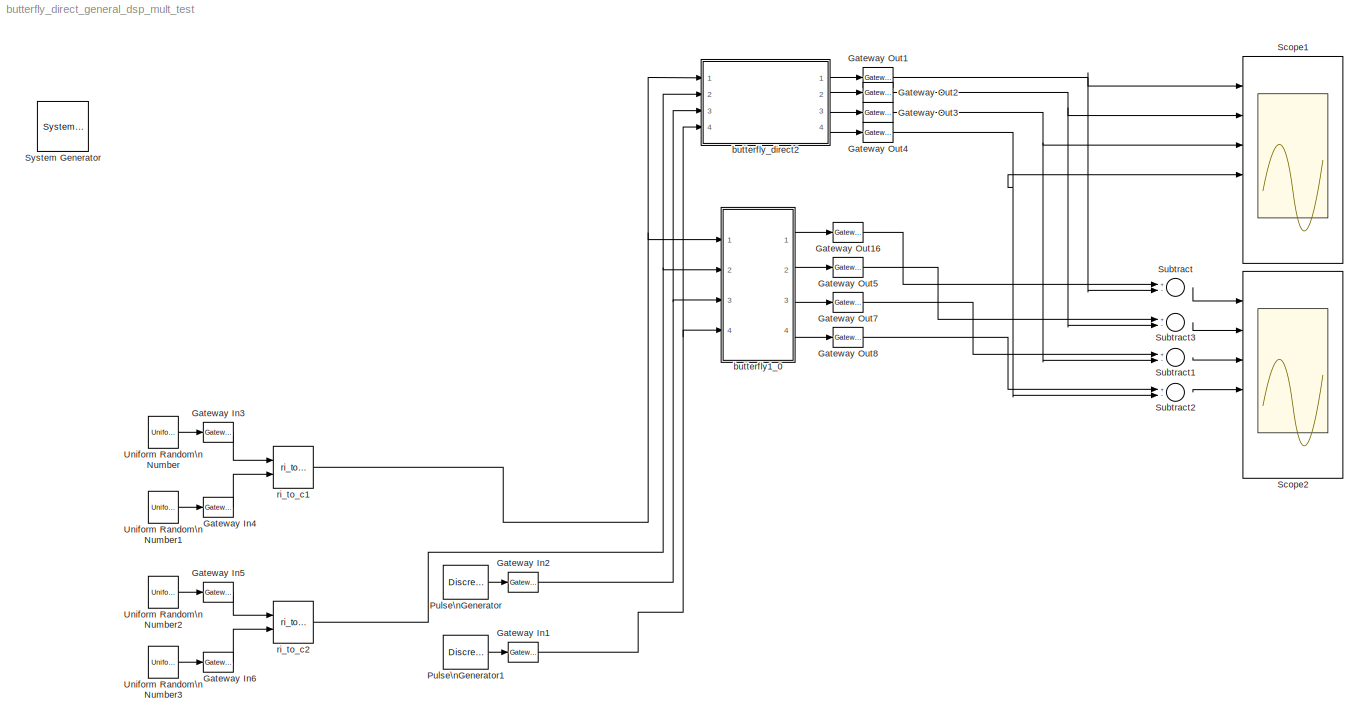
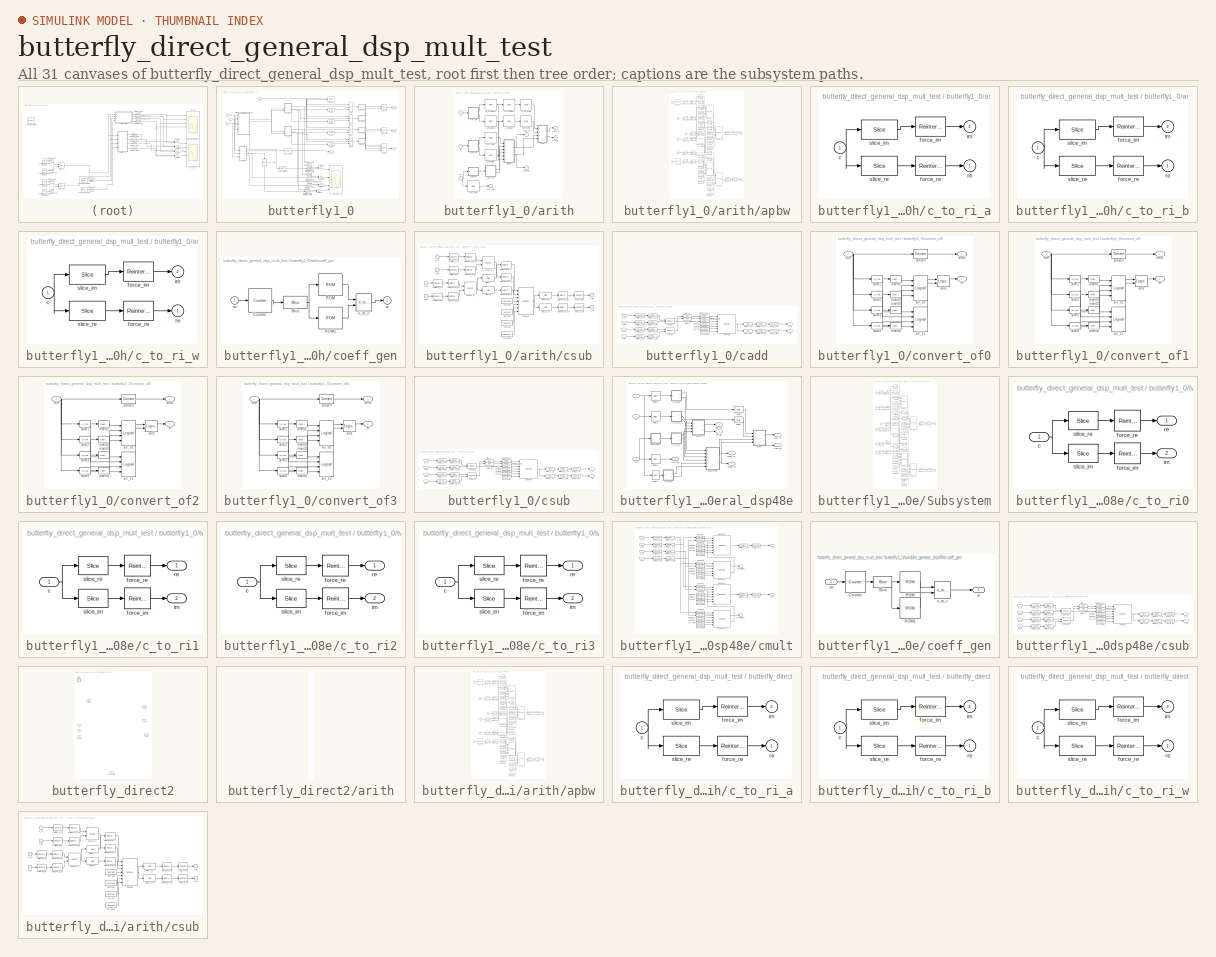
[diagram: thumbnail index - all 31 canvases of the model, root first then tree order]
MODEL butterfly_direct_general_dsp_mult_test
KIND model
BLOCK [Reference]  System Generator  REF=xbsIndex_r4/ System Generator
  AttributesFormatString = System\\nGenerator
  FunctionWithSeparateData = off
  Ports = []
  RTWMemSecDataConstants = Inherit from model
  RTWMemSecDataInternal = Inherit from model
  RTWMemSecDataParameters = Inherit from model
  RTWMemSecFuncExecute = Inherit from model
  RTWMemSecFuncInitTerm = Inherit from model
  SID = 1
  ShowPortLabels = FromPortIcon
  SourceBlock = xbsIndex_r4/ System Generator
  SourceType = Xilinx System Generator Block
  SystemSampleTime = -1
  Tag = genX
  UserData = DataTag0
  UserDataPersistent = on
  block_type = sysgen
  block_version = 10.1.1
  clock_wrapper = Clock Enables
  core_generation = According to Block Masks
  dbl_ovrd = According to Block Masks
  dcm_input_clock_period = 100
  deprecated_control = off
  directory = ./netlist
  eval_field = 0
  has_advanced_control = 0
  incr_netlist = off
  infoedit = System Generator
  package = ff1136
  part = xc5vsx95t
  run_coregen = off
  sg_icon_stat = 51,50,0,0,token,white,0,58c5b5770fe5f7c311f53dbc6e73f0f6,right,,[ ],[ ]
  sg_mask_display = fprintf('','COMMENT: begin icon graphics');\npatch([0 51 51 0 0 ],[0 0 50 50 0 ],[1 1 1 ]);\npatch([1.6375 16.81 27.31 37.81 48.31 27.31 12.1375 1.6375 ],[36.655 36.655 47.155 36.655 47.155 47.155 47.155 36.655 ],[0.933333 0.203922 0.141176 ]);\npatch([12.1375 27.31 16.81 1.6375 12.1375 ],[26.155 26.155 36.655 36.655 26.155 ],[0.698039 0.0313725 0.219608 ]);\npatch([1.6375 16.81 27.31 12.1375 1.63...<+337ch>
  sggui_pos = -1,-1,-1,-1
  simulink_period = 1
  speed = -1
  synthesis_tool = XST
  sysclk_period = 100
  testbench = off
  trim_vbits = Everywhere in SubSystem
  xilinxfamily = virtex5
BLOCK [Reference] Gateway In1  REF=xbsIndex_r4/Gateway In
  LOCs = {}
  Ports = [1, 1]
  SID = 5
  SourceBlock = xbsIndex_r4/Gateway In
  SourceType = Xilinx Gateway In Block
  arith_type = Boolean
  bin_pt = 14
  block_type = gatewayin
  block_version = 10.1.1
  dbl_ovrd = off
  has_advanced_control = 0
  hdl_port = on
  infoedit = Gateway in block.  Converts inputs of type Simulink integer, double and fixed point to  Xilinx fixed point type.<P><P>Hardware notes:  In hardware these blocks become top level input ports.  <repeated x6 — deduplicated; at blocks: Gateway In1, Gateway In2, Gateway In3, Gateway In4, Gateway In5, Gateway In6>
  locs_specified = off
  n_bits = 16
  overflow = Saturate
  period = 1
  quantization = Round  (unbiased: +/- Inf)
  sg_icon_stat = 30,20,1,1,white,yellow,0,00d3666e,right,,[ ],[ ]
  sg_mask_display = fprintf('','COMMENT: begin icon graphics');\npatch([0 30 30 0 0 ],[0 0 20 20 0 ],[0.95 0.93 0.65 ]);\nplot([0 30 30 0 0 ],[0 0 20 20 0 ]);\npatch([10.55 13.44 15.44 17.44 19.44 15.44 12.55 10.55 ],[12.22 12.22 14.22 12.22 14.22 14.22 14.22 12.22 ],[1 1 1 ]);\npatch([12.55 15.44 13.44 10.55 12.55 ],[10.22 10.22 12.22 12.22 10.22 ],[0.985 0.979 0.895 ]);\npatch([10.55 13.44 15.44 12.55 10.55 ],[8.22...<+398ch>  <repeated x6 — deduplicated; at blocks: Gateway In1, Gateway In2, Gateway In3, Gateway In4, Gateway In5, Gateway In6>
  sggui_pos = 20,20,407,458
  timing_constraint = None
  xl_area = [0,0,0,0,0,0,0]
  xl_use_area = off
BLOCK [Reference] Gateway In2  REF=xbsIndex_r4/Gateway In
  LOCs = {}
  Ports = [1, 1]
  SID = 6
  SourceBlock = xbsIndex_r4/Gateway In
  SourceType = Xilinx Gateway In Block
  arith_type = Boolean
  bin_pt = 14
  block_type = gatewayin
  block_version = 10.1.1
  dbl_ovrd = off
  has_advanced_control = 0
  hdl_port = on
  locs_specified = off
  n_bits = 16
  overflow = Saturate
  period = 1
  quantization = Round  (unbiased: +/- Inf)
  sg_icon_stat = 30,20,1,1,white,yellow,0,00d3666e,right,,[ ],[ ]
  sggui_pos = 20,20,407,458
  timing_constraint = None
  xl_area = [0,0,0,0,0,0,0]
  xl_use_area = off
BLOCK [Reference] Gateway In3  REF=xbsIndex_r4/Gateway In
  LOCs = {}
  Ports = [1, 1]
  SID = 27
  SourceBlock = xbsIndex_r4/Gateway In
  SourceType = Xilinx Gateway In Block
  arith_type = Signed  (2's comp)
  bin_pt = 4
  block_type = gatewayin
  block_version = 10.1.1
  dbl_ovrd = off
  has_advanced_control = 0
  hdl_port = on
  locs_specified = off
  n_bits = 5
  overflow = Wrap
  period = 1
  quantization = Truncate
  sg_icon_stat = 30,20,1,1,white,yellow,0,00d3666e,right,,[ ],[ ]
  sggui_pos = 20,20,407,458
  timing_constraint = None
  xl_area = [0,0,0,0,0,0,0]
  xl_use_area = off
BLOCK [Reference] Gateway In4  REF=xbsIndex_r4/Gateway In
  LOCs = {}
  Ports = [1, 1]
  SID = 28
  SourceBlock = xbsIndex_r4/Gateway In
  SourceType = Xilinx Gateway In Block
  arith_type = Signed  (2's comp)
  bin_pt = 4
  block_type = gatewayin
  block_version = 10.1.1
  dbl_ovrd = off
  has_advanced_control = 0
  hdl_port = on
  locs_specified = off
  n_bits = 5
  overflow = Wrap
  period = 1
  quantization = Truncate
  sg_icon_stat = 30,20,1,1,white,yellow,0,00d3666e,right,,[ ],[ ]
  sggui_pos = 20,20,407,458
  timing_constraint = None
  xl_area = [0,0,0,0,0,0,0]
  xl_use_area = off
BLOCK [Reference] Gateway In5  REF=xbsIndex_r4/Gateway In
  LOCs = {}
  Ports = [1, 1]
  SID = 29
  SourceBlock = xbsIndex_r4/Gateway In
  SourceType = Xilinx Gateway In Block
  arith_type = Signed  (2's comp)
  bin_pt = 4
  block_type = gatewayin
  block_version = 10.1.1
  dbl_ovrd = off
  has_advanced_control = 0
  hdl_port = on
  locs_specified = off
  n_bits = 5
  overflow = Wrap
  period = 1
  quantization = Truncate
  sg_icon_stat = 30,20,1,1,white,yellow,0,00d3666e,right,,[ ],[ ]
  sggui_pos = 20,20,407,458
  timing_constraint = None
  xl_area = [0,0,0,0,0,0,0]
  xl_use_area = off
BLOCK [Reference] Gateway In6  REF=xbsIndex_r4/Gateway In
  LOCs = {}
  Ports = [1, 1]
  SID = 30
  SourceBlock = xbsIndex_r4/Gateway In
  SourceType = Xilinx Gateway In Block
  arith_type = Signed  (2's comp)
  bin_pt = 4
  block_type = gatewayin
  block_version = 10.1.1
  dbl_ovrd = off
  has_advanced_control = 0
  hdl_port = on
  locs_specified = off
  n_bits = 5
  overflow = Wrap
  period = 1
  quantization = Truncate
  sg_icon_stat = 30,20,1,1,white,yellow,0,00d3666e,right,,[ ],[ ]
  sggui_pos = 20,20,407,458
  timing_constraint = None
  xl_area = [0,0,0,0,0,0,0]
  xl_use_area = off
BLOCK [Reference] Gateway Out1  REF=xbsIndex_r4/Gateway Out
  LOCs = {}
  Ports = [1, 1]
  SID = 86
  SourceBlock = xbsIndex_r4/Gateway Out
  SourceType = Xilinx Gateway Out Block
  block_type = gatewayout
  block_version = 10.1.1
  has_advanced_control = 0
  hdl_port = on
  infoedit = Gateway out block.  Converts Xilinx fixed point inputs into ouputs of type Simulink integer, double, or fixed point.<P><P>Hardware notes:  In hardware these blocks become top level output ports or are discarded, depending on how they are configured.  <repeated x16 — deduplicated; at blocks: Gateway Out1, Gateway Out16, Gateway Out2, Gateway Out3, Gateway Out4, Gateway Out5, Gateway Out7, Gateway Out8, Gateway Out6, Gateway Out9>
  locs_specified = off
  sg_icon_stat = 30,20,1,1,white,yellow,0,cc31b7ac,right,,[ ],[ ]
  sg_mask_display = fprintf('','COMMENT: begin icon graphics');\npatch([0 30 30 0 0 ],[0 0 20 20 0 ],[0.95 0.93 0.65 ]);\nplot([0 30 30 0 0 ],[0 0 20 20 0 ]);\npatch([10.55 13.44 15.44 17.44 19.44 15.44 12.55 10.55 ],[12.22 12.22 14.22 12.22 14.22 14.22 14.22 12.22 ],[1 1 1 ]);\npatch([12.55 15.44 13.44 10.55 12.55 ],[10.22 10.22 12.22 12.22 10.22 ],[0.985 0.979 0.895 ]);\npatch([10.55 13.44 15.44 12.55 10.55 ],[8.22...<+399ch>  <repeated x16 — deduplicated; at blocks: Gateway Out1, Gateway Out16, Gateway Out2, Gateway Out3, Gateway Out4, Gateway Out5, Gateway Out7, Gateway Out8, Gateway Out6, Gateway Out9>
  sggui_pos = 20,20,389,431
  timing_constraint = None
  xl_area = [0,0,0,0,0,0,0]
  xl_use_area = off
BLOCK [Reference] Gateway Out16  REF=xbsIndex_r4/Gateway Out
  LOCs = {}
  Ports = [1, 1]
  SID = 74
  SourceBlock = xbsIndex_r4/Gateway Out
  SourceType = Xilinx Gateway Out Block
  block_type = gatewayout
  block_version = 10.1.1
  has_advanced_control = 0
  hdl_port = on
  locs_specified = off
  sg_icon_stat = 30,20,1,1,white,yellow,0,cc31b7ac,right,,[ ],[ ]
  sggui_pos = 20,20,389,431
  timing_constraint = None
  xl_area = [0,0,0,0,0,0,0]
  xl_use_area = off
BLOCK [Reference] Gateway Out2  REF=xbsIndex_r4/Gateway Out
  LOCs = {}
  Ports = [1, 1]
  SID = 87
  SourceBlock = xbsIndex_r4/Gateway Out
  SourceType = Xilinx Gateway Out Block
  block_type = gatewayout
  block_version = 10.1.1
  has_advanced_control = 0
  hdl_port = on
  locs_specified = off
  sg_icon_stat = 30,20,1,1,white,yellow,0,cc31b7ac,right,,[ ],[ ]
  sggui_pos = 20,20,389,431
  timing_constraint = None
  xl_area = [0,0,0,0,0,0,0]
  xl_use_area = off
BLOCK [Reference] Gateway Out3  REF=xbsIndex_r4/Gateway Out
  LOCs = {}
  Ports = [1, 1]
  SID = 88
  SourceBlock = xbsIndex_r4/Gateway Out
  SourceType = Xilinx Gateway Out Block
  block_type = gatewayout
  block_version = 10.1.1
  has_advanced_control = 0
  hdl_port = on
  locs_specified = off
  sg_icon_stat = 30,20,1,1,white,yellow,0,cc31b7ac,right,,[ ],[ ]
  sggui_pos = 20,20,389,431
  timing_constraint = None
  xl_area = [0,0,0,0,0,0,0]
  xl_use_area = off
BLOCK [Reference] Gateway Out4  REF=xbsIndex_r4/Gateway Out
  LOCs = {}
  Ports = [1, 1]
  SID = 89
  SourceBlock = xbsIndex_r4/Gateway Out
  SourceType = Xilinx Gateway Out Block
  block_type = gatewayout
  block_version = 10.1.1
  has_advanced_control = 0
  hdl_port = on
  locs_specified = off
  sg_icon_stat = 30,20,1,1,white,yellow,0,cc31b7ac,right,,[ ],[ ]
  sggui_pos = 20,20,389,431
  timing_constraint = None
  xl_area = [0,0,0,0,0,0,0]
  xl_use_area = off
BLOCK [Reference] Gateway Out5  REF=xbsIndex_r4/Gateway Out
  LOCs = {}
  Ports = [1, 1]
  SID = 75
  SourceBlock = xbsIndex_r4/Gateway Out
  SourceType = Xilinx Gateway Out Block
  block_type = gatewayout
  block_version = 10.1.1
  has_advanced_control = 0
  hdl_port = on
  locs_specified = off
  sg_icon_stat = 30,20,1,1,white,yellow,0,cc31b7ac,right,,[ ],[ ]
  sggui_pos = 20,20,389,431
  timing_constraint = None
  xl_area = [0,0,0,0,0,0,0]
  xl_use_area = off
BLOCK [Reference] Gateway Out7  REF=xbsIndex_r4/Gateway Out
  LOCs = {}
  Ports = [1, 1]
  SID = 76
  SourceBlock = xbsIndex_r4/Gateway Out
  SourceType = Xilinx Gateway Out Block
  block_type = gatewayout
  block_version = 10.1.1
  has_advanced_control = 0
  hdl_port = on
  locs_specified = off
  sg_icon_stat = 30,20,1,1,white,yellow,0,cc31b7ac,right,,[ ],[ ]
  sggui_pos = 20,20,389,431
  timing_constraint = None
  xl_area = [0,0,0,0,0,0,0]
  xl_use_area = off
BLOCK [Reference] Gateway Out8  REF=xbsIndex_r4/Gateway Out
  LOCs = {}
  Ports = [1, 1]
  SID = 77
  SourceBlock = xbsIndex_r4/Gateway Out
  SourceType = Xilinx Gateway Out Block
  block_type = gatewayout
  block_version = 10.1.1
  has_advanced_control = 0
  hdl_port = on
  locs_specified = off
  sg_icon_stat = 30,20,1,1,white,yellow,0,cc31b7ac,right,,[ ],[ ]
  sggui_pos = 20,20,389,431
  timing_constraint = None
  xl_area = [0,0,0,0,0,0,0]
  xl_use_area = off
BLOCK [DiscretePulseGenerator] Pulse\nGenerator
  Amplitude = 1
  Period = 32*4
  PhaseDelay = 11
  Ports = [0, 1]
  PulseWidth = 1
  SID = 17
  SampleTime = 1
BLOCK [DiscretePulseGenerator] Pulse\nGenerator1
  Amplitude = 1
  Period = 32*4
  PhaseDelay = 33
  Ports = [0, 1]
  PulseWidth = 32*3
  SID = 18
  SampleTime = 1
BLOCK [Scope] Scope1
  DataFormat = StructureWithTime
  Floating = off
  NumInputPorts = 6
  Ports = [6]
  SID = 82
  SampleTime = 0
  SaveName = ScopeData3
  YMax = 5~5~5~5~5~5
  YMin = -5~-5~-5~-5~-5~-5
  ZoomMode = xonly
BLOCK [Scope] Scope2
  DataFormat = StructureWithTime
  Floating = off
  NumInputPorts = 6
  Ports = [6]
  SID = 69
  SampleTime = 0
  TimeRange = 256
  YMax = 5~5~5~5~5~5
  YMin = -5~-5~-5~-5~-5~-5
  ZoomMode = xonly
BLOCK [Sum] Subtract
  InputSameDT = off
  Inputs = +-
  OutDataType = fixdt(1, 16)
  OutDataTypeMode = Inherit via internal rule
  OutDataTypeStr = Inherit: Inherit via internal rule
  OutScaling = 2^-10
  Ports = [2, 1]
  SID = 70
  SaturateOnIntegerOverflow = off
BLOCK [Sum] Subtract1
  InputSameDT = off
  Inputs = +-
  OutDataType = fixdt(1, 16)
  OutDataTypeMode = Inherit via internal rule
  OutDataTypeStr = Inherit: Inherit via internal rule
  OutScaling = 2^-10
  Ports = [2, 1]
  SID = 71
  SaturateOnIntegerOverflow = off
BLOCK [Sum] Subtract2
  InputSameDT = off
  Inputs = +-
  OutDataType = fixdt(1, 16)
  OutDataTypeMode = Inherit via internal rule
  OutDataTypeStr = Inherit: Inherit via internal rule
  OutScaling = 2^-10
  Ports = [2, 1]
  SID = 72
  SaturateOnIntegerOverflow = off
BLOCK [Sum] Subtract3
  InputSameDT = off
  Inputs = +-
  OutDataType = fixdt(1, 16)
  OutDataTypeMode = Inherit via internal rule
  OutDataTypeStr = Inherit: Inherit via internal rule
  OutScaling = 2^-10
  Ports = [2, 1]
  SID = 73
  SaturateOnIntegerOverflow = off
BLOCK [UniformRandomNumber] Uniform Random\nNumber
  SID = 31
  SampleTime = 1
  Seed = 1
BLOCK [UniformRandomNumber] Uniform Random\nNumber1
  SID = 32
  SampleTime = 1
  Seed = 1
BLOCK [UniformRandomNumber] Uniform Random\nNumber2
  SID = 33
  SampleTime = 1
  Seed = 2
BLOCK [UniformRandomNumber] Uniform Random\nNumber3
  SID = 34
  SampleTime = 1
  Seed = 3
BLOCK [SubSystem] butterfly1_0
  AncestorBlock = casper_library_ffts/butterfly_direct
  AttributesFormatString = twiddle_general_dsp48e\ncoeffs in BRAM
  FunctionWithSeparateData = off
  MaskCallbackString = ||Coeffs = get_param(gcb, 'Coeffs');\nif (length(eval(Coeffs)) == 1),\n    set_param_state(gcb, 'StepPeriod', 'off');\n    set_param_state(gcb, 'coeffs_bram', 'off');\n    set_param_state(gcb, 'coeff_bit_width', 'off');\nelse\n    set_param_state(gcb, 'StepPeriod', 'on');\n    set_param_state(gcb, 'coeffs_bram', 'on');\n    set_param_state(gcb, 'coeff_bit_width', 'on');\nend|||||||||||fft_callback...<+585ch>
  MaskDescription = FFT internal block.
  MaskEnableString = on,on,on,on,on,on,off,off,on,on,on,on,on,on,on,on,off,on,on,on
  MaskHideContents = off
  MaskIconFrame = on
  MaskIconOpaque = on
  MaskIconRotate = none
  MaskIconUnits = autoscale
  MaskInitialization = butterfly_direct_init(gcb, ...\n    'biplex', biplex, ...\n    'FFTSize', FFTSize, ...\n    'Coeffs', Coeffs, ...\n    'StepPeriod', StepPeriod, ...\n    'coeff_bit_width', coeff_bit_width, ...\n    'input_bit_width', input_bit_width, ...\n    'hardcode_shifts', hardcode_shifts, ...\n    'downshift', downshift, ...\n    'add_latency', add_latency, ...\n    'mult_latency', mult_latency, ...\n    'b...<+343ch>
  MaskPortRotate = default
  MaskPromptString = Used in biplex FFT|Size of FFT: (2^? pts)|Coefficients: (0 to 2^(FFTSize-1)-1)|Coefficient Step Period: (2^?)|Coefficient Bit Width|Input/Output Bit Width:|Downshift|Add Latency|Mult Latency|BRAM Latency|Convert latency|Quantization Behavior|Overflow Behavior|Architecture|Use less|Store coefficients in BRAM|Use behavioural HDL for multipliers|Use embedded multipliers|Hardcode shift schedule|Use DS...<+15ch>
  MaskSelfModifiable = on
  MaskStyleString = checkbox,edit,edit,edit,edit,edit,checkbox,edit,edit,edit,edit,popup(Truncate|Round  (unbiased: +/- Inf)|Round  (unbiased: Even Values)),popup(Wrap|Saturate|Error),popup(Virtex2Pro|Virtex5),popup(logic|multipliers),checkbox,checkbox,checkbox,checkbox,checkbox
  MaskTabNameString = Basic,Basic,Basic,Basic,Basic,Basic,Basic,Latency,Latency,Latency,Latency,Implementation,Implementation,Implementation,Implementation,Implementation,Implementation,Implementation,Implementation,Implementation
  MaskToolTipString = on,on,on,on,on,on,on,on,on,on,on,on,on,on,on,on,on,on,on,on
  MaskTunableValueString = on,on,on,on,on,on,on,on,on,on,on,on,on,on,on,on,on,on,on,on
  MaskType = butterfly_direct
  MaskValueString = off|8|getfield( getfield( get_param( gcb,'UserData' ), 'parameters'),'Coeffs')|0|5|5|off|2|2|2|1|Round  (unbiased: +/- Inf)|Saturate|Virtex5|logic|on|off|on|off|on
  MaskVariables = biplex=&1;FFTSize=@2;Coeffs=@3;StepPeriod=@4;coeff_bit_width=@5;input_bit_width=@6;downshift=&7;add_latency=@8;mult_latency=@9;bram_latency=@10;conv_latency=@11;quantization=&12;overflow=&13;arch=&14;opt_target=&15;coeffs_bram=&16;use_hdl=&17;use_embedded=&18;hardcode_shifts=&19;dsp48_adders=&20;
  MaskVisibilityString = off,on,on,on,on,on,on,on,on,on,on,on,on,on,on,on,on,on,on,on
  MinAlgLoopOccurrences = off
  Opaque = off
  Ports = [4, 4]
  PropExecContextOutsideSubsystem = off
  RTWSystemCode = Auto
  RequestExecContextInheritance = off
  SID = 81
  UserData = DataTag1
  UserDataPersistent = on
BLOCK [Reference] butterfly1_0/Gateway Out2  REF=xbsIndex_r4/Gateway Out
  LOCs = {}
  Ports = [1, 1]
  SID = 1303
  SourceBlock = xbsIndex_r4/Gateway Out
  SourceType = Xilinx Gateway Out Block
  block_type = gatewayout
  block_version = 10.1.1
  has_advanced_control = 0
  hdl_port = on
  locs_specified = off
  sg_icon_stat = 30,20,1,1,white,yellow,0,cc31b7ac,right,,[ ],[ ]
  sggui_pos = 20,20,389,431
  timing_constraint = None
  xl_area = [0,0,0,0,0,0,0]
  xl_use_area = off
BLOCK [Reference] butterfly1_0/Gateway Out3  REF=xbsIndex_r4/Gateway Out
  LOCs = {}
  Ports = [1, 1]
  SID = 1299
  SourceBlock = xbsIndex_r4/Gateway Out
  SourceType = Xilinx Gateway Out Block
  block_type = gatewayout
  block_version = 10.1.1
  has_advanced_control = 0
  hdl_port = on
  locs_specified = off
  sg_icon_stat = 30,20,1,1,white,yellow,0,cc31b7ac,right,,[ ],[ ]
  sggui_pos = 20,20,389,431
  timing_constraint = None
  xl_area = [0,0,0,0,0,0,0]
  xl_use_area = off
BLOCK [Reference] butterfly1_0/Gateway Out4  REF=xbsIndex_r4/Gateway Out
  LOCs = {}
  Ports = [1, 1]
  SID = 1294
  SourceBlock = xbsIndex_r4/Gateway Out
  SourceType = Xilinx Gateway Out Block
  block_type = gatewayout
  block_version = 10.1.1
  has_advanced_control = 0
  hdl_port = on
  locs_specified = off
  sg_icon_stat = 30,20,1,1,white,yellow,0,cc31b7ac,right,,[ ],[ ]
  sggui_pos = 20,20,389,431
  timing_constraint = None
  xl_area = [0,0,0,0,0,0,0]
  xl_use_area = off
BLOCK [Reference] butterfly1_0/Gateway Out5  REF=xbsIndex_r4/Gateway Out
  LOCs = {}
  Ports = [1, 1]
  SID = 1295
  SourceBlock = xbsIndex_r4/Gateway Out
  SourceType = Xilinx Gateway Out Block
  block_type = gatewayout
  block_version = 10.1.1
  has_advanced_control = 0
  hdl_port = on
  locs_specified = off
  sg_icon_stat = 30,20,1,1,white,yellow,0,cc31b7ac,right,,[ ],[ ]
  sggui_pos = 20,20,389,431
  timing_constraint = None
  xl_area = [0,0,0,0,0,0,0]
  xl_use_area = off
BLOCK [Reference] butterfly1_0/Gateway Out6  REF=xbsIndex_r4/Gateway Out
  LOCs = {}
  Ports = [1, 1]
  SID = 1300
  SourceBlock = xbsIndex_r4/Gateway Out
  SourceType = Xilinx Gateway Out Block
  block_type = gatewayout
  block_version = 10.1.1
  has_advanced_control = 0
  hdl_port = on
  locs_specified = off
  sg_icon_stat = 30,20,1,1,white,yellow,0,cc31b7ac,right,,[ ],[ ]
  sggui_pos = 20,20,389,431
  timing_constraint = None
  xl_area = [0,0,0,0,0,0,0]
  xl_use_area = off
BLOCK [Reference] butterfly1_0/Gateway Out7  REF=xbsIndex_r4/Gateway Out
  LOCs = {}
  Ports = [1, 1]
  SID = 1304
  SourceBlock = xbsIndex_r4/Gateway Out
  SourceType = Xilinx Gateway Out Block
  block_type = gatewayout
  block_version = 10.1.1
  has_advanced_control = 0
  hdl_port = on
  locs_specified = off
  sg_icon_stat = 30,20,1,1,white,yellow,0,cc31b7ac,right,,[ ],[ ]
  sggui_pos = 20,20,389,431
  timing_constraint = None
  xl_area = [0,0,0,0,0,0,0]
  xl_use_area = off
BLOCK [Reference] butterfly1_0/Gateway Out8  REF=xbsIndex_r4/Gateway Out
  LOCs = {}
  Ports = [1, 1]
  SID = 1306
  SourceBlock = xbsIndex_r4/Gateway Out
  SourceType = Xilinx Gateway Out Block
  block_type = gatewayout
  block_version = 10.1.1
  has_advanced_control = 0
  hdl_port = on
  locs_specified = off
  sg_icon_stat = 30,20,1,1,white,yellow,0,cc31b7ac,right,,[ ],[ ]
  sggui_pos = 20,20,389,431
  timing_constraint = None
  xl_area = [0,0,0,0,0,0,0]
  xl_use_area = off
BLOCK [Reference] butterfly1_0/Gateway Out9  REF=xbsIndex_r4/Gateway Out
  LOCs = {}
  Ports = [1, 1]
  SID = 1307
  SourceBlock = xbsIndex_r4/Gateway Out
  SourceType = Xilinx Gateway Out Block
  block_type = gatewayout
  block_version = 10.1.1
  has_advanced_control = 0
  hdl_port = on
  locs_specified = off
  sg_icon_stat = 30,20,1,1,white,yellow,0,cc31b7ac,right,,[ ],[ ]
  sggui_pos = 20,20,389,431
  timing_constraint = None
  xl_area = [0,0,0,0,0,0,0]
  xl_use_area = off
BLOCK [Reference] butterfly1_0/Logical  REF=xbsIndex_r4/Logical
  Ports = [4, 1]
  SID = 53
  SourceBlock = xbsIndex_r4/Logical
  SourceType = Xilinx Logical Block Block
  align_bp = on
  arith_type = Unsigned
  bin_pt = 0
  block_type = logical
  block_version = 11.4
  dbl_ovrd = off
  en = off
  has_advanced_control = 0
  inputs = 4
  latency = 0
  logical_function = OR
  n_bits = 16
  precision = Full
  sg_icon_stat = 40,67,4,1,white,blue,0,4f3eee2e,right,,[ ],[ ]
  sg_mask_display = fprintf('','COMMENT: begin icon graphics');\npatch([0 40 40 0 0 ],[0 0 67 67 0 ],[0.77 0.82 0.91 ]);\nplot([0 40 40 0 0 ],[0 0 67 67 0 ]);\npatch([8.875 16.1 21.1 26.1 31.1 21.1 13.875 8.875 ],[38.55 38.55 43.55 38.55 43.55 43.55 43.55 38.55 ],[1 1 1 ]);\npatch([13.875 21.1 16.1 8.875 13.875 ],[33.55 33.55 38.55 38.55 33.55 ],[0.931 0.946 0.973 ]);\npatch([8.875 16.1 21.1 13.875 8.875 ],[28.55 28....<+312ch>
  sggui_pos = -1,-1,-1,-1
  xl_area = [0,0,0,0,0,0,0]
  xl_use_area = off
BLOCK [Reference] butterfly1_0/Mux0  REF=xbsIndex_r4/Mux
  Ports = [3, 1]
  SID = 129
  SourceBlock = xbsIndex_r4/Mux
  SourceType = Xilinx Bus Multiplexer Block
  arith_type = Unsigned
  bin_pt = 14
  block_type = mux
  block_version = 11.4
  dbl_ovrd = off
  en = off
  has_advanced_control = 0
  inputs = 2
  latency = 1
  n_bits = 16
  overflow = Wrap
  precision = Full
  quantization = Truncate
  sg_icon_stat = 25,66,3,1,white,blue,3,a150fb03,right,,[ ],[ ]
  sg_mask_display = fprintf('','COMMENT: begin icon graphics');\npatch([0 25 25 0 0 ],[0 9.42857 56.5714 66 0 ],[0.77 0.82 0.91 ]);\nplot([0 25 25 0 0 ],[0 9.42857 56.5714 66 0 ]);\npatch([5.325 9.66 12.66 15.66 18.66 12.66 8.325 5.325 ],[36.33 36.33 39.33 36.33 39.33 39.33 39.33 36.33 ],[1 1 1 ]);\npatch([8.325 12.66 9.66 5.325 8.325 ],[33.33 33.33 36.33 36.33 33.33 ],[0.931 0.946 0.973 ]);\npatch([5.325 9.66 12.66 ...<+491ch>  <repeated x4 — deduplicated; at blocks: Mux0, Mux1, Mux2, Mux3>
  sggui_pos = -1,-1,-1,-1
  xl_area = [0,0,0,0,0,0,0]
  xl_use_area = off
BLOCK [Reference] butterfly1_0/Mux1  REF=xbsIndex_r4/Mux
  Ports = [3, 1]
  SID = 130
  SourceBlock = xbsIndex_r4/Mux
  SourceType = Xilinx Bus Multiplexer Block
  arith_type = Unsigned
  bin_pt = 14
  block_type = mux
  block_version = 11.4
  dbl_ovrd = off
  en = off
  has_advanced_control = 0
  inputs = 2
  latency = 1
  n_bits = 16
  overflow = Wrap
  precision = Full
  quantization = Truncate
  sg_icon_stat = 25,66,3,1,white,blue,3,a150fb03,right,,[ ],[ ]
  sggui_pos = -1,-1,-1,-1
  xl_area = [0,0,0,0,0,0,0]
  xl_use_area = off
BLOCK [Reference] butterfly1_0/Mux2  REF=xbsIndex_r4/Mux
  Ports = [3, 1]
  SID = 131
  SourceBlock = xbsIndex_r4/Mux
  SourceType = Xilinx Bus Multiplexer Block
  arith_type = Unsigned
  bin_pt = 14
  block_type = mux
  block_version = 11.4
  dbl_ovrd = off
  en = off
  has_advanced_control = 0
  inputs = 2
  latency = 1
  n_bits = 16
  overflow = Wrap
  precision = Full
  quantization = Truncate
  sg_icon_stat = 25,66,3,1,white,blue,3,a150fb03,right,,[ ],[ ]
  sggui_pos = -1,-1,-1,-1
  xl_area = [0,0,0,0,0,0,0]
  xl_use_area = off
BLOCK [Reference] butterfly1_0/Mux3  REF=xbsIndex_r4/Mux
  Ports = [3, 1]
  SID = 132
  SourceBlock = xbsIndex_r4/Mux
  SourceType = Xilinx Bus Multiplexer Block
  arith_type = Unsigned
  bin_pt = 14
  block_type = mux
  block_version = 11.4
  dbl_ovrd = off
  en = off
  has_advanced_control = 0
  inputs = 2
  latency = 1
  n_bits = 16
  overflow = Wrap
  precision = Full
  quantization = Truncate
  sg_icon_stat = 25,66,3,1,white,blue,3,a150fb03,right,,[ ],[ ]
  sggui_pos = -1,-1,-1,-1
  xl_area = [0,0,0,0,0,0,0]
  xl_use_area = off
BLOCK [Reference] butterfly1_0/Scale0  REF=xbsIndex_r4/Scale
  Ports = [1, 1]
  SID = 125
  SourceBlock = xbsIndex_r4/Scale
  SourceType = Xilinx Input Scaler Block
  block_type = scale
  block_version = 11.4
  dbl_ovrd = off
  has_advanced_control = 0
  infoedit = Scales input by a power of two by adjusting the binary point position.<br><br>Hardware notes: In hardware this block costs nothing.
  scale_factor = -1
  sg_icon_stat = 50,22,1,1,white,blue,0,315b7d78,right,,[ ],[ ]
  sg_mask_display = fprintf('','COMMENT: begin icon graphics');\npatch([0 50 50 0 0 ],[0 0 22 22 0 ],[0.77 0.82 0.91 ]);\nplot([0 50 50 0 0 ],[0 0 22 22 0 ]);\npatch([18.325 22.66 25.66 28.66 31.66 25.66 21.325 18.325 ],[14.33 14.33 17.33 14.33 17.33 17.33 17.33 14.33 ],[1 1 1 ]);\npatch([21.325 25.66 22.66 18.325 21.325 ],[11.33 11.33 14.33 14.33 11.33 ],[0.931 0.946 0.973 ]);\npatch([18.325 22.66 25.66 21.325 18.32...<+342ch>  <repeated x4 — deduplicated; at blocks: Scale0, Scale1, Scale2, Scale3>
  sggui_pos = -1,-1,-1,-1
BLOCK [Reference] butterfly1_0/Scale1  REF=xbsIndex_r4/Scale
  Ports = [1, 1]
  SID = 126
  SourceBlock = xbsIndex_r4/Scale
  SourceType = Xilinx Input Scaler Block
  block_type = scale
  block_version = 11.4
  dbl_ovrd = off
  has_advanced_control = 0
  infoedit = Scales input by a power of two by adjusting the binary point position.<br><br>Hardware notes: In hardware this block costs nothing.
  scale_factor = -1
  sg_icon_stat = 50,22,1,1,white,blue,0,315b7d78,right,,[ ],[ ]
  sggui_pos = -1,-1,-1,-1
BLOCK [Reference] butterfly1_0/Scale2  REF=xbsIndex_r4/Scale
  Ports = [1, 1]
  SID = 127
  SourceBlock = xbsIndex_r4/Scale
  SourceType = Xilinx Input Scaler Block
  block_type = scale
  block_version = 11.4
  dbl_ovrd = off
  has_advanced_control = 0
  infoedit = Scales input by a power of two by adjusting the binary point position.<br><br>Hardware notes: In hardware this block costs nothing.
  scale_factor = -1
  sg_icon_stat = 50,22,1,1,white,blue,0,315b7d78,right,,[ ],[ ]
  sggui_pos = -1,-1,-1,-1
BLOCK [Reference] butterfly1_0/Scale3  REF=xbsIndex_r4/Scale
  Ports = [1, 1]
  SID = 128
  SourceBlock = xbsIndex_r4/Scale
  SourceType = Xilinx Input Scaler Block
  block_type = scale
  block_version = 11.4
  dbl_ovrd = off
  has_advanced_control = 0
  infoedit = Scales input by a power of two by adjusting the binary point position.<br><br>Hardware notes: In hardware this block costs nothing.
  scale_factor = -1
  sg_icon_stat = 50,22,1,1,white,blue,0,315b7d78,right,,[ ],[ ]
  sggui_pos = -1,-1,-1,-1
BLOCK [Scope] butterfly1_0/Scope2
  DataFormat = StructureWithTime
  Floating = off
  NumInputPorts = 6
  Ports = [6]
  SID = 246
  SampleTime = 0
  SaveName = ScopeData1
  TimeRange = 300
  YMax = 1~1~0.1~0.2~1~1
  YMin = -1~-1~-0.1~-0.2~-1~-1
  ZoomMode = yonly
BLOCK [Sum] butterfly1_0/Subtract1
  InputSameDT = off
  Inputs = +-
  OutDataType = fixdt(1, 16)
  OutDataTypeMode = Inherit via internal rule
  OutDataTypeStr = Inherit: Inherit via internal rule
  OutScaling = 2^-10
  Ports = [2, 1]
  SID = 1301
  SaturateOnIntegerOverflow = off
BLOCK [Sum] butterfly1_0/Subtract2
  InputSameDT = off
  Inputs = +-
  OutDataType = fixdt(1, 16)
  OutDataTypeMode = Inherit via internal rule
  OutDataTypeStr = Inherit: Inherit via internal rule
  OutScaling = 2^-10
  Ports = [2, 1]
  SID = 1305
  SaturateOnIntegerOverflow = off
BLOCK [Sum] butterfly1_0/Subtract3
  InputSameDT = off
  Inputs = +-
  OutDataType = fixdt(1, 16)
  OutDataTypeMode = Inherit via internal rule
  OutDataTypeStr = Inherit: Inherit via internal rule
  OutScaling = 2^-10
  Ports = [2, 1]
  SID = 1052
  SaturateOnIntegerOverflow = off
BLOCK [Sum] butterfly1_0/Subtract4
  InputSameDT = off
  Inputs = +-
  OutDataType = fixdt(1, 16)
  OutDataTypeMode = Inherit via internal rule
  OutDataTypeStr = Inherit: Inherit via internal rule
  OutScaling = 2^-10
  Ports = [2, 1]
  SID = 1308
  SaturateOnIntegerOverflow = off
BLOCK [Inport] butterfly1_0/a
  IconDisplay = Port number
  OutDataType = sfix(16)
  OutScaling = 2^0
  SID = 1
BLOCK [Outport] butterfly1_0/a+bw
  IconDisplay = Port number
  OutDataType = sfix(16)
  OutScaling = 2^0
  SID = 27
BLOCK [Outport] butterfly1_0/a-bw
  IconDisplay = Port number
  OutDataType = sfix(16)
  OutScaling = 2^0
  Port = 2
  SID = 28
BLOCK [SubSystem] butterfly1_0/arith
  FunctionWithSeparateData = off
  MaskHideContents = off
  MinAlgLoopOccurrences = off
  Opaque = off
  Ports = [3, 5]
  PropExecContextOutsideSubsystem = off
  RTWSystemCode = Auto
  RequestExecContextInheritance = off
  SID = 1449
BLOCK [Inport] butterfly1_0/arith/a
  IconDisplay = Port number
  SID = 1450
BLOCK [Outport] butterfly1_0/arith/a+bw_im
  IconDisplay = Port number
  Port = 2
  SID = 1585
BLOCK [Outport] butterfly1_0/arith/a+bw_re
  IconDisplay = Port number
  SID = 1584
BLOCK [Outport] butterfly1_0/arith/a-bw_im
  IconDisplay = Port number
  Port = 4
  SID = 1587
BLOCK [Outport] butterfly1_0/arith/a-bw_re
  IconDisplay = Port number
  Port = 3
  SID = 1586
BLOCK [Reference] butterfly1_0/arith/a_im_delay1  REF=xbsIndex_r4/Delay
  Ports = [1, 1]
  SID = 1453
  SourceBlock = xbsIndex_r4/Delay
  SourceType = Xilinx Delay Block
  block_type = delay
  block_version = 11.4
  dbl_ovrd = off
  en = off
  has_advanced_control = 0
  infoedit = Hardware notes: A delay line is a chain, each link of which is an SRL16 followed by a flip-flop.
  latency = 2
  reg_retiming = on
  sg_icon_stat = 60,56,1,1,white,blue,0,85ce9542,right,
  sg_mask_display = fprintf('','COMMENT: begin icon graphics');\npatch([0 1 1 0 ],[0 0 1 1 ],[0.77 0.82 0.91]);\npatch([0.25 0.1 0.316667 0.1 0.25 0.5 0.566667 0.633333 0.9 0.683333 0.483333 0.333333 0.533333 0.333333 0.483333 0.683333 0.9 0.633333 0.566667 0.5 0.25 ],[0.107143 0.267857 0.5 0.732143 0.892857 0.892857 0.821429 0.892857 0.892857 0.660714 0.875 0.714286 0.5 0.285714 0.125 0.339286 0.107143 0.107143 0.17...<+249ch>  <repeated x9 — deduplicated; at blocks: a_im_delay1, a_im_delay2, a_re_delay1, a_re_delay2, del_c_im, del_c_re, b_im_delay, b_re_delay, sync_delay>
  sggui_pos = -1,-1,-1,-1
  xl_area = [0,0,0,0,0,0,0]
  xl_use_area = off
BLOCK [Reference] butterfly1_0/arith/a_im_delay2  REF=xbsIndex_r4/Delay
  Ports = [1, 1]
  SID = 1454
  SourceBlock = xbsIndex_r4/Delay
  SourceType = Xilinx Delay Block
  block_type = delay
  block_version = 11.4
  dbl_ovrd = off
  en = off
  has_advanced_control = 0
  infoedit = Hardware notes: A delay line is a chain, each link of which is an SRL16 followed by a flip-flop.
  latency = 5
  reg_retiming = on
  sg_icon_stat = 60,56,1,1,white,blue,0,ec356abf,right,
  sggui_pos = -1,-1,-1,-1
  xl_area = [0,0,0,0,0,0,0]
  xl_use_area = off
BLOCK [Reference] butterfly1_0/arith/a_im_scale  REF=xbsIndex_r4/Scale
  Ports = [1, 1]
  SID = 1455
  SourceBlock = xbsIndex_r4/Scale
  SourceType = Xilinx Input Scaler Block
  block_type = scale
  block_version = 11.4
  dbl_ovrd = off
  has_advanced_control = 0
  infoedit = Scales input by a power of two by adjusting the binary point position.<br><br>Hardware notes: In hardware this block costs nothing.
  scale_factor = 1
  sg_icon_stat = 55,56,1,1,white,blue,0,960fb61a,right,
  sg_mask_display = fprintf('','COMMENT: begin icon graphics');\npatch([0 1 1 0 ],[0 0 1 1 ],[0.77 0.82 0.91]);\npatch([0.236364 0.0727273 0.309091 0.0727273 0.236364 0.509091 0.581818 0.654545 0.945455 0.727273 0.509091 0.345455 0.581818 0.345455 0.509091 0.727273 0.945455 0.654545 0.581818 0.509091 0.236364 ],[0.107143 0.267857 0.5 0.732143 0.892857 0.892857 0.821429 0.892857 0.892857 0.678571 0.892857 0.732143 0.5...<+304ch>
  sggui_pos = -1,-1,-1,-1
BLOCK [Reference] butterfly1_0/arith/a_re_delay1  REF=xbsIndex_r4/Delay
  Ports = [1, 1]
  SID = 1456
  SourceBlock = xbsIndex_r4/Delay
  SourceType = Xilinx Delay Block
  block_type = delay
  block_version = 11.4
  dbl_ovrd = off
  en = off
  has_advanced_control = 0
  infoedit = Hardware notes: A delay line is a chain, each link of which is an SRL16 followed by a flip-flop.
  latency = 2
  reg_retiming = on
  sg_icon_stat = 60,56,1,1,white,blue,0,85ce9542,right,
  sggui_pos = -1,-1,-1,-1
  xl_area = [0,0,0,0,0,0,0]
  xl_use_area = off
BLOCK [Reference] butterfly1_0/arith/a_re_delay2  REF=xbsIndex_r4/Delay
  Ports = [1, 1]
  SID = 1457
  SourceBlock = xbsIndex_r4/Delay
  SourceType = Xilinx Delay Block
  block_type = delay
  block_version = 11.4
  dbl_ovrd = off
  en = off
  has_advanced_control = 0
  infoedit = Hardware notes: A delay line is a chain, each link of which is an SRL16 followed by a flip-flop.
  latency = 5
  reg_retiming = on
  sg_icon_stat = 60,56,1,1,white,blue,0,ec356abf,right,
  sggui_pos = -1,-1,-1,-1
  xl_area = [0,0,0,0,0,0,0]
  xl_use_area = off
BLOCK [Reference] butterfly1_0/arith/a_re_scale  REF=xbsIndex_r4/Scale
  Ports = [1, 1]
  SID = 1458
  SourceBlock = xbsIndex_r4/Scale
  SourceType = Xilinx Input Scaler Block
  block_type = scale
  block_version = 11.4
  dbl_ovrd = off
  has_advanced_control = 0
  infoedit = Scales input by a power of two by adjusting the binary point position.<br><br>Hardware notes: In hardware this block costs nothing.
  scale_factor = 1
  sg_icon_stat = 55,56,1,1,white,blue,0,960fb61a,right,
  sg_mask_display = fprintf('','COMMENT: begin icon graphics');\npatch([0 1 1 0 ],[0 0 1 1 ],[0.77 0.82 0.91]);\npatch([0.236364 0.0727273 0.309091 0.0727273 0.236364 0.509091 0.581818 0.654545 0.945455 0.727273 0.509091 0.345455 0.581818 0.345455 0.509091 0.727273 0.945455 0.654545 0.581818 0.509091 0.236364 ],[0.107143 0.267857 0.5 0.732143 0.892857 0.892857 0.821429 0.892857 0.892857 0.678571 0.892857 0.732143 0.5...<+304ch>
  sggui_pos = -1,-1,-1,-1
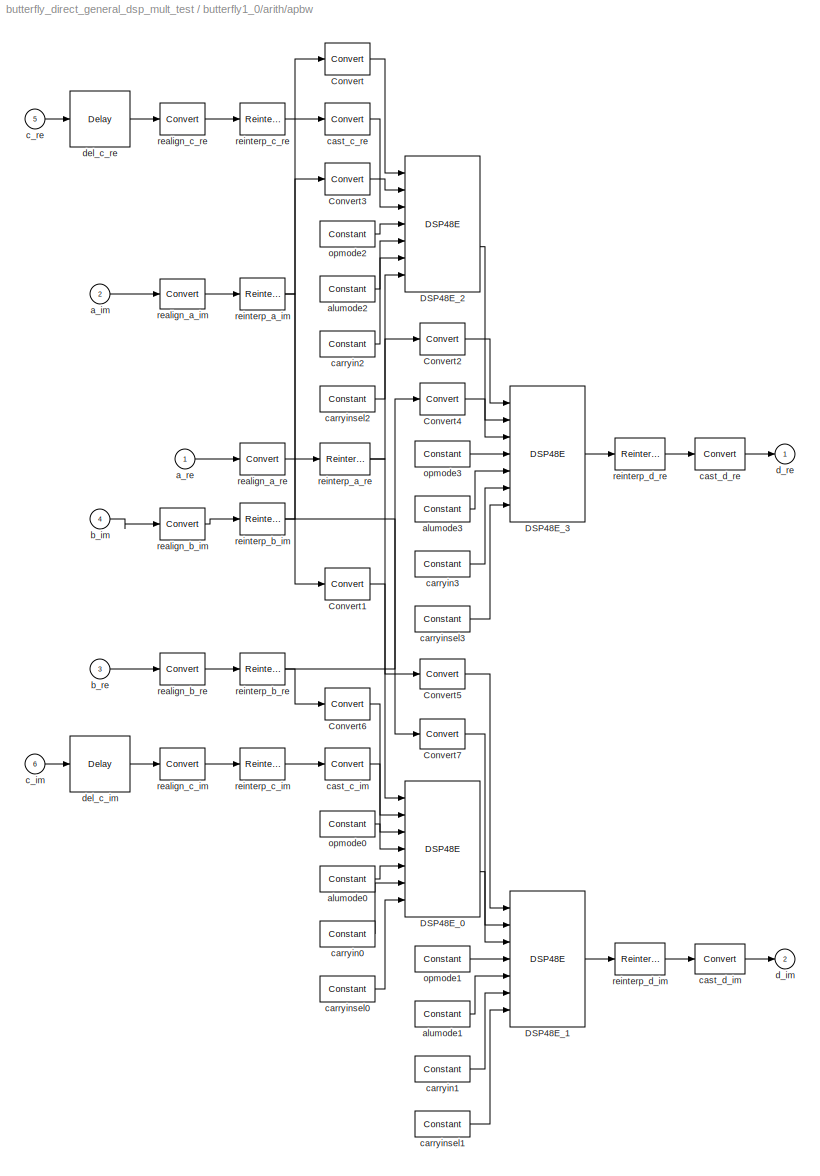
BLOCK [SubSystem] butterfly1_0/arith/apbw
  FunctionWithSeparateData = off
  MaskHideContents = off
  MinAlgLoopOccurrences = off
  Opaque = off
  Ports = [6, 2]
  PropExecContextOutsideSubsystem = off
  RTWSystemCode = Auto
  RequestExecContextInheritance = off
  SID = 1459
BLOCK [Reference] butterfly1_0/arith/apbw/Convert  REF=xbsIndex_r4/Convert
  Ports = [1, 1]
  SID = 1466
  SourceBlock = xbsIndex_r4/Convert
  SourceType = Xilinx Type Converter Block
  arith_type = Signed  (2's comp)
  bin_pt = 0
  block_type = convert
  block_version = 11.4
  dbl_ovrd = off
  has_advanced_control = 0
  infoedit = Hardware notes: rounding and saturating require hardware resources; truncating and wrapping do not.
  latency = 0
  n_bits = 30
  overflow = Wrap
  pipeline = on
  quantization = Truncate
  sg_icon_stat = 45,32,1,1,white,blue,0,edca21da,right,
  sg_mask_display = fprintf('','COMMENT: begin icon graphics');\npatch([0 1 1 0 ],[0 0 1 1 ],[0.77 0.82 0.91]);\npatch([0.311111 0.2 0.355556 0.2 0.311111 0.488889 0.533333 0.577778 0.777778 0.622222 0.466667 0.355556 0.511111 0.355556 0.466667 0.622222 0.777778 0.577778 0.533333 0.488889 0.311111 ],[0.09375 0.25 0.46875 0.6875 0.84375 0.84375 0.78125 0.84375 0.84375 0.625 0.84375 0.6875 0.46875 0.25 0.09375 0.3125 0...<+265ch>  <repeated x31 — deduplicated; at blocks: Convert, Convert1, Convert2, Convert3, Convert4, Convert6, cast_c_im, cast_c_re, realign_a_re, realign_b_im, realign_b_re, realign_c_im, realign_c_re, realign_a_im>
  sggui_pos = -1,-1,-1,-1
  xl_area = [0,0,0,0,0,0,0]
  xl_use_area = off
BLOCK [Reference] butterfly1_0/arith/apbw/Convert1  REF=xbsIndex_r4/Convert
  Ports = [1, 1]
  SID = 1467
  SourceBlock = xbsIndex_r4/Convert
  SourceType = Xilinx Type Converter Block
  arith_type = Signed  (2's comp)
  bin_pt = 0
  block_type = convert
  block_version = 11.4
  dbl_ovrd = off
  has_advanced_control = 0
  infoedit = Hardware notes: rounding and saturating require hardware resources; truncating and wrapping do not.
  latency = 0
  n_bits = 30
  overflow = Wrap
  pipeline = on
  quantization = Truncate
  sg_icon_stat = 45,32,1,1,white,blue,0,edca21da,right,
  sggui_pos = -1,-1,-1,-1
  xl_area = [0,0,0,0,0,0,0]
  xl_use_area = off
BLOCK [Reference] butterfly1_0/arith/apbw/Convert2  REF=xbsIndex_r4/Convert
  Ports = [1, 1]
  SID = 1468
  SourceBlock = xbsIndex_r4/Convert
  SourceType = Xilinx Type Converter Block
  arith_type = Signed  (2's comp)
  bin_pt = 0
  block_type = convert
  block_version = 11.4
  dbl_ovrd = off
  has_advanced_control = 0
  infoedit = Hardware notes: rounding and saturating require hardware resources; truncating and wrapping do not.
  latency = 0
  n_bits = 30
  overflow = Wrap
  pipeline = on
  quantization = Truncate
  sg_icon_stat = 45,32,1,1,white,blue,0,edca21da,right,
  sggui_pos = -1,-1,-1,-1
  xl_area = [0,0,0,0,0,0,0]
  xl_use_area = off
BLOCK [Reference] butterfly1_0/arith/apbw/Convert3  REF=xbsIndex_r4/Convert
  Ports = [1, 1]
  SID = 1469
  SourceBlock = xbsIndex_r4/Convert
  SourceType = Xilinx Type Converter Block
  arith_type = Signed  (2's comp)
  bin_pt = 0
  block_type = convert
  block_version = 11.4
  dbl_ovrd = off
  has_advanced_control = 0
  infoedit = Hardware notes: rounding and saturating require hardware resources; truncating and wrapping do not.
  latency = 0
  n_bits = 18
  overflow = Wrap
  pipeline = on
  quantization = Truncate
  sg_icon_stat = 45,32,1,1,white,blue,0,edca21da,right,
  sggui_pos = -1,-1,-1,-1
  xl_area = [0,0,0,0,0,0,0]
  xl_use_area = off
BLOCK [Reference] butterfly1_0/arith/apbw/Convert4  REF=xbsIndex_r4/Convert
  Ports = [1, 1]
  SID = 1470
  SourceBlock = xbsIndex_r4/Convert
  SourceType = Xilinx Type Converter Block
  arith_type = Signed  (2's comp)
  bin_pt = 0
  block_type = convert
  block_version = 11.4
  dbl_ovrd = off
  has_advanced_control = 0
  infoedit = Hardware notes: rounding and saturating require hardware resources; truncating and wrapping do not.
  latency = 0
  n_bits = 18
  overflow = Wrap
  pipeline = on
  quantization = Truncate
  sg_icon_stat = 45,32,1,1,white,blue,0,edca21da,right,
  sggui_pos = -1,-1,-1,-1
  xl_area = [0,0,0,0,0,0,0]
  xl_use_area = off
BLOCK [Reference] butterfly1_0/arith/apbw/Convert5  REF=xbsIndex_r4/Convert
  Ports = [1, 1]
  SID = 1471
  SourceBlock = xbsIndex_r4/Convert
  SourceType = Xilinx Type Converter Block
  arith_type = Signed  (2's comp)
  bin_pt = 0
  block_type = convert
  block_version = 11.4
  dbl_ovrd = off
  has_advanced_control = 0
  infoedit = Hardware notes: rounding and saturating require hardware resources; truncating and wrapping do not.
  latency = 0
  n_bits = 30
  overflow = Wrap
  pipeline = on
  quantization = Truncate
  sg_icon_stat = 45,30,1,1,white,blue,0,edca21da,right,
  sg_mask_display = fprintf('','COMMENT: begin icon graphics');\npatch([0 1 1 0 ],[0 0 1 1 ],[0.77 0.82 0.91]);\npatch([0.333333 0.222222 0.377778 0.222222 0.333333 0.511111 0.555556 0.6 0.777778 0.622222 0.488889 0.377778 0.511111 0.377778 0.488889 0.622222 0.777778 0.6 0.555556 0.511111 0.333333 ],[0.1 0.266667 0.5 0.733333 0.9 0.9 0.833333 0.9 0.9 0.666667 0.866667 0.7 0.5 0.3 0.133333 0.333333 0.1 0.1 0.166667 0....<+232ch>  <repeated x5 — deduplicated; at blocks: Convert5, Convert7, realign_a_im, realign_a_re, realign_b_im>
  sggui_pos = -1,-1,-1,-1
  xl_area = [0,0,0,0,0,0,0]
  xl_use_area = off
BLOCK [Reference] butterfly1_0/arith/apbw/Convert6  REF=xbsIndex_r4/Convert
  Ports = [1, 1]
  SID = 1472
  SourceBlock = xbsIndex_r4/Convert
  SourceType = Xilinx Type Converter Block
  arith_type = Signed  (2's comp)
  bin_pt = 0
  block_type = convert
  block_version = 11.4
  dbl_ovrd = off
  has_advanced_control = 0
  infoedit = Hardware notes: rounding and saturating require hardware resources; truncating and wrapping do not.
  latency = 0
  n_bits = 18
  overflow = Wrap
  pipeline = on
  quantization = Truncate
  sg_icon_stat = 45,32,1,1,white,blue,0,edca21da,right,
  sggui_pos = -1,-1,-1,-1
  xl_area = [0,0,0,0,0,0,0]
  xl_use_area = off
BLOCK [Reference] butterfly1_0/arith/apbw/Convert7  REF=xbsIndex_r4/Convert
  Ports = [1, 1]
  SID = 1473
  SourceBlock = xbsIndex_r4/Convert
  SourceType = Xilinx Type Converter Block
  arith_type = Signed  (2's comp)
  bin_pt = 0
  block_type = convert
  block_version = 11.4
  dbl_ovrd = off
  has_advanced_control = 0
  infoedit = Hardware notes: rounding and saturating require hardware resources; truncating and wrapping do not.
  latency = 0
  n_bits = 18
  overflow = Wrap
  pipeline = on
  quantization = Truncate
  sg_icon_stat = 45,30,1,1,white,blue,0,edca21da,right,
  sggui_pos = -1,-1,-1,-1
  xl_area = [0,0,0,0,0,0,0]
  xl_use_area = off
BLOCK [Reference] butterfly1_0/arith/apbw/DSP48E_0  REF=xbsIndex_r4/DSP48E
  Ports = [7, 2]
  SID = 1474
  SourceBlock = xbsIndex_r4/DSP48E
  SourceType = Xilinx DSP48E Block
  addsub_mode = ONE48
  block_type = dsp48e
  block_version = 11.4
  en_a1 = off
  en_a2 = off
  en_all = off
  en_alumode = off
  en_b1 = off
  en_b2 = off
  en_c = off
  en_carry_in = off
  en_ctrl = off
  en_mult = off
  en_multcarryin = off
  en_p = off
  has_advanced_control = 0
  mask_from_creg = off
  pattern = '000000000000'
  pattern_from_creg = off
  pattern_mask = '3FFFFFFFFFFF'
  pipeline_a = 1
  pipeline_acout = 1
  pipeline_alumode = on
  pipeline_b = 1
  pipeline_bcout = 1
  pipeline_c = on
  pipeline_carryin = on
  pipeline_carryinsel = on
  pipeline_mult = on
  pipeline_opmode = on
  pipeline_p = on
  reset_preg = off
  rst_a = off
  rst_all = off
  rst_alumode = off
  rst_b = off
  rst_c = off
  rst_carry_in = off
  rst_ctrl = off
  rst_mult = off
  rst_p = off
  sel_rounding_mask = Select mask
  sg_icon_stat = 75,136,7,2,white,blue,0,9e3e5abd,right,
  sg_mask_display = fprintf('','COMMENT: begin icon graphics');\npatch([0 1 1 0 ],[0 0 1 1 ],[0.77 0.82 0.91]);\npatch([0.226667 0.0666667 0.306667 0.0666667 0.226667 0.493333 0.56 0.626667 0.906667 0.68 0.466667 0.306667 0.533333 0.306667 0.466667 0.68 0.906667 0.626667 0.56 0.493333 0.226667 ],[0.286765 0.375 0.507353 0.639706 0.727941 0.727941 0.691176 0.727941 0.727941 0.602941 0.720588 0.632353 0.507353 0.382353...<+662ch>
  sggui_pos = -1,-1,-1,-1
  use_a = Direct from A Port
  use_acout = off
  use_b = Direct from B Port
  use_bcout = off
  use_carrycascin = off
  use_carrycascout = off
  use_carryout = off
  use_creg = on
  use_multsignin = off
  use_multsignout = off
  use_op = off
  use_overflow = off
  use_patternbdetect = off
  use_patterndetect = off
  use_pcin = off
  use_pcout = on
  use_synth_model = off
  use_underflow = off
  xl_area = [0,0,0,0,0,0,0]
  xl_use_area = off
  xl_useadderonly = off
BLOCK [Reference] butterfly1_0/arith/apbw/DSP48E_1  REF=xbsIndex_r4/DSP48E
  Ports = [7, 1]
  SID = 1475
  SourceBlock = xbsIndex_r4/DSP48E
  SourceType = Xilinx DSP48E Block
  addsub_mode = ONE48
  block_type = dsp48e
  block_version = 11.4
  en_a1 = off
  en_a2 = off
  en_all = off
  en_alumode = off
  en_b1 = off
  en_b2 = off
  en_c = off
  en_carry_in = off
  en_ctrl = off
  en_mult = off
  en_multcarryin = off
  en_p = off
  has_advanced_control = 0
  mask_from_creg = off
  pattern = '000000000000'
  pattern_from_creg = off
  pattern_mask = '3FFFFFFFFFFF'
  pipeline_a = 2
  pipeline_acout = 1
  pipeline_alumode = on
  pipeline_b = 2
  pipeline_bcout = 1
  pipeline_c = on
  pipeline_carryin = on
  pipeline_carryinsel = on
  pipeline_mult = on
  pipeline_opmode = on
  pipeline_p = on
  reset_preg = off
  rst_a = off
  rst_all = off
  rst_alumode = off
  rst_b = off
  rst_c = off
  rst_carry_in = off
  rst_ctrl = off
  rst_mult = off
  rst_p = off
  sel_rounding_mask = Select mask
  sg_icon_stat = 75,136,7,1,white,blue,0,b41431cb,right,
  sg_mask_display = fprintf('','COMMENT: begin icon graphics');\npatch([0 1 1 0 ],[0 0 1 1 ],[0.77 0.82 0.91]);\npatch([0.226667 0.0666667 0.306667 0.0666667 0.226667 0.493333 0.56 0.626667 0.906667 0.68 0.466667 0.306667 0.533333 0.306667 0.466667 0.68 0.906667 0.626667 0.56 0.493333 0.226667 ],[0.286765 0.375 0.507353 0.639706 0.727941 0.727941 0.691176 0.727941 0.727941 0.602941 0.720588 0.632353 0.507353 0.382353...<+617ch>
  sggui_pos = -1,-1,-1,-1
  use_a = Direct from A Port
  use_acout = off
  use_b = Direct from B Port
  use_bcout = off
  use_carrycascin = off
  use_carrycascout = off
  use_carryout = off
  use_creg = off
  use_multsignin = off
  use_multsignout = off
  use_op = off
  use_overflow = off
  use_patternbdetect = off
  use_patterndetect = off
  use_pcin = on
  use_pcout = off
  use_synth_model = off
  use_underflow = off
  xl_area = [0,0,0,0,0,0,0]
  xl_use_area = off
  xl_useadderonly = off
BLOCK [Reference] butterfly1_0/arith/apbw/DSP48E_2  REF=xbsIndex_r4/DSP48E
  Ports = [7, 2]
  SID = 1476
  SourceBlock = xbsIndex_r4/DSP48E
  SourceType = Xilinx DSP48E Block
  addsub_mode = ONE48
  block_type = dsp48e
  block_version = 11.4
  en_a1 = off
  en_a2 = off
  en_all = off
  en_alumode = off
  en_b1 = off
  en_b2 = off
  en_c = off
  en_carry_in = off
  en_ctrl = off
  en_mult = off
  en_multcarryin = off
  en_p = off
  has_advanced_control = 0
  mask_from_creg = off
  pattern = '000000000000'
  pattern_from_creg = off
  pattern_mask = '3FFFFFFFFFFF'
  pipeline_a = 1
  pipeline_acout = 1
  pipeline_alumode = on
  pipeline_b = 1
  pipeline_bcout = 1
  pipeline_c = on
  pipeline_carryin = on
  pipeline_carryinsel = on
  pipeline_mult = on
  pipeline_opmode = on
  pipeline_p = on
  reset_preg = off
  rst_a = off
  rst_all = off
  rst_alumode = off
  rst_b = off
  rst_c = off
  rst_carry_in = off
  rst_ctrl = off
  rst_mult = off
  rst_p = off
  sel_rounding_mask = Select mask
  sg_icon_stat = 75,136,7,2,white,blue,0,9e3e5abd,right,
  sg_mask_display = fprintf('','COMMENT: begin icon graphics');\npatch([0 1 1 0 ],[0 0 1 1 ],[0.77 0.82 0.91]);\npatch([0.226667 0.0666667 0.306667 0.0666667 0.226667 0.493333 0.56 0.626667 0.906667 0.68 0.466667 0.306667 0.533333 0.306667 0.466667 0.68 0.906667 0.626667 0.56 0.493333 0.226667 ],[0.286765 0.375 0.507353 0.639706 0.727941 0.727941 0.691176 0.727941 0.727941 0.602941 0.720588 0.632353 0.507353 0.382353...<+662ch>
  sggui_pos = -1,-1,-1,-1
  use_a = Direct from A Port
  use_acout = off
  use_b = Direct from B Port
  use_bcout = off
  use_carrycascin = off
  use_carrycascout = off
  use_carryout = off
  use_creg = on
  use_multsignin = off
  use_multsignout = off
  use_op = off
  use_overflow = off
  use_patternbdetect = off
  use_patterndetect = off
  use_pcin = off
  use_pcout = on
  use_synth_model = off
  use_underflow = off
  xl_area = [0,0,0,0,0,0,0]
  xl_use_area = off
  xl_useadderonly = off
BLOCK [Reference] butterfly1_0/arith/apbw/DSP48E_3  REF=xbsIndex_r4/DSP48E
  Ports = [7, 1]
  SID = 1477
  SourceBlock = xbsIndex_r4/DSP48E
  SourceType = Xilinx DSP48E Block
  addsub_mode = ONE48
  block_type = dsp48e
  block_version = 11.4
  en_a1 = off
  en_a2 = off
  en_all = off
  en_alumode = off
  en_b1 = off
  en_b2 = off
  en_c = off
  en_carry_in = off
  en_ctrl = off
  en_mult = off
  en_multcarryin = off
  en_p = off
  has_advanced_control = 0
  mask_from_creg = off
  pattern = '000000000000'
  pattern_from_creg = off
  pattern_mask = '3FFFFFFFFFFF'
  pipeline_a = 2
  pipeline_acout = 1
  pipeline_alumode = on
  pipeline_b = 2
  pipeline_bcout = 1
  pipeline_c = on
  pipeline_carryin = on
  pipeline_carryinsel = on
  pipeline_mult = on
  pipeline_opmode = on
  pipeline_p = on
  reset_preg = off
  rst_a = off
  rst_all = off
  rst_alumode = off
  rst_b = off
  rst_c = off
  rst_carry_in = off
  rst_ctrl = off
  rst_mult = off
  rst_p = off
  sel_rounding_mask = Select mask
  sg_icon_stat = 75,136,7,1,white,blue,0,b41431cb,right,
  sg_mask_display = fprintf('','COMMENT: begin icon graphics');\npatch([0 1 1 0 ],[0 0 1 1 ],[0.77 0.82 0.91]);\npatch([0.226667 0.0666667 0.306667 0.0666667 0.226667 0.493333 0.56 0.626667 0.906667 0.68 0.466667 0.306667 0.533333 0.306667 0.466667 0.68 0.906667 0.626667 0.56 0.493333 0.226667 ],[0.286765 0.375 0.507353 0.639706 0.727941 0.727941 0.691176 0.727941 0.727941 0.602941 0.720588 0.632353 0.507353 0.382353...<+617ch>
  sggui_pos = -1,-1,-1,-1
  use_a = Direct from A Port
  use_acout = off
  use_b = Direct from B Port
  use_bcout = off
  use_carrycascin = off
  use_carrycascout = off
  use_carryout = off
  use_creg = off
  use_multsignin = off
  use_multsignout = off
  use_op = off
  use_overflow = off
  use_patternbdetect = off
  use_patterndetect = off
  use_pcin = on
  use_pcout = off
  use_synth_model = off
  use_underflow = off
  xl_area = [0,0,0,0,0,0,0]
  xl_use_area = off
  xl_useadderonly = off
BLOCK [Inport] butterfly1_0/arith/apbw/a_im
  IconDisplay = Port number
  Port = 2
  SID = 1461
BLOCK [Inport] butterfly1_0/arith/apbw/a_re
  IconDisplay = Port number
  SID = 1460
BLOCK [Reference] butterfly1_0/arith/apbw/alumode0  REF=xbsIndex_r4/Constant
  Ports = [0, 1]
  SID = 1478
  SourceBlock = xbsIndex_r4/Constant
  SourceType = Xilinx Constant Block Block
  arith_type = Unsigned
  bin_pt = 0
  block_type = constant
  block_version = 11.4
  carry = CIN
  const = 0
  dbl_ovrd = off
  dsp48_infoedit = The use of this block for DSP48 instructions is deprecated.  Please use the Opmode block.
  equ = P=C
  explicit_period = off
  has_advanced_control = 0
  inp1 = P
  inp2 = PCIN>>17
  n_bits = 4
  opr = +
  opselect = C
  period = 1
  sg_icon_stat = 55,26,0,1,white,blue,0,bf4ddd8b,right,
  sg_mask_display = fprintf('','COMMENT: begin icon graphics');\npatch([0 1 1 0 ],[0 0 1 1 ],[0.77 0.82 0.91]);\npatch([0.363636 0.290909 0.4 0.290909 0.363636 0.490909 0.527273 0.563636 0.690909 0.581818 0.472727 0.4 0.509091 0.4 0.472727 0.581818 0.690909 0.563636 0.527273 0.490909 0.363636 ],[0.115385 0.269231 0.5 0.730769 0.884615 0.884615 0.807692 0.884615 0.884615 0.653846 0.884615 0.730769 0.5 0.269231 0.11538...<+279ch>  <repeated x27 — deduplicated; at blocks: alumode0, alumode1, alumode2, alumode3, carryin0, carryin1, carryin2, carryin3, carryinsel0, carryinsel1, carryinsel2, carryinsel3, alumode, carryin, carryinsel>
  sggui_pos = -1,-1,-1,-1
BLOCK [Reference] butterfly1_0/arith/apbw/alumode1  REF=xbsIndex_r4/Constant
  Ports = [0, 1]
  SID = 1479
  SourceBlock = xbsIndex_r4/Constant
  SourceType = Xilinx Constant Block Block
  arith_type = Unsigned
  bin_pt = 0
  block_type = constant
  block_version = 11.4
  carry = CIN
  const = 0
  dbl_ovrd = off
  dsp48_infoedit = The use of this block for DSP48 instructions is deprecated.  Please use the Opmode block.
  equ = P=C
  explicit_period = off
  has_advanced_control = 0
  inp1 = P
  inp2 = PCIN>>17
  n_bits = 4
  opr = +
  opselect = C
  period = 1
  sg_icon_stat = 55,26,0,1,white,blue,0,bf4ddd8b,right,
  sggui_pos = -1,-1,-1,-1
BLOCK [Reference] butterfly1_0/arith/apbw/alumode2  REF=xbsIndex_r4/Constant
  Ports = [0, 1]
  SID = 1480
  SourceBlock = xbsIndex_r4/Constant
  SourceType = Xilinx Constant Block Block
  arith_type = Unsigned
  bin_pt = 0
  block_type = constant
  block_version = 11.4
  carry = CIN
  const = 3
  dbl_ovrd = off
  dsp48_infoedit = The use of this block for DSP48 instructions is deprecated.  Please use the Opmode block.
  equ = P=C
  explicit_period = off
  has_advanced_control = 0
  inp1 = P
  inp2 = PCIN>>17
  n_bits = 4
  opr = +
  opselect = C
  period = 1
  sg_icon_stat = 55,26,0,1,white,blue,0,279a71c8,right,
  sggui_pos = -1,-1,-1,-1
BLOCK [Reference] butterfly1_0/arith/apbw/alumode3  REF=xbsIndex_r4/Constant
  Ports = [0, 1]
  SID = 1481
  SourceBlock = xbsIndex_r4/Constant
  SourceType = Xilinx Constant Block Block
  arith_type = Unsigned
  bin_pt = 0
  block_type = constant
  block_version = 11.4
  carry = CIN
  const = 0
  dbl_ovrd = off
  dsp48_infoedit = The use of this block for DSP48 instructions is deprecated.  Please use the Opmode block.
  equ = P=C
  explicit_period = off
  has_advanced_control = 0
  inp1 = P
  inp2 = PCIN>>17
  n_bits = 4
  opr = +
  opselect = C
  period = 1
  sg_icon_stat = 55,26,0,1,white,blue,0,bf4ddd8b,right,
  sggui_pos = -1,-1,-1,-1
BLOCK [Inport] butterfly1_0/arith/apbw/b_im
  IconDisplay = Port number
  Port = 4
  SID = 1463
BLOCK [Inport] butterfly1_0/arith/apbw/b_re
  IconDisplay = Port number
  Port = 3
  SID = 1462
BLOCK [Inport] butterfly1_0/arith/apbw/c_im
  IconDisplay = Port number
  Port = 6
  SID = 1465
BLOCK [Inport] butterfly1_0/arith/apbw/c_re
  IconDisplay = Port number
  Port = 5
  SID = 1464
BLOCK [Reference] butterfly1_0/arith/apbw/carryin0  REF=xbsIndex_r4/Constant
  Ports = [0, 1]
  SID = 1482
  SourceBlock = xbsIndex_r4/Constant
  SourceType = Xilinx Constant Block Block
  arith_type = Unsigned
  bin_pt = 0
  block_type = constant
  block_version = 11.4
  carry = CIN
  const = 0
  dbl_ovrd = off
  dsp48_infoedit = The use of this block for DSP48 instructions is deprecated.  Please use the Opmode block.
  equ = P=C
  explicit_period = off
  has_advanced_control = 0
  inp1 = P
  inp2 = PCIN>>17
  n_bits = 1
  opr = +
  opselect = C
  period = 1
  sg_icon_stat = 55,26,0,1,white,blue,0,bf4ddd8b,right,
  sggui_pos = -1,-1,-1,-1
BLOCK [Reference] butterfly1_0/arith/apbw/carryin1  REF=xbsIndex_r4/Constant
  Ports = [0, 1]
  SID = 1483
  SourceBlock = xbsIndex_r4/Constant
  SourceType = Xilinx Constant Block Block
  arith_type = Unsigned
  bin_pt = 0
  block_type = constant
  block_version = 11.4
  carry = CIN
  const = 0
  dbl_ovrd = off
  dsp48_infoedit = The use of this block for DSP48 instructions is deprecated.  Please use the Opmode block.
  equ = P=C
  explicit_period = off
  has_advanced_control = 0
  inp1 = P
  inp2 = PCIN>>17
  n_bits = 1
  opr = +
  opselect = C
  period = 1
  sg_icon_stat = 55,26,0,1,white,blue,0,bf4ddd8b,right,
  sggui_pos = -1,-1,-1,-1
BLOCK [Reference] butterfly1_0/arith/apbw/carryin2  REF=xbsIndex_r4/Constant
  Ports = [0, 1]
  SID = 1484
  SourceBlock = xbsIndex_r4/Constant
  SourceType = Xilinx Constant Block Block
  arith_type = Unsigned
  bin_pt = 0
  block_type = constant
  block_version = 11.4
  carry = CIN
  const = 0
  dbl_ovrd = off
  dsp48_infoedit = The use of this block for DSP48 instructions is deprecated.  Please use the Opmode block.
  equ = P=C
  explicit_period = off
  has_advanced_control = 0
  inp1 = P
  inp2 = PCIN>>17
  n_bits = 1
  opr = +
  opselect = C
  period = 1
  sg_icon_stat = 55,26,0,1,white,blue,0,bf4ddd8b,right,
  sggui_pos = -1,-1,-1,-1
BLOCK [Reference] butterfly1_0/arith/apbw/carryin3  REF=xbsIndex_r4/Constant
  Ports = [0, 1]
  SID = 1485
  SourceBlock = xbsIndex_r4/Constant
  SourceType = Xilinx Constant Block Block
  arith_type = Unsigned
  bin_pt = 0
  block_type = constant
  block_version = 11.4
  carry = CIN
  const = 0
  dbl_ovrd = off
  dsp48_infoedit = The use of this block for DSP48 instructions is deprecated.  Please use the Opmode block.
  equ = P=C
  explicit_period = off
  has_advanced_control = 0
  inp1 = P
  inp2 = PCIN>>17
  n_bits = 1
  opr = +
  opselect = C
  period = 1
  sg_icon_stat = 55,26,0,1,white,blue,0,bf4ddd8b,right,
  sggui_pos = -1,-1,-1,-1
BLOCK [Reference] butterfly1_0/arith/apbw/carryinsel0  REF=xbsIndex_r4/Constant
  Ports = [0, 1]
  SID = 1486
  SourceBlock = xbsIndex_r4/Constant
  SourceType = Xilinx Constant Block Block
  arith_type = Unsigned
  bin_pt = 0
  block_type = constant
  block_version = 11.4
  carry = CIN
  const = 0
  dbl_ovrd = off
  dsp48_infoedit = The use of this block for DSP48 instructions is deprecated.  Please use the Opmode block.
  equ = P=C
  explicit_period = off
  has_advanced_control = 0
  inp1 = P
  inp2 = PCIN>>17
  n_bits = 3
  opr = +
  opselect = C
  period = 1
  sg_icon_stat = 55,26,0,1,white,blue,0,bf4ddd8b,right,
  sggui_pos = -1,-1,-1,-1
BLOCK [Reference] butterfly1_0/arith/apbw/carryinsel1  REF=xbsIndex_r4/Constant
  Ports = [0, 1]
  SID = 1487
  SourceBlock = xbsIndex_r4/Constant
  SourceType = Xilinx Constant Block Block
  arith_type = Unsigned
  bin_pt = 0
  block_type = constant
  block_version = 11.4
  carry = CIN
  const = 0
  dbl_ovrd = off
  dsp48_infoedit = The use of this block for DSP48 instructions is deprecated.  Please use the Opmode block.
  equ = P=C
  explicit_period = off
  has_advanced_control = 0
  inp1 = P
  inp2 = PCIN>>17
  n_bits = 3
  opr = +
  opselect = C
  period = 1
  sg_icon_stat = 55,26,0,1,white,blue,0,bf4ddd8b,right,
  sggui_pos = -1,-1,-1,-1
BLOCK [Reference] butterfly1_0/arith/apbw/carryinsel2  REF=xbsIndex_r4/Constant
  Ports = [0, 1]
  SID = 1488
  SourceBlock = xbsIndex_r4/Constant
  SourceType = Xilinx Constant Block Block
  arith_type = Unsigned
  bin_pt = 0
  block_type = constant
  block_version = 11.4
  carry = CIN
  const = 0
  dbl_ovrd = off
  dsp48_infoedit = The use of this block for DSP48 instructions is deprecated.  Please use the Opmode block.
  equ = P=C
  explicit_period = off
  has_advanced_control = 0
  inp1 = P
  inp2 = PCIN>>17
  n_bits = 3
  opr = +
  opselect = C
  period = 1
  sg_icon_stat = 55,26,0,1,white,blue,0,bf4ddd8b,right,
  sggui_pos = -1,-1,-1,-1
BLOCK [Reference] butterfly1_0/arith/apbw/carryinsel3  REF=xbsIndex_r4/Constant
  Ports = [0, 1]
  SID = 1489
  SourceBlock = xbsIndex_r4/Constant
  SourceType = Xilinx Constant Block Block
  arith_type = Unsigned
  bin_pt = 0
  block_type = constant
  block_version = 11.4
  carry = CIN
  const = 0
  dbl_ovrd = off
  dsp48_infoedit = The use of this block for DSP48 instructions is deprecated.  Please use the Opmode block.
  equ = P=C
  explicit_period = off
  has_advanced_control = 0
  inp1 = P
  inp2 = PCIN>>17
  n_bits = 3
  opr = +
  opselect = C
  period = 1
  sg_icon_stat = 55,26,0,1,white,blue,0,bf4ddd8b,right,
  sggui_pos = -1,-1,-1,-1
BLOCK [Reference] butterfly1_0/arith/apbw/cast_c_im  REF=xbsIndex_r4/Convert
  Ports = [1, 1]
  SID = 1490
  SourceBlock = xbsIndex_r4/Convert
  SourceType = Xilinx Type Converter Block
  arith_type = Signed  (2's comp)
  bin_pt = 0
  block_type = convert
  block_version = 11.4
  dbl_ovrd = off
  has_advanced_control = 0
  infoedit = Hardware notes: rounding and saturating require hardware resources; truncating and wrapping do not.
  latency = 0
  n_bits = 48
  overflow = Wrap
  pipeline = on
  quantization = Truncate
  sg_icon_stat = 45,32,1,1,white,blue,0,edca21da,right,
  sggui_pos = -1,-1,-1,-1
  xl_area = [0,0,0,0,0,0,0]
  xl_use_area = off
BLOCK [Reference] butterfly1_0/arith/apbw/cast_c_re  REF=xbsIndex_r4/Convert
  Ports = [1, 1]
  SID = 1491
  SourceBlock = xbsIndex_r4/Convert
  SourceType = Xilinx Type Converter Block
  arith_type = Signed  (2's comp)
  bin_pt = 0
  block_type = convert
  block_version = 11.4
  dbl_ovrd = off
  has_advanced_control = 0
  infoedit = Hardware notes: rounding and saturating require hardware resources; truncating and wrapping do not.
  latency = 0
  n_bits = 48
  overflow = Wrap
  pipeline = on
  quantization = Truncate
  sg_icon_stat = 45,32,1,1,white,blue,0,edca21da,right,
  sggui_pos = -1,-1,-1,-1
  xl_area = [0,0,0,0,0,0,0]
  xl_use_area = off
BLOCK [Reference] butterfly1_0/arith/apbw/cast_d_im  REF=xbsIndex_r4/Convert
  Ports = [1, 1]
  SID = 1492
  SourceBlock = xbsIndex_r4/Convert
  SourceType = Xilinx Type Converter Block
  arith_type = Signed  (2's comp)
  bin_pt = 6
  block_type = convert
  block_version = 11.4
  dbl_ovrd = off
  has_advanced_control = 0
  infoedit = Hardware notes: rounding and saturating require hardware resources; truncating and wrapping do not.
  latency = 1
  n_bits = 9
  overflow = Saturate
  pipeline = on
  quantization = Round  (unbiased: +/- Inf)
  sg_icon_stat = 50,30,1,1,white,blue,0,d6ffdbcd,right,
  sg_mask_display = fprintf('','COMMENT: begin icon graphics');\npatch([0 1 1 0 ],[0 0 1 1 ],[0.77 0.82 0.91]);\npatch([0.34 0.24 0.38 0.24 0.34 0.5 0.54 0.58 0.74 0.6 0.48 0.38 0.5 0.38 0.48 0.6 0.74 0.58 0.54 0.5 0.34 ],[0.1 0.266667 0.5 0.733333 0.9 0.9 0.833333 0.9 0.9 0.666667 0.866667 0.7 0.5 0.3 0.133333 0.333333 0.1 0.1 0.166667 0.1 0.1 ],[0.98 0.96 0.92]);\nplot([0 1 1 0 0 ],[0 0 1 1 0 ]);\nfprintf('','COMME...<+209ch>
  sggui_pos = -1,-1,-1,-1
  xl_area = [0,0,0,0,0,0,0]
  xl_use_area = off
BLOCK [Reference] butterfly1_0/arith/apbw/cast_d_re  REF=xbsIndex_r4/Convert
  Ports = [1, 1]
  SID = 1493
  SourceBlock = xbsIndex_r4/Convert
  SourceType = Xilinx Type Converter Block
  arith_type = Signed  (2's comp)
  bin_pt = 6
  block_type = convert
  block_version = 11.4
  dbl_ovrd = off
  has_advanced_control = 0
  infoedit = Hardware notes: rounding and saturating require hardware resources; truncating and wrapping do not.
  latency = 1
  n_bits = 9
  overflow = Saturate
  pipeline = on
  quantization = Round  (unbiased: +/- Inf)
  sg_icon_stat = 50,32,1,1,white,blue,0,d6ffdbcd,right,
  sg_mask_display = fprintf('','COMMENT: begin icon graphics');\npatch([0 1 1 0 ],[0 0 1 1 ],[0.77 0.82 0.91]);\npatch([0.32 0.22 0.36 0.22 0.32 0.48 0.52 0.56 0.74 0.6 0.46 0.36 0.5 0.36 0.46 0.6 0.74 0.56 0.52 0.48 0.32 ],[0.09375 0.25 0.46875 0.6875 0.84375 0.84375 0.78125 0.84375 0.84375 0.625 0.84375 0.6875 0.46875 0.25 0.09375 0.3125 0.09375 0.09375 0.15625 0.09375 0.09375 ],[0.98 0.96 0.92]);\nplot([0 1 1 0 0 ...<+244ch>
  sggui_pos = -1,-1,-1,-1
  xl_area = [0,0,0,0,0,0,0]
  xl_use_area = off
BLOCK [Outport] butterfly1_0/arith/apbw/d_im
  IconDisplay = Port number
  Port = 2
  SID = 1515
BLOCK [Outport] butterfly1_0/arith/apbw/d_re
  IconDisplay = Port number
  SID = 1514
BLOCK [Reference] butterfly1_0/arith/apbw/del_c_im  REF=xbsIndex_r4/Delay
  Ports = [1, 1]
  SID = 1494
  SourceBlock = xbsIndex_r4/Delay
  SourceType = Xilinx Delay Block
  block_type = delay
  block_version = 11.4
  dbl_ovrd = off
  en = off
  has_advanced_control = 0
  infoedit = Hardware notes: A delay line is a chain, each link of which is an SRL16 followed by a flip-flop.
  latency = 1
  reg_retiming = off
  sg_icon_stat = 60,56,1,1,white,blue,0,07b98262,right,
  sggui_pos = -1,-1,-1,-1
  xl_area = [0,0,0,0,0,0,0]
  xl_use_area = off
BLOCK [Reference] butterfly1_0/arith/apbw/del_c_re  REF=xbsIndex_r4/Delay
  Ports = [1, 1]
  SID = 1495
  SourceBlock = xbsIndex_r4/Delay
  SourceType = Xilinx Delay Block
  block_type = delay
  block_version = 11.4
  dbl_ovrd = off
  en = off
  has_advanced_control = 0
  infoedit = Hardware notes: A delay line is a chain, each link of which is an SRL16 followed by a flip-flop.
  latency = 1
  reg_retiming = off
  sg_icon_stat = 60,56,1,1,white,blue,0,07b98262,right,
  sggui_pos = -1,-1,-1,-1
  xl_area = [0,0,0,0,0,0,0]
  xl_use_area = off
BLOCK [Reference] butterfly1_0/arith/apbw/opmode0  REF=xbsIndex_r4/Constant
  Ports = [0, 1]
  SID = 1496
  SourceBlock = xbsIndex_r4/Constant
  SourceType = Xilinx Constant Block Block
  arith_type = Unsigned
  bin_pt = 0
  block_type = constant
  block_version = 11.4
  carry = CIN
  const = 53
  dbl_ovrd = off
  dsp48_infoedit = The use of this block for DSP48 instructions is deprecated.  Please use the Opmode block.
  equ = P=C
  explicit_period = off
  has_advanced_control = 0
  inp1 = P
  inp2 = PCIN>>17
  n_bits = 7
  opr = +
  opselect = C
  period = 1
  sg_icon_stat = 55,26,0,1,white,blue,0,2cdbf06a,right,
  sg_mask_display = fprintf('','COMMENT: begin icon graphics');\npatch([0 1 1 0 ],[0 0 1 1 ],[0.77 0.82 0.91]);\npatch([0.363636 0.290909 0.4 0.290909 0.363636 0.490909 0.527273 0.563636 0.690909 0.581818 0.472727 0.4 0.509091 0.4 0.472727 0.581818 0.690909 0.563636 0.527273 0.490909 0.363636 ],[0.115385 0.269231 0.5 0.730769 0.884615 0.884615 0.807692 0.884615 0.884615 0.653846 0.884615 0.730769 0.5 0.269231 0.11538...<+280ch>  <repeated x9 — deduplicated; at blocks: opmode0, opmode1, opmode2, opmode3, opmode>
  sggui_pos = -1,-1,-1,-1
BLOCK [Reference] butterfly1_0/arith/apbw/opmode1  REF=xbsIndex_r4/Constant
  Ports = [0, 1]
  SID = 1497
  SourceBlock = xbsIndex_r4/Constant
  SourceType = Xilinx Constant Block Block
  arith_type = Unsigned
  bin_pt = 0
  block_type = constant
  block_version = 11.4
  carry = CIN
  const = 21
  dbl_ovrd = off
  dsp48_infoedit = The use of this block for DSP48 instructions is deprecated.  Please use the Opmode block.
  equ = P=C
  explicit_period = off
  has_advanced_control = 0
  inp1 = P
  inp2 = PCIN>>17
  n_bits = 7
  opr = +
  opselect = C
  period = 1
  sg_icon_stat = 55,26,0,1,white,blue,0,b02509bd,right,
  sggui_pos = -1,-1,-1,-1
BLOCK [Reference] butterfly1_0/arith/apbw/opmode2  REF=xbsIndex_r4/Constant
  Ports = [0, 1]
  SID = 1498
  SourceBlock = xbsIndex_r4/Constant
  SourceType = Xilinx Constant Block Block
  arith_type = Unsigned
  bin_pt = 0
  block_type = constant
  block_version = 11.4
  carry = CIN
  const = 53
  dbl_ovrd = off
  dsp48_infoedit = The use of this block for DSP48 instructions is deprecated.  Please use the Opmode block.
  equ = P=C
  explicit_period = off
  has_advanced_control = 0
  inp1 = P
  inp2 = PCIN>>17
  n_bits = 7
  opr = +
  opselect = C
  period = 1
  sg_icon_stat = 55,26,0,1,white,blue,0,2cdbf06a,right,
  sggui_pos = -1,-1,-1,-1
BLOCK [Reference] butterfly1_0/arith/apbw/opmode3  REF=xbsIndex_r4/Constant
  Ports = [0, 1]
  SID = 1499
  SourceBlock = xbsIndex_r4/Constant
  SourceType = Xilinx Constant Block Block
  arith_type = Unsigned
  bin_pt = 0
  block_type = constant
  block_version = 11.4
  carry = CIN
  const = 21
  dbl_ovrd = off
  dsp48_infoedit = The use of this block for DSP48 instructions is deprecated.  Please use the Opmode block.
  equ = P=C
  explicit_period = off
  has_advanced_control = 0
  inp1 = P
  inp2 = PCIN>>17
  n_bits = 7
  opr = +
  opselect = C
  period = 1
  sg_icon_stat = 55,26,0,1,white,blue,0,b02509bd,right,
  sggui_pos = -1,-1,-1,-1
BLOCK [Reference] butterfly1_0/arith/apbw/realign_a_im  REF=xbsIndex_r4/Convert
  Ports = [1, 1]
  SID = 1500
  SourceBlock = xbsIndex_r4/Convert
  SourceType = Xilinx Type Converter Block
  arith_type = Signed  (2's comp)
  bin_pt = 4
  block_type = convert
  block_version = 11.4
  dbl_ovrd = off
  has_advanced_control = 0
  infoedit = Hardware notes: rounding and saturating require hardware resources; truncating and wrapping do not.
  latency = 0
  n_bits = 5
  overflow = Wrap
  pipeline = on
  quantization = Truncate
  sg_icon_stat = 45,30,1,1,white,blue,0,edca21da,right,
  sggui_pos = -1,-1,-1,-1
  xl_area = [0,0,0,0,0,0,0]
  xl_use_area = off
BLOCK [Reference] butterfly1_0/arith/apbw/realign_a_re  REF=xbsIndex_r4/Convert
  Ports = [1, 1]
  SID = 1501
  SourceBlock = xbsIndex_r4/Convert
  SourceType = Xilinx Type Converter Block
  arith_type = Signed  (2's comp)
  bin_pt = 4
  block_type = convert
  block_version = 11.4
  dbl_ovrd = off
  has_advanced_control = 0
  infoedit = Hardware notes: rounding and saturating require hardware resources; truncating and wrapping do not.
  latency = 0
  n_bits = 5
  overflow = Wrap
  pipeline = on
  quantization = Truncate
  sg_icon_stat = 45,32,1,1,white,blue,0,edca21da,right,
  sggui_pos = -1,-1,-1,-1
  xl_area = [0,0,0,0,0,0,0]
  xl_use_area = off
BLOCK [Reference] butterfly1_0/arith/apbw/realign_b_im  REF=xbsIndex_r4/Convert
  Ports = [1, 1]
  SID = 1502
  SourceBlock = xbsIndex_r4/Convert
  SourceType = Xilinx Type Converter Block
  arith_type = Signed  (2's comp)
  bin_pt = 3
  block_type = convert
  block_version = 11.4
  dbl_ovrd = off
  has_advanced_control = 0
  infoedit = Hardware notes: rounding and saturating require hardware resources; truncating and wrapping do not.
  latency = 0
  n_bits = 5
  overflow = Wrap
  pipeline = on
  quantization = Truncate
  sg_icon_stat = 45,32,1,1,white,blue,0,edca21da,right,
  sggui_pos = -1,-1,-1,-1
  xl_area = [0,0,0,0,0,0,0]
  xl_use_area = off
BLOCK [Reference] butterfly1_0/arith/apbw/realign_b_re  REF=xbsIndex_r4/Convert
  Ports = [1, 1]
  SID = 1503
  SourceBlock = xbsIndex_r4/Convert
  SourceType = Xilinx Type Converter Block
  arith_type = Signed  (2's comp)
  bin_pt = 3
  block_type = convert
  block_version = 11.4
  dbl_ovrd = off
  has_advanced_control = 0
  infoedit = Hardware notes: rounding and saturating require hardware resources; truncating and wrapping do not.
  latency = 0
  n_bits = 5
  overflow = Wrap
  pipeline = on
  quantization = Truncate
  sg_icon_stat = 45,32,1,1,white,blue,0,edca21da,right,
  sggui_pos = -1,-1,-1,-1
  xl_area = [0,0,0,0,0,0,0]
  xl_use_area = off
BLOCK [Reference] butterfly1_0/arith/apbw/realign_c_im  REF=xbsIndex_r4/Convert
  Ports = [1, 1]
  SID = 1504
  SourceBlock = xbsIndex_r4/Convert
  SourceType = Xilinx Type Converter Block
  arith_type = Signed  (2's comp)
  bin_pt = 7
  block_type = convert
  block_version = 11.4
  dbl_ovrd = off
  has_advanced_control = 0
  infoedit = Hardware notes: rounding and saturating require hardware resources; truncating and wrapping do not.
  latency = 0
  n_bits = 8
  overflow = Wrap
  pipeline = on
  quantization = Truncate
  sg_icon_stat = 45,32,1,1,white,blue,0,edca21da,right,
  sggui_pos = -1,-1,-1,-1
  xl_area = [0,0,0,0,0,0,0]
  xl_use_area = off
BLOCK [Reference] butterfly1_0/arith/apbw/realign_c_re  REF=xbsIndex_r4/Convert
  Ports = [1, 1]
  SID = 1505
  SourceBlock = xbsIndex_r4/Convert
  SourceType = Xilinx Type Converter Block
  arith_type = Signed  (2's comp)
  bin_pt = 7
  block_type = convert
  block_version = 11.4
  dbl_ovrd = off
  has_advanced_control = 0
  infoedit = Hardware notes: rounding and saturating require hardware resources; truncating and wrapping do not.
  latency = 0
  n_bits = 8
  overflow = Wrap
  pipeline = on
  quantization = Truncate
  sg_icon_stat = 45,32,1,1,white,blue,0,edca21da,right,
  sggui_pos = -1,-1,-1,-1
  xl_area = [0,0,0,0,0,0,0]
  xl_use_area = off
BLOCK [Reference] butterfly1_0/arith/apbw/reinterp_a_im  REF=xbsIndex_r4/Reinterpret
  Ports = [1, 1]
  SID = 1506
  SourceBlock = xbsIndex_r4/Reinterpret
  SourceType = Xilinx Type Reinterpreter Block
  arith_type = Signed  (2's comp)
  bin_pt = 0
  block_type = reinterpret
  block_version = 11.4
  force_arith_type = on
  force_bin_pt = on
  has_advanced_control = 0
  infoedit = Changes signal type without altering the binary representation.   You can changed the signal between signed and unsigned, and relocate the binary point.<br><br>Hardware notes: In hardware this block costs nothing.<br><br>Example:  Suppose the input is 6 bits wide, signed, with 2 fractional bits, and the output is forced to unsigned with 0 fractional bits.  Then an input of -2.0 (1110.00 in binary ...<+59ch>  <repeated x87 — deduplicated; at blocks: reinterp_a_im, reinterp_a_re, reinterp_b_im, reinterp_b_re, reinterp_c_im, reinterp_c_re, reinterp_d_im, reinterp_d_re, force_im, force_re, Reinterpret_A, Reinterpret_B, Reinterpret_C>
  sg_icon_stat = 45,32,1,1,white,blue,0,6b04d0b0,right,
  sg_mask_display = fprintf('','COMMENT: begin icon graphics');\npatch([0 1 1 0 ],[0 0 1 1 ],[0.77 0.82 0.91]);\npatch([0.311111 0.2 0.355556 0.2 0.311111 0.488889 0.533333 0.577778 0.777778 0.622222 0.466667 0.355556 0.511111 0.355556 0.466667 0.622222 0.777778 0.577778 0.533333 0.488889 0.311111 ],[0.09375 0.25 0.46875 0.6875 0.84375 0.84375 0.78125 0.84375 0.84375 0.625 0.84375 0.6875 0.46875 0.25 0.09375 0.3125 0...<+255ch>  <repeated x13 — deduplicated; at blocks: reinterp_a_im, reinterp_b_im, reinterp_b_re, reinterp_c_im, reinterp_c_re, reinterp_a_re>
  sggui_pos = -1,-1,-1,-1
BLOCK [Reference] butterfly1_0/arith/apbw/reinterp_a_re  REF=xbsIndex_r4/Reinterpret
  Ports = [1, 1]
  SID = 1507
  SourceBlock = xbsIndex_r4/Reinterpret
  SourceType = Xilinx Type Reinterpreter Block
  arith_type = Signed  (2's comp)
  bin_pt = 0
  block_type = reinterpret
  block_version = 11.4
  force_arith_type = on
  force_bin_pt = on
  has_advanced_control = 0
  sg_icon_stat = 50,32,1,1,white,blue,0,6b04d0b0,right,
  sg_mask_display = fprintf('','COMMENT: begin icon graphics');\npatch([0 1 1 0 ],[0 0 1 1 ],[0.77 0.82 0.91]);\npatch([0.32 0.22 0.36 0.22 0.32 0.48 0.52 0.56 0.74 0.6 0.46 0.36 0.5 0.36 0.46 0.6 0.74 0.56 0.52 0.48 0.32 ],[0.09375 0.25 0.46875 0.6875 0.84375 0.84375 0.78125 0.84375 0.84375 0.625 0.84375 0.6875 0.46875 0.25 0.09375 0.3125 0.09375 0.09375 0.15625 0.09375 0.09375 ],[0.98 0.96 0.92]);\nplot([0 1 1 0 0 ...<+178ch>  <repeated x18 — deduplicated; at blocks: reinterp_a_re, reinterp_d_im, reinterp_d_re, force_im, force_re, Reinterpret_A, Reinterpret_B, Reinterpret_C, reinterp_a_im, reinterp_b_im, reinterp_b_re>
  sggui_pos = -1,-1,-1,-1
BLOCK [Reference] butterfly1_0/arith/apbw/reinterp_b_im  REF=xbsIndex_r4/Reinterpret
  Ports = [1, 1]
  SID = 1508
  SourceBlock = xbsIndex_r4/Reinterpret
  SourceType = Xilinx Type Reinterpreter Block
  arith_type = Signed  (2's comp)
  bin_pt = 0
  block_type = reinterpret
  block_version = 11.4
  force_arith_type = on
  force_bin_pt = on
  has_advanced_control = 0
  sg_icon_stat = 45,32,1,1,white,blue,0,6b04d0b0,right,
  sggui_pos = -1,-1,-1,-1
BLOCK [Reference] butterfly1_0/arith/apbw/reinterp_b_re  REF=xbsIndex_r4/Reinterpret
  Ports = [1, 1]
  SID = 1509
  SourceBlock = xbsIndex_r4/Reinterpret
  SourceType = Xilinx Type Reinterpreter Block
  arith_type = Signed  (2's comp)
  bin_pt = 0
  block_type = reinterpret
  block_version = 11.4
  force_arith_type = on
  force_bin_pt = on
  has_advanced_control = 0
  sg_icon_stat = 45,32,1,1,white,blue,0,6b04d0b0,right,
  sggui_pos = -1,-1,-1,-1
BLOCK [Reference] butterfly1_0/arith/apbw/reinterp_c_im  REF=xbsIndex_r4/Reinterpret
  Ports = [1, 1]
  SID = 1510
  SourceBlock = xbsIndex_r4/Reinterpret
  SourceType = Xilinx Type Reinterpreter Block
  arith_type = Signed  (2's comp)
  bin_pt = 0
  block_type = reinterpret
  block_version = 11.4
  force_arith_type = on
  force_bin_pt = on
  has_advanced_control = 0
  sg_icon_stat = 45,32,1,1,white,blue,0,6b04d0b0,right,
  sggui_pos = -1,-1,-1,-1
BLOCK [Reference] butterfly1_0/arith/apbw/reinterp_c_re  REF=xbsIndex_r4/Reinterpret
  Ports = [1, 1]
  SID = 1511
  SourceBlock = xbsIndex_r4/Reinterpret
  SourceType = Xilinx Type Reinterpreter Block
  arith_type = Signed  (2's comp)
  bin_pt = 0
  block_type = reinterpret
  block_version = 11.4
  force_arith_type = on
  force_bin_pt = on
  has_advanced_control = 0
  sg_icon_stat = 45,32,1,1,white,blue,0,6b04d0b0,right,
  sggui_pos = -1,-1,-1,-1
BLOCK [Reference] butterfly1_0/arith/apbw/reinterp_d_im  REF=xbsIndex_r4/Reinterpret
  Ports = [1, 1]
  SID = 1512
  SourceBlock = xbsIndex_r4/Reinterpret
  SourceType = Xilinx Type Reinterpreter Block
  arith_type = Signed  (2's comp)
  bin_pt = 7
  block_type = reinterpret
  block_version = 11.4
  force_arith_type = on
  force_bin_pt = on
  has_advanced_control = 0
  sg_icon_stat = 50,32,1,1,white,blue,0,6b04d0b0,right,
  sggui_pos = -1,-1,-1,-1
BLOCK [Reference] butterfly1_0/arith/apbw/reinterp_d_re  REF=xbsIndex_r4/Reinterpret
  Ports = [1, 1]
  SID = 1513
  SourceBlock = xbsIndex_r4/Reinterpret
  SourceType = Xilinx Type Reinterpreter Block
  arith_type = Signed  (2's comp)
  bin_pt = 7
  block_type = reinterpret
  block_version = 11.4
  force_arith_type = on
  force_bin_pt = on
  has_advanced_control = 0
  sg_icon_stat = 50,32,1,1,white,blue,0,6b04d0b0,right,
  sggui_pos = -1,-1,-1,-1
BLOCK [Inport] butterfly1_0/arith/b
  IconDisplay = Port number
  Port = 2
  SID = 1451
BLOCK [Reference] butterfly1_0/arith/b_im_delay  REF=xbsIndex_r4/Delay
  Ports = [1, 1]
  SID = 1516
  SourceBlock = xbsIndex_r4/Delay
  SourceType = Xilinx Delay Block
  block_type = delay
  block_version = 11.4
  dbl_ovrd = off
  en = off
  has_advanced_control = 0
  infoedit = Hardware notes: A delay line is a chain, each link of which is an SRL16 followed by a flip-flop.
  latency = 2
  reg_retiming = on
  sg_icon_stat = 60,56,1,1,white,blue,0,85ce9542,right,
  sggui_pos = -1,-1,-1,-1
  xl_area = [0,0,0,0,0,0,0]
  xl_use_area = off
BLOCK [Reference] butterfly1_0/arith/b_re_delay  REF=xbsIndex_r4/Delay
  Ports = [1, 1]
  SID = 1517
  SourceBlock = xbsIndex_r4/Delay
  SourceType = Xilinx Delay Block
  block_type = delay
  block_version = 11.4
  dbl_ovrd = off
  en = off
  has_advanced_control = 0
  infoedit = Hardware notes: A delay line is a chain, each link of which is an SRL16 followed by a flip-flop.
  latency = 2
  reg_retiming = on
  sg_icon_stat = 60,56,1,1,white,blue,0,85ce9542,right,
  sggui_pos = -1,-1,-1,-1
  xl_area = [0,0,0,0,0,0,0]
  xl_use_area = off
BLOCK [SubSystem] butterfly1_0/arith/c_to_ri_a
  FunctionWithSeparateData = off
  MaskHideContents = off
  MinAlgLoopOccurrences = off
  Opaque = off
  Ports = [1, 2]
  PropExecContextOutsideSubsystem = off
  RTWSystemCode = Auto
  RequestExecContextInheritance = off
  SID = 1518
BLOCK [Inport] butterfly1_0/arith/c_to_ri_a/c
  IconDisplay = Port number
  SID = 1519
BLOCK [Reference] butterfly1_0/arith/c_to_ri_a/force_im  REF=xbsIndex_r4/Reinterpret
  Ports = [1, 1]
  SID = 1520
  SourceBlock = xbsIndex_r4/Reinterpret
  SourceType = Xilinx Type Reinterpreter Block
  arith_type = Signed  (2's comp)
  bin_pt = 4
  block_type = reinterpret
  block_version = 11.4
  force_arith_type = on
  force_bin_pt = on
  has_advanced_control = 0
  sg_icon_stat = 50,32,1,1,white,blue,0,6b04d0b0,right,
  sggui_pos = -1,-1,-1,-1
BLOCK [Reference] butterfly1_0/arith/c_to_ri_a/force_re  REF=xbsIndex_r4/Reinterpret
  Ports = [1, 1]
  SID = 1521
  SourceBlock = xbsIndex_r4/Reinterpret
  SourceType = Xilinx Type Reinterpreter Block
  arith_type = Signed  (2's comp)
  bin_pt = 4
  block_type = reinterpret
  block_version = 11.4
  force_arith_type = on
  force_bin_pt = on
  has_advanced_control = 0
  sg_icon_stat = 50,32,1,1,white,blue,0,6b04d0b0,right,
  sggui_pos = -1,-1,-1,-1
BLOCK [Outport] butterfly1_0/arith/c_to_ri_a/im
  IconDisplay = Port number
  Port = 2
  SID = 1525
BLOCK [Outport] butterfly1_0/arith/c_to_ri_a/re
  IconDisplay = Port number
  SID = 1524
BLOCK [Reference] butterfly1_0/arith/c_to_ri_a/slice_im  REF=xbsIndex_r4/Slice
  Ports = [1, 1]
  SID = 1522
  SourceBlock = xbsIndex_r4/Slice
  SourceType = Xilinx Bit Slice Extractor Block
  base0 = LSB of Input
  base1 = MSB of Input
  bit0 = 0
  bit1 = 0
  block_type = slice
  block_version = 11.4
  boolean_output = off
  dbl_ovrd = off
  has_advanced_control = 0
  infoedit = Extracts a given range of bits from each input sample and presents it at the output.  The output type is ordinarily unsigned with binary point at zero, but can be Boolean when the slice is one bit wide.<br><br>Hardware notes: In hardware this block costs nothing.  <repeated x42 — deduplicated; at blocks: slice_im, slice_re, Slice, Slice_A, Slice_B, slice_c_im, slice_c_re, slice3, slice4>
  mode = Lower Bit Location + Width
  nbits = 5
  sg_icon_stat = 60,32,1,1,white,blue,0,1fd851a7,right,
  sg_mask_display = fprintf('','COMMENT: begin icon graphics');\npatch([0 1 1 0 ],[0 0 1 1 ],[0.77 0.82 0.91]);\npatch([0.35 0.266667 0.383333 0.266667 0.35 0.483333 0.516667 0.55 0.7 0.583333 0.466667 0.383333 0.5 0.383333 0.466667 0.583333 0.7 0.55 0.516667 0.483333 0.35 ],[0.09375 0.25 0.46875 0.6875 0.84375 0.84375 0.78125 0.84375 0.84375 0.625 0.84375 0.6875 0.46875 0.25 0.09375 0.3125 0.09375 0.09375 0.15625 0....<+241ch>  <repeated x10 — deduplicated; at blocks: slice_im, slice_re, Slice, Slice_A, Slice_B, slice_c_re>
  sggui_pos = -1,-1,-1,-1
BLOCK [Reference] butterfly1_0/arith/c_to_ri_a/slice_re  REF=xbsIndex_r4/Slice
  Ports = [1, 1]
  SID = 1523
  SourceBlock = xbsIndex_r4/Slice
  SourceType = Xilinx Bit Slice Extractor Block
  base0 = LSB of Input
  base1 = MSB of Input
  bit0 = 0
  bit1 = 0
  block_type = slice
  block_version = 11.4
  boolean_output = off
  dbl_ovrd = off
  has_advanced_control = 0
  mode = Upper Bit Location + Width
  nbits = 5
  sg_icon_stat = 60,32,1,1,white,blue,0,1fd851a7,right,
  sggui_pos = -1,-1,-1,-1
BLOCK [SubSystem] butterfly1_0/arith/c_to_ri_b
  FunctionWithSeparateData = off
  MaskHideContents = off
  MinAlgLoopOccurrences = off
  Opaque = off
  Ports = [1, 2]
  PropExecContextOutsideSubsystem = off
  RTWSystemCode = Auto
  RequestExecContextInheritance = off
  SID = 1526
BLOCK [Inport] butterfly1_0/arith/c_to_ri_b/c
  IconDisplay = Port number
  SID = 1527
BLOCK [Reference] butterfly1_0/arith/c_to_ri_b/force_im  REF=xbsIndex_r4/Reinterpret
  Ports = [1, 1]
  SID = 1528
  SourceBlock = xbsIndex_r4/Reinterpret
  SourceType = Xilinx Type Reinterpreter Block
  arith_type = Signed  (2's comp)
  bin_pt = 4
  block_type = reinterpret
  block_version = 11.4
  force_arith_type = on
  force_bin_pt = on
  has_advanced_control = 0
  sg_icon_stat = 50,32,1,1,white,blue,0,6b04d0b0,right,
  sggui_pos = -1,-1,-1,-1
BLOCK [Reference] butterfly1_0/arith/c_to_ri_b/force_re  REF=xbsIndex_r4/Reinterpret
  Ports = [1, 1]
  SID = 1529
  SourceBlock = xbsIndex_r4/Reinterpret
  SourceType = Xilinx Type Reinterpreter Block
  arith_type = Signed  (2's comp)
  bin_pt = 4
  block_type = reinterpret
  block_version = 11.4
  force_arith_type = on
  force_bin_pt = on
  has_advanced_control = 0
  sg_icon_stat = 50,32,1,1,white,blue,0,6b04d0b0,right,
  sggui_pos = -1,-1,-1,-1
BLOCK [Outport] butterfly1_0/arith/c_to_ri_b/im
  IconDisplay = Port number
  Port = 2
  SID = 1533
BLOCK [Outport] butterfly1_0/arith/c_to_ri_b/re
  IconDisplay = Port number
  SID = 1532
BLOCK [Reference] butterfly1_0/arith/c_to_ri_b/slice_im  REF=xbsIndex_r4/Slice
  Ports = [1, 1]
  SID = 1530
  SourceBlock = xbsIndex_r4/Slice
  SourceType = Xilinx Bit Slice Extractor Block
  base0 = LSB of Input
  base1 = MSB of Input
  bit0 = 0
  bit1 = 0
  block_type = slice
  block_version = 11.4
  boolean_output = off
  dbl_ovrd = off
  has_advanced_control = 0
  mode = Lower Bit Location + Width
  nbits = 5
  sg_icon_stat = 60,32,1,1,white,blue,0,1fd851a7,right,
  sggui_pos = -1,-1,-1,-1
BLOCK [Reference] butterfly1_0/arith/c_to_ri_b/slice_re  REF=xbsIndex_r4/Slice
  Ports = [1, 1]
  SID = 1531
  SourceBlock = xbsIndex_r4/Slice
  SourceType = Xilinx Bit Slice Extractor Block
  base0 = LSB of Input
  base1 = MSB of Input
  bit0 = 0
  bit1 = 0
  block_type = slice
  block_version = 11.4
  boolean_output = off
  dbl_ovrd = off
  has_advanced_control = 0
  mode = Upper Bit Location + Width
  nbits = 5
  sg_icon_stat = 60,32,1,1,white,blue,0,1fd851a7,right,
  sggui_pos = -1,-1,-1,-1
BLOCK [SubSystem] butterfly1_0/arith/c_to_ri_w
  FunctionWithSeparateData = off
  MaskHideContents = off
  MinAlgLoopOccurrences = off
  Opaque = off
  Ports = [1, 2]
  PropExecContextOutsideSubsystem = off
  RTWSystemCode = Auto
  RequestExecContextInheritance = off
  SID = 1534
BLOCK [Inport] butterfly1_0/arith/c_to_ri_w/c
  IconDisplay = Port number
  SID = 1535
BLOCK [Reference] butterfly1_0/arith/c_to_ri_w/force_im  REF=xbsIndex_r4/Reinterpret
  Ports = [1, 1]
  SID = 1536
  SourceBlock = xbsIndex_r4/Reinterpret
  SourceType = Xilinx Type Reinterpreter Block
  arith_type = Signed  (2's comp)
  bin_pt = 4
  block_type = reinterpret
  block_version = 11.4
  force_arith_type = on
  force_bin_pt = on
  has_advanced_control = 0
  sg_icon_stat = 50,32,1,1,white,blue,0,6b04d0b0,right,
  sggui_pos = -1,-1,-1,-1
BLOCK [Reference] butterfly1_0/arith/c_to_ri_w/force_re  REF=xbsIndex_r4/Reinterpret
  Ports = [1, 1]
  SID = 1537
  SourceBlock = xbsIndex_r4/Reinterpret
  SourceType = Xilinx Type Reinterpreter Block
  arith_type = Signed  (2's comp)
  bin_pt = 4
  block_type = reinterpret
  block_version = 11.4
  force_arith_type = on
  force_bin_pt = on
  has_advanced_control = 0
  sg_icon_stat = 50,32,1,1,white,blue,0,6b04d0b0,right,
  sggui_pos = -1,-1,-1,-1
BLOCK [Outport] butterfly1_0/arith/c_to_ri_w/im
  IconDisplay = Port number
  Port = 2
  SID = 1541
BLOCK [Outport] butterfly1_0/arith/c_to_ri_w/re
  IconDisplay = Port number
  SID = 1540
BLOCK [Reference] butterfly1_0/arith/c_to_ri_w/slice_im  REF=xbsIndex_r4/Slice
  Ports = [1, 1]
  SID = 1538
  SourceBlock = xbsIndex_r4/Slice
  SourceType = Xilinx Bit Slice Extractor Block
  base0 = LSB of Input
  base1 = MSB of Input
  bit0 = 0
  bit1 = 0
  block_type = slice
  block_version = 11.4
  boolean_output = off
  dbl_ovrd = off
  has_advanced_control = 0
  mode = Lower Bit Location + Width
  nbits = 5
  sg_icon_stat = 60,32,1,1,white,blue,0,1fd851a7,right,
  sggui_pos = -1,-1,-1,-1
BLOCK [Reference] butterfly1_0/arith/c_to_ri_w/slice_re  REF=xbsIndex_r4/Slice
  Ports = [1, 1]
  SID = 1539
  SourceBlock = xbsIndex_r4/Slice
  SourceType = Xilinx Bit Slice Extractor Block
  base0 = LSB of Input
  base1 = MSB of Input
  bit0 = 0
  bit1 = 0
  block_type = slice
  block_version = 11.4
  boolean_output = off
  dbl_ovrd = off
  has_advanced_control = 0
  mode = Upper Bit Location + Width
  nbits = 5
  sg_icon_stat = 60,32,1,1,white,blue,0,1fd851a7,right,
  sggui_pos = -1,-1,-1,-1
BLOCK [SubSystem] butterfly1_0/arith/coeff_gen
  FunctionWithSeparateData = off
  MaskHideContents = off
  MinAlgLoopOccurrences = off
  Opaque = off
  Ports = [1, 1]
  PropExecContextOutsideSubsystem = off
  RTWSystemCode = Auto
  RequestExecContextInheritance = off
  SID = 1542
BLOCK [Reference] butterfly1_0/arith/coeff_gen/Counter  REF=xbsIndex_r4/Counter
  Ports = [1, 1]
  SID = 1544
  SourceBlock = xbsIndex_r4/Counter
  SourceType = Xilinx Counter Block
  arith_type = Unsigned
  bin_pt = 0
  block_type = counter
  block_version = 11.4
  cnt_by_val = 1
  cnt_to = Inf
  cnt_type = Free Running
  dbl_ovrd = off
  en = off
  explicit_period = on
  has_advanced_control = 0
  implementation = Fabric
  infoedit = Hardware notes: Free running counters are the least expensive in hardware.  A count limited counter is implemented by combining a counter with a comparator.
  load_pin = off
  n_bits = 6
  operation = Up
  period = 1
  rst = on
  sg_icon_stat = 60,60,1,1,white,blue,0,c59595e6,right,
  sg_mask_display = fprintf('','COMMENT: begin icon graphics');\npatch([0 1 1 0 ],[0 0 1 1 ],[0.77 0.82 0.91]);\npatch([0.233333 0.0666667 0.3 0.0666667 0.233333 0.5 0.566667 0.633333 0.916667 0.7 0.483333 0.333333 0.583333 0.333333 0.483333 0.7 0.916667 0.633333 0.566667 0.5 0.233333 ],[0.1 0.266667 0.5 0.733333 0.9 0.9 0.833333 0.9 0.9 0.683333 0.9 0.75 0.5 0.25 0.1 0.316667 0.1 0.1 0.166667 0.1 0.1 ],[0.98 0.96 0....<+255ch>
  sggui_pos = -1,-1,-1,-1
  start_count = 0
  use_behavioral_HDL = off
  xl_area = [0,0,0,0,0,0,0]
  xl_use_area = off
BLOCK [Reference] butterfly1_0/arith/coeff_gen/ROM  REF=xbsIndex_r4/ROM
  Ports = [1, 1]
  SID = 1545
  SourceBlock = xbsIndex_r4/ROM
  SourceType = Xilinx Single Port Read-Only Memory Block
  arith_type = Signed  (2's comp)
  bin_pt = 3
  block_type = sprom
  block_version = 11.4
  dbl_ovrd = off
  depth = 64
  distributed_mem = Block RAM
  en = off
  has_advanced_control = 0
  initVector = [1 1 1 1 1 1 1 1 0.875 0.875 0.875 0.875 0.875 0.75 0.75 0.75 0.75 0.625 0.625 0.625 0.5 0.5 0.5 0.375 0.375 0.375 0.25 0.25 0.25 0.125 0.125 0 0 -0 -0.125 -0.125 -0.25 -0.25 -0.25 -0.375 -0.375 -0.375 -0.5 -0.5 -0.5 -0.625 -0.625 -0.625 -0.75 -0.75 -0.75 -0.75 -0.875 -0.875 -0.875 -0.875 -0.875 -1 -1 -1 -1 -1 -1 -1]
  init_reg = 0
  latency = 2
  n_bits = 5
  optimize = Area
  rst = off
  sg_icon_stat = 60,56,1,1,white,blue,0,f671c08f,right,
  sg_mask_display = fprintf('','COMMENT: begin icon graphics');\npatch([0 1 1 0 ],[0 0 1 1 ],[0.77 0.82 0.91]);\npatch([0.25 0.1 0.316667 0.1 0.25 0.5 0.566667 0.633333 0.9 0.683333 0.483333 0.333333 0.533333 0.333333 0.483333 0.683333 0.9 0.633333 0.566667 0.5 0.25 ],[0.107143 0.267857 0.5 0.732143 0.892857 0.892857 0.821429 0.892857 0.892857 0.660714 0.875 0.714286 0.5 0.285714 0.125 0.339286 0.107143 0.107143 0.17...<+295ch>
  sggui_pos = -1,-1,-1,-1
  use_rpm = on
  xl_area = [0,0,0,0,0,0,0]
  xl_use_area = off
BLOCK [Reference] butterfly1_0/arith/coeff_gen/ROM1  REF=xbsIndex_r4/ROM
  Ports = [1, 1]
  SID = 1546
  SourceBlock = xbsIndex_r4/ROM
  SourceType = Xilinx Single Port Read-Only Memory Block
  arith_type = Signed  (2's comp)
  bin_pt = 3
  block_type = sprom
  block_version = 11.4
  dbl_ovrd = off
  depth = 64
  distributed_mem = Block RAM
  en = off
  has_advanced_control = 0
  initVector = [0 -0 -0.125 -0.125 -0.25 -0.25 -0.25 -0.375 -0.375 -0.375 -0.5 -0.5 -0.5 -0.625 -0.625 -0.625 -0.75 -0.75 -0.75 -0.75 -0.875 -0.875 -0.875 -0.875 -0.875 -1 -1 -1 -1 -1 -1 -1 -1 -1 -1 -1 -1 -1 -1 -1 -0.875 -0.875 -0.875 -0.875 -0.875 -0.75 -0.75 -0.75 -0.75 -0.625 -0.625 -0.625 -0.5 -0.5 -0.5 -0.375 -0.375 -0.375 -0.25 -0.25 -0.25 -0.125 -0.125 -0]
  init_reg = 0
  latency = 2
  n_bits = 5
  optimize = Area
  rst = off
  sg_icon_stat = 60,56,1,1,white,blue,0,f671c08f,right,
  sg_mask_display = fprintf('','COMMENT: begin icon graphics');\npatch([0 1 1 0 ],[0 0 1 1 ],[0.77 0.82 0.91]);\npatch([0.25 0.1 0.316667 0.1 0.25 0.5 0.566667 0.633333 0.9 0.683333 0.483333 0.333333 0.533333 0.333333 0.483333 0.683333 0.9 0.633333 0.566667 0.5 0.25 ],[0.107143 0.267857 0.5 0.732143 0.892857 0.892857 0.821429 0.892857 0.892857 0.660714 0.875 0.714286 0.5 0.285714 0.125 0.339286 0.107143 0.107143 0.17...<+295ch>
  sggui_pos = -1,-1,-1,-1
  use_rpm = on
  xl_area = [0,0,0,0,0,0,0]
  xl_use_area = off
BLOCK [Reference] butterfly1_0/arith/coeff_gen/Slice  REF=xbsIndex_r4/Slice
  Ports = [1, 1]
  SID = 1547
  SourceBlock = xbsIndex_r4/Slice
  SourceType = Xilinx Bit Slice Extractor Block
  base0 = LSB of Input
  base1 = MSB of Input
  bit0 = 0
  bit1 = 0
  block_type = slice
  block_version = 11.4
  boolean_output = off
  dbl_ovrd = off
  has_advanced_control = 0
  mode = Upper Bit Location + Width
  nbits = 6
  sg_icon_stat = 60,32,1,1,white,blue,0,1fd851a7,right,
  sggui_pos = -1,-1,-1,-1
BLOCK [Reference] butterfly1_0/arith/coeff_gen/ri_to_c  REF=casper_library_misc/ri_to_c  (lib defined in mdl_357510c33b49, mdl_57b5f564ae26, +4 more)
  FunctionWithSeparateData = off
  Ports = [2, 1]
  RTWMemSecDataConstants = Inherit from model
  RTWMemSecDataInternal = Inherit from model
  RTWMemSecDataParameters = Inherit from model
  RTWMemSecFuncExecute = Inherit from model
  RTWMemSecFuncInitTerm = Inherit from model
  SID = 1548
  ShowPortLabels = FromPortIcon
  SourceBlock = casper_library_misc/ri_to_c
  SourceType = ri_to_c
  SystemSampleTime = -1
  UserData = DataTag2
  UserDataPersistent = on
BLOCK [Inport] butterfly1_0/arith/coeff_gen/rst
  IconDisplay = Port number
  SID = 1543
BLOCK [Outport] butterfly1_0/arith/coeff_gen/w
  IconDisplay = Port number
  SID = 1549
BLOCK [SubSystem] butterfly1_0/arith/csub
  FunctionWithSeparateData = off
  MaskHideContents = off
  MinAlgLoopOccurrences = off
  Opaque = off
  Ports = [4, 2]
  PropExecContextOutsideSubsystem = off
  RTWSystemCode = Auto
  RequestExecContextInheritance = off
  SID = 1550
BLOCK [Reference] butterfly1_0/arith/csub/DSP48E  REF=xbsIndex_r4/DSP48E
  Ports = [7, 1]
  SID = 1555
  SourceBlock = xbsIndex_r4/DSP48E
  SourceType = Xilinx DSP48E Block
  addsub_mode = TWO24
  block_type = dsp48e
  block_version = 11.4
  en_a1 = off
  en_a2 = off
  en_all = off
  en_alumode = off
  en_b1 = off
  en_b2 = off
  en_c = off
  en_carry_in = off
  en_ctrl = off
  en_mult = off
  en_multcarryin = off
  en_p = off
  has_advanced_control = 0
  mask_from_creg = off
  pattern = '000000000000'
  pattern_from_creg = off
  pattern_mask = '3FFFFFFFFFFF'
  pipeline_a = 1
  pipeline_acout = 1
  pipeline_alumode = on
  pipeline_b = 1
  pipeline_bcout = 1
  pipeline_c = on
  pipeline_carryin = on
  pipeline_carryinsel = on
  pipeline_mult = on
  pipeline_opmode = on
  pipeline_p = on
  reset_preg = off
  rst_a = off
  rst_all = off
  rst_alumode = off
  rst_b = off
  rst_c = off
  rst_carry_in = off
  rst_ctrl = off
  rst_mult = off
  rst_p = off
  sel_rounding_mask = Select mask
  sg_icon_stat = 75,136,7,1,white,blue,0,51584ea8,right,
  sg_mask_display = fprintf('','COMMENT: begin icon graphics');\npatch([0 1 1 0 ],[0 0 1 1 ],[0.77 0.82 0.91]);\npatch([0.226667 0.0666667 0.306667 0.0666667 0.226667 0.493333 0.56 0.626667 0.906667 0.68 0.466667 0.306667 0.533333 0.306667 0.466667 0.68 0.906667 0.626667 0.56 0.493333 0.226667 ],[0.286765 0.375 0.507353 0.639706 0.727941 0.727941 0.691176 0.727941 0.727941 0.602941 0.720588 0.632353 0.507353 0.382353...<+614ch>
  sggui_pos = -1,-1,-1,-1
  use_a = Direct from A Port
  use_acout = off
  use_b = Direct from B Port
  use_bcout = off
  use_carrycascin = off
  use_carrycascout = off
  use_carryout = off
  use_creg = on
  use_multsignin = off
  use_multsignout = off
  use_op = off
  use_overflow = off
  use_patternbdetect = off
  use_patterndetect = off
  use_pcin = off
  use_pcout = off
  use_synth_model = off
  use_underflow = off
  xl_area = [0,0,0,0,0,0,0]
  xl_use_area = off
  xl_useadderonly = off
BLOCK [Reference] butterfly1_0/arith/csub/Reinterpret_A  REF=xbsIndex_r4/Reinterpret
  Ports = [1, 1]
  SID = 1556
  SourceBlock = xbsIndex_r4/Reinterpret
  SourceType = Xilinx Type Reinterpreter Block
  arith_type = Signed  (2's comp)
  bin_pt = 0
  block_type = reinterpret
  block_version = 11.4
  force_arith_type = on
  force_bin_pt = on
  has_advanced_control = 0
  sg_icon_stat = 50,32,1,1,white,blue,0,6b04d0b0,right,
  sggui_pos = -1,-1,-1,-1
BLOCK [Reference] butterfly1_0/arith/csub/Reinterpret_B  REF=xbsIndex_r4/Reinterpret
  Ports = [1, 1]
  SID = 1557
  SourceBlock = xbsIndex_r4/Reinterpret
  SourceType = Xilinx Type Reinterpreter Block
  arith_type = Signed  (2's comp)
  bin_pt = 0
  block_type = reinterpret
  block_version = 11.4
  force_arith_type = on
  force_bin_pt = on
  has_advanced_control = 0
  sg_icon_stat = 50,32,1,1,white,blue,0,6b04d0b0,right,
  sggui_pos = -1,-1,-1,-1
BLOCK [Reference] butterfly1_0/arith/csub/Reinterpret_C  REF=xbsIndex_r4/Reinterpret
  Ports = [1, 1]
  SID = 1558
  SourceBlock = xbsIndex_r4/Reinterpret
  SourceType = Xilinx Type Reinterpreter Block
  arith_type = Signed  (2's comp)
  bin_pt = 0
  block_type = reinterpret
  block_version = 11.4
  force_arith_type = on
  force_bin_pt = on
  has_advanced_control = 0
  sg_icon_stat = 50,32,1,1,white,blue,0,6b04d0b0,right,
  sggui_pos = -1,-1,-1,-1
BLOCK [Reference] butterfly1_0/arith/csub/Slice_A  REF=xbsIndex_r4/Slice
  Ports = [1, 1]
  SID = 1559
  SourceBlock = xbsIndex_r4/Slice
  SourceType = Xilinx Bit Slice Extractor Block
  base0 = LSB of Input
  base1 = MSB of Input
  bit0 = 0
  bit1 = 0
  block_type = slice
  block_version = 11.4
  boolean_output = off
  dbl_ovrd = off
  has_advanced_control = 0
  mode = Upper Bit Location + Width
  nbits = 30
  sg_icon_stat = 60,32,1,1,white,blue,0,1fd851a7,right,
  sggui_pos = -1,-1,-1,-1
BLOCK [Reference] butterfly1_0/arith/csub/Slice_B  REF=xbsIndex_r4/Slice
  Ports = [1, 1]
  SID = 1560
  SourceBlock = xbsIndex_r4/Slice
  SourceType = Xilinx Bit Slice Extractor Block
  base0 = LSB of Input
  base1 = MSB of Input
  bit0 = 0
  bit1 = 0
  block_type = slice
  block_version = 11.4
  boolean_output = off
  dbl_ovrd = off
  has_advanced_control = 0
  mode = Lower Bit Location + Width
  nbits = 18
  sg_icon_stat = 60,32,1,1,white,blue,0,1fd851a7,right,
  sggui_pos = -1,-1,-1,-1
BLOCK [Inport] butterfly1_0/arith/csub/a_im
  IconDisplay = Port number
  Port = 2
  SID = 1552
BLOCK [Inport] butterfly1_0/arith/csub/a_re
  IconDisplay = Port number
  SID = 1551
BLOCK [Reference] butterfly1_0/arith/csub/alumode  REF=xbsIndex_r4/Constant
  Ports = [0, 1]
  SID = 1561
  SourceBlock = xbsIndex_r4/Constant
  SourceType = Xilinx Constant Block Block
  arith_type = Unsigned
  bin_pt = 0
  block_type = constant
  block_version = 11.4
  carry = CIN
  const = 3
  dbl_ovrd = off
  dsp48_infoedit = The use of this block for DSP48 instructions is deprecated.  Please use the Opmode block.
  equ = P=C
  explicit_period = off
  has_advanced_control = 0
  inp1 = P
  inp2 = PCIN>>17
  n_bits = 4
  opr = +
  opselect = C
  period = 1
  sg_icon_stat = 55,26,0,1,white,blue,0,279a71c8,right,
  sggui_pos = -1,-1,-1,-1
BLOCK [Inport] butterfly1_0/arith/csub/b_im
  IconDisplay = Port number
  Port = 4
  SID = 1554
BLOCK [Inport] butterfly1_0/arith/csub/b_re
  IconDisplay = Port number
  Port = 3
  SID = 1553
BLOCK [Outport] butterfly1_0/arith/csub/c_im
  IconDisplay = Port number
  Port = 2
  SID = 1582
BLOCK [Outport] butterfly1_0/arith/csub/c_re
  IconDisplay = Port number
  SID = 1581
BLOCK [Reference] butterfly1_0/arith/csub/carryin  REF=xbsIndex_r4/Constant
  Ports = [0, 1]
  SID = 1562
  SourceBlock = xbsIndex_r4/Constant
  SourceType = Xilinx Constant Block Block
  arith_type = Unsigned
  bin_pt = 0
  block_type = constant
  block_version = 11.4
  carry = CIN
  const = 0
  dbl_ovrd = off
  dsp48_infoedit = The use of this block for DSP48 instructions is deprecated.  Please use the Opmode block.
  equ = P=C
  explicit_period = off
  has_advanced_control = 0
  inp1 = P
  inp2 = PCIN>>17
  n_bits = 1
  opr = +
  opselect = C
  period = 1
  sg_icon_stat = 55,26,0,1,white,blue,0,bf4ddd8b,right,
  sggui_pos = -1,-1,-1,-1
BLOCK [Reference] butterfly1_0/arith/csub/carryinsel  REF=xbsIndex_r4/Constant
  Ports = [0, 1]
  SID = 1563
  SourceBlock = xbsIndex_r4/Constant
  SourceType = Xilinx Constant Block Block
  arith_type = Unsigned
  bin_pt = 0
  block_type = constant
  block_version = 11.4
  carry = CIN
  const = 0
  dbl_ovrd = off
  dsp48_infoedit = The use of this block for DSP48 instructions is deprecated.  Please use the Opmode block.
  equ = P=C
  explicit_period = off
  has_advanced_control = 0
  inp1 = P
  inp2 = PCIN>>17
  n_bits = 3
  opr = +
  opselect = C
  period = 1
  sg_icon_stat = 55,26,0,1,white,blue,0,bf4ddd8b,right,
  sggui_pos = -1,-1,-1,-1
BLOCK [Reference] butterfly1_0/arith/csub/cast_c_im  REF=xbsIndex_r4/Convert
  Ports = [1, 1]
  SID = 1564
  SourceBlock = xbsIndex_r4/Convert
  SourceType = Xilinx Type Converter Block
  arith_type = Signed  (2's comp)
  bin_pt = 6
  block_type = convert
  block_version = 11.4
  dbl_ovrd = off
  has_advanced_control = 0
  infoedit = Hardware notes: rounding and saturating require hardware resources; truncating and wrapping do not.
  latency = 0
  n_bits = 10
  overflow = Wrap
  pipeline = on
  quantization = Truncate
  sg_icon_stat = 45,32,1,1,white,blue,0,edca21da,right,
  sggui_pos = -1,-1,-1,-1
  xl_area = [0,0,0,0,0,0,0]
  xl_use_area = off
BLOCK [Reference] butterfly1_0/arith/csub/cast_c_re  REF=xbsIndex_r4/Convert
  Ports = [1, 1]
  SID = 1565
  SourceBlock = xbsIndex_r4/Convert
  SourceType = Xilinx Type Converter Block
  arith_type = Signed  (2's comp)
  bin_pt = 6
  block_type = convert
  block_version = 11.4
  dbl_ovrd = off
  has_advanced_control = 0
  infoedit = Hardware notes: rounding and saturating require hardware resources; truncating and wrapping do not.
  latency = 0
  n_bits = 10
  overflow = Wrap
  pipeline = on
  quantization = Truncate
  sg_icon_stat = 45,32,1,1,white,blue,0,edca21da,right,
  sggui_pos = -1,-1,-1,-1
  xl_area = [0,0,0,0,0,0,0]
  xl_use_area = off
BLOCK [Reference] butterfly1_0/arith/csub/concat_a  REF=xbsIndex_r4/Concat
  Ports = [2, 1]
  SID = 1566
  SourceBlock = xbsIndex_r4/Concat
  SourceType = Xilinx Bus Concatenator Block
  block_type = concat
  block_version = 11.4
  dbl_ovrd = off
  has_advanced_control = 0
  infoedit = Concatenates two or more inputs.  Output will be cast to an unsigned value with the binary point at zero.
  num_inputs = 2
  sg_icon_stat = 60,60,2,1,white,blue,0,97b7e8d2,right,
  sg_mask_display = fprintf('','COMMENT: begin icon graphics');\npatch([0 1 1 0 ],[0 0 1 1 ],[0.77 0.82 0.91]);\npatch([0.233333 0.0666667 0.3 0.0666667 0.233333 0.5 0.566667 0.633333 0.916667 0.7 0.483333 0.333333 0.583333 0.333333 0.483333 0.7 0.916667 0.633333 0.566667 0.5 0.233333 ],[0.1 0.266667 0.5 0.733333 0.9 0.9 0.833333 0.9 0.9 0.683333 0.9 0.75 0.5 0.25 0.1 0.316667 0.1 0.1 0.166667 0.1 0.1 ],[0.98 0.96 0....<+252ch>
  sggui_pos = -1,-1,-1,-1
BLOCK [Reference] butterfly1_0/arith/csub/concat_b  REF=xbsIndex_r4/Concat
  Ports = [2, 1]
  SID = 1567
  SourceBlock = xbsIndex_r4/Concat
  SourceType = Xilinx Bus Concatenator Block
  block_type = concat
  block_version = 11.4
  dbl_ovrd = off
  has_advanced_control = 0
  infoedit = Concatenates two or more inputs.  Output will be cast to an unsigned value with the binary point at zero.
  num_inputs = 2
  sg_icon_stat = 60,60,2,1,white,blue,0,97b7e8d2,right,
  sg_mask_display = fprintf('','COMMENT: begin icon graphics');\npatch([0 1 1 0 ],[0 0 1 1 ],[0.77 0.82 0.91]);\npatch([0.233333 0.0666667 0.3 0.0666667 0.233333 0.5 0.566667 0.633333 0.916667 0.7 0.483333 0.333333 0.583333 0.333333 0.483333 0.7 0.916667 0.633333 0.566667 0.5 0.233333 ],[0.1 0.266667 0.5 0.733333 0.9 0.9 0.833333 0.9 0.9 0.683333 0.9 0.75 0.5 0.25 0.1 0.316667 0.1 0.1 0.166667 0.1 0.1 ],[0.98 0.96 0....<+252ch>
  sggui_pos = -1,-1,-1,-1
BLOCK [Reference] butterfly1_0/arith/csub/opmode  REF=xbsIndex_r4/Constant
  Ports = [0, 1]
  SID = 1568
  SourceBlock = xbsIndex_r4/Constant
  SourceType = Xilinx Constant Block Block
  arith_type = Unsigned
  bin_pt = 0
  block_type = constant
  block_version = 11.4
  carry = CIN
  const = 51
  dbl_ovrd = off
  dsp48_infoedit = The use of this block for DSP48 instructions is deprecated.  Please use the Opmode block.
  equ = P=C
  explicit_period = off
  has_advanced_control = 0
  inp1 = P
  inp2 = PCIN>>17
  n_bits = 7
  opr = +
  opselect = C
  period = 1
  sg_icon_stat = 55,26,0,1,white,blue,0,b654bd3a,right,
  sggui_pos = -1,-1,-1,-1
BLOCK [Reference] butterfly1_0/arith/csub/realign_a_im  REF=xbsIndex_r4/Convert
  Ports = [1, 1]
  SID = 1569
  SourceBlock = xbsIndex_r4/Convert
  SourceType = Xilinx Type Converter Block
  arith_type = Signed  (2's comp)
  bin_pt = 19
  block_type = convert
  block_version = 11.4
  dbl_ovrd = off
  has_advanced_control = 0
  infoedit = Hardware notes: rounding and saturating require hardware resources; truncating and wrapping do not.
  latency = 0
  n_bits = 24
  overflow = Wrap
  pipeline = on
  quantization = Truncate
  sg_icon_stat = 45,32,1,1,white,blue,0,edca21da,right,
  sggui_pos = -1,-1,-1,-1
  xl_area = [0,0,0,0,0,0,0]
  xl_use_area = off
BLOCK [Reference] butterfly1_0/arith/csub/realign_a_re  REF=xbsIndex_r4/Convert
  Ports = [1, 1]
  SID = 1570
  SourceBlock = xbsIndex_r4/Convert
  SourceType = Xilinx Type Converter Block
  arith_type = Signed  (2's comp)
  bin_pt = 19
  block_type = convert
  block_version = 11.4
  dbl_ovrd = off
  has_advanced_control = 0
  infoedit = Hardware notes: rounding and saturating require hardware resources; truncating and wrapping do not.
  latency = 0
  n_bits = 24
  overflow = Wrap
  pipeline = on
  quantization = Truncate
  sg_icon_stat = 45,30,1,1,white,blue,0,edca21da,right,
  sggui_pos = -1,-1,-1,-1
  xl_area = [0,0,0,0,0,0,0]
  xl_use_area = off
BLOCK [Reference] butterfly1_0/arith/csub/realign_b_im  REF=xbsIndex_r4/Convert
  Ports = [1, 1]
  SID = 1571
  SourceBlock = xbsIndex_r4/Convert
  SourceType = Xilinx Type Converter Block
  arith_type = Signed  (2's comp)
  bin_pt = 19
  block_type = convert
  block_version = 11.4
  dbl_ovrd = off
  has_advanced_control = 0
  infoedit = Hardware notes: rounding and saturating require hardware resources; truncating and wrapping do not.
  latency = 0
  n_bits = 24
  overflow = Wrap
  pipeline = on
  quantization = Truncate
  sg_icon_stat = 45,30,1,1,white,blue,0,edca21da,right,
  sggui_pos = -1,-1,-1,-1
  xl_area = [0,0,0,0,0,0,0]
  xl_use_area = off
BLOCK [Reference] butterfly1_0/arith/csub/realign_b_re  REF=xbsIndex_r4/Convert
  Ports = [1, 1]
  SID = 1572
  SourceBlock = xbsIndex_r4/Convert
  SourceType = Xilinx Type Converter Block
  arith_type = Signed  (2's comp)
  bin_pt = 19
  block_type = convert
  block_version = 11.4
  dbl_ovrd = off
  has_advanced_control = 0
  infoedit = Hardware notes: rounding and saturating require hardware resources; truncating and wrapping do not.
  latency = 0
  n_bits = 24
  overflow = Wrap
  pipeline = on
  quantization = Truncate
  sg_icon_stat = 45,32,1,1,white,blue,0,edca21da,right,
  sggui_pos = -1,-1,-1,-1
  xl_area = [0,0,0,0,0,0,0]
  xl_use_area = off
BLOCK [Reference] butterfly1_0/arith/csub/reinterp_a_im  REF=xbsIndex_r4/Reinterpret
  Ports = [1, 1]
  SID = 1573
  SourceBlock = xbsIndex_r4/Reinterpret
  SourceType = Xilinx Type Reinterpreter Block
  arith_type = Unsigned
  bin_pt = 0
  block_type = reinterpret
  block_version = 11.4
  force_arith_type = on
  force_bin_pt = on
  has_advanced_control = 0
  sg_icon_stat = 50,32,1,1,white,blue,0,6b04d0b0,right,
  sggui_pos = -1,-1,-1,-1
BLOCK [Reference] butterfly1_0/arith/csub/reinterp_a_re  REF=xbsIndex_r4/Reinterpret
  Ports = [1, 1]
  SID = 1574
  SourceBlock = xbsIndex_r4/Reinterpret
  SourceType = Xilinx Type Reinterpreter Block
  arith_type = Unsigned
  bin_pt = 0
  block_type = reinterpret
  block_version = 11.4
  force_arith_type = on
  force_bin_pt = on
  has_advanced_control = 0
  sg_icon_stat = 50,32,1,1,white,blue,0,6b04d0b0,right,
  sggui_pos = -1,-1,-1,-1
BLOCK [Reference] butterfly1_0/arith/csub/reinterp_b_im  REF=xbsIndex_r4/Reinterpret
  Ports = [1, 1]
  SID = 1575
  SourceBlock = xbsIndex_r4/Reinterpret
  SourceType = Xilinx Type Reinterpreter Block
  arith_type = Unsigned
  bin_pt = 0
  block_type = reinterpret
  block_version = 11.4
  force_arith_type = on
  force_bin_pt = on
  has_advanced_control = 0
  sg_icon_stat = 50,32,1,1,white,blue,0,6b04d0b0,right,
  sggui_pos = -1,-1,-1,-1
BLOCK [Reference] butterfly1_0/arith/csub/reinterp_b_re  REF=xbsIndex_r4/Reinterpret
  Ports = [1, 1]
  SID = 1576
  SourceBlock = xbsIndex_r4/Reinterpret
  SourceType = Xilinx Type Reinterpreter Block
  arith_type = Unsigned
  bin_pt = 0
  block_type = reinterpret
  block_version = 11.4
  force_arith_type = on
  force_bin_pt = on
  has_advanced_control = 0
  sg_icon_stat = 50,32,1,1,white,blue,0,6b04d0b0,right,
  sggui_pos = -1,-1,-1,-1
BLOCK [Reference] butterfly1_0/arith/csub/reinterp_c_im  REF=xbsIndex_r4/Reinterpret
  Ports = [1, 1]
  SID = 1577
  SourceBlock = xbsIndex_r4/Reinterpret
  SourceType = Xilinx Type Reinterpreter Block
  arith_type = Signed  (2's comp)
  bin_pt = 19
  block_type = reinterpret
  block_version = 11.4
  force_arith_type = on
  force_bin_pt = on
  has_advanced_control = 0
  sg_icon_stat = 45,32,1,1,white,blue,0,6b04d0b0,right,
  sggui_pos = -1,-1,-1,-1
BLOCK [Reference] butterfly1_0/arith/csub/reinterp_c_re  REF=xbsIndex_r4/Reinterpret
  Ports = [1, 1]
  SID = 1578
  SourceBlock = xbsIndex_r4/Reinterpret
  SourceType = Xilinx Type Reinterpreter Block
  arith_type = Signed  (2's comp)
  bin_pt = 19
  block_type = reinterpret
  block_version = 11.4
  force_arith_type = on
  force_bin_pt = on
  has_advanced_control = 0
  sg_icon_stat = 45,32,1,1,white,blue,0,6b04d0b0,right,
  sggui_pos = -1,-1,-1,-1
BLOCK [Reference] butterfly1_0/arith/csub/slice_c_im  REF=xbsIndex_r4/Slice
  Ports = [1, 1]
  SID = 1579
  SourceBlock = xbsIndex_r4/Slice
  SourceType = Xilinx Bit Slice Extractor Block
  base0 = LSB of Input
  base1 = MSB of Input
  bit0 = 0
  bit1 = 0
  block_type = slice
  block_version = 11.4
  boolean_output = off
  dbl_ovrd = off
  has_advanced_control = 0
  mode = Lower Bit Location + Width
  nbits = 24
  sg_icon_stat = 60,30,1,1,white,blue,0,1fd851a7,right,
  sg_mask_display = fprintf('','COMMENT: begin icon graphics');\npatch([0 1 1 0 ],[0 0 1 1 ],[0.77 0.82 0.91]);\npatch([0.366667 0.283333 0.4 0.283333 0.366667 0.5 0.533333 0.566667 0.7 0.583333 0.483333 0.4 0.5 0.4 0.483333 0.583333 0.7 0.566667 0.533333 0.5 0.366667 ],[0.1 0.266667 0.5 0.733333 0.9 0.9 0.833333 0.9 0.9 0.666667 0.866667 0.7 0.5 0.3 0.133333 0.333333 0.1 0.1 0.166667 0.1 0.1 ],[0.98 0.96 0.92]);\npl...<+203ch>
  sggui_pos = -1,-1,-1,-1
BLOCK [Reference] butterfly1_0/arith/csub/slice_c_re  REF=xbsIndex_r4/Slice
  Ports = [1, 1]
  SID = 1580
  SourceBlock = xbsIndex_r4/Slice
  SourceType = Xilinx Bit Slice Extractor Block
  base0 = LSB of Input
  base1 = MSB of Input
  bit0 = 24
  bit1 = 0
  block_type = slice
  block_version = 11.4
  boolean_output = off
  dbl_ovrd = off
  has_advanced_control = 0
  mode = Lower Bit Location + Width
  nbits = 24
  sg_icon_stat = 60,32,1,1,white,blue,0,1fd851a7,right,
  sggui_pos = -1,-1,-1,-1
BLOCK [Inport] butterfly1_0/arith/sync
  IconDisplay = Port number
  Port = 3
  SID = 1452
BLOCK [Reference] butterfly1_0/arith/sync_delay  REF=xbsIndex_r4/Delay
  Ports = [1, 1]
  SID = 1583
  SourceBlock = xbsIndex_r4/Delay
  SourceType = Xilinx Delay Block
  block_type = delay
  block_version = 11.4
  dbl_ovrd = off
  en = off
  has_advanced_control = 0
  infoedit = Hardware notes: A delay line is a chain, each link of which is an SRL16 followed by a flip-flop.
  latency = 9
  reg_retiming = off
  sg_icon_stat = 60,56,1,1,white,blue,0,c2fef566,right,
  sggui_pos = -1,-1,-1,-1
  xl_area = [0,0,0,0,0,0,0]
  xl_use_area = off
BLOCK [Outport] butterfly1_0/arith/sync_out
  IconDisplay = Port number
  Port = 5
  SID = 1588
BLOCK [Inport] butterfly1_0/b
  IconDisplay = Port number
  OutDataType = sfix(16)
  OutScaling = 2^0
  Port = 2
  SID = 2
BLOCK [SubSystem] butterfly1_0/cadd
  AncestorBlock = casper_library_misc/caddsub_dsp48e
  AttributesFormatString = 5_4 + 9_6 ==> 10_6\nMode=Addition\nLatency=2
  FunctionWithSeparateData = off
  MaskCallbackString = |||||thisVariable = 'full_precision';\naffectedVars = { ...\n    'n_bits_c', ...\n    'bin_pt_c', ...\n    'quantization', ...\n    'overflow', ...\n    'cast_latency', ...\n};\n\nthisBlock = gcb();\nthisVarState = get_param(thisBlock, thisVariable);\nmaskNames = get_param(thisBlock, 'MaskNames');\nmaskEnables = get_param(thisBlock, 'MaskEnables');\n\nif strcmp(thisVarState, 'on'),\n    targVarSta...<+237ch>  <repeated x3 — deduplicated; at blocks: cadd, csub>
  MaskDescription = Adds or subtracts two complex numbers using a DSP48E.\n\nThe two inputs can have different bit widths and binary points, but their sum cannot exceed 24 bits.
  MaskEnableString = on,on,on,on,on,on,off,off,off,off,off
  MaskHideContents = off
  MaskIconFrame = on
  MaskIconOpaque = on
  MaskIconRotate = none
  MaskIconUnits = autoscale
  MaskInitialization = caddsub_dsp48e_init(gcb, ...\n    'mode', mode, ...\n    'n_bits_a', n_bits_a, ...\n    'bin_pt_a', bin_pt_a, ...\n    'n_bits_b', n_bits_b, ...\n    'bin_pt_b', bin_pt_b, ...\n    'full_precision', full_precision, ...\n    'n_bits_c', n_bits_c, ...\n    'bin_pt_c', bin_pt_c, ...\n    'quantization', quantization, ...\n    'overflow', overflow, ...\n    'cast_latency', cast_latency);  <repeated x3 — deduplicated; at blocks: cadd, csub>
  MaskPortRotate = default
  MaskPromptString = Operation:|Bit width 'a':|Binary point 'a':|Bit width 'b':|Binary point 'b':|Full precision|Bit width out:|Binary point out:|Quantization:|Overflow:|Cast Latency:
  MaskSelfModifiable = on
  MaskStyleString = popup(Addition|Subtraction),edit,edit,edit,edit,checkbox,edit,edit,popup(Truncate|Round  (unbiased: +/- Inf)|Round  (unbiased: Even Values)),popup(Wrap|Saturate|Flag as error),edit
  MaskTabNameString = Basic,Basic,Basic,Basic,Basic,Output Type,Output Type,Output Type,Output Type,Output Type,Output Type
  MaskToolTipString = on,on,on,on,on,on,on,on,on,on,on
  MaskTunableValueString = on,on,on,on,on,on,on,on,on,on,on
  MaskType = caddsub_dsp48e
  MaskValueString = Addition|5|4|9|6|on|19|17|Truncate|Wrap|0
  MaskVariables = mode=&1;n_bits_a=@2;bin_pt_a=@3;n_bits_b=@4;bin_pt_b=@5;full_precision=&6;n_bits_c=@7;bin_pt_c=@8;quantization=&9;overflow=&10;cast_latency=@11;
  MaskVisibilityString = on,on,on,on,on,on,on,on,on,on,on
  MinAlgLoopOccurrences = off
  Opaque = off
  Ports = [4, 2]
  PropExecContextOutsideSubsystem = off
  RTWSystemCode = Auto
  RequestExecContextInheritance = off
  SID = 137
  UserData = DataTag3
  UserDataPersistent = on
BLOCK [Reference] butterfly1_0/cadd/DSP48E  REF=xbsIndex_r4/DSP48E
  Ports = [7, 1]
  SID = 13
  SourceBlock = xbsIndex_r4/DSP48E
  SourceType = Xilinx DSP48E Block
  addsub_mode = TWO24
  block_type = dsp48e
  block_version = 10.1.3
  en_a1 = off
  en_a2 = off
  en_all = off
  en_alumode = off
  en_b1 = off
  en_b2 = off
  en_c = off
  en_carry_in = off
  en_ctrl = off
  en_mult = off
  en_multcarryin = off
  en_p = off
  has_advanced_control = 0
  mask_from_creg = off
  pattern = '000000000000'
  pattern_from_creg = off
  pattern_mask = '3FFFFFFFFFFF'
  pipeline_a = 1
  pipeline_acout = 1
  pipeline_alumode = on
  pipeline_b = 1
  pipeline_bcout = 1
  pipeline_c = on
  pipeline_carryin = on
  pipeline_carryinsel = on
  pipeline_mult = on
  pipeline_opmode = on
  pipeline_p = on
  reset_preg = off
  rst_a = off
  rst_all = off
  rst_alumode = off
  rst_b = off
  rst_c = off
  rst_carry_in = off
  rst_ctrl = off
  rst_mult = off
  rst_p = off
  sel_rounding_mask = Select mask
  sg_icon_stat = 100,112,7,1,white,blue,0,51584ea8,right,
  sg_mask_display = fprintf('','COMMENT: begin icon graphics');\npatch([0 1 1 0 ],[0 0 1 1 ],[0.77 0.82 0.91]);\npatch([0.24 0.07 0.3 0.07 0.24 0.5 0.57 0.64 0.92 0.7 0.49 0.33 0.56 0.33 0.49 0.7 0.92 0.64 0.57 0.5 0.24 ],[0.151786 0.303571 0.508929 0.714286 0.866071 0.866071 0.803571 0.866071 0.866071 0.669643 0.857143 0.714286 0.508929 0.303571 0.160714 0.348214 0.151786 0.151786 0.214286 0.151786 0.151786 ],[0.98 ...<+542ch>  <repeated x3 — deduplicated; at blocks: DSP48E>
  sggui_pos = 224,37,658,967
  use_a = Direct from A Port
  use_acout = off
  use_b = Direct from B Port
  use_bcout = off
  use_carrycascin = off
  use_carrycascout = off
  use_carryout = off
  use_creg = on
  use_multsignin = off
  use_multsignout = off
  use_op = off
  use_overflow = off
  use_patternbdetect = off
  use_patterndetect = off
  use_pcin = off
  use_pcout = off
  use_synth_model = off
  use_underflow = off
  xl_area = [0,0,0,0,0,0,0]
  xl_use_area = off
  xl_useadderonly = off
BLOCK [Reference] butterfly1_0/cadd/Reinterpret_A  REF=xbsIndex_r4/Reinterpret
  Ports = [1, 1]
  SID = 22
  SourceBlock = xbsIndex_r4/Reinterpret
  SourceType = Xilinx Type Reinterpreter Block
  arith_type = Signed  (2's comp)
  bin_pt = 0
  block_type = reinterpret
  block_version = 10.1.3
  force_arith_type = on
  force_bin_pt = on
  has_advanced_control = 0
  sg_icon_stat = 50,16,1,1,white,blue,0,6b04d0b0,right,
  sg_mask_display = fprintf('','COMMENT: begin icon graphics');\npatch([0 1 1 0 ],[0 0 1 1 ],[0.77 0.82 0.91]);\npatch([0.42 0.36 0.44 0.36 0.42 0.5 0.52 0.54 0.64 0.56 0.5 0.46 0.54 0.46 0.5 0.56 0.64 0.54 0.52 0.5 0.42 ],[0.125 0.3125 0.5625 0.8125 1 1 0.9375 1 1 0.75 0.9375 0.8125 0.5625 0.3125 0.1875 0.375 0.125 0.125 0.1875 0.125 0.125 ],[0.98 0.96 0.92]);\nplot([0 1 1 0 0 ],[0 0 1 1 0 ]);\nfprintf('','COMMENT: ...<+139ch>  <repeated x33 — deduplicated; at blocks: Reinterpret_A, Reinterpret_B, Reinterpret_C, reinterp_a_im, reinterp_a_re, reinterp_b_im, reinterp_b_re, reinterp_c_im, reinterp_c_re>
  sggui_pos = 15,25,372,364
BLOCK [Reference] butterfly1_0/cadd/Reinterpret_B  REF=xbsIndex_r4/Reinterpret
  Ports = [1, 1]
  SID = 23
  SourceBlock = xbsIndex_r4/Reinterpret
  SourceType = Xilinx Type Reinterpreter Block
  arith_type = Signed  (2's comp)
  bin_pt = 0
  block_type = reinterpret
  block_version = 10.1.3
  force_arith_type = on
  force_bin_pt = on
  has_advanced_control = 0
  sg_icon_stat = 50,16,1,1,white,blue,0,6b04d0b0,right,
  sggui_pos = 15,25,372,364
BLOCK [Reference] butterfly1_0/cadd/Reinterpret_C  REF=xbsIndex_r4/Reinterpret
  Ports = [1, 1]
  SID = 33
  SourceBlock = xbsIndex_r4/Reinterpret
  SourceType = Xilinx Type Reinterpreter Block
  arith_type = Signed  (2's comp)
  bin_pt = 0
  block_type = reinterpret
  block_version = 10.1.3
  force_arith_type = on
  force_bin_pt = on
  has_advanced_control = 0
  sg_icon_stat = 50,16,1,1,white,blue,0,6b04d0b0,right,
  sggui_pos = 15,25,372,364
BLOCK [Reference] butterfly1_0/cadd/Slice_A  REF=xbsIndex_r4/Slice
  Ports = [1, 1]
  SID = 19
  SourceBlock = xbsIndex_r4/Slice
  SourceType = Xilinx Bit Slice Extractor Block
  base0 = LSB of Input
  base1 = MSB of Input
  bit0 = 0
  bit1 = 0
  block_type = slice
  block_version = 11.4
  boolean_output = off
  dbl_ovrd = off
  has_advanced_control = 0
  mode = Upper Bit Location + Width
  nbits = 30
  sg_icon_stat = 50,16,1,1,white,blue,0,1fd851a7,right,
  sg_mask_display = fprintf('','COMMENT: begin icon graphics');\npatch([0 1 1 0 ],[0 0 1 1 ],[0.77 0.82 0.91]);\npatch([0.42 0.36 0.44 0.36 0.42 0.5 0.52 0.54 0.64 0.56 0.5 0.46 0.54 0.46 0.5 0.56 0.64 0.54 0.52 0.5 0.42 ],[0.125 0.3125 0.5625 0.8125 1 1 0.9375 1 1 0.75 0.9375 0.8125 0.5625 0.3125 0.1875 0.375 0.125 0.125 0.1875 0.125 0.125 ],[0.98 0.96 0.92]);\nplot([0 1 1 0 0 ],[0 0 1 1 0 ]);\nfprintf('','COMMENT: ...<+150ch>  <repeated x12 — deduplicated; at blocks: Slice_A, Slice_B, slice_c_im, slice_c_re>
  sggui_pos = 0,0,537,482
BLOCK [Reference] butterfly1_0/cadd/Slice_B  REF=xbsIndex_r4/Slice
  Ports = [1, 1]
  SID = 20
  SourceBlock = xbsIndex_r4/Slice
  SourceType = Xilinx Bit Slice Extractor Block
  base0 = LSB of Input
  base1 = MSB of Input
  bit0 = 0
  bit1 = 0
  block_type = slice
  block_version = 11.4
  boolean_output = off
  dbl_ovrd = off
  has_advanced_control = 0
  mode = Lower Bit Location + Width
  nbits = 18
  sg_icon_stat = 50,16,1,1,white,blue,0,1fd851a7,right,
  sggui_pos = 0,0,537,482
BLOCK [Inport] butterfly1_0/cadd/a_im
  IconDisplay = Port number
  OutDataType = sfix(16)
  OutScaling = 2^0
  Port = 2
  SID = 2
BLOCK [Inport] butterfly1_0/cadd/a_re
  IconDisplay = Port number
  OutDataType = sfix(16)
  OutScaling = 2^0
  SID = 1
BLOCK [Reference] butterfly1_0/cadd/alumode  REF=xbsIndex_r4/Constant
  Ports = [0, 1]
  SID = 18
  SourceBlock = xbsIndex_r4/Constant
  SourceType = Xilinx Constant Block Block
  arith_type = Unsigned
  bin_pt = 0
  block_type = constant
  block_version = 10.1.3
  carry = CIN
  const = 0
  dbl_ovrd = off
  dsp48_infoedit = The use of this block for DSP48 instructions is deprecated.  Please use the Opmode block.
  equ = P=C
  explicit_period = off
  has_advanced_control = 0
  inp1 = P
  inp2 = PCIN>>17
  n_bits = 4
  opr = +
  opselect = C
  period = 1
  sg_icon_stat = 50,16,0,1,white,blue,0,bf4ddd8b,right,
  sg_mask_display = fprintf('','COMMENT: begin icon graphics');\npatch([0 1 1 0 ],[0 0 1 1 ],[0.77 0.82 0.91]);\npatch([0.42 0.36 0.44 0.36 0.42 0.5 0.52 0.54 0.64 0.56 0.5 0.46 0.54 0.46 0.5 0.56 0.64 0.54 0.52 0.5 0.42 ],[0.125 0.3125 0.5625 0.8125 1 1 0.9375 1 1 0.75 0.9375 0.8125 0.5625 0.3125 0.1875 0.375 0.125 0.125 0.1875 0.125 0.125 ],[0.98 0.96 0.92]);\nplot([0 1 1 0 0 ],[0 0 1 1 0 ]);\nfprintf('','COMMENT: ...<+146ch>  <repeated x23 — deduplicated; at blocks: alumode, carryin, carryinsel, alumode0, alumode1, alumode2, alumode3, carryin0, carryin1, carryin2, carryin3, carryinsel0, carryinsel1, carryinsel2, carryinsel3, opmode0, +1 more>
  sggui_pos = 20,20,400,346
BLOCK [Inport] butterfly1_0/cadd/b_im
  IconDisplay = Port number
  OutDataType = sfix(16)
  OutScaling = 2^0
  Port = 4
  SID = 4
BLOCK [Inport] butterfly1_0/cadd/b_re
  IconDisplay = Port number
  OutDataType = sfix(16)
  OutScaling = 2^0
  Port = 3
  SID = 3
BLOCK [Outport] butterfly1_0/cadd/c_im
  IconDisplay = Port number
  OutDataType = sfix(16)
  OutScaling = 2^0
  Port = 2
  SID = 30
BLOCK [Outport] butterfly1_0/cadd/c_re
  IconDisplay = Port number
  OutDataType = sfix(16)
  OutScaling = 2^0
  SID = 29
BLOCK [Reference] butterfly1_0/cadd/carryin  REF=xbsIndex_r4/Constant
  Ports = [0, 1]
  SID = 24
  SourceBlock = xbsIndex_r4/Constant
  SourceType = Xilinx Constant Block Block
  arith_type = Unsigned
  bin_pt = 0
  block_type = constant
  block_version = 10.1.3
  carry = CIN
  const = 0
  dbl_ovrd = off
  dsp48_infoedit = The use of this block for DSP48 instructions is deprecated.  Please use the Opmode block.
  equ = P=C
  explicit_period = off
  has_advanced_control = 0
  inp1 = P
  inp2 = PCIN>>17
  n_bits = 1
  opr = +
  opselect = C
  period = 1
  sg_icon_stat = 50,16,0,1,white,blue,0,bf4ddd8b,right,
  sggui_pos = 20,20,400,346
BLOCK [Reference] butterfly1_0/cadd/carryinsel  REF=xbsIndex_r4/Constant
  Ports = [0, 1]
  SID = 28
  SourceBlock = xbsIndex_r4/Constant
  SourceType = Xilinx Constant Block Block
  arith_type = Unsigned
  bin_pt = 0
  block_type = constant
  block_version = 10.1.3
  carry = CIN
  const = 0
  dbl_ovrd = off
  dsp48_infoedit = The use of this block for DSP48 instructions is deprecated.  Please use the Opmode block.
  equ = P=C
  explicit_period = off
  has_advanced_control = 0
  inp1 = P
  inp2 = PCIN>>17
  n_bits = 3
  opr = +
  opselect = C
  period = 1
  sg_icon_stat = 50,16,0,1,white,blue,0,bf4ddd8b,right,
  sggui_pos = 20,20,400,346
BLOCK [Reference] butterfly1_0/cadd/cast_c_im  REF=xbsIndex_r4/Convert
  Ports = [1, 1]
  SID = 57
  SourceBlock = xbsIndex_r4/Convert
  SourceType = Xilinx Type Converter Block
  arith_type = Signed  (2's comp)
  bin_pt = 6
  block_type = convert
  block_version = 10.1.3
  dbl_ovrd = off
  has_advanced_control = 0
  infoedit = Hardware notes: rounding and saturating require hardware resources; truncating and wrapping do not.
  latency = 0
  n_bits = 10
  overflow = Wrap
  pipeline = on
  quantization = Truncate
  sg_icon_stat = 50,16,1,1,white,blue,0,edca21da,right,
  sg_mask_display = fprintf('','COMMENT: begin icon graphics');\npatch([0 1 1 0 ],[0 0 1 1 ],[0.77 0.82 0.91]);\npatch([0.42 0.36 0.44 0.36 0.42 0.5 0.52 0.54 0.64 0.56 0.5 0.46 0.54 0.46 0.5 0.56 0.64 0.54 0.52 0.5 0.42 ],[0.125 0.3125 0.5625 0.8125 1 1 0.9375 1 1 0.75 0.9375 0.8125 0.5625 0.3125 0.1875 0.375 0.125 0.125 0.1875 0.125 0.125 ],[0.98 0.96 0.92]);\nplot([0 1 1 0 0 ],[0 0 1 1 0 ]);\nfprintf('','COMMENT: ...<+149ch>  <repeated x30 — deduplicated; at blocks: cast_c_im, cast_c_re, realign_a_im, realign_a_re, realign_b_im, realign_b_re, Convert, Convert1, Convert2, Convert3, Convert4, Convert5, Convert6, Convert7>
  sggui_pos = 20,27,633,525
  xl_area = [0,0,0,0,0,0,0]
  xl_use_area = off
BLOCK [Reference] butterfly1_0/cadd/cast_c_re  REF=xbsIndex_r4/Convert
  Ports = [1, 1]
  SID = 56
  SourceBlock = xbsIndex_r4/Convert
  SourceType = Xilinx Type Converter Block
  arith_type = Signed  (2's comp)
  bin_pt = 6
  block_type = convert
  block_version = 10.1.3
  dbl_ovrd = off
  has_advanced_control = 0
  infoedit = Hardware notes: rounding and saturating require hardware resources; truncating and wrapping do not.
  latency = 0
  n_bits = 10
  overflow = Wrap
  pipeline = on
  quantization = Truncate
  sg_icon_stat = 50,16,1,1,white,blue,0,edca21da,right,
  sggui_pos = 20,27,633,525
  xl_area = [0,0,0,0,0,0,0]
  xl_use_area = off
BLOCK [Reference] butterfly1_0/cadd/concat_a  REF=xbsIndex_r4/Concat
  Ports = [2, 1]
  SID = 15
  SourceBlock = xbsIndex_r4/Concat
  SourceType = Xilinx Bus Concatenator Block
  block_type = concat
  block_version = 11.4
  dbl_ovrd = off
  has_advanced_control = 0
  infoedit = Concatenates two or more inputs.  Output will be cast to an unsigned value with the binary point at zero.
  num_inputs = 2
  sg_icon_stat = 50,31,2,1,white,blue,0,97b7e8d2,right,
  sg_mask_display = fprintf('','COMMENT: begin icon graphics');\npatch([0 1 1 0 ],[0 0 1 1 ],[0.77 0.82 0.91]);\npatch([0.34 0.24 0.38 0.24 0.34 0.5 0.54 0.58 0.76 0.62 0.48 0.38 0.52 0.38 0.48 0.62 0.76 0.58 0.54 0.5 0.34 ],[0.0967742 0.258065 0.483871 0.709677 0.870968 0.870968 0.806452 0.870968 0.870968 0.645161 0.870968 0.709677 0.483871 0.258065 0.0967742 0.322581 0.0967742 0.0967742 0.16129 0.0967742 0.0967742 ...<+267ch>  <repeated x6 — deduplicated; at blocks: concat_a, concat_b>
  sggui_pos = -1,-1,-1,-1
BLOCK [Reference] butterfly1_0/cadd/concat_b  REF=xbsIndex_r4/Concat
  Ports = [2, 1]
  SID = 16
  SourceBlock = xbsIndex_r4/Concat
  SourceType = Xilinx Bus Concatenator Block
  block_type = concat
  block_version = 11.4
  dbl_ovrd = off
  has_advanced_control = 0
  infoedit = Concatenates two or more inputs.  Output will be cast to an unsigned value with the binary point at zero.
  num_inputs = 2
  sg_icon_stat = 50,31,2,1,white,blue,0,97b7e8d2,right,
  sggui_pos = -1,-1,-1,-1
BLOCK [Reference] butterfly1_0/cadd/opmode  REF=xbsIndex_r4/Constant
  Ports = [0, 1]
  SID = 34
  SourceBlock = xbsIndex_r4/Constant
  SourceType = Xilinx Constant Block Block
  arith_type = Unsigned
  bin_pt = 0
  block_type = constant
  block_version = 10.1.3
  carry = CIN
  const = 51
  dbl_ovrd = off
  dsp48_infoedit = The use of this block for DSP48 instructions is deprecated.  Please use the Opmode block.
  equ = P=C
  explicit_period = off
  has_advanced_control = 0
  inp1 = P
  inp2 = PCIN>>17
  n_bits = 7
  opr = +
  opselect = C
  period = 1
  sg_icon_stat = 50,16,0,1,white,blue,0,b654bd3a,right,
  sg_list_contents = {'table'=>{'carry'=>'popup(0|1|CIN|~SIGN(P or PCIN)|~SIGN(A*B or A:B)|~SIGND(A*B or A:B))','inp1'=>'popup(0|P|A:B|A*B|C|P+C|A:B+C)','inp2'=>'popup(0|PCIN|P|C|PCIN>>17|P>>17)','opselect'=>'popup(C + A*B|PCIN + A*B|P + A*B|A * B|C + A:B|C - A:B|C|Custom)','userSelections'=>{'carry'=>'CIN','inp1'=>'P','inp2'=>'PCIN>>17','opselect'=>'C'}}}  <repeated x8 — deduplicated; at blocks: opmode, alumode1, opmode0, opmode1, opmode2, opmode3>
  sg_mask_display = fprintf('','COMMENT: begin icon graphics');\npatch([0 1 1 0 ],[0 0 1 1 ],[0.77 0.82 0.91]);\npatch([0.42 0.36 0.44 0.36 0.42 0.5 0.52 0.54 0.64 0.56 0.5 0.46 0.54 0.46 0.5 0.56 0.64 0.54 0.52 0.5 0.42 ],[0.125 0.3125 0.5625 0.8125 1 1 0.9375 1 1 0.75 0.9375 0.8125 0.5625 0.3125 0.1875 0.375 0.125 0.125 0.1875 0.125 0.125 ],[0.98 0.96 0.92]);\nplot([0 1 1 0 0 ],[0 0 1 1 0 ]);\nfprintf('','COMMENT: ...<+147ch>  <repeated x5 — deduplicated; at blocks: opmode, opmode1, opmode3>
  sggui_pos = 0,0,550,547
BLOCK [Reference] butterfly1_0/cadd/realign_a_im  REF=xbsIndex_r4/Convert
  Ports = [1, 1]
  SID = 39
  SourceBlock = xbsIndex_r4/Convert
  SourceType = Xilinx Type Converter Block
  arith_type = Signed  (2's comp)
  bin_pt = 19
  block_type = convert
  block_version = 10.1.3
  dbl_ovrd = off
  has_advanced_control = 0
  infoedit = Hardware notes: rounding and saturating require hardware resources; truncating and wrapping do not.
  latency = 0
  n_bits = 24
  overflow = Wrap
  pipeline = on
  quantization = Truncate
  sg_icon_stat = 50,16,1,1,white,blue,0,edca21da,right,
  sggui_pos = 20,27,633,525
  xl_area = [0,0,0,0,0,0,0]
  xl_use_area = off
BLOCK [Reference] butterfly1_0/cadd/realign_a_re  REF=xbsIndex_r4/Convert
  Ports = [1, 1]
  SID = 38
  SourceBlock = xbsIndex_r4/Convert
  SourceType = Xilinx Type Converter Block
  arith_type = Signed  (2's comp)
  bin_pt = 19
  block_type = convert
  block_version = 10.1.3
  dbl_ovrd = off
  has_advanced_control = 0
  infoedit = Hardware notes: rounding and saturating require hardware resources; truncating and wrapping do not.
  latency = 0
  n_bits = 24
  overflow = Wrap
  pipeline = on
  quantization = Truncate
  sg_icon_stat = 50,16,1,1,white,blue,0,edca21da,right,
  sggui_pos = 20,27,633,525
  xl_area = [0,0,0,0,0,0,0]
  xl_use_area = off
BLOCK [Reference] butterfly1_0/cadd/realign_b_im  REF=xbsIndex_r4/Convert
  Ports = [1, 1]
  SID = 41
  SourceBlock = xbsIndex_r4/Convert
  SourceType = Xilinx Type Converter Block
  arith_type = Signed  (2's comp)
  bin_pt = 19
  block_type = convert
  block_version = 10.1.3
  dbl_ovrd = off
  has_advanced_control = 0
  infoedit = Hardware notes: rounding and saturating require hardware resources; truncating and wrapping do not.
  latency = 0
  n_bits = 24
  overflow = Wrap
  pipeline = on
  quantization = Truncate
  sg_icon_stat = 50,16,1,1,white,blue,0,edca21da,right,
  sggui_pos = 20,27,633,525
  xl_area = [0,0,0,0,0,0,0]
  xl_use_area = off
BLOCK [Reference] butterfly1_0/cadd/realign_b_re  REF=xbsIndex_r4/Convert
  Ports = [1, 1]
  SID = 40
  SourceBlock = xbsIndex_r4/Convert
  SourceType = Xilinx Type Converter Block
  arith_type = Signed  (2's comp)
  bin_pt = 19
  block_type = convert
  block_version = 10.1.3
  dbl_ovrd = off
  has_advanced_control = 0
  infoedit = Hardware notes: rounding and saturating require hardware resources; truncating and wrapping do not.
  latency = 0
  n_bits = 24
  overflow = Wrap
  pipeline = on
  quantization = Truncate
  sg_icon_stat = 50,16,1,1,white,blue,0,edca21da,right,
  sggui_pos = 20,27,633,525
  xl_area = [0,0,0,0,0,0,0]
  xl_use_area = off
BLOCK [Reference] butterfly1_0/cadd/reinterp_a_im  REF=xbsIndex_r4/Reinterpret
  Ports = [1, 1]
  SID = 53
  SourceBlock = xbsIndex_r4/Reinterpret
  SourceType = Xilinx Type Reinterpreter Block
  arith_type = Unsigned
  bin_pt = 0
  block_type = reinterpret
  block_version = 10.1.3
  force_arith_type = on
  force_bin_pt = on
  has_advanced_control = 0
  sg_icon_stat = 50,16,1,1,white,blue,0,6b04d0b0,right,
  sggui_pos = 15,25,372,364
BLOCK [Reference] butterfly1_0/cadd/reinterp_a_re  REF=xbsIndex_r4/Reinterpret
  Ports = [1, 1]
  SID = 52
  SourceBlock = xbsIndex_r4/Reinterpret
  SourceType = Xilinx Type Reinterpreter Block
  arith_type = Unsigned
  bin_pt = 0
  block_type = reinterpret
  block_version = 10.1.3
  force_arith_type = on
  force_bin_pt = on
  has_advanced_control = 0
  sg_icon_stat = 50,16,1,1,white,blue,0,6b04d0b0,right,
  sggui_pos = 15,25,372,364
BLOCK [Reference] butterfly1_0/cadd/reinterp_b_im  REF=xbsIndex_r4/Reinterpret
  Ports = [1, 1]
  SID = 55
  SourceBlock = xbsIndex_r4/Reinterpret
  SourceType = Xilinx Type Reinterpreter Block
  arith_type = Unsigned
  bin_pt = 0
  block_type = reinterpret
  block_version = 10.1.3
  force_arith_type = on
  force_bin_pt = on
  has_advanced_control = 0
  sg_icon_stat = 50,16,1,1,white,blue,0,6b04d0b0,right,
  sggui_pos = 15,25,372,364
BLOCK [Reference] butterfly1_0/cadd/reinterp_b_re  REF=xbsIndex_r4/Reinterpret
  Ports = [1, 1]
  SID = 54
  SourceBlock = xbsIndex_r4/Reinterpret
  SourceType = Xilinx Type Reinterpreter Block
  arith_type = Unsigned
  bin_pt = 0
  block_type = reinterpret
  block_version = 10.1.3
  force_arith_type = on
  force_bin_pt = on
  has_advanced_control = 0
  sg_icon_stat = 50,16,1,1,white,blue,0,6b04d0b0,right,
  sggui_pos = 15,25,372,364
BLOCK [Reference] butterfly1_0/cadd/reinterp_c_im  REF=xbsIndex_r4/Reinterpret
  Ports = [1, 1]
  SID = 50
  SourceBlock = xbsIndex_r4/Reinterpret
  SourceType = Xilinx Type Reinterpreter Block
  arith_type = Signed  (2's comp)
  bin_pt = 19
  block_type = reinterpret
  block_version = 10.1.3
  force_arith_type = on
  force_bin_pt = on
  has_advanced_control = 0
  sg_icon_stat = 50,16,1,1,white,blue,0,6b04d0b0,right,
  sggui_pos = 15,25,372,364
BLOCK [Reference] butterfly1_0/cadd/reinterp_c_re  REF=xbsIndex_r4/Reinterpret
  Ports = [1, 1]
  SID = 51
  SourceBlock = xbsIndex_r4/Reinterpret
  SourceType = Xilinx Type Reinterpreter Block
  arith_type = Signed  (2's comp)
  bin_pt = 19
  block_type = reinterpret
  block_version = 10.1.3
  force_arith_type = on
  force_bin_pt = on
  has_advanced_control = 0
  sg_icon_stat = 50,16,1,1,white,blue,0,6b04d0b0,right,
  sggui_pos = 15,25,372,364
BLOCK [Reference] butterfly1_0/cadd/slice_c_im  REF=xbsIndex_r4/Slice
  Ports = [1, 1]
  SID = 26
  SourceBlock = xbsIndex_r4/Slice
  SourceType = Xilinx Bit Slice Extractor Block
  base0 = LSB of Input
  base1 = MSB of Input
  bit0 = 0
  bit1 = 0
  block_type = slice
  block_version = 11.4
  boolean_output = off
  dbl_ovrd = off
  has_advanced_control = 0
  mode = Lower Bit Location + Width
  nbits = 24
  sg_icon_stat = 50,16,1,1,white,blue,0,1fd851a7,right,
  sggui_pos = 0,0,537,482
BLOCK [Reference] butterfly1_0/cadd/slice_c_re  REF=xbsIndex_r4/Slice
  Ports = [1, 1]
  SID = 25
  SourceBlock = xbsIndex_r4/Slice
  SourceType = Xilinx Bit Slice Extractor Block
  base0 = LSB of Input
  base1 = MSB of Input
  bit0 = 24
  bit1 = 0
  block_type = slice
  block_version = 11.4
  boolean_output = off
  dbl_ovrd = off
  has_advanced_control = 0
  mode = Lower Bit Location + Width
  nbits = 24
  sg_icon_stat = 50,16,1,1,white,blue,0,1fd851a7,right,
  sggui_pos = 0,0,537,482
BLOCK [SubSystem] butterfly1_0/convert_of0
  AncestorBlock = casper_library_misc/convert_of
  AttributesFormatString = [11,7]->[5,4]
  FunctionWithSeparateData = off
  MaskCallbackString = ||||||
  MaskDescription = Converts from one 2's complement bit-width \nand/or binary point position to another. \nIncludes underflow/overflow indicator.
  MaskEnableString = on,on,on,on,on,on,on
  MaskHideContents = off
  MaskIconFrame = on
  MaskIconOpaque = on
  MaskIconRotate = none
  MaskIconUnits = autoscale
  MaskInitialization = convert_of_init(gcb, ...\n    'bit_width_i', bit_width_i, ...\n    'binary_point_i', binary_point_i, ...\n    'bit_width_o', bit_width_o, ...\n    'binary_point_o', binary_point_o, ...\n    'latency', latency, ...\n    'overflow', overflow, ...\n    'quantization', quantization);\n  <repeated x4 — deduplicated; at blocks: convert_of0, convert_of1, convert_of2, convert_of3>
  MaskPortRotate = default
  MaskPromptString = Bit Width In|Binary Point In|Bit Width Out|Binary Point Out|Latency|Overflow Behaviour|Quantization Behaviour
  MaskStyleString = edit,edit,edit,edit,edit,popup(Wrap|Saturate|Error),popup(Truncate|Round  (unbiased: +/- Inf)|Round  (unbiased: even values))
  MaskToolTipString = on,on,on,on,on,on,on
  MaskTunableValueString = on,on,on,on,on,on,on
  MaskType = convert_of
  MaskValueString = 11|7|5|4|1|Saturate|Round  (unbiased: +/- Inf)
  MaskVariables = bit_width_i=@1;binary_point_i=@2;bit_width_o=@3;binary_point_o=@4;latency=@5;overflow=&6;quantization=&7;
  MaskVisibilityString = on,on,on,on,on,on,on
  MinAlgLoopOccurrences = off
  Opaque = off
  Ports = [1, 2]
  PropExecContextOutsideSubsystem = off
  RTWSystemCode = Auto
  RequestExecContextInheritance = off
  SID = 47
  UserData = DataTag4
  UserDataPersistent = on
BLOCK [Reference] butterfly1_0/convert_of0/all_0s  REF=xbsIndex_r4/Logical
  Ports = [4, 1]
  SID = 69
  SourceBlock = xbsIndex_r4/Logical
  SourceType = Xilinx Logical Block Block
  align_bp = on
  arith_type = Unsigned
  bin_pt = 0
  block_type = logical
  block_version = 10.1.3
  dbl_ovrd = off
  en = off
  has_advanced_control = 0
  inputs = 4
  latency = latency
  logical_function = NAND
  n_bits = 16
  precision = Full
  sg_icon_stat = 45,80,4,1,white,blue,0,143dc820,right,
  sg_mask_display = fprintf('','COMMENT: begin icon graphics');\npatch([0 1 1 0 ],[0 0 1 1 ],[0.77 0.82 0.91]);\npatch([0.222222 0.0666667 0.311111 0.0666667 0.222222 0.488889 0.555556 0.622222 0.911111 0.688889 0.466667 0.311111 0.555556 0.311111 0.466667 0.688889 0.911111 0.622222 0.555556 0.488889 0.222222 ],[0.275 0.3625 0.5 0.6375 0.725 0.725 0.6875 0.725 0.725 0.6 0.725 0.6375 0.5 0.3625 0.275 0.4 0.275 0.275 0...<+266ch>  <repeated x8 — deduplicated; at blocks: all_0s, all_1s>
  sggui_pos = 20,20,348,261
  xl_area = [0,0,0,0,0,0,0]
  xl_use_area = off
BLOCK [Reference] butterfly1_0/convert_of0/all_1s  REF=xbsIndex_r4/Logical
  Ports = [4, 1]
  SID = 70
  SourceBlock = xbsIndex_r4/Logical
  SourceType = Xilinx Logical Block Block
  align_bp = on
  arith_type = Unsigned
  bin_pt = 0
  block_type = logical
  block_version = 10.1.3
  dbl_ovrd = off
  en = off
  has_advanced_control = 0
  inputs = 4
  latency = latency
  logical_function = NAND
  n_bits = 16
  precision = Full
  sg_icon_stat = 45,80,4,1,white,blue,0,143dc820,right,
  sggui_pos = -1,-1,-1,-1
  xl_area = [0,0,0,0,0,0,0]
  xl_use_area = off
BLOCK [Reference] butterfly1_0/convert_of0/and  REF=xbsIndex_r4/Logical
  Ports = [2, 1]
  SID = 71
  SourceBlock = xbsIndex_r4/Logical
  SourceType = Xilinx Logical Block Block
  align_bp = on
  arith_type = Unsigned
  bin_pt = 0
  block_type = logical
  block_version = 10.1.3
  dbl_ovrd = off
  en = off
  has_advanced_control = 0
  inputs = 2
  latency = 0
  logical_function = AND
  n_bits = 16
  precision = Full
  sg_icon_stat = 40,35,2,1,white,blue,0,0a851f85,right,
  sg_mask_display = fprintf('','COMMENT: begin icon graphics');\npatch([0 1 1 0 ],[0 0 1 1 ],[0.77 0.82 0.91]);\npatch([0.275 0.125 0.325 0.125 0.275 0.5 0.575 0.65 0.9 0.7 0.525 0.4 0.6 0.4 0.525 0.7 0.9 0.65 0.575 0.5 0.275 ],[0.114286 0.285714 0.514286 0.742857 0.914286 0.914286 0.828571 0.914286 0.914286 0.685714 0.885714 0.742857 0.514286 0.285714 0.142857 0.342857 0.114286 0.114286 0.2 0.114286 0.114286 ],[0.98...<+240ch>  <repeated x4 — deduplicated; at blocks: and>
  sggui_pos = -1,-1,-1,-1
  xl_area = [0,0,0,0,0,0,0]
  xl_use_area = off
BLOCK [Reference] butterfly1_0/convert_of0/convert  REF=xbsIndex_r4/Convert
  Ports = [1, 1]
  SID = 72
  SourceBlock = xbsIndex_r4/Convert
  SourceType = Xilinx Type Converter Block
  arith_type = Signed  (2's comp)
  bin_pt = binary_point_o
  block_type = convert
  block_version = 10.1.1
  dbl_ovrd = off
  has_advanced_control = 0
  infoedit = Hardware notes: rounding and saturating require hardware resources; truncating and wrapping do not.
  latency = latency
  n_bits = bit_width_o
  overflow = Saturate
  pipeline = on
  quantization = Round  (unbiased: +/- Inf)
  sg_icon_stat = 45,30,1,1,white,blue,0,d6ffdbcd,right,
  sg_mask_display = fprintf('','COMMENT: begin icon graphics');\npatch([0 1 1 0 ],[0 0 1 1 ],[0.77 0.82 0.91]);\npatch([0.333333 0.222222 0.377778 0.222222 0.333333 0.511111 0.555556 0.6 0.777778 0.622222 0.488889 0.377778 0.511111 0.377778 0.488889 0.622222 0.777778 0.6 0.555556 0.511111 0.333333 ],[0.1 0.266667 0.5 0.733333 0.9 0.9 0.833333 0.9 0.9 0.666667 0.866667 0.7 0.5 0.3 0.133333 0.333333 0.1 0.1 0.166667 0....<+288ch>  <repeated x4 — deduplicated; at blocks: convert>
  sggui_pos = 20,20,538,377
  xl_area = [0,0,0,0,0,0,0]
  xl_use_area = off
BLOCK [Inport] butterfly1_0/convert_of0/din
  IconDisplay = Port number
  OutDataType = sfix(16)
  OutScaling = 2^0
  SID = 69
BLOCK [Outport] butterfly1_0/convert_of0/dout
  IconDisplay = Port number
  SID = 78
BLOCK [Reference] butterfly1_0/convert_of0/invert1  REF=xbsIndex_r4/Inverter
  Ports = [1, 1]
  SID = 73
  SourceBlock = xbsIndex_r4/Inverter
  SourceType = Xilinx Inverter Block
  block_type = inv
  block_version = 10.1.3
  dbl_ovrd = off
  en = off
  has_advanced_control = 0
  infoedit = Bitwise logical negation (one's complement) operator.
  latency = 0
  sg_icon_stat = 35,22,1,1,white,blue,0,267846e5,right,
  sg_mask_display = fprintf('','COMMENT: begin icon graphics');\npatch([0 1 1 0 ],[0 0 1 1 ],[0.77 0.82 0.91]);\npatch([0.342857 0.228571 0.371429 0.228571 0.342857 0.514286 0.571429 0.628571 0.8 0.657143 0.514286 0.428571 0.6 0.428571 0.514286 0.657143 0.8 0.628571 0.571429 0.514286 0.342857 ],[0.0909091 0.272727 0.5 0.727273 0.909091 0.909091 0.818182 0.909091 0.909091 0.681818 0.909091 0.772727 0.5 0.227273 0.0909...<+270ch>  <repeated x16 — deduplicated; at blocks: invert1, invert2, invert3, invert4>
  sggui_pos = -1,-1,-1,-1
  xl_area = [0,0,0,0,0,0,0]
  xl_use_area = off
BLOCK [Reference] butterfly1_0/convert_of0/invert2  REF=xbsIndex_r4/Inverter
  Ports = [1, 1]
  SID = 74
  SourceBlock = xbsIndex_r4/Inverter
  SourceType = Xilinx Inverter Block
  block_type = inv
  block_version = 10.1.3
  dbl_ovrd = off
  en = off
  has_advanced_control = 0
  infoedit = Bitwise logical negation (one's complement) operator.
  latency = 0
  sg_icon_stat = 35,22,1,1,white,blue,0,267846e5,right,
  sggui_pos = -1,-1,-1,-1
  xl_area = [0,0,0,0,0,0,0]
  xl_use_area = off
BLOCK [Reference] butterfly1_0/convert_of0/invert3  REF=xbsIndex_r4/Inverter
  Ports = [1, 1]
  SID = 81
  SourceBlock = xbsIndex_r4/Inverter
  SourceType = Xilinx Inverter Block
  block_type = inv
  block_version = 11.4
  dbl_ovrd = off
  en = off
  has_advanced_control = 0
  infoedit = Bitwise logical negation (one's complement) operator.
  latency = 0
  sg_icon_stat = 35,22,1,1,white,blue,0,267846e5,right,
  sggui_pos = -1,-1,-1,-1
  xl_area = [0,0,0,0,0,0,0]
  xl_use_area = off
BLOCK [Reference] butterfly1_0/convert_of0/invert4  REF=xbsIndex_r4/Inverter
  Ports = [1, 1]
  SID = 83
  SourceBlock = xbsIndex_r4/Inverter
  SourceType = Xilinx Inverter Block
  block_type = inv
  block_version = 11.4
  dbl_ovrd = off
  en = off
  has_advanced_control = 0
  infoedit = Bitwise logical negation (one's complement) operator.
  latency = 0
  sg_icon_stat = 35,22,1,1,white,blue,0,267846e5,right,
  sggui_pos = -1,-1,-1,-1
  xl_area = [0,0,0,0,0,0,0]
  xl_use_area = off
BLOCK [Outport] butterfly1_0/convert_of0/of
  IconDisplay = Port number
  Port = 2
  SID = 79
BLOCK [Reference] butterfly1_0/convert_of0/slice1  REF=xbsIndex_r4/Slice
  Ports = [1, 1]
  SID = 75
  SourceBlock = xbsIndex_r4/Slice
  SourceType = Xilinx Bit Slice Extractor Block
  base0 = LSB of Input
  base1 = MSB of Input
  bit0 = 0
  bit1 = 0
  block_type = slice
  block_version = 10.1.1
  boolean_output = on
  dbl_ovrd = off
  has_advanced_control = 0
  infoedit = Extracts a given range of bits from each input sample and presents it at the output.  The output type is ordinarily unsigned with binary point at zero, but can be Boolean when the slice is one bit wide.<P><P>Hardware notes: In hardware this block costs nothing.  <repeated x16 — deduplicated; at blocks: slice1, slice2, slice_im, slice_re>
  mode = Upper Bit Location + Width
  nbits = 1
  sg_icon_stat = 35,22,1,1,white,blue,0,1fd851a7,right,
  sg_mask_display = fprintf('','COMMENT: begin icon graphics');\npatch([0 1 1 0 ],[0 0 1 1 ],[0.77 0.82 0.91]);\npatch([0.342857 0.228571 0.371429 0.228571 0.342857 0.514286 0.571429 0.628571 0.8 0.657143 0.514286 0.428571 0.6 0.428571 0.514286 0.657143 0.8 0.628571 0.571429 0.514286 0.342857 ],[0.0909091 0.272727 0.5 0.727273 0.909091 0.909091 0.818182 0.909091 0.909091 0.681818 0.909091 0.772727 0.5 0.227273 0.0909...<+289ch>  <repeated x16 — deduplicated; at blocks: slice1, slice2, slice3, slice4>
  sggui_pos = -1,-1,-1,-1
BLOCK [Reference] butterfly1_0/convert_of0/slice2  REF=xbsIndex_r4/Slice
  Ports = [1, 1]
  SID = 76
  SourceBlock = xbsIndex_r4/Slice
  SourceType = Xilinx Bit Slice Extractor Block
  base0 = LSB of Input
  base1 = MSB of Input
  bit0 = 0
  bit1 = -1
  block_type = slice
  block_version = 10.1.1
  boolean_output = on
  dbl_ovrd = off
  has_advanced_control = 0
  mode = Upper Bit Location + Width
  nbits = 1
  sg_icon_stat = 35,22,1,1,white,blue,0,1fd851a7,right,
  sggui_pos = -1,-1,-1,-1
BLOCK [Reference] butterfly1_0/convert_of0/slice3  REF=xbsIndex_r4/Slice
  Ports = [1, 1]
  SID = 80
  SourceBlock = xbsIndex_r4/Slice
  SourceType = Xilinx Bit Slice Extractor Block
  base0 = LSB of Input
  base1 = MSB of Input
  bit0 = 0
  bit1 = -2
  block_type = slice
  block_version = 11.4
  boolean_output = on
  dbl_ovrd = off
  has_advanced_control = 0
  mode = Upper Bit Location + Width
  nbits = 1
  sg_icon_stat = 35,22,1,1,white,blue,0,1fd851a7,right,
  sggui_pos = -1,-1,-1,-1
BLOCK [Reference] butterfly1_0/convert_of0/slice4  REF=xbsIndex_r4/Slice
  Ports = [1, 1]
  SID = 82
  SourceBlock = xbsIndex_r4/Slice
  SourceType = Xilinx Bit Slice Extractor Block
  base0 = LSB of Input
  base1 = MSB of Input
  bit0 = 0
  bit1 = -3
  block_type = slice
  block_version = 11.4
  boolean_output = on
  dbl_ovrd = off
  has_advanced_control = 0
  mode = Upper Bit Location + Width
  nbits = 1
  sg_icon_stat = 35,22,1,1,white,blue,0,1fd851a7,right,
  sggui_pos = -1,-1,-1,-1
BLOCK [SubSystem] butterfly1_0/convert_of1
  AncestorBlock = casper_library_misc/convert_of
  AttributesFormatString = [11,7]->[5,4]
  FunctionWithSeparateData = off
  MaskCallbackString = ||||||
  MaskDescription = Converts from one 2's complement bit-width \nand/or binary point position to another. \nIncludes underflow/overflow indicator.
  MaskEnableString = on,on,on,on,on,on,on
  MaskHideContents = off
  MaskIconFrame = on
  MaskIconOpaque = on
  MaskIconRotate = none
  MaskIconUnits = autoscale
  MaskPortRotate = default
  MaskPromptString = Bit Width In|Binary Point In|Bit Width Out|Binary Point Out|Latency|Overflow Behaviour|Quantization Behaviour
  MaskStyleString = edit,edit,edit,edit,edit,popup(Wrap|Saturate|Error),popup(Truncate|Round  (unbiased: +/- Inf)|Round  (unbiased: even values))
  MaskToolTipString = on,on,on,on,on,on,on
  MaskTunableValueString = on,on,on,on,on,on,on
  MaskType = convert_of
  MaskValueString = 11|7|5|4|1|Saturate|Round  (unbiased: +/- Inf)
  MaskVariables = bit_width_i=@1;binary_point_i=@2;bit_width_o=@3;binary_point_o=@4;latency=@5;overflow=&6;quantization=&7;
  MaskVisibilityString = on,on,on,on,on,on,on
  MinAlgLoopOccurrences = off
  Opaque = off
  Ports = [1, 2]
  PropExecContextOutsideSubsystem = off
  RTWSystemCode = Auto
  RequestExecContextInheritance = off
  SID = 48
  UserData = DataTag5
  UserDataPersistent = on
BLOCK [Reference] butterfly1_0/convert_of1/all_0s  REF=xbsIndex_r4/Logical
  Ports = [4, 1]
  SID = 69
  SourceBlock = xbsIndex_r4/Logical
  SourceType = Xilinx Logical Block Block
  align_bp = on
  arith_type = Unsigned
  bin_pt = 0
  block_type = logical
  block_version = 10.1.3
  dbl_ovrd = off
  en = off
  has_advanced_control = 0
  inputs = 4
  latency = latency
  logical_function = NAND
  n_bits = 16
  precision = Full
  sg_icon_stat = 45,80,4,1,white,blue,0,143dc820,right,
  sggui_pos = 20,20,348,261
  xl_area = [0,0,0,0,0,0,0]
  xl_use_area = off
BLOCK [Reference] butterfly1_0/convert_of1/all_1s  REF=xbsIndex_r4/Logical
  Ports = [4, 1]
  SID = 70
  SourceBlock = xbsIndex_r4/Logical
  SourceType = Xilinx Logical Block Block
  align_bp = on
  arith_type = Unsigned
  bin_pt = 0
  block_type = logical
  block_version = 10.1.3
  dbl_ovrd = off
  en = off
  has_advanced_control = 0
  inputs = 4
  latency = latency
  logical_function = NAND
  n_bits = 16
  precision = Full
  sg_icon_stat = 45,80,4,1,white,blue,0,143dc820,right,
  sggui_pos = -1,-1,-1,-1
  xl_area = [0,0,0,0,0,0,0]
  xl_use_area = off
BLOCK [Reference] butterfly1_0/convert_of1/and  REF=xbsIndex_r4/Logical
  Ports = [2, 1]
  SID = 71
  SourceBlock = xbsIndex_r4/Logical
  SourceType = Xilinx Logical Block Block
  align_bp = on
  arith_type = Unsigned
  bin_pt = 0
  block_type = logical
  block_version = 10.1.3
  dbl_ovrd = off
  en = off
  has_advanced_control = 0
  inputs = 2
  latency = 0
  logical_function = AND
  n_bits = 16
  precision = Full
  sg_icon_stat = 40,35,2,1,white,blue,0,0a851f85,right,
  sggui_pos = -1,-1,-1,-1
  xl_area = [0,0,0,0,0,0,0]
  xl_use_area = off
BLOCK [Reference] butterfly1_0/convert_of1/convert  REF=xbsIndex_r4/Convert
  Ports = [1, 1]
  SID = 72
  SourceBlock = xbsIndex_r4/Convert
  SourceType = Xilinx Type Converter Block
  arith_type = Signed  (2's comp)
  bin_pt = binary_point_o
  block_type = convert
  block_version = 10.1.1
  dbl_ovrd = off
  has_advanced_control = 0
  infoedit = Hardware notes: rounding and saturating require hardware resources; truncating and wrapping do not.
  latency = latency
  n_bits = bit_width_o
  overflow = Saturate
  pipeline = on
  quantization = Round  (unbiased: +/- Inf)
  sg_icon_stat = 45,30,1,1,white,blue,0,d6ffdbcd,right,
  sggui_pos = 20,20,538,377
  xl_area = [0,0,0,0,0,0,0]
  xl_use_area = off
BLOCK [Inport] butterfly1_0/convert_of1/din
  IconDisplay = Port number
  OutDataType = sfix(16)
  OutScaling = 2^0
  SID = 69
BLOCK [Outport] butterfly1_0/convert_of1/dout
  IconDisplay = Port number
  SID = 78
BLOCK [Reference] butterfly1_0/convert_of1/invert1  REF=xbsIndex_r4/Inverter
  Ports = [1, 1]
  SID = 73
  SourceBlock = xbsIndex_r4/Inverter
  SourceType = Xilinx Inverter Block
  block_type = inv
  block_version = 10.1.3
  dbl_ovrd = off
  en = off
  has_advanced_control = 0
  infoedit = Bitwise logical negation (one's complement) operator.
  latency = 0
  sg_icon_stat = 35,22,1,1,white,blue,0,267846e5,right,
  sggui_pos = -1,-1,-1,-1
  xl_area = [0,0,0,0,0,0,0]
  xl_use_area = off
BLOCK [Reference] butterfly1_0/convert_of1/invert2  REF=xbsIndex_r4/Inverter
  Ports = [1, 1]
  SID = 74
  SourceBlock = xbsIndex_r4/Inverter
  SourceType = Xilinx Inverter Block
  block_type = inv
  block_version = 10.1.3
  dbl_ovrd = off
  en = off
  has_advanced_control = 0
  infoedit = Bitwise logical negation (one's complement) operator.
  latency = 0
  sg_icon_stat = 35,22,1,1,white,blue,0,267846e5,right,
  sggui_pos = -1,-1,-1,-1
  xl_area = [0,0,0,0,0,0,0]
  xl_use_area = off
BLOCK [Reference] butterfly1_0/convert_of1/invert3  REF=xbsIndex_r4/Inverter
  Ports = [1, 1]
  SID = 81
  SourceBlock = xbsIndex_r4/Inverter
  SourceType = Xilinx Inverter Block
  block_type = inv
  block_version = 11.4
  dbl_ovrd = off
  en = off
  has_advanced_control = 0
  infoedit = Bitwise logical negation (one's complement) operator.
  latency = 0
  sg_icon_stat = 35,22,1,1,white,blue,0,267846e5,right,
  sggui_pos = -1,-1,-1,-1
  xl_area = [0,0,0,0,0,0,0]
  xl_use_area = off
BLOCK [Reference] butterfly1_0/convert_of1/invert4  REF=xbsIndex_r4/Inverter
  Ports = [1, 1]
  SID = 83
  SourceBlock = xbsIndex_r4/Inverter
  SourceType = Xilinx Inverter Block
  block_type = inv
  block_version = 11.4
  dbl_ovrd = off
  en = off
  has_advanced_control = 0
  infoedit = Bitwise logical negation (one's complement) operator.
  latency = 0
  sg_icon_stat = 35,22,1,1,white,blue,0,267846e5,right,
  sggui_pos = -1,-1,-1,-1
  xl_area = [0,0,0,0,0,0,0]
  xl_use_area = off
BLOCK [Outport] butterfly1_0/convert_of1/of
  IconDisplay = Port number
  Port = 2
  SID = 79
BLOCK [Reference] butterfly1_0/convert_of1/slice1  REF=xbsIndex_r4/Slice
  Ports = [1, 1]
  SID = 75
  SourceBlock = xbsIndex_r4/Slice
  SourceType = Xilinx Bit Slice Extractor Block
  base0 = LSB of Input
  base1 = MSB of Input
  bit0 = 0
  bit1 = 0
  block_type = slice
  block_version = 10.1.1
  boolean_output = on
  dbl_ovrd = off
  has_advanced_control = 0
  mode = Upper Bit Location + Width
  nbits = 1
  sg_icon_stat = 35,22,1,1,white,blue,0,1fd851a7,right,
  sggui_pos = -1,-1,-1,-1
BLOCK [Reference] butterfly1_0/convert_of1/slice2  REF=xbsIndex_r4/Slice
  Ports = [1, 1]
  SID = 76
  SourceBlock = xbsIndex_r4/Slice
  SourceType = Xilinx Bit Slice Extractor Block
  base0 = LSB of Input
  base1 = MSB of Input
  bit0 = 0
  bit1 = -1
  block_type = slice
  block_version = 10.1.1
  boolean_output = on
  dbl_ovrd = off
  has_advanced_control = 0
  mode = Upper Bit Location + Width
  nbits = 1
  sg_icon_stat = 35,22,1,1,white,blue,0,1fd851a7,right,
  sggui_pos = -1,-1,-1,-1
BLOCK [Reference] butterfly1_0/convert_of1/slice3  REF=xbsIndex_r4/Slice
  Ports = [1, 1]
  SID = 80
  SourceBlock = xbsIndex_r4/Slice
  SourceType = Xilinx Bit Slice Extractor Block
  base0 = LSB of Input
  base1 = MSB of Input
  bit0 = 0
  bit1 = -2
  block_type = slice
  block_version = 11.4
  boolean_output = on
  dbl_ovrd = off
  has_advanced_control = 0
  mode = Upper Bit Location + Width
  nbits = 1
  sg_icon_stat = 35,22,1,1,white,blue,0,1fd851a7,right,
  sggui_pos = -1,-1,-1,-1
BLOCK [Reference] butterfly1_0/convert_of1/slice4  REF=xbsIndex_r4/Slice
  Ports = [1, 1]
  SID = 82
  SourceBlock = xbsIndex_r4/Slice
  SourceType = Xilinx Bit Slice Extractor Block
  base0 = LSB of Input
  base1 = MSB of Input
  bit0 = 0
  bit1 = -3
  block_type = slice
  block_version = 11.4
  boolean_output = on
  dbl_ovrd = off
  has_advanced_control = 0
  mode = Upper Bit Location + Width
  nbits = 1
  sg_icon_stat = 35,22,1,1,white,blue,0,1fd851a7,right,
  sggui_pos = -1,-1,-1,-1
BLOCK [SubSystem] butterfly1_0/convert_of2
  AncestorBlock = casper_library_misc/convert_of
  AttributesFormatString = [11,7]->[5,4]
  FunctionWithSeparateData = off
  MaskCallbackString = ||||||
  MaskDescription = Converts from one 2's complement bit-width \nand/or binary point position to another. \nIncludes underflow/overflow indicator.
  MaskEnableString = on,on,on,on,on,on,on
  MaskHideContents = off
  MaskIconFrame = on
  MaskIconOpaque = on
  MaskIconRotate = none
  MaskIconUnits = autoscale
  MaskPortRotate = default
  MaskPromptString = Bit Width In|Binary Point In|Bit Width Out|Binary Point Out|Latency|Overflow Behaviour|Quantization Behaviour
  MaskStyleString = edit,edit,edit,edit,edit,popup(Wrap|Saturate|Error),popup(Truncate|Round  (unbiased: +/- Inf)|Round  (unbiased: even values))
  MaskToolTipString = on,on,on,on,on,on,on
  MaskTunableValueString = on,on,on,on,on,on,on
  MaskType = convert_of
  MaskValueString = 11|7|5|4|1|Saturate|Round  (unbiased: +/- Inf)
  MaskVariables = bit_width_i=@1;binary_point_i=@2;bit_width_o=@3;binary_point_o=@4;latency=@5;overflow=&6;quantization=&7;
  MaskVisibilityString = on,on,on,on,on,on,on
  MinAlgLoopOccurrences = off
  Opaque = off
  Ports = [1, 2]
  PropExecContextOutsideSubsystem = off
  RTWSystemCode = Auto
  RequestExecContextInheritance = off
  SID = 49
  UserData = DataTag6
  UserDataPersistent = on
BLOCK [Reference] butterfly1_0/convert_of2/all_0s  REF=xbsIndex_r4/Logical
  Ports = [4, 1]
  SID = 69
  SourceBlock = xbsIndex_r4/Logical
  SourceType = Xilinx Logical Block Block
  align_bp = on
  arith_type = Unsigned
  bin_pt = 0
  block_type = logical
  block_version = 10.1.3
  dbl_ovrd = off
  en = off
  has_advanced_control = 0
  inputs = 4
  latency = latency
  logical_function = NAND
  n_bits = 16
  precision = Full
  sg_icon_stat = 45,80,4,1,white,blue,0,143dc820,right,
  sggui_pos = 20,20,348,261
  xl_area = [0,0,0,0,0,0,0]
  xl_use_area = off
BLOCK [Reference] butterfly1_0/convert_of2/all_1s  REF=xbsIndex_r4/Logical
  Ports = [4, 1]
  SID = 70
  SourceBlock = xbsIndex_r4/Logical
  SourceType = Xilinx Logical Block Block
  align_bp = on
  arith_type = Unsigned
  bin_pt = 0
  block_type = logical
  block_version = 10.1.3
  dbl_ovrd = off
  en = off
  has_advanced_control = 0
  inputs = 4
  latency = latency
  logical_function = NAND
  n_bits = 16
  precision = Full
  sg_icon_stat = 45,80,4,1,white,blue,0,143dc820,right,
  sggui_pos = -1,-1,-1,-1
  xl_area = [0,0,0,0,0,0,0]
  xl_use_area = off
BLOCK [Reference] butterfly1_0/convert_of2/and  REF=xbsIndex_r4/Logical
  Ports = [2, 1]
  SID = 71
  SourceBlock = xbsIndex_r4/Logical
  SourceType = Xilinx Logical Block Block
  align_bp = on
  arith_type = Unsigned
  bin_pt = 0
  block_type = logical
  block_version = 10.1.3
  dbl_ovrd = off
  en = off
  has_advanced_control = 0
  inputs = 2
  latency = 0
  logical_function = AND
  n_bits = 16
  precision = Full
  sg_icon_stat = 40,35,2,1,white,blue,0,0a851f85,right,
  sggui_pos = -1,-1,-1,-1
  xl_area = [0,0,0,0,0,0,0]
  xl_use_area = off
BLOCK [Reference] butterfly1_0/convert_of2/convert  REF=xbsIndex_r4/Convert
  Ports = [1, 1]
  SID = 72
  SourceBlock = xbsIndex_r4/Convert
  SourceType = Xilinx Type Converter Block
  arith_type = Signed  (2's comp)
  bin_pt = binary_point_o
  block_type = convert
  block_version = 10.1.1
  dbl_ovrd = off
  has_advanced_control = 0
  infoedit = Hardware notes: rounding and saturating require hardware resources; truncating and wrapping do not.
  latency = latency
  n_bits = bit_width_o
  overflow = Saturate
  pipeline = on
  quantization = Round  (unbiased: +/- Inf)
  sg_icon_stat = 45,30,1,1,white,blue,0,d6ffdbcd,right,
  sggui_pos = 20,20,538,377
  xl_area = [0,0,0,0,0,0,0]
  xl_use_area = off
BLOCK [Inport] butterfly1_0/convert_of2/din
  IconDisplay = Port number
  OutDataType = sfix(16)
  OutScaling = 2^0
  SID = 69
BLOCK [Outport] butterfly1_0/convert_of2/dout
  IconDisplay = Port number
  SID = 78
BLOCK [Reference] butterfly1_0/convert_of2/invert1  REF=xbsIndex_r4/Inverter
  Ports = [1, 1]
  SID = 73
  SourceBlock = xbsIndex_r4/Inverter
  SourceType = Xilinx Inverter Block
  block_type = inv
  block_version = 10.1.3
  dbl_ovrd = off
  en = off
  has_advanced_control = 0
  infoedit = Bitwise logical negation (one's complement) operator.
  latency = 0
  sg_icon_stat = 35,22,1,1,white,blue,0,267846e5,right,
  sggui_pos = -1,-1,-1,-1
  xl_area = [0,0,0,0,0,0,0]
  xl_use_area = off
BLOCK [Reference] butterfly1_0/convert_of2/invert2  REF=xbsIndex_r4/Inverter
  Ports = [1, 1]
  SID = 74
  SourceBlock = xbsIndex_r4/Inverter
  SourceType = Xilinx Inverter Block
  block_type = inv
  block_version = 10.1.3
  dbl_ovrd = off
  en = off
  has_advanced_control = 0
  infoedit = Bitwise logical negation (one's complement) operator.
  latency = 0
  sg_icon_stat = 35,22,1,1,white,blue,0,267846e5,right,
  sggui_pos = -1,-1,-1,-1
  xl_area = [0,0,0,0,0,0,0]
  xl_use_area = off
BLOCK [Reference] butterfly1_0/convert_of2/invert3  REF=xbsIndex_r4/Inverter
  Ports = [1, 1]
  SID = 81
  SourceBlock = xbsIndex_r4/Inverter
  SourceType = Xilinx Inverter Block
  block_type = inv
  block_version = 11.4
  dbl_ovrd = off
  en = off
  has_advanced_control = 0
  infoedit = Bitwise logical negation (one's complement) operator.
  latency = 0
  sg_icon_stat = 35,22,1,1,white,blue,0,267846e5,right,
  sggui_pos = -1,-1,-1,-1
  xl_area = [0,0,0,0,0,0,0]
  xl_use_area = off
BLOCK [Reference] butterfly1_0/convert_of2/invert4  REF=xbsIndex_r4/Inverter
  Ports = [1, 1]
  SID = 83
  SourceBlock = xbsIndex_r4/Inverter
  SourceType = Xilinx Inverter Block
  block_type = inv
  block_version = 11.4
  dbl_ovrd = off
  en = off
  has_advanced_control = 0
  infoedit = Bitwise logical negation (one's complement) operator.
  latency = 0
  sg_icon_stat = 35,22,1,1,white,blue,0,267846e5,right,
  sggui_pos = -1,-1,-1,-1
  xl_area = [0,0,0,0,0,0,0]
  xl_use_area = off
BLOCK [Outport] butterfly1_0/convert_of2/of
  IconDisplay = Port number
  Port = 2
  SID = 79
BLOCK [Reference] butterfly1_0/convert_of2/slice1  REF=xbsIndex_r4/Slice
  Ports = [1, 1]
  SID = 75
  SourceBlock = xbsIndex_r4/Slice
  SourceType = Xilinx Bit Slice Extractor Block
  base0 = LSB of Input
  base1 = MSB of Input
  bit0 = 0
  bit1 = 0
  block_type = slice
  block_version = 10.1.1
  boolean_output = on
  dbl_ovrd = off
  has_advanced_control = 0
  mode = Upper Bit Location + Width
  nbits = 1
  sg_icon_stat = 35,22,1,1,white,blue,0,1fd851a7,right,
  sggui_pos = -1,-1,-1,-1
BLOCK [Reference] butterfly1_0/convert_of2/slice2  REF=xbsIndex_r4/Slice
  Ports = [1, 1]
  SID = 76
  SourceBlock = xbsIndex_r4/Slice
  SourceType = Xilinx Bit Slice Extractor Block
  base0 = LSB of Input
  base1 = MSB of Input
  bit0 = 0
  bit1 = -1
  block_type = slice
  block_version = 10.1.1
  boolean_output = on
  dbl_ovrd = off
  has_advanced_control = 0
  mode = Upper Bit Location + Width
  nbits = 1
  sg_icon_stat = 35,22,1,1,white,blue,0,1fd851a7,right,
  sggui_pos = -1,-1,-1,-1
BLOCK [Reference] butterfly1_0/convert_of2/slice3  REF=xbsIndex_r4/Slice
  Ports = [1, 1]
  SID = 80
  SourceBlock = xbsIndex_r4/Slice
  SourceType = Xilinx Bit Slice Extractor Block
  base0 = LSB of Input
  base1 = MSB of Input
  bit0 = 0
  bit1 = -2
  block_type = slice
  block_version = 11.4
  boolean_output = on
  dbl_ovrd = off
  has_advanced_control = 0
  mode = Upper Bit Location + Width
  nbits = 1
  sg_icon_stat = 35,22,1,1,white,blue,0,1fd851a7,right,
  sggui_pos = -1,-1,-1,-1
BLOCK [Reference] butterfly1_0/convert_of2/slice4  REF=xbsIndex_r4/Slice
  Ports = [1, 1]
  SID = 82
  SourceBlock = xbsIndex_r4/Slice
  SourceType = Xilinx Bit Slice Extractor Block
  base0 = LSB of Input
  base1 = MSB of Input
  bit0 = 0
  bit1 = -3
  block_type = slice
  block_version = 11.4
  boolean_output = on
  dbl_ovrd = off
  has_advanced_control = 0
  mode = Upper Bit Location + Width
  nbits = 1
  sg_icon_stat = 35,22,1,1,white,blue,0,1fd851a7,right,
  sggui_pos = -1,-1,-1,-1
BLOCK [SubSystem] butterfly1_0/convert_of3
  AncestorBlock = casper_library_misc/convert_of
  AttributesFormatString = [11,7]->[5,4]
  FunctionWithSeparateData = off
  MaskCallbackString = ||||||
  MaskDescription = Converts from one 2's complement bit-width \nand/or binary point position to another. \nIncludes underflow/overflow indicator.
  MaskEnableString = on,on,on,on,on,on,on
  MaskHideContents = off
  MaskIconFrame = on
  MaskIconOpaque = on
  MaskIconRotate = none
  MaskIconUnits = autoscale
  MaskPortRotate = default
  MaskPromptString = Bit Width In|Binary Point In|Bit Width Out|Binary Point Out|Latency|Overflow Behaviour|Quantization Behaviour
  MaskStyleString = edit,edit,edit,edit,edit,popup(Wrap|Saturate|Error),popup(Truncate|Round  (unbiased: +/- Inf)|Round  (unbiased: even values))
  MaskToolTipString = on,on,on,on,on,on,on
  MaskTunableValueString = on,on,on,on,on,on,on
  MaskType = convert_of
  MaskValueString = 11|7|5|4|1|Saturate|Round  (unbiased: +/- Inf)
  MaskVariables = bit_width_i=@1;binary_point_i=@2;bit_width_o=@3;binary_point_o=@4;latency=@5;overflow=&6;quantization=&7;
  MaskVisibilityString = on,on,on,on,on,on,on
  MinAlgLoopOccurrences = off
  Opaque = off
  Ports = [1, 2]
  PropExecContextOutsideSubsystem = off
  RTWSystemCode = Auto
  RequestExecContextInheritance = off
  SID = 50
  UserData = DataTag7
  UserDataPersistent = on
BLOCK [Reference] butterfly1_0/convert_of3/all_0s  REF=xbsIndex_r4/Logical
  Ports = [4, 1]
  SID = 69
  SourceBlock = xbsIndex_r4/Logical
  SourceType = Xilinx Logical Block Block
  align_bp = on
  arith_type = Unsigned
  bin_pt = 0
  block_type = logical
  block_version = 10.1.3
  dbl_ovrd = off
  en = off
  has_advanced_control = 0
  inputs = 4
  latency = latency
  logical_function = NAND
  n_bits = 16
  precision = Full
  sg_icon_stat = 45,80,4,1,white,blue,0,143dc820,right,
  sggui_pos = 20,20,348,261
  xl_area = [0,0,0,0,0,0,0]
  xl_use_area = off
BLOCK [Reference] butterfly1_0/convert_of3/all_1s  REF=xbsIndex_r4/Logical
  Ports = [4, 1]
  SID = 70
  SourceBlock = xbsIndex_r4/Logical
  SourceType = Xilinx Logical Block Block
  align_bp = on
  arith_type = Unsigned
  bin_pt = 0
  block_type = logical
  block_version = 10.1.3
  dbl_ovrd = off
  en = off
  has_advanced_control = 0
  inputs = 4
  latency = latency
  logical_function = NAND
  n_bits = 16
  precision = Full
  sg_icon_stat = 45,80,4,1,white,blue,0,143dc820,right,
  sggui_pos = -1,-1,-1,-1
  xl_area = [0,0,0,0,0,0,0]
  xl_use_area = off
BLOCK [Reference] butterfly1_0/convert_of3/and  REF=xbsIndex_r4/Logical
  Ports = [2, 1]
  SID = 71
  SourceBlock = xbsIndex_r4/Logical
  SourceType = Xilinx Logical Block Block
  align_bp = on
  arith_type = Unsigned
  bin_pt = 0
  block_type = logical
  block_version = 10.1.3
  dbl_ovrd = off
  en = off
  has_advanced_control = 0
  inputs = 2
  latency = 0
  logical_function = AND
  n_bits = 16
  precision = Full
  sg_icon_stat = 40,35,2,1,white,blue,0,0a851f85,right,
  sggui_pos = -1,-1,-1,-1
  xl_area = [0,0,0,0,0,0,0]
  xl_use_area = off
BLOCK [Reference] butterfly1_0/convert_of3/convert  REF=xbsIndex_r4/Convert
  Ports = [1, 1]
  SID = 72
  SourceBlock = xbsIndex_r4/Convert
  SourceType = Xilinx Type Converter Block
  arith_type = Signed  (2's comp)
  bin_pt = binary_point_o
  block_type = convert
  block_version = 10.1.1
  dbl_ovrd = off
  has_advanced_control = 0
  infoedit = Hardware notes: rounding and saturating require hardware resources; truncating and wrapping do not.
  latency = latency
  n_bits = bit_width_o
  overflow = Saturate
  pipeline = on
  quantization = Round  (unbiased: +/- Inf)
  sg_icon_stat = 45,30,1,1,white,blue,0,d6ffdbcd,right,
  sggui_pos = 20,20,538,377
  xl_area = [0,0,0,0,0,0,0]
  xl_use_area = off
BLOCK [Inport] butterfly1_0/convert_of3/din
  IconDisplay = Port number
  OutDataType = sfix(16)
  OutScaling = 2^0
  SID = 69
BLOCK [Outport] butterfly1_0/convert_of3/dout
  IconDisplay = Port number
  SID = 78
BLOCK [Reference] butterfly1_0/convert_of3/invert1  REF=xbsIndex_r4/Inverter
  Ports = [1, 1]
  SID = 73
  SourceBlock = xbsIndex_r4/Inverter
  SourceType = Xilinx Inverter Block
  block_type = inv
  block_version = 10.1.3
  dbl_ovrd = off
  en = off
  has_advanced_control = 0
  infoedit = Bitwise logical negation (one's complement) operator.
  latency = 0
  sg_icon_stat = 35,22,1,1,white,blue,0,267846e5,right,
  sggui_pos = -1,-1,-1,-1
  xl_area = [0,0,0,0,0,0,0]
  xl_use_area = off
BLOCK [Reference] butterfly1_0/convert_of3/invert2  REF=xbsIndex_r4/Inverter
  Ports = [1, 1]
  SID = 74
  SourceBlock = xbsIndex_r4/Inverter
  SourceType = Xilinx Inverter Block
  block_type = inv
  block_version = 10.1.3
  dbl_ovrd = off
  en = off
  has_advanced_control = 0
  infoedit = Bitwise logical negation (one's complement) operator.
  latency = 0
  sg_icon_stat = 35,22,1,1,white,blue,0,267846e5,right,
  sggui_pos = -1,-1,-1,-1
  xl_area = [0,0,0,0,0,0,0]
  xl_use_area = off
BLOCK [Reference] butterfly1_0/convert_of3/invert3  REF=xbsIndex_r4/Inverter
  Ports = [1, 1]
  SID = 81
  SourceBlock = xbsIndex_r4/Inverter
  SourceType = Xilinx Inverter Block
  block_type = inv
  block_version = 11.4
  dbl_ovrd = off
  en = off
  has_advanced_control = 0
  infoedit = Bitwise logical negation (one's complement) operator.
  latency = 0
  sg_icon_stat = 35,22,1,1,white,blue,0,267846e5,right,
  sggui_pos = -1,-1,-1,-1
  xl_area = [0,0,0,0,0,0,0]
  xl_use_area = off
BLOCK [Reference] butterfly1_0/convert_of3/invert4  REF=xbsIndex_r4/Inverter
  Ports = [1, 1]
  SID = 83
  SourceBlock = xbsIndex_r4/Inverter
  SourceType = Xilinx Inverter Block
  block_type = inv
  block_version = 11.4
  dbl_ovrd = off
  en = off
  has_advanced_control = 0
  infoedit = Bitwise logical negation (one's complement) operator.
  latency = 0
  sg_icon_stat = 35,22,1,1,white,blue,0,267846e5,right,
  sggui_pos = -1,-1,-1,-1
  xl_area = [0,0,0,0,0,0,0]
  xl_use_area = off
BLOCK [Outport] butterfly1_0/convert_of3/of
  IconDisplay = Port number
  Port = 2
  SID = 79
BLOCK [Reference] butterfly1_0/convert_of3/slice1  REF=xbsIndex_r4/Slice
  Ports = [1, 1]
  SID = 75
  SourceBlock = xbsIndex_r4/Slice
  SourceType = Xilinx Bit Slice Extractor Block
  base0 = LSB of Input
  base1 = MSB of Input
  bit0 = 0
  bit1 = 0
  block_type = slice
  block_version = 10.1.1
  boolean_output = on
  dbl_ovrd = off
  has_advanced_control = 0
  mode = Upper Bit Location + Width
  nbits = 1
  sg_icon_stat = 35,22,1,1,white,blue,0,1fd851a7,right,
  sggui_pos = -1,-1,-1,-1
BLOCK [Reference] butterfly1_0/convert_of3/slice2  REF=xbsIndex_r4/Slice
  Ports = [1, 1]
  SID = 76
  SourceBlock = xbsIndex_r4/Slice
  SourceType = Xilinx Bit Slice Extractor Block
  base0 = LSB of Input
  base1 = MSB of Input
  bit0 = 0
  bit1 = -1
  block_type = slice
  block_version = 10.1.1
  boolean_output = on
  dbl_ovrd = off
  has_advanced_control = 0
  mode = Upper Bit Location + Width
  nbits = 1
  sg_icon_stat = 35,22,1,1,white,blue,0,1fd851a7,right,
  sggui_pos = -1,-1,-1,-1
BLOCK [Reference] butterfly1_0/convert_of3/slice3  REF=xbsIndex_r4/Slice
  Ports = [1, 1]
  SID = 80
  SourceBlock = xbsIndex_r4/Slice
  SourceType = Xilinx Bit Slice Extractor Block
  base0 = LSB of Input
  base1 = MSB of Input
  bit0 = 0
  bit1 = -2
  block_type = slice
  block_version = 11.4
  boolean_output = on
  dbl_ovrd = off
  has_advanced_control = 0
  mode = Upper Bit Location + Width
  nbits = 1
  sg_icon_stat = 35,22,1,1,white,blue,0,1fd851a7,right,
  sggui_pos = -1,-1,-1,-1
BLOCK [Reference] butterfly1_0/convert_of3/slice4  REF=xbsIndex_r4/Slice
  Ports = [1, 1]
  SID = 82
  SourceBlock = xbsIndex_r4/Slice
  SourceType = Xilinx Bit Slice Extractor Block
  base0 = LSB of Input
  base1 = MSB of Input
  bit0 = 0
  bit1 = -3
  block_type = slice
  block_version = 11.4
  boolean_output = on
  dbl_ovrd = off
  has_advanced_control = 0
  mode = Upper Bit Location + Width
  nbits = 1
  sg_icon_stat = 35,22,1,1,white,blue,0,1fd851a7,right,
  sggui_pos = -1,-1,-1,-1
BLOCK [SubSystem] butterfly1_0/csub
  AncestorBlock = casper_library_misc/caddsub_dsp48e
  AttributesFormatString = 5_4 + 9_6 ==> 10_6\nMode=Subtraction\nLatency=2
  FunctionWithSeparateData = off
  MaskDescription = Adds or subtracts two complex numbers using a DSP48E.\n\nThe two inputs can have different bit widths and binary points, but their sum cannot exceed 24 bits.
  MaskEnableString = on,on,on,on,on,on,off,off,off,off,off
  MaskHideContents = off
  MaskIconFrame = on
  MaskIconOpaque = on
  MaskIconRotate = none
  MaskIconUnits = autoscale
  MaskPortRotate = default
  MaskPromptString = Operation:|Bit width 'a':|Binary point 'a':|Bit width 'b':|Binary point 'b':|Full precision|Bit width out:|Binary point out:|Quantization:|Overflow:|Cast Latency:
  MaskSelfModifiable = on
  MaskStyleString = popup(Addition|Subtraction),edit,edit,edit,edit,checkbox,edit,edit,popup(Truncate|Round  (unbiased: +/- Inf)|Round  (unbiased: Even Values)),popup(Wrap|Saturate|Flag as error),edit
  MaskTabNameString = Basic,Basic,Basic,Basic,Basic,Output Type,Output Type,Output Type,Output Type,Output Type,Output Type
  MaskToolTipString = on,on,on,on,on,on,on,on,on,on,on
  MaskTunableValueString = on,on,on,on,on,on,on,on,on,on,on
  MaskType = caddsub_dsp48e
  MaskValueString = Subtraction|5|4|9|6|on|19|17|Truncate|Wrap|0
  MaskVariables = mode=&1;n_bits_a=@2;bin_pt_a=@3;n_bits_b=@4;bin_pt_b=@5;full_precision=&6;n_bits_c=@7;bin_pt_c=@8;quantization=&9;overflow=&10;cast_latency=@11;
  MaskVisibilityString = on,on,on,on,on,on,on,on,on,on,on
  MinAlgLoopOccurrences = off
  Opaque = off
  Ports = [4, 2]
  PropExecContextOutsideSubsystem = off
  RTWSystemCode = Auto
  RequestExecContextInheritance = off
  SID = 138
  UserData = DataTag8
  UserDataPersistent = on
BLOCK [Reference] butterfly1_0/csub/DSP48E  REF=xbsIndex_r4/DSP48E
  Ports = [7, 1]
  SID = 13
  SourceBlock = xbsIndex_r4/DSP48E
  SourceType = Xilinx DSP48E Block
  addsub_mode = TWO24
  block_type = dsp48e
  block_version = 10.1.3
  en_a1 = off
  en_a2 = off
  en_all = off
  en_alumode = off
  en_b1 = off
  en_b2 = off
  en_c = off
  en_carry_in = off
  en_ctrl = off
  en_mult = off
  en_multcarryin = off
  en_p = off
  has_advanced_control = 0
  mask_from_creg = off
  pattern = '000000000000'
  pattern_from_creg = off
  pattern_mask = '3FFFFFFFFFFF'
  pipeline_a = 1
  pipeline_acout = 1
  pipeline_alumode = on
  pipeline_b = 1
  pipeline_bcout = 1
  pipeline_c = on
  pipeline_carryin = on
  pipeline_carryinsel = on
  pipeline_mult = on
  pipeline_opmode = on
  pipeline_p = on
  reset_preg = off
  rst_a = off
  rst_all = off
  rst_alumode = off
  rst_b = off
  rst_c = off
  rst_carry_in = off
  rst_ctrl = off
  rst_mult = off
  rst_p = off
  sel_rounding_mask = Select mask
  sg_icon_stat = 100,112,7,1,white,blue,0,51584ea8,right,
  sggui_pos = 224,37,658,967
  use_a = Direct from A Port
  use_acout = off
  use_b = Direct from B Port
  use_bcout = off
  use_carrycascin = off
  use_carrycascout = off
  use_carryout = off
  use_creg = on
  use_multsignin = off
  use_multsignout = off
  use_op = off
  use_overflow = off
  use_patternbdetect = off
  use_patterndetect = off
  use_pcin = off
  use_pcout = off
  use_synth_model = off
  use_underflow = off
  xl_area = [0,0,0,0,0,0,0]
  xl_use_area = off
  xl_useadderonly = off
BLOCK [Reference] butterfly1_0/csub/Reinterpret_A  REF=xbsIndex_r4/Reinterpret
  Ports = [1, 1]
  SID = 22
  SourceBlock = xbsIndex_r4/Reinterpret
  SourceType = Xilinx Type Reinterpreter Block
  arith_type = Signed  (2's comp)
  bin_pt = 0
  block_type = reinterpret
  block_version = 10.1.3
  force_arith_type = on
  force_bin_pt = on
  has_advanced_control = 0
  sg_icon_stat = 50,16,1,1,white,blue,0,6b04d0b0,right,
  sggui_pos = 15,25,372,364
BLOCK [Reference] butterfly1_0/csub/Reinterpret_B  REF=xbsIndex_r4/Reinterpret
  Ports = [1, 1]
  SID = 23
  SourceBlock = xbsIndex_r4/Reinterpret
  SourceType = Xilinx Type Reinterpreter Block
  arith_type = Signed  (2's comp)
  bin_pt = 0
  block_type = reinterpret
  block_version = 10.1.3
  force_arith_type = on
  force_bin_pt = on
  has_advanced_control = 0
  sg_icon_stat = 50,16,1,1,white,blue,0,6b04d0b0,right,
  sggui_pos = 15,25,372,364
BLOCK [Reference] butterfly1_0/csub/Reinterpret_C  REF=xbsIndex_r4/Reinterpret
  Ports = [1, 1]
  SID = 33
  SourceBlock = xbsIndex_r4/Reinterpret
  SourceType = Xilinx Type Reinterpreter Block
  arith_type = Signed  (2's comp)
  bin_pt = 0
  block_type = reinterpret
  block_version = 10.1.3
  force_arith_type = on
  force_bin_pt = on
  has_advanced_control = 0
  sg_icon_stat = 50,16,1,1,white,blue,0,6b04d0b0,right,
  sggui_pos = 15,25,372,364
BLOCK [Reference] butterfly1_0/csub/Slice_A  REF=xbsIndex_r4/Slice
  Ports = [1, 1]
  SID = 19
  SourceBlock = xbsIndex_r4/Slice
  SourceType = Xilinx Bit Slice Extractor Block
  base0 = LSB of Input
  base1 = MSB of Input
  bit0 = 0
  bit1 = 0
  block_type = slice
  block_version = 11.4
  boolean_output = off
  dbl_ovrd = off
  has_advanced_control = 0
  mode = Upper Bit Location + Width
  nbits = 30
  sg_icon_stat = 50,16,1,1,white,blue,0,1fd851a7,right,
  sggui_pos = 0,0,537,482
BLOCK [Reference] butterfly1_0/csub/Slice_B  REF=xbsIndex_r4/Slice
  Ports = [1, 1]
  SID = 20
  SourceBlock = xbsIndex_r4/Slice
  SourceType = Xilinx Bit Slice Extractor Block
  base0 = LSB of Input
  base1 = MSB of Input
  bit0 = 0
  bit1 = 0
  block_type = slice
  block_version = 11.4
  boolean_output = off
  dbl_ovrd = off
  has_advanced_control = 0
  mode = Lower Bit Location + Width
  nbits = 18
  sg_icon_stat = 50,16,1,1,white,blue,0,1fd851a7,right,
  sggui_pos = 0,0,537,482
BLOCK [Inport] butterfly1_0/csub/a_im
  IconDisplay = Port number
  OutDataType = sfix(16)
  OutScaling = 2^0
  Port = 2
  SID = 2
BLOCK [Inport] butterfly1_0/csub/a_re
  IconDisplay = Port number
  OutDataType = sfix(16)
  OutScaling = 2^0
  SID = 1
BLOCK [Reference] butterfly1_0/csub/alumode  REF=xbsIndex_r4/Constant
  Ports = [0, 1]
  SID = 18
  SourceBlock = xbsIndex_r4/Constant
  SourceType = Xilinx Constant Block Block
  arith_type = Unsigned
  bin_pt = 0
  block_type = constant
  block_version = 10.1.3
  carry = CIN
  const = 3
  dbl_ovrd = off
  dsp48_infoedit = The use of this block for DSP48 instructions is deprecated.  Please use the Opmode block.
  equ = P=C
  explicit_period = off
  has_advanced_control = 0
  inp1 = P
  inp2 = PCIN>>17
  n_bits = 4
  opr = +
  opselect = C
  period = 1
  sg_icon_stat = 50,16,0,1,white,blue,0,279a71c8,right,
  sggui_pos = 20,20,400,346
BLOCK [Inport] butterfly1_0/csub/b_im
  IconDisplay = Port number
  OutDataType = sfix(16)
  OutScaling = 2^0
  Port = 4
  SID = 4
BLOCK [Inport] butterfly1_0/csub/b_re
  IconDisplay = Port number
  OutDataType = sfix(16)
  OutScaling = 2^0
  Port = 3
  SID = 3
BLOCK [Outport] butterfly1_0/csub/c_im
  IconDisplay = Port number
  OutDataType = sfix(16)
  OutScaling = 2^0
  Port = 2
  SID = 30
BLOCK [Outport] butterfly1_0/csub/c_re
  IconDisplay = Port number
  OutDataType = sfix(16)
  OutScaling = 2^0
  SID = 29
BLOCK [Reference] butterfly1_0/csub/carryin  REF=xbsIndex_r4/Constant
  Ports = [0, 1]
  SID = 24
  SourceBlock = xbsIndex_r4/Constant
  SourceType = Xilinx Constant Block Block
  arith_type = Unsigned
  bin_pt = 0
  block_type = constant
  block_version = 10.1.3
  carry = CIN
  const = 0
  dbl_ovrd = off
  dsp48_infoedit = The use of this block for DSP48 instructions is deprecated.  Please use the Opmode block.
  equ = P=C
  explicit_period = off
  has_advanced_control = 0
  inp1 = P
  inp2 = PCIN>>17
  n_bits = 1
  opr = +
  opselect = C
  period = 1
  sg_icon_stat = 50,16,0,1,white,blue,0,bf4ddd8b,right,
  sggui_pos = 20,20,400,346
BLOCK [Reference] butterfly1_0/csub/carryinsel  REF=xbsIndex_r4/Constant
  Ports = [0, 1]
  SID = 28
  SourceBlock = xbsIndex_r4/Constant
  SourceType = Xilinx Constant Block Block
  arith_type = Unsigned
  bin_pt = 0
  block_type = constant
  block_version = 10.1.3
  carry = CIN
  const = 0
  dbl_ovrd = off
  dsp48_infoedit = The use of this block for DSP48 instructions is deprecated.  Please use the Opmode block.
  equ = P=C
  explicit_period = off
  has_advanced_control = 0
  inp1 = P
  inp2 = PCIN>>17
  n_bits = 3
  opr = +
  opselect = C
  period = 1
  sg_icon_stat = 50,16,0,1,white,blue,0,bf4ddd8b,right,
  sggui_pos = 20,20,400,346
BLOCK [Reference] butterfly1_0/csub/cast_c_im  REF=xbsIndex_r4/Convert
  Ports = [1, 1]
  SID = 57
  SourceBlock = xbsIndex_r4/Convert
  SourceType = Xilinx Type Converter Block
  arith_type = Signed  (2's comp)
  bin_pt = 6
  block_type = convert
  block_version = 10.1.3
  dbl_ovrd = off
  has_advanced_control = 0
  infoedit = Hardware notes: rounding and saturating require hardware resources; truncating and wrapping do not.
  latency = 0
  n_bits = 10
  overflow = Wrap
  pipeline = on
  quantization = Truncate
  sg_icon_stat = 50,16,1,1,white,blue,0,edca21da,right,
  sggui_pos = 20,27,633,525
  xl_area = [0,0,0,0,0,0,0]
  xl_use_area = off
BLOCK [Reference] butterfly1_0/csub/cast_c_re  REF=xbsIndex_r4/Convert
  Ports = [1, 1]
  SID = 56
  SourceBlock = xbsIndex_r4/Convert
  SourceType = Xilinx Type Converter Block
  arith_type = Signed  (2's comp)
  bin_pt = 6
  block_type = convert
  block_version = 10.1.3
  dbl_ovrd = off
  has_advanced_control = 0
  infoedit = Hardware notes: rounding and saturating require hardware resources; truncating and wrapping do not.
  latency = 0
  n_bits = 10
  overflow = Wrap
  pipeline = on
  quantization = Truncate
  sg_icon_stat = 50,16,1,1,white,blue,0,edca21da,right,
  sggui_pos = 20,27,633,525
  xl_area = [0,0,0,0,0,0,0]
  xl_use_area = off
BLOCK [Reference] butterfly1_0/csub/concat_a  REF=xbsIndex_r4/Concat
  Ports = [2, 1]
  SID = 15
  SourceBlock = xbsIndex_r4/Concat
  SourceType = Xilinx Bus Concatenator Block
  block_type = concat
  block_version = 11.4
  dbl_ovrd = off
  has_advanced_control = 0
  infoedit = Concatenates two or more inputs.  Output will be cast to an unsigned value with the binary point at zero.
  num_inputs = 2
  sg_icon_stat = 50,31,2,1,white,blue,0,97b7e8d2,right,
  sggui_pos = -1,-1,-1,-1
BLOCK [Reference] butterfly1_0/csub/concat_b  REF=xbsIndex_r4/Concat
  Ports = [2, 1]
  SID = 16
  SourceBlock = xbsIndex_r4/Concat
  SourceType = Xilinx Bus Concatenator Block
  block_type = concat
  block_version = 11.4
  dbl_ovrd = off
  has_advanced_control = 0
  infoedit = Concatenates two or more inputs.  Output will be cast to an unsigned value with the binary point at zero.
  num_inputs = 2
  sg_icon_stat = 50,31,2,1,white,blue,0,97b7e8d2,right,
  sggui_pos = -1,-1,-1,-1
BLOCK [Reference] butterfly1_0/csub/opmode  REF=xbsIndex_r4/Constant
  Ports = [0, 1]
  SID = 34
  SourceBlock = xbsIndex_r4/Constant
  SourceType = Xilinx Constant Block Block
  arith_type = Unsigned
  bin_pt = 0
  block_type = constant
  block_version = 10.1.3
  carry = CIN
  const = 51
  dbl_ovrd = off
  dsp48_infoedit = The use of this block for DSP48 instructions is deprecated.  Please use the Opmode block.
  equ = P=C
  explicit_period = off
  has_advanced_control = 0
  inp1 = P
  inp2 = PCIN>>17
  n_bits = 7
  opr = +
  opselect = C
  period = 1
  sg_icon_stat = 50,16,0,1,white,blue,0,b654bd3a,right,
  sggui_pos = 0,0,550,547
BLOCK [Reference] butterfly1_0/csub/realign_a_im  REF=xbsIndex_r4/Convert
  Ports = [1, 1]
  SID = 39
  SourceBlock = xbsIndex_r4/Convert
  SourceType = Xilinx Type Converter Block
  arith_type = Signed  (2's comp)
  bin_pt = 19
  block_type = convert
  block_version = 10.1.3
  dbl_ovrd = off
  has_advanced_control = 0
  infoedit = Hardware notes: rounding and saturating require hardware resources; truncating and wrapping do not.
  latency = 0
  n_bits = 24
  overflow = Wrap
  pipeline = on
  quantization = Truncate
  sg_icon_stat = 50,16,1,1,white,blue,0,edca21da,right,
  sggui_pos = 20,27,633,525
  xl_area = [0,0,0,0,0,0,0]
  xl_use_area = off
BLOCK [Reference] butterfly1_0/csub/realign_a_re  REF=xbsIndex_r4/Convert
  Ports = [1, 1]
  SID = 38
  SourceBlock = xbsIndex_r4/Convert
  SourceType = Xilinx Type Converter Block
  arith_type = Signed  (2's comp)
  bin_pt = 19
  block_type = convert
  block_version = 10.1.3
  dbl_ovrd = off
  has_advanced_control = 0
  infoedit = Hardware notes: rounding and saturating require hardware resources; truncating and wrapping do not.
  latency = 0
  n_bits = 24
  overflow = Wrap
  pipeline = on
  quantization = Truncate
  sg_icon_stat = 50,16,1,1,white,blue,0,edca21da,right,
  sggui_pos = 20,27,633,525
  xl_area = [0,0,0,0,0,0,0]
  xl_use_area = off
BLOCK [Reference] butterfly1_0/csub/realign_b_im  REF=xbsIndex_r4/Convert
  Ports = [1, 1]
  SID = 41
  SourceBlock = xbsIndex_r4/Convert
  SourceType = Xilinx Type Converter Block
  arith_type = Signed  (2's comp)
  bin_pt = 19
  block_type = convert
  block_version = 10.1.3
  dbl_ovrd = off
  has_advanced_control = 0
  infoedit = Hardware notes: rounding and saturating require hardware resources; truncating and wrapping do not.
  latency = 0
  n_bits = 24
  overflow = Wrap
  pipeline = on
  quantization = Truncate
  sg_icon_stat = 50,16,1,1,white,blue,0,edca21da,right,
  sggui_pos = 20,27,633,525
  xl_area = [0,0,0,0,0,0,0]
  xl_use_area = off
BLOCK [Reference] butterfly1_0/csub/realign_b_re  REF=xbsIndex_r4/Convert
  Ports = [1, 1]
  SID = 40
  SourceBlock = xbsIndex_r4/Convert
  SourceType = Xilinx Type Converter Block
  arith_type = Signed  (2's comp)
  bin_pt = 19
  block_type = convert
  block_version = 10.1.3
  dbl_ovrd = off
  has_advanced_control = 0
  infoedit = Hardware notes: rounding and saturating require hardware resources; truncating and wrapping do not.
  latency = 0
  n_bits = 24
  overflow = Wrap
  pipeline = on
  quantization = Truncate
  sg_icon_stat = 50,16,1,1,white,blue,0,edca21da,right,
  sggui_pos = 20,27,633,525
  xl_area = [0,0,0,0,0,0,0]
  xl_use_area = off
BLOCK [Reference] butterfly1_0/csub/reinterp_a_im  REF=xbsIndex_r4/Reinterpret
  Ports = [1, 1]
  SID = 53
  SourceBlock = xbsIndex_r4/Reinterpret
  SourceType = Xilinx Type Reinterpreter Block
  arith_type = Unsigned
  bin_pt = 0
  block_type = reinterpret
  block_version = 10.1.3
  force_arith_type = on
  force_bin_pt = on
  has_advanced_control = 0
  sg_icon_stat = 50,16,1,1,white,blue,0,6b04d0b0,right,
  sggui_pos = 15,25,372,364
BLOCK [Reference] butterfly1_0/csub/reinterp_a_re  REF=xbsIndex_r4/Reinterpret
  Ports = [1, 1]
  SID = 52
  SourceBlock = xbsIndex_r4/Reinterpret
  SourceType = Xilinx Type Reinterpreter Block
  arith_type = Unsigned
  bin_pt = 0
  block_type = reinterpret
  block_version = 10.1.3
  force_arith_type = on
  force_bin_pt = on
  has_advanced_control = 0
  sg_icon_stat = 50,16,1,1,white,blue,0,6b04d0b0,right,
  sggui_pos = 15,25,372,364
BLOCK [Reference] butterfly1_0/csub/reinterp_b_im  REF=xbsIndex_r4/Reinterpret
  Ports = [1, 1]
  SID = 55
  SourceBlock = xbsIndex_r4/Reinterpret
  SourceType = Xilinx Type Reinterpreter Block
  arith_type = Unsigned
  bin_pt = 0
  block_type = reinterpret
  block_version = 10.1.3
  force_arith_type = on
  force_bin_pt = on
  has_advanced_control = 0
  sg_icon_stat = 50,16,1,1,white,blue,0,6b04d0b0,right,
  sggui_pos = 15,25,372,364
BLOCK [Reference] butterfly1_0/csub/reinterp_b_re  REF=xbsIndex_r4/Reinterpret
  Ports = [1, 1]
  SID = 54
  SourceBlock = xbsIndex_r4/Reinterpret
  SourceType = Xilinx Type Reinterpreter Block
  arith_type = Unsigned
  bin_pt = 0
  block_type = reinterpret
  block_version = 10.1.3
  force_arith_type = on
  force_bin_pt = on
  has_advanced_control = 0
  sg_icon_stat = 50,16,1,1,white,blue,0,6b04d0b0,right,
  sggui_pos = 15,25,372,364
BLOCK [Reference] butterfly1_0/csub/reinterp_c_im  REF=xbsIndex_r4/Reinterpret
  Ports = [1, 1]
  SID = 50
  SourceBlock = xbsIndex_r4/Reinterpret
  SourceType = Xilinx Type Reinterpreter Block
  arith_type = Signed  (2's comp)
  bin_pt = 19
  block_type = reinterpret
  block_version = 10.1.3
  force_arith_type = on
  force_bin_pt = on
  has_advanced_control = 0
  sg_icon_stat = 50,16,1,1,white,blue,0,6b04d0b0,right,
  sggui_pos = 15,25,372,364
BLOCK [Reference] butterfly1_0/csub/reinterp_c_re  REF=xbsIndex_r4/Reinterpret
  Ports = [1, 1]
  SID = 51
  SourceBlock = xbsIndex_r4/Reinterpret
  SourceType = Xilinx Type Reinterpreter Block
  arith_type = Signed  (2's comp)
  bin_pt = 19
  block_type = reinterpret
  block_version = 10.1.3
  force_arith_type = on
  force_bin_pt = on
  has_advanced_control = 0
  sg_icon_stat = 50,16,1,1,white,blue,0,6b04d0b0,right,
  sggui_pos = 15,25,372,364
BLOCK [Reference] butterfly1_0/csub/slice_c_im  REF=xbsIndex_r4/Slice
  Ports = [1, 1]
  SID = 26
  SourceBlock = xbsIndex_r4/Slice
  SourceType = Xilinx Bit Slice Extractor Block
  base0 = LSB of Input
  base1 = MSB of Input
  bit0 = 0
  bit1 = 0
  block_type = slice
  block_version = 11.4
  boolean_output = off
  dbl_ovrd = off
  has_advanced_control = 0
  mode = Lower Bit Location + Width
  nbits = 24
  sg_icon_stat = 50,16,1,1,white,blue,0,1fd851a7,right,
  sggui_pos = 0,0,537,482
BLOCK [Reference] butterfly1_0/csub/slice_c_re  REF=xbsIndex_r4/Slice
  Ports = [1, 1]
  SID = 25
  SourceBlock = xbsIndex_r4/Slice
  SourceType = Xilinx Bit Slice Extractor Block
  base0 = LSB of Input
  base1 = MSB of Input
  bit0 = 24
  bit1 = 0
  block_type = slice
  block_version = 11.4
  boolean_output = off
  dbl_ovrd = off
  has_advanced_control = 0
  mode = Lower Bit Location + Width
  nbits = 24
  sg_icon_stat = 50,16,1,1,white,blue,0,1fd851a7,right,
  sggui_pos = 0,0,537,482
BLOCK [Outport] butterfly1_0/of
  IconDisplay = Port number
  OutDataType = sfix(16)
  OutScaling = 2^0
  Port = 3
  SID = 29
BLOCK [Reference] butterfly1_0/ri_to_c01  REF=casper_library_misc/ri_to_c  (lib defined in mdl_357510c33b49, mdl_57b5f564ae26, +4 more)
  FunctionWithSeparateData = off
  Ports = [2, 1]
  RTWMemSecDataConstants = Inherit from model
  RTWMemSecDataInternal = Inherit from model
  RTWMemSecDataParameters = Inherit from model
  RTWMemSecFuncExecute = Inherit from model
  RTWMemSecFuncInitTerm = Inherit from model
  SID = 51
  ShowPortLabels = FromPortIcon
  SourceBlock = casper_library_misc/ri_to_c
  SourceType = ri_to_c
  SystemSampleTime = -1
  UserData = DataTag9
  UserDataPersistent = on
BLOCK [Reference] butterfly1_0/ri_to_c23  REF=casper_library_misc/ri_to_c  (lib defined in mdl_357510c33b49, mdl_57b5f564ae26, +4 more)
  FunctionWithSeparateData = off
  Ports = [2, 1]
  RTWMemSecDataConstants = Inherit from model
  RTWMemSecDataInternal = Inherit from model
  RTWMemSecDataParameters = Inherit from model
  RTWMemSecFuncExecute = Inherit from model
  RTWMemSecFuncInitTerm = Inherit from model
  SID = 52
  ShowPortLabels = FromPortIcon
  SourceBlock = casper_library_misc/ri_to_c
  SourceType = ri_to_c
  SystemSampleTime = -1
  UserData = DataTag10
  UserDataPersistent = on
BLOCK [Inport] butterfly1_0/shift
  IconDisplay = Port number
  OutDataType = sfix(16)
  OutScaling = 2^0
  Port = 4
  SID = 4
BLOCK [Reference] butterfly1_0/shift_delay  REF=xbsIndex_r4/Delay
  Ports = [1, 1]
  SID = 124
  SourceBlock = xbsIndex_r4/Delay
  SourceType = Xilinx Delay Block
  block_type = delay
  block_version = 11.4
  dbl_ovrd = off
  en = off
  has_advanced_control = 0
  infoedit = Hardware notes: A delay line is a chain, each link of which is an SRL16 followed by a flip-flop.
  latency = 2
  reg_retiming = off
  sg_icon_stat = 50,34,1,1,white,blue,0,85ce9542,right,,[ ],[ ]
  sg_mask_display = fprintf('','COMMENT: begin icon graphics');\npatch([0 50 50 0 0 ],[0 0 34 34 0 ],[0.77 0.82 0.91 ]);\nplot([0 50 50 0 0 ],[0 0 34 34 0 ]);\npatch([16.1 21.88 25.88 29.88 33.88 25.88 20.1 16.1 ],[21.44 21.44 25.44 21.44 25.44 25.44 25.44 21.44 ],[1 1 1 ]);\npatch([20.1 25.88 21.88 16.1 20.1 ],[17.44 17.44 21.44 21.44 17.44 ],[0.931 0.946 0.973 ]);\npatch([16.1 21.88 25.88 20.1 16.1 ],[13.44 13.44 1...<+318ch>  <repeated x3 — deduplicated; at blocks: shift_delay, sync_delay, sync_delay2>
  sggui_pos = -1,-1,-1,-1
  xl_area = [0,0,0,0,0,0,0]
  xl_use_area = off
BLOCK [Inport] butterfly1_0/sync
  IconDisplay = Port number
  OutDataType = sfix(16)
  OutScaling = 2^0
  Port = 3
  SID = 3
BLOCK [Reference] butterfly1_0/sync_delay  REF=xbsIndex_r4/Delay
  Ports = [1, 1]
  SID = 38
  SourceBlock = xbsIndex_r4/Delay
  SourceType = Xilinx Delay Block
  block_type = delay
  block_version = 11.4
  dbl_ovrd = off
  en = off
  has_advanced_control = 0
  infoedit = Hardware notes: A delay line is a chain, each link of which is an SRL16 followed by a flip-flop.
  latency = 4
  reg_retiming = on
  sg_icon_stat = 50,34,1,1,white,blue,0,d390c2d8,right,,[ ],[ ]
  sggui_pos = -1,-1,-1,-1
  xl_area = [0,0,0,0,0,0,0]
  xl_use_area = off
BLOCK [Reference] butterfly1_0/sync_delay1  REF=xbsIndex_r4/Delay
  Ports = [1, 1]
  SID = 1297
  SourceBlock = xbsIndex_r4/Delay
  SourceType = Xilinx Delay Block
  block_type = delay
  block_version = 11.4
  dbl_ovrd = off
  en = off
  has_advanced_control = 0
  infoedit = Hardware notes: A delay line is a chain, each link of which is an SRL16 followed by a flip-flop.
  latency = 2
  reg_retiming = on
  sg_icon_stat = 34,50,1,1,white,blue,0,85ce9542,down,,[ ],[ ]
  sg_mask_display = fprintf('','COMMENT: begin icon graphics');\npatch([0 34 34 0 0 ],[0 0 50 50 0 ],[0.77 0.82 0.91 ]);\nplot([0 34 34 0 0 ],[0 0 50 50 0 ]);\npatch([8.1 13.88 17.88 21.88 25.88 17.88 12.1 8.1 ],[29.44 29.44 33.44 29.44 33.44 33.44 33.44 29.44 ],[1 1 1 ]);\npatch([12.1 17.88 13.88 8.1 12.1 ],[25.44 25.44 29.44 29.44 25.44 ],[0.931 0.946 0.973 ]);\npatch([8.1 13.88 17.88 12.1 8.1 ],[21.44 21.44 25.44 ...<+316ch>
  sggui_pos = -1,-1,-1,-1
  xl_area = [0,0,0,0,0,0,0]
  xl_use_area = off
BLOCK [Reference] butterfly1_0/sync_delay2  REF=xbsIndex_r4/Delay
  Ports = [1, 1]
  SID = 1302
  SourceBlock = xbsIndex_r4/Delay
  SourceType = Xilinx Delay Block
  block_type = delay
  block_version = 11.4
  dbl_ovrd = off
  en = off
  has_advanced_control = 0
  infoedit = Hardware notes: A delay line is a chain, each link of which is an SRL16 followed by a flip-flop.
  latency = 2
  reg_retiming = on
  sg_icon_stat = 50,34,1,1,white,blue,0,85ce9542,right,,[ ],[ ]
  sggui_pos = -1,-1,-1,-1
  xl_area = [0,0,0,0,0,0,0]
  xl_use_area = off
BLOCK [Outport] butterfly1_0/sync_out
  IconDisplay = Port number
  Port = 4
  SID = 31
BLOCK [SubSystem] butterfly1_0/twiddle_general_dsp48e
  AncestorBlock = casper_library_ffts_twiddle/twiddle_general_dsp48e
  AttributesFormatString = data=(5,4)\ncoeffs=(5,3)\nVirtex5\n(Round  (unbiased: +/- Inf),Saturate)
  FunctionWithSeparateData = off
  MaskCallbackString = |||||||||
  MaskDescription = Used in biplex pipelined FFT.\n\nComputes (ac-bd)+i(ad+bc) using 4 DSP48Es.
  MaskEnableString = on,on,on,on,on,on,on,on,on,on
  MaskHideContents = off
  MaskIconFrame = on
  MaskIconOpaque = on
  MaskIconRotate = none
  MaskIconUnits = autoscale
  MaskInitialization = twiddle_general_dsp48e_init(gcb, ...\n    'Coeffs', Coeffs, ...\n    'StepPeriod', StepPeriod, ...\n    'coeff_bit_width', coeff_bit_width, ...\n    'input_bit_width', input_bit_width, ...\n    'bram_latency', bram_latency, ...\n    'conv_latency', conv_latency, ...\n    'quantization', quantization, ...\n    'overflow', overflow, ...\n    'arch', arch, ...\n    'coeffs_bram', coeffs_bram);
  MaskPortRotate = default
  MaskPromptString = Coefficients:|Coefficient Step Period (2^?)|Coefficient Bit Width|Input Bit Width|BRAM Latency|Convert Latency|Quantization Behavior|Overflow Behavior|Architecture|Store coefficients in BRAM
  MaskSelfModifiable = on
  MaskStyleString = edit,edit,edit,edit,edit,edit,popup(Truncate|Round  (unbiased: +/- Inf)|Round  (unbiased: Even Values)),popup(Wrap|Saturate|Error),popup(Virtex5),checkbox
  MaskTabNameString = Basic,Basic,Basic,Basic,Latency,Latency,Implementation,Implementation,Implementation,Implementation
  MaskToolTipString = on,on,on,on,on,on,on,on,on,on
  MaskTunableValueString = on,on,on,on,on,on,on,on,on,on
  MaskType = twiddle_general_dsp48e
  MaskValueString = getfield( getfield( get_param( gcb,'UserData' ), 'parameters'),'Coeffs')|0|5|5|2|1|Round  (unbiased: +/- Inf)|Saturate|Virtex5|on
  MaskVariables = Coeffs=@1;StepPeriod=@2;coeff_bit_width=@3;input_bit_width=@4;bram_latency=@5;conv_latency=@6;quantization=&7;overflow=&8;arch=&9;coeffs_bram=&10;
  MaskVisibilityString = on,on,on,on,on,on,on,on,on,on
  MinAlgLoopOccurrences = off
  Opaque = off
  Ports = [3, 7]
  PropExecContextOutsideSubsystem = off
  RTWSystemCode = Auto
  RequestExecContextInheritance = off
  SID = 136
  UserData = DataTag11
  UserDataPersistent = on
BLOCK [Reference] butterfly1_0/twiddle_general_dsp48e/Scale  REF=xbsIndex_r4/Scale
  Ports = [1, 1]
  SID = 234
  SourceBlock = xbsIndex_r4/Scale
  SourceType = Xilinx Input Scaler Block
  block_type = scale
  block_version = 11.4
  dbl_ovrd = off
  has_advanced_control = 0
  infoedit = Scales input by a power of two by adjusting the binary point position.<br><br>Hardware notes: In hardware this block costs nothing.
  scale_factor = 1
  sg_icon_stat = 40,26,1,1,white,blue,0,960fb61a,right,,[ ],[ ]
  sg_mask_display = fprintf('','COMMENT: begin icon graphics');\npatch([0 40 40 0 0 ],[0 0 26 26 0 ],[0.77 0.82 0.91 ]);\nplot([0 40 40 0 0 ],[0 0 26 26 0 ]);\npatch([13.325 17.66 20.66 23.66 26.66 20.66 16.325 13.325 ],[16.33 16.33 19.33 16.33 19.33 19.33 19.33 16.33 ],[1 1 1 ]);\npatch([16.325 20.66 17.66 13.325 16.325 ],[13.33 13.33 16.33 16.33 13.33 ],[0.931 0.946 0.973 ]);\npatch([13.325 17.66 20.66 16.325 13.32...<+347ch>
  sggui_pos = -1,-1,-1,-1
BLOCK [Reference] butterfly1_0/twiddle_general_dsp48e/Scale1  REF=xbsIndex_r4/Scale
  Ports = [1, 1]
  SID = 235
  SourceBlock = xbsIndex_r4/Scale
  SourceType = Xilinx Input Scaler Block
  block_type = scale
  block_version = 11.4
  dbl_ovrd = off
  has_advanced_control = 0
  infoedit = Scales input by a power of two by adjusting the binary point position.<br><br>Hardware notes: In hardware this block costs nothing.
  scale_factor = 1
  sg_icon_stat = 40,26,1,1,white,blue,0,960fb61a,right,,[ ],[ ]
  sg_mask_display = fprintf('','COMMENT: begin icon graphics');\npatch([0 40 40 0 0 ],[0 0 26 26 0 ],[0.77 0.82 0.91 ]);\nplot([0 40 40 0 0 ],[0 0 26 26 0 ]);\npatch([13.325 17.66 20.66 23.66 26.66 20.66 16.325 13.325 ],[16.33 16.33 19.33 16.33 19.33 19.33 19.33 16.33 ],[1 1 1 ]);\npatch([16.325 20.66 17.66 13.325 16.325 ],[13.33 13.33 16.33 16.33 13.33 ],[0.931 0.946 0.973 ]);\npatch([13.325 17.66 20.66 16.325 13.32...<+347ch>
  sggui_pos = -1,-1,-1,-1
BLOCK [SubSystem] butterfly1_0/twiddle_general_dsp48e/Subsystem
  FunctionWithSeparateData = off
  MaskHideContents = off
  MinAlgLoopOccurrences = off
  Opaque = off
  Ports = [6, 2]
  PropExecContextOutsideSubsystem = off
  RTWSystemCode = Auto
  RequestExecContextInheritance = off
  SID = 623
BLOCK [Reference] butterfly1_0/twiddle_general_dsp48e/Subsystem/Convert  REF=xbsIndex_r4/Convert
  Ports = [1, 1]
  SID = 630
  SourceBlock = xbsIndex_r4/Convert
  SourceType = Xilinx Type Converter Block
  arith_type = Signed  (2's comp)
  bin_pt = 0
  block_type = convert
  block_version = 11.4
  dbl_ovrd = off
  has_advanced_control = 0
  infoedit = Hardware notes: rounding and saturating require hardware resources; truncating and wrapping do not.
  latency = 0
  n_bits = 30
  overflow = Wrap
  pipeline = on
  quantization = Truncate
  sg_icon_stat = 45,32,1,1,white,blue,0,edca21da,right,
  sggui_pos = -1,-1,-1,-1
  xl_area = [0,0,0,0,0,0,0]
  xl_use_area = off
BLOCK [Reference] butterfly1_0/twiddle_general_dsp48e/Subsystem/Convert1  REF=xbsIndex_r4/Convert
  Ports = [1, 1]
  SID = 631
  SourceBlock = xbsIndex_r4/Convert
  SourceType = Xilinx Type Converter Block
  arith_type = Signed  (2's comp)
  bin_pt = 0
  block_type = convert
  block_version = 11.4
  dbl_ovrd = off
  has_advanced_control = 0
  infoedit = Hardware notes: rounding and saturating require hardware resources; truncating and wrapping do not.
  latency = 0
  n_bits = 30
  overflow = Wrap
  pipeline = on
  quantization = Truncate
  sg_icon_stat = 45,32,1,1,white,blue,0,edca21da,right,
  sggui_pos = -1,-1,-1,-1
  xl_area = [0,0,0,0,0,0,0]
  xl_use_area = off
BLOCK [Reference] butterfly1_0/twiddle_general_dsp48e/Subsystem/Convert2  REF=xbsIndex_r4/Convert
  Ports = [1, 1]
  SID = 632
  SourceBlock = xbsIndex_r4/Convert
  SourceType = Xilinx Type Converter Block
  arith_type = Signed  (2's comp)
  bin_pt = 0
  block_type = convert
  block_version = 11.4
  dbl_ovrd = off
  has_advanced_control = 0
  infoedit = Hardware notes: rounding and saturating require hardware resources; truncating and wrapping do not.
  latency = 0
  n_bits = 30
  overflow = Wrap
  pipeline = on
  quantization = Truncate
  sg_icon_stat = 45,32,1,1,white,blue,0,edca21da,right,
  sggui_pos = -1,-1,-1,-1
  xl_area = [0,0,0,0,0,0,0]
  xl_use_area = off
BLOCK [Reference] butterfly1_0/twiddle_general_dsp48e/Subsystem/Convert3  REF=xbsIndex_r4/Convert
  Ports = [1, 1]
  SID = 633
  SourceBlock = xbsIndex_r4/Convert
  SourceType = Xilinx Type Converter Block
  arith_type = Signed  (2's comp)
  bin_pt = 0
  block_type = convert
  block_version = 11.4
  dbl_ovrd = off
  has_advanced_control = 0
  infoedit = Hardware notes: rounding and saturating require hardware resources; truncating and wrapping do not.
  latency = 0
  n_bits = 18
  overflow = Wrap
  pipeline = on
  quantization = Truncate
  sg_icon_stat = 45,32,1,1,white,blue,0,edca21da,right,
  sggui_pos = -1,-1,-1,-1
  xl_area = [0,0,0,0,0,0,0]
  xl_use_area = off
BLOCK [Reference] butterfly1_0/twiddle_general_dsp48e/Subsystem/Convert4  REF=xbsIndex_r4/Convert
  Ports = [1, 1]
  SID = 634
  SourceBlock = xbsIndex_r4/Convert
  SourceType = Xilinx Type Converter Block
  arith_type = Signed  (2's comp)
  bin_pt = 0
  block_type = convert
  block_version = 11.4
  dbl_ovrd = off
  has_advanced_control = 0
  infoedit = Hardware notes: rounding and saturating require hardware resources; truncating and wrapping do not.
  latency = 0
  n_bits = 18
  overflow = Wrap
  pipeline = on
  quantization = Truncate
  sg_icon_stat = 45,32,1,1,white,blue,0,edca21da,right,
  sggui_pos = -1,-1,-1,-1
  xl_area = [0,0,0,0,0,0,0]
  xl_use_area = off
BLOCK [Reference] butterfly1_0/twiddle_general_dsp48e/Subsystem/Convert5  REF=xbsIndex_r4/Convert
  Ports = [1, 1]
  SID = 635
  SourceBlock = xbsIndex_r4/Convert
  SourceType = Xilinx Type Converter Block
  arith_type = Signed  (2's comp)
  bin_pt = 0
  block_type = convert
  block_version = 11.4
  dbl_ovrd = off
  has_advanced_control = 0
  infoedit = Hardware notes: rounding and saturating require hardware resources; truncating and wrapping do not.
  latency = 0
  n_bits = 30
  overflow = Wrap
  pipeline = on
  quantization = Truncate
  sg_icon_stat = 50,32,1,1,white,blue,0,edca21da,right,
  sg_mask_display = fprintf('','COMMENT: begin icon graphics');\npatch([0 1 1 0 ],[0 0 1 1 ],[0.77 0.82 0.91]);\npatch([0.32 0.22 0.36 0.22 0.32 0.48 0.52 0.56 0.74 0.6 0.46 0.36 0.5 0.36 0.46 0.6 0.74 0.56 0.52 0.48 0.32 ],[0.09375 0.25 0.46875 0.6875 0.84375 0.84375 0.78125 0.84375 0.84375 0.625 0.84375 0.6875 0.46875 0.25 0.09375 0.3125 0.09375 0.09375 0.15625 0.09375 0.09375 ],[0.98 0.96 0.92]);\nplot([0 1 1 0 0 ...<+188ch>
  sggui_pos = -1,-1,-1,-1
  xl_area = [0,0,0,0,0,0,0]
  xl_use_area = off
BLOCK [Reference] butterfly1_0/twiddle_general_dsp48e/Subsystem/Convert6  REF=xbsIndex_r4/Convert
  Ports = [1, 1]
  SID = 636
  SourceBlock = xbsIndex_r4/Convert
  SourceType = Xilinx Type Converter Block
  arith_type = Signed  (2's comp)
  bin_pt = 0
  block_type = convert
  block_version = 11.4
  dbl_ovrd = off
  has_advanced_control = 0
  infoedit = Hardware notes: rounding and saturating require hardware resources; truncating and wrapping do not.
  latency = 0
  n_bits = 18
  overflow = Wrap
  pipeline = on
  quantization = Truncate
  sg_icon_stat = 45,32,1,1,white,blue,0,edca21da,right,
  sggui_pos = -1,-1,-1,-1
  xl_area = [0,0,0,0,0,0,0]
  xl_use_area = off
BLOCK [Reference] butterfly1_0/twiddle_general_dsp48e/Subsystem/Convert7  REF=xbsIndex_r4/Convert
  Ports = [1, 1]
  SID = 637
  SourceBlock = xbsIndex_r4/Convert
  SourceType = Xilinx Type Converter Block
  arith_type = Signed  (2's comp)
  bin_pt = 0
  block_type = convert
  block_version = 11.4
  dbl_ovrd = off
  has_advanced_control = 0
  infoedit = Hardware notes: rounding and saturating require hardware resources; truncating and wrapping do not.
  latency = 0
  n_bits = 18
  overflow = Wrap
  pipeline = on
  quantization = Truncate
  sg_icon_stat = 50,32,1,1,white,blue,0,edca21da,right,
  sg_mask_display = fprintf('','COMMENT: begin icon graphics');\npatch([0 1 1 0 ],[0 0 1 1 ],[0.77 0.82 0.91]);\npatch([0.32 0.22 0.36 0.22 0.32 0.48 0.52 0.56 0.74 0.6 0.46 0.36 0.5 0.36 0.46 0.6 0.74 0.56 0.52 0.48 0.32 ],[0.09375 0.25 0.46875 0.6875 0.84375 0.84375 0.78125 0.84375 0.84375 0.625 0.84375 0.6875 0.46875 0.25 0.09375 0.3125 0.09375 0.09375 0.15625 0.09375 0.09375 ],[0.98 0.96 0.92]);\nplot([0 1 1 0 0 ...<+188ch>
  sggui_pos = -1,-1,-1,-1
  xl_area = [0,0,0,0,0,0,0]
  xl_use_area = off
BLOCK [Reference] butterfly1_0/twiddle_general_dsp48e/Subsystem/DSP48E_0  REF=xbsIndex_r4/DSP48E
  Ports = [7, 2]
  SID = 638
  SourceBlock = xbsIndex_r4/DSP48E
  SourceType = Xilinx DSP48E Block
  addsub_mode = ONE48
  block_type = dsp48e
  block_version = 11.4
  en_a1 = off
  en_a2 = off
  en_all = off
  en_alumode = off
  en_b1 = off
  en_b2 = off
  en_c = off
  en_carry_in = off
  en_ctrl = off
  en_mult = off
  en_multcarryin = off
  en_p = off
  has_advanced_control = 0
  mask_from_creg = off
  pattern = '000000000000'
  pattern_from_creg = off
  pattern_mask = '3FFFFFFFFFFF'
  pipeline_a = 1
  pipeline_acout = 1
  pipeline_alumode = on
  pipeline_b = 1
  pipeline_bcout = 1
  pipeline_c = on
  pipeline_carryin = on
  pipeline_carryinsel = on
  pipeline_mult = on
  pipeline_opmode = on
  pipeline_p = on
  reset_preg = off
  rst_a = off
  rst_all = off
  rst_alumode = off
  rst_b = off
  rst_c = off
  rst_carry_in = off
  rst_ctrl = off
  rst_mult = off
  rst_p = off
  sel_rounding_mask = Select mask
  sg_icon_stat = 70,136,7,2,white,blue,0,9e3e5abd,right,
  sg_mask_display = fprintf('','COMMENT: begin icon graphics');\npatch([0 1 1 0 ],[0 0 1 1 ],[0.77 0.82 0.91]);\npatch([0.242857 0.0714286 0.3 0.0714286 0.242857 0.5 0.571429 0.642857 0.928571 0.7 0.485714 0.328571 0.557143 0.328571 0.485714 0.7 0.928571 0.642857 0.571429 0.5 0.242857 ],[0.301471 0.389706 0.507353 0.625 0.713235 0.713235 0.676471 0.713235 0.713235 0.595588 0.705882 0.625 0.507353 0.389706 0.308824 0....<+650ch>
  sggui_pos = -1,-1,-1,-1
  use_a = Direct from A Port
  use_acout = off
  use_b = Direct from B Port
  use_bcout = off
  use_carrycascin = off
  use_carrycascout = off
  use_carryout = off
  use_creg = on
  use_multsignin = off
  use_multsignout = off
  use_op = off
  use_overflow = off
  use_patternbdetect = off
  use_patterndetect = off
  use_pcin = off
  use_pcout = on
  use_synth_model = off
  use_underflow = off
  xl_area = [0,0,0,0,0,0,0]
  xl_use_area = off
  xl_useadderonly = off
BLOCK [Reference] butterfly1_0/twiddle_general_dsp48e/Subsystem/DSP48E_1  REF=xbsIndex_r4/DSP48E
  Ports = [7, 1]
  SID = 639
  SourceBlock = xbsIndex_r4/DSP48E
  SourceType = Xilinx DSP48E Block
  addsub_mode = ONE48
  block_type = dsp48e
  block_version = 11.4
  en_a1 = off
  en_a2 = off
  en_all = off
  en_alumode = off
  en_b1 = off
  en_b2 = off
  en_c = off
  en_carry_in = off
  en_ctrl = off
  en_mult = off
  en_multcarryin = off
  en_p = off
  has_advanced_control = 0
  mask_from_creg = off
  pattern = '000000000000'
  pattern_from_creg = off
  pattern_mask = '3FFFFFFFFFFF'
  pipeline_a = 2
  pipeline_acout = 1
  pipeline_alumode = on
  pipeline_b = 2
  pipeline_bcout = 1
  pipeline_c = on
  pipeline_carryin = on
  pipeline_carryinsel = on
  pipeline_mult = on
  pipeline_opmode = on
  pipeline_p = on
  reset_preg = off
  rst_a = off
  rst_all = off
  rst_alumode = off
  rst_b = off
  rst_c = off
  rst_carry_in = off
  rst_ctrl = off
  rst_mult = off
  rst_p = off
  sel_rounding_mask = Select mask
  sg_icon_stat = 70,136,7,1,white,blue,0,b41431cb,right,
  sg_mask_display = fprintf('','COMMENT: begin icon graphics');\npatch([0 1 1 0 ],[0 0 1 1 ],[0.77 0.82 0.91]);\npatch([0.242857 0.0714286 0.3 0.0714286 0.242857 0.5 0.571429 0.642857 0.928571 0.7 0.485714 0.328571 0.557143 0.328571 0.485714 0.7 0.928571 0.642857 0.571429 0.5 0.242857 ],[0.301471 0.389706 0.507353 0.625 0.713235 0.713235 0.676471 0.713235 0.713235 0.595588 0.705882 0.625 0.507353 0.389706 0.308824 0....<+605ch>
  sggui_pos = -1,-1,-1,-1
  use_a = Direct from A Port
  use_acout = off
  use_b = Direct from B Port
  use_bcout = off
  use_carrycascin = off
  use_carrycascout = off
  use_carryout = off
  use_creg = off
  use_multsignin = off
  use_multsignout = off
  use_op = off
  use_overflow = off
  use_patternbdetect = off
  use_patterndetect = off
  use_pcin = on
  use_pcout = off
  use_synth_model = off
  use_underflow = off
  xl_area = [0,0,0,0,0,0,0]
  xl_use_area = off
  xl_useadderonly = off
BLOCK [Reference] butterfly1_0/twiddle_general_dsp48e/Subsystem/DSP48E_2  REF=xbsIndex_r4/DSP48E
  Ports = [7, 2]
  SID = 640
  SourceBlock = xbsIndex_r4/DSP48E
  SourceType = Xilinx DSP48E Block
  addsub_mode = ONE48
  block_type = dsp48e
  block_version = 11.4
  en_a1 = off
  en_a2 = off
  en_all = off
  en_alumode = off
  en_b1 = off
  en_b2 = off
  en_c = off
  en_carry_in = off
  en_ctrl = off
  en_mult = off
  en_multcarryin = off
  en_p = off
  has_advanced_control = 0
  mask_from_creg = off
  pattern = '000000000000'
  pattern_from_creg = off
  pattern_mask = '3FFFFFFFFFFF'
  pipeline_a = 1
  pipeline_acout = 1
  pipeline_alumode = on
  pipeline_b = 1
  pipeline_bcout = 1
  pipeline_c = on
  pipeline_carryin = on
  pipeline_carryinsel = on
  pipeline_mult = on
  pipeline_opmode = on
  pipeline_p = on
  reset_preg = off
  rst_a = off
  rst_all = off
  rst_alumode = off
  rst_b = off
  rst_c = off
  rst_carry_in = off
  rst_ctrl = off
  rst_mult = off
  rst_p = off
  sel_rounding_mask = Select mask
  sg_icon_stat = 70,136,7,2,white,blue,0,9e3e5abd,right,
  sg_mask_display = fprintf('','COMMENT: begin icon graphics');\npatch([0 1 1 0 ],[0 0 1 1 ],[0.77 0.82 0.91]);\npatch([0.242857 0.0714286 0.3 0.0714286 0.242857 0.5 0.571429 0.642857 0.928571 0.7 0.485714 0.328571 0.557143 0.328571 0.485714 0.7 0.928571 0.642857 0.571429 0.5 0.242857 ],[0.301471 0.389706 0.507353 0.625 0.713235 0.713235 0.676471 0.713235 0.713235 0.595588 0.705882 0.625 0.507353 0.389706 0.308824 0....<+650ch>
  sggui_pos = -1,-1,-1,-1
  use_a = Direct from A Port
  use_acout = off
  use_b = Direct from B Port
  use_bcout = off
  use_carrycascin = off
  use_carrycascout = off
  use_carryout = off
  use_creg = on
  use_multsignin = off
  use_multsignout = off
  use_op = off
  use_overflow = off
  use_patternbdetect = off
  use_patterndetect = off
  use_pcin = off
  use_pcout = on
  use_synth_model = off
  use_underflow = off
  xl_area = [0,0,0,0,0,0,0]
  xl_use_area = off
  xl_useadderonly = off
BLOCK [Reference] butterfly1_0/twiddle_general_dsp48e/Subsystem/DSP48E_3  REF=xbsIndex_r4/DSP48E
  Ports = [7, 1]
  SID = 641
  SourceBlock = xbsIndex_r4/DSP48E
  SourceType = Xilinx DSP48E Block
  addsub_mode = ONE48
  block_type = dsp48e
  block_version = 11.4
  en_a1 = off
  en_a2 = off
  en_all = off
  en_alumode = off
  en_b1 = off
  en_b2 = off
  en_c = off
  en_carry_in = off
  en_ctrl = off
  en_mult = off
  en_multcarryin = off
  en_p = off
  has_advanced_control = 0
  mask_from_creg = off
  pattern = '000000000000'
  pattern_from_creg = off
  pattern_mask = '3FFFFFFFFFFF'
  pipeline_a = 2
  pipeline_acout = 1
  pipeline_alumode = on
  pipeline_b = 2
  pipeline_bcout = 1
  pipeline_c = on
  pipeline_carryin = on
  pipeline_carryinsel = on
  pipeline_mult = on
  pipeline_opmode = on
  pipeline_p = on
  reset_preg = off
  rst_a = off
  rst_all = off
  rst_alumode = off
  rst_b = off
  rst_c = off
  rst_carry_in = off
  rst_ctrl = off
  rst_mult = off
  rst_p = off
  sel_rounding_mask = Select mask
  sg_icon_stat = 70,136,7,1,white,blue,0,b41431cb,right,
  sg_mask_display = fprintf('','COMMENT: begin icon graphics');\npatch([0 1 1 0 ],[0 0 1 1 ],[0.77 0.82 0.91]);\npatch([0.242857 0.0714286 0.3 0.0714286 0.242857 0.5 0.571429 0.642857 0.928571 0.7 0.485714 0.328571 0.557143 0.328571 0.485714 0.7 0.928571 0.642857 0.571429 0.5 0.242857 ],[0.301471 0.389706 0.507353 0.625 0.713235 0.713235 0.676471 0.713235 0.713235 0.595588 0.705882 0.625 0.507353 0.389706 0.308824 0....<+605ch>
  sggui_pos = -1,-1,-1,-1
  use_a = Direct from A Port
  use_acout = off
  use_b = Direct from B Port
  use_bcout = off
  use_carrycascin = off
  use_carrycascout = off
  use_carryout = off
  use_creg = off
  use_multsignin = off
  use_multsignout = off
  use_op = off
  use_overflow = off
  use_patternbdetect = off
  use_patterndetect = off
  use_pcin = on
  use_pcout = off
  use_synth_model = off
  use_underflow = off
  xl_area = [0,0,0,0,0,0,0]
  xl_use_area = off
  xl_useadderonly = off
BLOCK [Inport] butterfly1_0/twiddle_general_dsp48e/Subsystem/a_im
  IconDisplay = Port number
  Port = 2
  SID = 625
BLOCK [Inport] butterfly1_0/twiddle_general_dsp48e/Subsystem/a_re
  IconDisplay = Port number
  SID = 624
BLOCK [Reference] butterfly1_0/twiddle_general_dsp48e/Subsystem/alumode0  REF=xbsIndex_r4/Constant
  Ports = [0, 1]
  SID = 642
  SourceBlock = xbsIndex_r4/Constant
  SourceType = Xilinx Constant Block Block
  arith_type = Unsigned
  bin_pt = 0
  block_type = constant
  block_version = 11.4
  carry = CIN
  const = 0
  dbl_ovrd = off
  dsp48_infoedit = The use of this block for DSP48 instructions is deprecated.  Please use the Opmode block.
  equ = P=C
  explicit_period = off
  has_advanced_control = 0
  inp1 = P
  inp2 = PCIN>>17
  n_bits = 4
  opr = +
  opselect = C
  period = 1
  sg_icon_stat = 55,26,0,1,white,blue,0,bf4ddd8b,right,
  sggui_pos = -1,-1,-1,-1
BLOCK [Reference] butterfly1_0/twiddle_general_dsp48e/Subsystem/alumode1  REF=xbsIndex_r4/Constant
  Ports = [0, 1]
  SID = 643
  SourceBlock = xbsIndex_r4/Constant
  SourceType = Xilinx Constant Block Block
  arith_type = Unsigned
  bin_pt = 0
  block_type = constant
  block_version = 11.4
  carry = CIN
  const = 0
  dbl_ovrd = off
  dsp48_infoedit = The use of this block for DSP48 instructions is deprecated.  Please use the Opmode block.
  equ = P=C
  explicit_period = off
  has_advanced_control = 0
  inp1 = P
  inp2 = PCIN>>17
  n_bits = 4
  opr = +
  opselect = C
  period = 1
  sg_icon_stat = 55,26,0,1,white,blue,0,bf4ddd8b,right,
  sggui_pos = -1,-1,-1,-1
BLOCK [Reference] butterfly1_0/twiddle_general_dsp48e/Subsystem/alumode2  REF=xbsIndex_r4/Constant
  Ports = [0, 1]
  SID = 644
  SourceBlock = xbsIndex_r4/Constant
  SourceType = Xilinx Constant Block Block
  arith_type = Unsigned
  bin_pt = 0
  block_type = constant
  block_version = 11.4
  carry = CIN
  const = 3
  dbl_ovrd = off
  dsp48_infoedit = The use of this block for DSP48 instructions is deprecated.  Please use the Opmode block.
  equ = P=C
  explicit_period = off
  has_advanced_control = 0
  inp1 = P
  inp2 = PCIN>>17
  n_bits = 4
  opr = +
  opselect = C
  period = 1
  sg_icon_stat = 55,26,0,1,white,blue,0,279a71c8,right,
  sggui_pos = -1,-1,-1,-1
BLOCK [Reference] butterfly1_0/twiddle_general_dsp48e/Subsystem/alumode3  REF=xbsIndex_r4/Constant
  Ports = [0, 1]
  SID = 645
  SourceBlock = xbsIndex_r4/Constant
  SourceType = Xilinx Constant Block Block
  arith_type = Unsigned
  bin_pt = 0
  block_type = constant
  block_version = 11.4
  carry = CIN
  const = 0
  dbl_ovrd = off
  dsp48_infoedit = The use of this block for DSP48 instructions is deprecated.  Please use the Opmode block.
  equ = P=C
  explicit_period = off
  has_advanced_control = 0
  inp1 = P
  inp2 = PCIN>>17
  n_bits = 4
  opr = +
  opselect = C
  period = 1
  sg_icon_stat = 55,26,0,1,white,blue,0,bf4ddd8b,right,
  sggui_pos = -1,-1,-1,-1
BLOCK [Inport] butterfly1_0/twiddle_general_dsp48e/Subsystem/b_im
  IconDisplay = Port number
  Port = 4
  SID = 627
BLOCK [Inport] butterfly1_0/twiddle_general_dsp48e/Subsystem/b_re
  IconDisplay = Port number
  Port = 3
  SID = 626
BLOCK [Inport] butterfly1_0/twiddle_general_dsp48e/Subsystem/c_im
  IconDisplay = Port number
  Port = 6
  SID = 629
BLOCK [Inport] butterfly1_0/twiddle_general_dsp48e/Subsystem/c_re
  IconDisplay = Port number
  Port = 5
  SID = 628
BLOCK [Reference] butterfly1_0/twiddle_general_dsp48e/Subsystem/carryin0  REF=xbsIndex_r4/Constant
  Ports = [0, 1]
  SID = 646
  SourceBlock = xbsIndex_r4/Constant
  SourceType = Xilinx Constant Block Block
  arith_type = Unsigned
  bin_pt = 0
  block_type = constant
  block_version = 11.4
  carry = CIN
  const = 0
  dbl_ovrd = off
  dsp48_infoedit = The use of this block for DSP48 instructions is deprecated.  Please use the Opmode block.
  equ = P=C
  explicit_period = off
  has_advanced_control = 0
  inp1 = P
  inp2 = PCIN>>17
  n_bits = 1
  opr = +
  opselect = C
  period = 1
  sg_icon_stat = 55,26,0,1,white,blue,0,bf4ddd8b,right,
  sggui_pos = -1,-1,-1,-1
BLOCK [Reference] butterfly1_0/twiddle_general_dsp48e/Subsystem/carryin1  REF=xbsIndex_r4/Constant
  Ports = [0, 1]
  SID = 647
  SourceBlock = xbsIndex_r4/Constant
  SourceType = Xilinx Constant Block Block
  arith_type = Unsigned
  bin_pt = 0
  block_type = constant
  block_version = 11.4
  carry = CIN
  const = 0
  dbl_ovrd = off
  dsp48_infoedit = The use of this block for DSP48 instructions is deprecated.  Please use the Opmode block.
  equ = P=C
  explicit_period = off
  has_advanced_control = 0
  inp1 = P
  inp2 = PCIN>>17
  n_bits = 1
  opr = +
  opselect = C
  period = 1
  sg_icon_stat = 55,26,0,1,white,blue,0,bf4ddd8b,right,
  sggui_pos = -1,-1,-1,-1
BLOCK [Reference] butterfly1_0/twiddle_general_dsp48e/Subsystem/carryin2  REF=xbsIndex_r4/Constant
  Ports = [0, 1]
  SID = 648
  SourceBlock = xbsIndex_r4/Constant
  SourceType = Xilinx Constant Block Block
  arith_type = Unsigned
  bin_pt = 0
  block_type = constant
  block_version = 11.4
  carry = CIN
  const = 0
  dbl_ovrd = off
  dsp48_infoedit = The use of this block for DSP48 instructions is deprecated.  Please use the Opmode block.
  equ = P=C
  explicit_period = off
  has_advanced_control = 0
  inp1 = P
  inp2 = PCIN>>17
  n_bits = 1
  opr = +
  opselect = C
  period = 1
  sg_icon_stat = 55,26,0,1,white,blue,0,bf4ddd8b,right,
  sggui_pos = -1,-1,-1,-1
BLOCK [Reference] butterfly1_0/twiddle_general_dsp48e/Subsystem/carryin3  REF=xbsIndex_r4/Constant
  Ports = [0, 1]
  SID = 649
  SourceBlock = xbsIndex_r4/Constant
  SourceType = Xilinx Constant Block Block
  arith_type = Unsigned
  bin_pt = 0
  block_type = constant
  block_version = 11.4
  carry = CIN
  const = 0
  dbl_ovrd = off
  dsp48_infoedit = The use of this block for DSP48 instructions is deprecated.  Please use the Opmode block.
  equ = P=C
  explicit_period = off
  has_advanced_control = 0
  inp1 = P
  inp2 = PCIN>>17
  n_bits = 1
  opr = +
  opselect = C
  period = 1
  sg_icon_stat = 55,26,0,1,white,blue,0,bf4ddd8b,right,
  sggui_pos = -1,-1,-1,-1
BLOCK [Reference] butterfly1_0/twiddle_general_dsp48e/Subsystem/carryinsel0  REF=xbsIndex_r4/Constant
  Ports = [0, 1]
  SID = 650
  SourceBlock = xbsIndex_r4/Constant
  SourceType = Xilinx Constant Block Block
  arith_type = Unsigned
  bin_pt = 0
  block_type = constant
  block_version = 11.4
  carry = CIN
  const = 0
  dbl_ovrd = off
  dsp48_infoedit = The use of this block for DSP48 instructions is deprecated.  Please use the Opmode block.
  equ = P=C
  explicit_period = off
  has_advanced_control = 0
  inp1 = P
  inp2 = PCIN>>17
  n_bits = 3
  opr = +
  opselect = C
  period = 1
  sg_icon_stat = 55,26,0,1,white,blue,0,bf4ddd8b,right,
  sggui_pos = -1,-1,-1,-1
BLOCK [Reference] butterfly1_0/twiddle_general_dsp48e/Subsystem/carryinsel1  REF=xbsIndex_r4/Constant
  Ports = [0, 1]
  SID = 651
  SourceBlock = xbsIndex_r4/Constant
  SourceType = Xilinx Constant Block Block
  arith_type = Unsigned
  bin_pt = 0
  block_type = constant
  block_version = 11.4
  carry = CIN
  const = 0
  dbl_ovrd = off
  dsp48_infoedit = The use of this block for DSP48 instructions is deprecated.  Please use the Opmode block.
  equ = P=C
  explicit_period = off
  has_advanced_control = 0
  inp1 = P
  inp2 = PCIN>>17
  n_bits = 3
  opr = +
  opselect = C
  period = 1
  sg_icon_stat = 55,26,0,1,white,blue,0,bf4ddd8b,right,
  sggui_pos = -1,-1,-1,-1
BLOCK [Reference] butterfly1_0/twiddle_general_dsp48e/Subsystem/carryinsel2  REF=xbsIndex_r4/Constant
  Ports = [0, 1]
  SID = 652
  SourceBlock = xbsIndex_r4/Constant
  SourceType = Xilinx Constant Block Block
  arith_type = Unsigned
  bin_pt = 0
  block_type = constant
  block_version = 11.4
  carry = CIN
  const = 0
  dbl_ovrd = off
  dsp48_infoedit = The use of this block for DSP48 instructions is deprecated.  Please use the Opmode block.
  equ = P=C
  explicit_period = off
  has_advanced_control = 0
  inp1 = P
  inp2 = PCIN>>17
  n_bits = 3
  opr = +
  opselect = C
  period = 1
  sg_icon_stat = 55,26,0,1,white,blue,0,bf4ddd8b,right,
  sggui_pos = -1,-1,-1,-1
BLOCK [Reference] butterfly1_0/twiddle_general_dsp48e/Subsystem/carryinsel3  REF=xbsIndex_r4/Constant
  Ports = [0, 1]
  SID = 653
  SourceBlock = xbsIndex_r4/Constant
  SourceType = Xilinx Constant Block Block
  arith_type = Unsigned
  bin_pt = 0
  block_type = constant
  block_version = 11.4
  carry = CIN
  const = 0
  dbl_ovrd = off
  dsp48_infoedit = The use of this block for DSP48 instructions is deprecated.  Please use the Opmode block.
  equ = P=C
  explicit_period = off
  has_advanced_control = 0
  inp1 = P
  inp2 = PCIN>>17
  n_bits = 3
  opr = +
  opselect = C
  period = 1
  sg_icon_stat = 55,26,0,1,white,blue,0,bf4ddd8b,right,
  sggui_pos = -1,-1,-1,-1
BLOCK [Reference] butterfly1_0/twiddle_general_dsp48e/Subsystem/cast_c_im  REF=xbsIndex_r4/Convert
  Ports = [1, 1]
  SID = 654
  SourceBlock = xbsIndex_r4/Convert
  SourceType = Xilinx Type Converter Block
  arith_type = Signed  (2's comp)
  bin_pt = 0
  block_type = convert
  block_version = 11.4
  dbl_ovrd = off
  has_advanced_control = 0
  infoedit = Hardware notes: rounding and saturating require hardware resources; truncating and wrapping do not.
  latency = 0
  n_bits = 48
  overflow = Wrap
  pipeline = on
  quantization = Truncate
  sg_icon_stat = 45,32,1,1,white,blue,0,edca21da,right,
  sggui_pos = -1,-1,-1,-1
  xl_area = [0,0,0,0,0,0,0]
  xl_use_area = off
BLOCK [Reference] butterfly1_0/twiddle_general_dsp48e/Subsystem/cast_c_re  REF=xbsIndex_r4/Convert
  Ports = [1, 1]
  SID = 655
  SourceBlock = xbsIndex_r4/Convert
  SourceType = Xilinx Type Converter Block
  arith_type = Signed  (2's comp)
  bin_pt = 0
  block_type = convert
  block_version = 11.4
  dbl_ovrd = off
  has_advanced_control = 0
  infoedit = Hardware notes: rounding and saturating require hardware resources; truncating and wrapping do not.
  latency = 0
  n_bits = 48
  overflow = Wrap
  pipeline = on
  quantization = Truncate
  sg_icon_stat = 45,32,1,1,white,blue,0,edca21da,right,
  sggui_pos = -1,-1,-1,-1
  xl_area = [0,0,0,0,0,0,0]
  xl_use_area = off
BLOCK [Reference] butterfly1_0/twiddle_general_dsp48e/Subsystem/cast_d_im  REF=xbsIndex_r4/Convert
  Ports = [1, 1]
  SID = 656
  SourceBlock = xbsIndex_r4/Convert
  SourceType = Xilinx Type Converter Block
  arith_type = Signed  (2's comp)
  bin_pt = 6
  block_type = convert
  block_version = 11.4
  dbl_ovrd = off
  has_advanced_control = 0
  infoedit = Hardware notes: rounding and saturating require hardware resources; truncating and wrapping do not.
  latency = 1
  n_bits = 9
  overflow = Saturate
  pipeline = on
  quantization = Round  (unbiased: +/- Inf)
  sg_icon_stat = 45,32,1,1,white,blue,0,d6ffdbcd,right,
  sg_mask_display = fprintf('','COMMENT: begin icon graphics');\npatch([0 1 1 0 ],[0 0 1 1 ],[0.77 0.82 0.91]);\npatch([0.311111 0.2 0.355556 0.2 0.311111 0.488889 0.533333 0.577778 0.777778 0.622222 0.466667 0.355556 0.511111 0.355556 0.466667 0.622222 0.777778 0.577778 0.533333 0.488889 0.311111 ],[0.09375 0.25 0.46875 0.6875 0.84375 0.84375 0.78125 0.84375 0.84375 0.625 0.84375 0.6875 0.46875 0.25 0.09375 0.3125 0...<+321ch>
  sggui_pos = -1,-1,-1,-1
  xl_area = [0,0,0,0,0,0,0]
  xl_use_area = off
BLOCK [Reference] butterfly1_0/twiddle_general_dsp48e/Subsystem/cast_d_re  REF=xbsIndex_r4/Convert
  Ports = [1, 1]
  SID = 657
  SourceBlock = xbsIndex_r4/Convert
  SourceType = Xilinx Type Converter Block
  arith_type = Signed  (2's comp)
  bin_pt = 6
  block_type = convert
  block_version = 11.4
  dbl_ovrd = off
  has_advanced_control = 0
  infoedit = Hardware notes: rounding and saturating require hardware resources; truncating and wrapping do not.
  latency = 1
  n_bits = 9
  overflow = Saturate
  pipeline = on
  quantization = Round  (unbiased: +/- Inf)
  sg_icon_stat = 45,32,1,1,white,blue,0,d6ffdbcd,right,
  sg_mask_display = fprintf('','COMMENT: begin icon graphics');\npatch([0 1 1 0 ],[0 0 1 1 ],[0.77 0.82 0.91]);\npatch([0.311111 0.2 0.355556 0.2 0.311111 0.488889 0.533333 0.577778 0.777778 0.622222 0.466667 0.355556 0.511111 0.355556 0.466667 0.622222 0.777778 0.577778 0.533333 0.488889 0.311111 ],[0.09375 0.25 0.46875 0.6875 0.84375 0.84375 0.78125 0.84375 0.84375 0.625 0.84375 0.6875 0.46875 0.25 0.09375 0.3125 0...<+321ch>
  sggui_pos = -1,-1,-1,-1
  xl_area = [0,0,0,0,0,0,0]
  xl_use_area = off
BLOCK [Outport] butterfly1_0/twiddle_general_dsp48e/Subsystem/d_im
  IconDisplay = Port number
  Port = 2
  SID = 677
BLOCK [Outport] butterfly1_0/twiddle_general_dsp48e/Subsystem/d_re
  IconDisplay = Port number
  SID = 676
BLOCK [Reference] butterfly1_0/twiddle_general_dsp48e/Subsystem/opmode0  REF=xbsIndex_r4/Constant
  Ports = [0, 1]
  SID = 658
  SourceBlock = xbsIndex_r4/Constant
  SourceType = Xilinx Constant Block Block
  arith_type = Unsigned
  bin_pt = 0
  block_type = constant
  block_version = 11.4
  carry = CIN
  const = 53
  dbl_ovrd = off
  dsp48_infoedit = The use of this block for DSP48 instructions is deprecated.  Please use the Opmode block.
  equ = P=C
  explicit_period = off
  has_advanced_control = 0
  inp1 = P
  inp2 = PCIN>>17
  n_bits = 7
  opr = +
  opselect = C
  period = 1
  sg_icon_stat = 55,26,0,1,white,blue,0,2cdbf06a,right,
  sggui_pos = -1,-1,-1,-1
BLOCK [Reference] butterfly1_0/twiddle_general_dsp48e/Subsystem/opmode1  REF=xbsIndex_r4/Constant
  Ports = [0, 1]
  SID = 659
  SourceBlock = xbsIndex_r4/Constant
  SourceType = Xilinx Constant Block Block
  arith_type = Unsigned
  bin_pt = 0
  block_type = constant
  block_version = 11.4
  carry = CIN
  const = 21
  dbl_ovrd = off
  dsp48_infoedit = The use of this block for DSP48 instructions is deprecated.  Please use the Opmode block.
  equ = P=C
  explicit_period = off
  has_advanced_control = 0
  inp1 = P
  inp2 = PCIN>>17
  n_bits = 7
  opr = +
  opselect = C
  period = 1
  sg_icon_stat = 55,26,0,1,white,blue,0,b02509bd,right,
  sggui_pos = -1,-1,-1,-1
BLOCK [Reference] butterfly1_0/twiddle_general_dsp48e/Subsystem/opmode2  REF=xbsIndex_r4/Constant
  Ports = [0, 1]
  SID = 660
  SourceBlock = xbsIndex_r4/Constant
  SourceType = Xilinx Constant Block Block
  arith_type = Unsigned
  bin_pt = 0
  block_type = constant
  block_version = 11.4
  carry = CIN
  const = 53
  dbl_ovrd = off
  dsp48_infoedit = The use of this block for DSP48 instructions is deprecated.  Please use the Opmode block.
  equ = P=C
  explicit_period = off
  has_advanced_control = 0
  inp1 = P
  inp2 = PCIN>>17
  n_bits = 7
  opr = +
  opselect = C
  period = 1
  sg_icon_stat = 55,26,0,1,white,blue,0,2cdbf06a,right,
  sggui_pos = -1,-1,-1,-1
BLOCK [Reference] butterfly1_0/twiddle_general_dsp48e/Subsystem/opmode3  REF=xbsIndex_r4/Constant
  Ports = [0, 1]
  SID = 661
  SourceBlock = xbsIndex_r4/Constant
  SourceType = Xilinx Constant Block Block
  arith_type = Unsigned
  bin_pt = 0
  block_type = constant
  block_version = 11.4
  carry = CIN
  const = 21
  dbl_ovrd = off
  dsp48_infoedit = The use of this block for DSP48 instructions is deprecated.  Please use the Opmode block.
  equ = P=C
  explicit_period = off
  has_advanced_control = 0
  inp1 = P
  inp2 = PCIN>>17
  n_bits = 7
  opr = +
  opselect = C
  period = 1
  sg_icon_stat = 55,26,0,1,white,blue,0,b02509bd,right,
  sggui_pos = -1,-1,-1,-1
BLOCK [Reference] butterfly1_0/twiddle_general_dsp48e/Subsystem/realign_a_im  REF=xbsIndex_r4/Convert
  Ports = [1, 1]
  SID = 662
  SourceBlock = xbsIndex_r4/Convert
  SourceType = Xilinx Type Converter Block
  arith_type = Signed  (2's comp)
  bin_pt = 4
  block_type = convert
  block_version = 11.4
  dbl_ovrd = off
  has_advanced_control = 0
  infoedit = Hardware notes: rounding and saturating require hardware resources; truncating and wrapping do not.
  latency = 0
  n_bits = 5
  overflow = Wrap
  pipeline = on
  quantization = Truncate
  sg_icon_stat = 45,32,1,1,white,blue,0,edca21da,right,
  sggui_pos = -1,-1,-1,-1
  xl_area = [0,0,0,0,0,0,0]
  xl_use_area = off
BLOCK [Reference] butterfly1_0/twiddle_general_dsp48e/Subsystem/realign_a_re  REF=xbsIndex_r4/Convert
  Ports = [1, 1]
  SID = 663
  SourceBlock = xbsIndex_r4/Convert
  SourceType = Xilinx Type Converter Block
  arith_type = Signed  (2's comp)
  bin_pt = 4
  block_type = convert
  block_version = 11.4
  dbl_ovrd = off
  has_advanced_control = 0
  infoedit = Hardware notes: rounding and saturating require hardware resources; truncating and wrapping do not.
  latency = 0
  n_bits = 5
  overflow = Wrap
  pipeline = on
  quantization = Truncate
  sg_icon_stat = 45,32,1,1,white,blue,0,edca21da,right,
  sggui_pos = -1,-1,-1,-1
  xl_area = [0,0,0,0,0,0,0]
  xl_use_area = off
BLOCK [Reference] butterfly1_0/twiddle_general_dsp48e/Subsystem/realign_b_im  REF=xbsIndex_r4/Convert
  Ports = [1, 1]
  SID = 664
  SourceBlock = xbsIndex_r4/Convert
  SourceType = Xilinx Type Converter Block
  arith_type = Signed  (2's comp)
  bin_pt = 3
  block_type = convert
  block_version = 11.4
  dbl_ovrd = off
  has_advanced_control = 0
  infoedit = Hardware notes: rounding and saturating require hardware resources; truncating and wrapping do not.
  latency = 0
  n_bits = 5
  overflow = Wrap
  pipeline = on
  quantization = Truncate
  sg_icon_stat = 45,32,1,1,white,blue,0,edca21da,right,
  sggui_pos = -1,-1,-1,-1
  xl_area = [0,0,0,0,0,0,0]
  xl_use_area = off
BLOCK [Reference] butterfly1_0/twiddle_general_dsp48e/Subsystem/realign_b_re  REF=xbsIndex_r4/Convert
  Ports = [1, 1]
  SID = 665
  SourceBlock = xbsIndex_r4/Convert
  SourceType = Xilinx Type Converter Block
  arith_type = Signed  (2's comp)
  bin_pt = 3
  block_type = convert
  block_version = 11.4
  dbl_ovrd = off
  has_advanced_control = 0
  infoedit = Hardware notes: rounding and saturating require hardware resources; truncating and wrapping do not.
  latency = 0
  n_bits = 5
  overflow = Wrap
  pipeline = on
  quantization = Truncate
  sg_icon_stat = 45,32,1,1,white,blue,0,edca21da,right,
  sggui_pos = -1,-1,-1,-1
  xl_area = [0,0,0,0,0,0,0]
  xl_use_area = off
BLOCK [Reference] butterfly1_0/twiddle_general_dsp48e/Subsystem/realign_c_im  REF=xbsIndex_r4/Convert
  Ports = [1, 1]
  SID = 666
  SourceBlock = xbsIndex_r4/Convert
  SourceType = Xilinx Type Converter Block
  arith_type = Signed  (2's comp)
  bin_pt = 7
  block_type = convert
  block_version = 11.4
  dbl_ovrd = off
  has_advanced_control = 0
  infoedit = Hardware notes: rounding and saturating require hardware resources; truncating and wrapping do not.
  latency = 0
  n_bits = 8
  overflow = Wrap
  pipeline = on
  quantization = Truncate
  sg_icon_stat = 45,32,1,1,white,blue,0,edca21da,right,
  sggui_pos = -1,-1,-1,-1
  xl_area = [0,0,0,0,0,0,0]
  xl_use_area = off
BLOCK [Reference] butterfly1_0/twiddle_general_dsp48e/Subsystem/realign_c_re  REF=xbsIndex_r4/Convert
  Ports = [1, 1]
  SID = 667
  SourceBlock = xbsIndex_r4/Convert
  SourceType = Xilinx Type Converter Block
  arith_type = Signed  (2's comp)
  bin_pt = 7
  block_type = convert
  block_version = 11.4
  dbl_ovrd = off
  has_advanced_control = 0
  infoedit = Hardware notes: rounding and saturating require hardware resources; truncating and wrapping do not.
  latency = 0
  n_bits = 8
  overflow = Wrap
  pipeline = on
  quantization = Truncate
  sg_icon_stat = 45,32,1,1,white,blue,0,edca21da,right,
  sggui_pos = -1,-1,-1,-1
  xl_area = [0,0,0,0,0,0,0]
  xl_use_area = off
BLOCK [Reference] butterfly1_0/twiddle_general_dsp48e/Subsystem/reinterp_a_im  REF=xbsIndex_r4/Reinterpret
  Ports = [1, 1]
  SID = 668
  SourceBlock = xbsIndex_r4/Reinterpret
  SourceType = Xilinx Type Reinterpreter Block
  arith_type = Signed  (2's comp)
  bin_pt = 0
  block_type = reinterpret
  block_version = 11.4
  force_arith_type = on
  force_bin_pt = on
  has_advanced_control = 0
  sg_icon_stat = 45,32,1,1,white,blue,0,6b04d0b0,right,
  sggui_pos = -1,-1,-1,-1
BLOCK [Reference] butterfly1_0/twiddle_general_dsp48e/Subsystem/reinterp_a_re  REF=xbsIndex_r4/Reinterpret
  Ports = [1, 1]
  SID = 669
  SourceBlock = xbsIndex_r4/Reinterpret
  SourceType = Xilinx Type Reinterpreter Block
  arith_type = Signed  (2's comp)
  bin_pt = 0
  block_type = reinterpret
  block_version = 11.4
  force_arith_type = on
  force_bin_pt = on
  has_advanced_control = 0
  sg_icon_stat = 45,32,1,1,white,blue,0,6b04d0b0,right,
  sggui_pos = -1,-1,-1,-1
BLOCK [Reference] butterfly1_0/twiddle_general_dsp48e/Subsystem/reinterp_b_im  REF=xbsIndex_r4/Reinterpret
  Ports = [1, 1]
  SID = 670
  SourceBlock = xbsIndex_r4/Reinterpret
  SourceType = Xilinx Type Reinterpreter Block
  arith_type = Signed  (2's comp)
  bin_pt = 0
  block_type = reinterpret
  block_version = 11.4
  force_arith_type = on
  force_bin_pt = on
  has_advanced_control = 0
  sg_icon_stat = 45,32,1,1,white,blue,0,6b04d0b0,right,
  sggui_pos = -1,-1,-1,-1
BLOCK [Reference] butterfly1_0/twiddle_general_dsp48e/Subsystem/reinterp_b_re  REF=xbsIndex_r4/Reinterpret
  Ports = [1, 1]
  SID = 671
  SourceBlock = xbsIndex_r4/Reinterpret
  SourceType = Xilinx Type Reinterpreter Block
  arith_type = Signed  (2's comp)
  bin_pt = 0
  block_type = reinterpret
  block_version = 11.4
  force_arith_type = on
  force_bin_pt = on
  has_advanced_control = 0
  sg_icon_stat = 45,32,1,1,white,blue,0,6b04d0b0,right,
  sggui_pos = -1,-1,-1,-1
BLOCK [Reference] butterfly1_0/twiddle_general_dsp48e/Subsystem/reinterp_c_im  REF=xbsIndex_r4/Reinterpret
  Ports = [1, 1]
  SID = 672
  SourceBlock = xbsIndex_r4/Reinterpret
  SourceType = Xilinx Type Reinterpreter Block
  arith_type = Signed  (2's comp)
  bin_pt = 0
  block_type = reinterpret
  block_version = 11.4
  force_arith_type = on
  force_bin_pt = on
  has_advanced_control = 0
  sg_icon_stat = 45,32,1,1,white,blue,0,6b04d0b0,right,
  sggui_pos = -1,-1,-1,-1
BLOCK [Reference] butterfly1_0/twiddle_general_dsp48e/Subsystem/reinterp_c_re  REF=xbsIndex_r4/Reinterpret
  Ports = [1, 1]
  SID = 673
  SourceBlock = xbsIndex_r4/Reinterpret
  SourceType = Xilinx Type Reinterpreter Block
  arith_type = Signed  (2's comp)
  bin_pt = 0
  block_type = reinterpret
  block_version = 11.4
  force_arith_type = on
  force_bin_pt = on
  has_advanced_control = 0
  sg_icon_stat = 45,32,1,1,white,blue,0,6b04d0b0,right,
  sggui_pos = -1,-1,-1,-1
BLOCK [Reference] butterfly1_0/twiddle_general_dsp48e/Subsystem/reinterp_d_im  REF=xbsIndex_r4/Reinterpret
  Ports = [1, 1]
  SID = 674
  SourceBlock = xbsIndex_r4/Reinterpret
  SourceType = Xilinx Type Reinterpreter Block
  arith_type = Signed  (2's comp)
  bin_pt = 7
  block_type = reinterpret
  block_version = 11.4
  force_arith_type = on
  force_bin_pt = on
  has_advanced_control = 0
  sg_icon_stat = 50,32,1,1,white,blue,0,6b04d0b0,right,
  sggui_pos = -1,-1,-1,-1
BLOCK [Reference] butterfly1_0/twiddle_general_dsp48e/Subsystem/reinterp_d_re  REF=xbsIndex_r4/Reinterpret
  Ports = [1, 1]
  SID = 675
  SourceBlock = xbsIndex_r4/Reinterpret
  SourceType = Xilinx Type Reinterpreter Block
  arith_type = Signed  (2's comp)
  bin_pt = 7
  block_type = reinterpret
  block_version = 11.4
  force_arith_type = on
  force_bin_pt = on
  has_advanced_control = 0
  sg_icon_stat = 50,32,1,1,white,blue,0,6b04d0b0,right,
  sggui_pos = -1,-1,-1,-1
BLOCK [Inport] butterfly1_0/twiddle_general_dsp48e/a
  IconDisplay = Port number
  SID = 2
BLOCK [Outport] butterfly1_0/twiddle_general_dsp48e/a+bw_im
  IconDisplay = Port number
  Port = 4
  SID = 224
BLOCK [Outport] butterfly1_0/twiddle_general_dsp48e/a+bw_re
  IconDisplay = Port number
  Port = 5
  SID = 231
BLOCK [Outport] butterfly1_0/twiddle_general_dsp48e/a-bw_im
  IconDisplay = Port number
  Port = 6
  SID = 236
BLOCK [Outport] butterfly1_0/twiddle_general_dsp48e/a-bw_re
  IconDisplay = Port number
  Port = 7
  SID = 237
BLOCK [Inport] butterfly1_0/twiddle_general_dsp48e/b
  IconDisplay = Port number
  Port = 2
  SID = 139
BLOCK [Outport] butterfly1_0/twiddle_general_dsp48e/bw_im
  IconDisplay = Port number
  Port = 2
  SID = 142
BLOCK [Outport] butterfly1_0/twiddle_general_dsp48e/bw_re
  IconDisplay = Port number
  SID = 141
BLOCK [SubSystem] butterfly1_0/twiddle_general_dsp48e/c_to_ri0
  AncestorBlock = casper_library_misc/c_to_ri
  AttributesFormatString = 5_4 r/i
  FunctionWithSeparateData = off
  MaskCallbackString = |
  MaskDescription = Outputs real and imaginary components of a complex input.\nUseful for simplifying interconnects.\nSee also: Real-Imag to Complex (ri_to_c)
  MaskEnableString = on,on
  MaskHelp = eval('xlWeb(''http://casper.berkeley.edu/wiki/C_to_ri'')')
  MaskHideContents = off
  MaskIconFrame = on
  MaskIconOpaque = on
  MaskIconRotate = none
  MaskIconUnits = autoscale
  MaskInitialization = annotation=sprintf('%d_%d r/i',n_bits,bin_pt);\nset_param(gcb,'AttributesFormatString',annotation);
  MaskPortRotate = default
  MaskPromptString = Bit Width|Binary Point
  MaskSelfModifiable = on
  MaskStyleString = edit,edit
  MaskToolTipString = on,on
  MaskTunableValueString = on,on
  MaskType = c_to_ri
  MaskValueString = input_bit_width|input_bit_width-1
  MaskVariables = n_bits=@1;bin_pt=@2;
  MaskVisibilityString = on,on
  MinAlgLoopOccurrences = off
  Opaque = off
  Ports = [1, 2]
  PropExecContextOutsideSubsystem = off
  RTWSystemCode = Auto
  RequestExecContextInheritance = off
  SID = 91
  UserData = DataTag12
  UserDataPersistent = on
BLOCK [Inport] butterfly1_0/twiddle_general_dsp48e/c_to_ri0/c
  IconDisplay = Port number
  OutDataType = sfix(16)
  OutScaling = 2^0
  SID = 1
BLOCK [Reference] butterfly1_0/twiddle_general_dsp48e/c_to_ri0/force_im  REF=xbsIndex_r4/Reinterpret
  Ports = [1, 1]
  SID = 2
  SourceBlock = xbsIndex_r4/Reinterpret
  SourceType = Xilinx Type Reinterpreter Block
  arith_type = Signed  (2's comp)
  bin_pt = bin_pt
  block_type = reinterpret
  block_version = 9.1.01
  force_arith_type = on
  force_bin_pt = on
  has_advanced_control = 0
  infoedit = Changes signal type without altering the binary representation.   You can changed the signal between signed and unsigned, and relocate the binary point.<P><P>Hardware notes: In hardware this block costs nothing.<P><P>Example:  Suppose the input is 6 bits wide, signed, with 2 fractional bits, and the output is forced to unsigned with 0 fractional bits.  Then an input of -2.0 (1110.00 in binary 2's ...<+55ch>  <repeated x8 — deduplicated; at blocks: force_im, force_re>
  sg_icon_stat = 40,32,1,1,white,blue,0,6b04d0b0,right,
  sg_mask_display = fprintf('','COMMENT: begin icon graphics');\npatch([0 1 1 0 ],[0 0 1 1 ],[0.77 0.82 0.91]);\npatch([0.275 0.15 0.325 0.15 0.275 0.475 0.525 0.575 0.8 0.625 0.45 0.325 0.5 0.325 0.45 0.625 0.8 0.575 0.525 0.475 0.275 ],[0.09375 0.25 0.46875 0.6875 0.84375 0.84375 0.78125 0.84375 0.84375 0.625 0.84375 0.6875 0.46875 0.25 0.09375 0.3125 0.09375 0.09375 0.15625 0.09375 0.09375 ],[0.98 0.96 0.92]);\npl...<+192ch>  <repeated x8 — deduplicated; at blocks: force_im, force_re>
  sggui_pos = -1,-1,-1,-1
BLOCK [Reference] butterfly1_0/twiddle_general_dsp48e/c_to_ri0/force_re  REF=xbsIndex_r4/Reinterpret
  Ports = [1, 1]
  SID = 3
  SourceBlock = xbsIndex_r4/Reinterpret
  SourceType = Xilinx Type Reinterpreter Block
  arith_type = Signed  (2's comp)
  bin_pt = bin_pt
  block_type = reinterpret
  block_version = 9.1.01
  force_arith_type = on
  force_bin_pt = on
  has_advanced_control = 0
  sg_icon_stat = 40,32,1,1,white,blue,0,6b04d0b0,right,
  sggui_pos = -1,-1,-1,-1
BLOCK [Outport] butterfly1_0/twiddle_general_dsp48e/c_to_ri0/im
  IconDisplay = Port number
  OutDataType = sfix(16)
  OutScaling = 2^0
  Port = 2
  SID = 7
BLOCK [Outport] butterfly1_0/twiddle_general_dsp48e/c_to_ri0/re
  IconDisplay = Port number
  OutDataType = sfix(16)
  OutScaling = 2^0
  SID = 6
BLOCK [Reference] butterfly1_0/twiddle_general_dsp48e/c_to_ri0/slice_im  REF=xbsIndex_r4/Slice
  Ports = [1, 1]
  SID = 4
  SourceBlock = xbsIndex_r4/Slice
  SourceType = Xilinx Bit Slice Extractor Block
  base0 = LSB of Input
  base1 = MSB of Input
  bit0 = 0
  bit1 = 0
  block_type = slice
  block_version = 9.1.01
  boolean_output = off
  dbl_ovrd = off
  has_advanced_control = 0
  mode = Lower Bit Location + Width
  nbits = n_bits
  sg_icon_stat = 45,28,1,1,white,blue,0,1fd851a7,right,
  sg_mask_display = fprintf('','COMMENT: begin icon graphics');\npatch([0 1 1 0 ],[0 0 1 1 ],[0.77 0.82 0.91]);\npatch([0.333333 0.222222 0.377778 0.222222 0.333333 0.488889 0.533333 0.577778 0.755556 0.622222 0.488889 0.4 0.577778 0.4 0.488889 0.622222 0.755556 0.577778 0.533333 0.488889 0.333333 ],[0.107143 0.285714 0.535714 0.785714 0.964286 0.964286 0.892857 0.964286 0.964286 0.75 0.964286 0.821429 0.535714 0.25 ...<+290ch>  <repeated x8 — deduplicated; at blocks: slice_im, slice_re>
  sggui_pos = -1,-1,-1,-1
BLOCK [Reference] butterfly1_0/twiddle_general_dsp48e/c_to_ri0/slice_re  REF=xbsIndex_r4/Slice
  Ports = [1, 1]
  SID = 5
  SourceBlock = xbsIndex_r4/Slice
  SourceType = Xilinx Bit Slice Extractor Block
  base0 = LSB of Input
  base1 = MSB of Input
  bit0 = 0
  bit1 = 0
  block_type = slice
  block_version = 9.1.01
  boolean_output = off
  dbl_ovrd = off
  has_advanced_control = 0
  mode = Upper Bit Location + Width
  nbits = n_bits
  sg_icon_stat = 45,28,1,1,white,blue,0,1fd851a7,right,
  sggui_pos = -1,-1,-1,-1
BLOCK [SubSystem] butterfly1_0/twiddle_general_dsp48e/c_to_ri1
  AncestorBlock = casper_library_misc/c_to_ri
  AttributesFormatString = 5_4 r/i
  FunctionWithSeparateData = off
  MaskCallbackString = |
  MaskDescription = Outputs real and imaginary components of a complex input.\nUseful for simplifying interconnects.\nSee also: Real-Imag to Complex (ri_to_c)
  MaskEnableString = on,on
  MaskHelp = eval('xlWeb(''http://casper.berkeley.edu/wiki/C_to_ri'')')
  MaskHideContents = off
  MaskIconFrame = on
  MaskIconOpaque = on
  MaskIconRotate = none
  MaskIconUnits = autoscale
  MaskInitialization = annotation=sprintf('%d_%d r/i',n_bits,bin_pt);\nset_param(gcb,'AttributesFormatString',annotation);
  MaskPortRotate = default
  MaskPromptString = Bit Width|Binary Point
  MaskSelfModifiable = on
  MaskStyleString = edit,edit
  MaskToolTipString = on,on
  MaskTunableValueString = on,on
  MaskType = c_to_ri
  MaskValueString = input_bit_width|input_bit_width-1
  MaskVariables = n_bits=@1;bin_pt=@2;
  MaskVisibilityString = on,on
  MinAlgLoopOccurrences = off
  Opaque = off
  Ports = [1, 2]
  PropExecContextOutsideSubsystem = off
  RTWSystemCode = Auto
  RequestExecContextInheritance = off
  SID = 147
  UserData = DataTag13
  UserDataPersistent = on
BLOCK [Inport] butterfly1_0/twiddle_general_dsp48e/c_to_ri1/c
  IconDisplay = Port number
  OutDataType = sfix(16)
  OutScaling = 2^0
  SID = 1
BLOCK [Reference] butterfly1_0/twiddle_general_dsp48e/c_to_ri1/force_im  REF=xbsIndex_r4/Reinterpret
  Ports = [1, 1]
  SID = 2
  SourceBlock = xbsIndex_r4/Reinterpret
  SourceType = Xilinx Type Reinterpreter Block
  arith_type = Signed  (2's comp)
  bin_pt = bin_pt
  block_type = reinterpret
  block_version = 9.1.01
  force_arith_type = on
  force_bin_pt = on
  has_advanced_control = 0
  sg_icon_stat = 40,32,1,1,white,blue,0,6b04d0b0,right,
  sggui_pos = -1,-1,-1,-1
BLOCK [Reference] butterfly1_0/twiddle_general_dsp48e/c_to_ri1/force_re  REF=xbsIndex_r4/Reinterpret
  Ports = [1, 1]
  SID = 3
  SourceBlock = xbsIndex_r4/Reinterpret
  SourceType = Xilinx Type Reinterpreter Block
  arith_type = Signed  (2's comp)
  bin_pt = bin_pt
  block_type = reinterpret
  block_version = 9.1.01
  force_arith_type = on
  force_bin_pt = on
  has_advanced_control = 0
  sg_icon_stat = 40,32,1,1,white,blue,0,6b04d0b0,right,
  sggui_pos = -1,-1,-1,-1
BLOCK [Outport] butterfly1_0/twiddle_general_dsp48e/c_to_ri1/im
  IconDisplay = Port number
  OutDataType = sfix(16)
  OutScaling = 2^0
  Port = 2
  SID = 7
BLOCK [Outport] butterfly1_0/twiddle_general_dsp48e/c_to_ri1/re
  IconDisplay = Port number
  OutDataType = sfix(16)
  OutScaling = 2^0
  SID = 6
BLOCK [Reference] butterfly1_0/twiddle_general_dsp48e/c_to_ri1/slice_im  REF=xbsIndex_r4/Slice
  Ports = [1, 1]
  SID = 4
  SourceBlock = xbsIndex_r4/Slice
  SourceType = Xilinx Bit Slice Extractor Block
  base0 = LSB of Input
  base1 = MSB of Input
  bit0 = 0
  bit1 = 0
  block_type = slice
  block_version = 9.1.01
  boolean_output = off
  dbl_ovrd = off
  has_advanced_control = 0
  mode = Lower Bit Location + Width
  nbits = n_bits
  sg_icon_stat = 45,28,1,1,white,blue,0,1fd851a7,right,
  sggui_pos = -1,-1,-1,-1
BLOCK [Reference] butterfly1_0/twiddle_general_dsp48e/c_to_ri1/slice_re  REF=xbsIndex_r4/Slice
  Ports = [1, 1]
  SID = 5
  SourceBlock = xbsIndex_r4/Slice
  SourceType = Xilinx Bit Slice Extractor Block
  base0 = LSB of Input
  base1 = MSB of Input
  bit0 = 0
  bit1 = 0
  block_type = slice
  block_version = 9.1.01
  boolean_output = off
  dbl_ovrd = off
  has_advanced_control = 0
  mode = Upper Bit Location + Width
  nbits = n_bits
  sg_icon_stat = 45,28,1,1,white,blue,0,1fd851a7,right,
  sggui_pos = -1,-1,-1,-1
BLOCK [SubSystem] butterfly1_0/twiddle_general_dsp48e/c_to_ri2
  AncestorBlock = casper_library_misc/c_to_ri
  AttributesFormatString = 5_4 r/i
  FunctionWithSeparateData = off
  MaskCallbackString = |
  MaskDescription = Outputs real and imaginary components of a complex input.\nUseful for simplifying interconnects.\nSee also: Real-Imag to Complex (ri_to_c)
  MaskEnableString = on,on
  MaskHelp = eval('xlWeb(''http://casper.berkeley.edu/wiki/C_to_ri'')')
  MaskHideContents = off
  MaskIconFrame = on
  MaskIconOpaque = on
  MaskIconRotate = none
  MaskIconUnits = autoscale
  MaskInitialization = annotation=sprintf('%d_%d r/i',n_bits,bin_pt);\nset_param(gcb,'AttributesFormatString',annotation);
  MaskPortRotate = default
  MaskPromptString = Bit Width|Binary Point
  MaskSelfModifiable = on
  MaskStyleString = edit,edit
  MaskToolTipString = on,on
  MaskTunableValueString = on,on
  MaskType = c_to_ri
  MaskValueString = coeff_bit_width|coeff_bit_width-1
  MaskVariables = n_bits=@1;bin_pt=@2;
  MaskVisibilityString = on,on
  MinAlgLoopOccurrences = off
  Opaque = off
  Ports = [1, 2]
  PropExecContextOutsideSubsystem = off
  RTWSystemCode = Auto
  RequestExecContextInheritance = off
  SID = 148
  UserData = DataTag14
  UserDataPersistent = on
BLOCK [Inport] butterfly1_0/twiddle_general_dsp48e/c_to_ri2/c
  IconDisplay = Port number
  OutDataType = sfix(16)
  OutScaling = 2^0
  SID = 1
BLOCK [Reference] butterfly1_0/twiddle_general_dsp48e/c_to_ri2/force_im  REF=xbsIndex_r4/Reinterpret
  Ports = [1, 1]
  SID = 2
  SourceBlock = xbsIndex_r4/Reinterpret
  SourceType = Xilinx Type Reinterpreter Block
  arith_type = Signed  (2's comp)
  bin_pt = bin_pt
  block_type = reinterpret
  block_version = 9.1.01
  force_arith_type = on
  force_bin_pt = on
  has_advanced_control = 0
  sg_icon_stat = 40,32,1,1,white,blue,0,6b04d0b0,right,
  sggui_pos = -1,-1,-1,-1
BLOCK [Reference] butterfly1_0/twiddle_general_dsp48e/c_to_ri2/force_re  REF=xbsIndex_r4/Reinterpret
  Ports = [1, 1]
  SID = 3
  SourceBlock = xbsIndex_r4/Reinterpret
  SourceType = Xilinx Type Reinterpreter Block
  arith_type = Signed  (2's comp)
  bin_pt = bin_pt
  block_type = reinterpret
  block_version = 9.1.01
  force_arith_type = on
  force_bin_pt = on
  has_advanced_control = 0
  sg_icon_stat = 40,32,1,1,white,blue,0,6b04d0b0,right,
  sggui_pos = -1,-1,-1,-1
BLOCK [Outport] butterfly1_0/twiddle_general_dsp48e/c_to_ri2/im
  IconDisplay = Port number
  OutDataType = sfix(16)
  OutScaling = 2^0
  Port = 2
  SID = 7
BLOCK [Outport] butterfly1_0/twiddle_general_dsp48e/c_to_ri2/re
  IconDisplay = Port number
  OutDataType = sfix(16)
  OutScaling = 2^0
  SID = 6
BLOCK [Reference] butterfly1_0/twiddle_general_dsp48e/c_to_ri2/slice_im  REF=xbsIndex_r4/Slice
  Ports = [1, 1]
  SID = 4
  SourceBlock = xbsIndex_r4/Slice
  SourceType = Xilinx Bit Slice Extractor Block
  base0 = LSB of Input
  base1 = MSB of Input
  bit0 = 0
  bit1 = 0
  block_type = slice
  block_version = 9.1.01
  boolean_output = off
  dbl_ovrd = off
  has_advanced_control = 0
  mode = Lower Bit Location + Width
  nbits = n_bits
  sg_icon_stat = 45,28,1,1,white,blue,0,1fd851a7,right,
  sggui_pos = -1,-1,-1,-1
BLOCK [Reference] butterfly1_0/twiddle_general_dsp48e/c_to_ri2/slice_re  REF=xbsIndex_r4/Slice
  Ports = [1, 1]
  SID = 5
  SourceBlock = xbsIndex_r4/Slice
  SourceType = Xilinx Bit Slice Extractor Block
  base0 = LSB of Input
  base1 = MSB of Input
  bit0 = 0
  bit1 = 0
  block_type = slice
  block_version = 9.1.01
  boolean_output = off
  dbl_ovrd = off
  has_advanced_control = 0
  mode = Upper Bit Location + Width
  nbits = n_bits
  sg_icon_stat = 45,28,1,1,white,blue,0,1fd851a7,right,
  sggui_pos = -1,-1,-1,-1
BLOCK [SubSystem] butterfly1_0/twiddle_general_dsp48e/c_to_ri3
  AncestorBlock = casper_library_misc/c_to_ri
  AttributesFormatString = 5_4 r/i
  FunctionWithSeparateData = off
  MaskCallbackString = |
  MaskDescription = Outputs real and imaginary components of a complex input.\nUseful for simplifying interconnects.\nSee also: Real-Imag to Complex (ri_to_c)
  MaskEnableString = on,on
  MaskHelp = eval('xlWeb(''http://casper.berkeley.edu/wiki/C_to_ri'')')
  MaskHideContents = off
  MaskIconFrame = on
  MaskIconOpaque = on
  MaskIconRotate = none
  MaskIconUnits = autoscale
  MaskInitialization = annotation=sprintf('%d_%d r/i',n_bits,bin_pt);\nset_param(gcb,'AttributesFormatString',annotation);
  MaskPortRotate = default
  MaskPromptString = Bit Width|Binary Point
  MaskSelfModifiable = on
  MaskStyleString = edit,edit
  MaskToolTipString = on,on
  MaskTunableValueString = on,on
  MaskType = c_to_ri
  MaskValueString = input_bit_width|input_bit_width-1
  MaskVariables = n_bits=@1;bin_pt=@2;
  MaskVisibilityString = on,on
  MinAlgLoopOccurrences = off
  Opaque = off
  Ports = [1, 2]
  PropExecContextOutsideSubsystem = off
  RTWSystemCode = Auto
  RequestExecContextInheritance = off
  SID = 225
  UserData = DataTag15
  UserDataPersistent = on
BLOCK [Inport] butterfly1_0/twiddle_general_dsp48e/c_to_ri3/c
  IconDisplay = Port number
  OutDataType = sfix(16)
  OutScaling = 2^0
  SID = 1
BLOCK [Reference] butterfly1_0/twiddle_general_dsp48e/c_to_ri3/force_im  REF=xbsIndex_r4/Reinterpret
  Ports = [1, 1]
  SID = 2
  SourceBlock = xbsIndex_r4/Reinterpret
  SourceType = Xilinx Type Reinterpreter Block
  arith_type = Signed  (2's comp)
  bin_pt = bin_pt
  block_type = reinterpret
  block_version = 9.1.01
  force_arith_type = on
  force_bin_pt = on
  has_advanced_control = 0
  sg_icon_stat = 40,32,1,1,white,blue,0,6b04d0b0,right,
  sggui_pos = -1,-1,-1,-1
BLOCK [Reference] butterfly1_0/twiddle_general_dsp48e/c_to_ri3/force_re  REF=xbsIndex_r4/Reinterpret
  Ports = [1, 1]
  SID = 3
  SourceBlock = xbsIndex_r4/Reinterpret
  SourceType = Xilinx Type Reinterpreter Block
  arith_type = Signed  (2's comp)
  bin_pt = bin_pt
  block_type = reinterpret
  block_version = 9.1.01
  force_arith_type = on
  force_bin_pt = on
  has_advanced_control = 0
  sg_icon_stat = 40,32,1,1,white,blue,0,6b04d0b0,right,
  sggui_pos = -1,-1,-1,-1
BLOCK [Outport] butterfly1_0/twiddle_general_dsp48e/c_to_ri3/im
  IconDisplay = Port number
  OutDataType = sfix(16)
  OutScaling = 2^0
  Port = 2
  SID = 7
BLOCK [Outport] butterfly1_0/twiddle_general_dsp48e/c_to_ri3/re
  IconDisplay = Port number
  OutDataType = sfix(16)
  OutScaling = 2^0
  SID = 6
BLOCK [Reference] butterfly1_0/twiddle_general_dsp48e/c_to_ri3/slice_im  REF=xbsIndex_r4/Slice
  Ports = [1, 1]
  SID = 4
  SourceBlock = xbsIndex_r4/Slice
  SourceType = Xilinx Bit Slice Extractor Block
  base0 = LSB of Input
  base1 = MSB of Input
  bit0 = 0
  bit1 = 0
  block_type = slice
  block_version = 9.1.01
  boolean_output = off
  dbl_ovrd = off
  has_advanced_control = 0
  mode = Lower Bit Location + Width
  nbits = n_bits
  sg_icon_stat = 45,28,1,1,white,blue,0,1fd851a7,right,
  sggui_pos = -1,-1,-1,-1
BLOCK [Reference] butterfly1_0/twiddle_general_dsp48e/c_to_ri3/slice_re  REF=xbsIndex_r4/Slice
  Ports = [1, 1]
  SID = 5
  SourceBlock = xbsIndex_r4/Slice
  SourceType = Xilinx Bit Slice Extractor Block
  base0 = LSB of Input
  base1 = MSB of Input
  bit0 = 0
  bit1 = 0
  block_type = slice
  block_version = 9.1.01
  boolean_output = off
  dbl_ovrd = off
  has_advanced_control = 0
  mode = Upper Bit Location + Width
  nbits = n_bits
  sg_icon_stat = 45,28,1,1,white,blue,0,1fd851a7,right,
  sggui_pos = -1,-1,-1,-1
BLOCK [SubSystem] butterfly1_0/twiddle_general_dsp48e/cmult
  AncestorBlock = casper_library_multipliers/cmult_dsp48e
  AttributesFormatString = 5_4 * 5_3 ==> 9_6\nLatency=5
  FunctionWithSeparateData = off
  MaskCallbackString = |||||full_precision = get_param(gcb, 'full_precision');\n\nif strcmp(full_precision, 'on'),\n    not_full_precision = 'off';\nelse\n    not_full_precision = 'on';\nend\n\nset_param_state(gcb, 'n_bits_c', not_full_precision);\nset_param_state(gcb, 'bin_pt_c', not_full_precision);\nset_param_state(gcb, 'quantization', not_full_precision);\nset_param_state(gcb, 'overflow', not_full_precision);\nset_p...<+57ch>
  MaskDescription = Multiplies two complex numbers using 4 DSP48Es.\nConjugation is optional.\n\nRe{a} and Im{a} can be up to 25 bits.\nRe{b} and Im{b} can be up to 18 bits.
  MaskEnableString = on,on,on,on,on,on,on,on,on,on,on
  MaskHideContents = off
  MaskIconFrame = on
  MaskIconOpaque = on
  MaskIconRotate = none
  MaskIconUnits = autoscale
  MaskInitialization = cmult_dsp48e_init(gcb, ...\n    'n_bits_a', n_bits_a, ...\n    'bin_pt_a', bin_pt_a, ...\n    'n_bits_b', n_bits_b, ...\n    'bin_pt_b', bin_pt_b, ...\n    'conjugated', conjugated, ...\n    'full_precision', full_precision, ...\n    'n_bits_c', n_bits_c, ...\n    'bin_pt_c', bin_pt_c, ...\n    'quantization', quantization, ...\n    'overflow', overflow, ...\n    'cast_latency', cast_latency);
  MaskPortRotate = default
  MaskPromptString = Bit width 'a'|Binary point 'a'|Bit width 'b'|Binary point 'b'|Conjugate|Full precision|Bit width out|Binary point out|Quantization|Overflow|Cast Latency
  MaskSelfModifiable = on
  MaskStyleString = edit,edit,edit,edit,checkbox,checkbox,edit,edit,popup(Truncate|Round  (unbiased: +/- Inf)|Round  (unbiased: Even Values)),popup(Wrap|Saturate|Flag as error),edit
  MaskTabNameString = Basic,Basic,Basic,Basic,Basic,Output Type,Output Type,Output Type,Output Type,Output Type,Output Type
  MaskToolTipString = on,on,on,on,on,on,on,on,on,on,on
  MaskTunableValueString = on,on,on,on,on,on,on,on,on,on,on
  MaskType = cmult_dsp48e
  MaskValueString = 5|4|5|3|off|off|9|6|Round  (unbiased: +/- Inf)|Saturate|1
  MaskVariables = n_bits_a=@1;bin_pt_a=@2;n_bits_b=@3;bin_pt_b=@4;conjugated=&5;full_precision=&6;n_bits_c=@7;bin_pt_c=@8;quantization=&9;overflow=&10;cast_latency=@11;
  MaskVisibilityString = on,on,on,on,on,on,on,on,on,on,on
  MinAlgLoopOccurrences = off
  Opaque = off
  Ports = [4, 2]
  PropExecContextOutsideSubsystem = off
  RTWSystemCode = Auto
  RequestExecContextInheritance = off
  SID = 149
  UserData = DataTag16
  UserDataPersistent = on
BLOCK [Reference] butterfly1_0/twiddle_general_dsp48e/cmult/Convert  REF=xbsIndex_r4/Convert
  Ports = [1, 1]
  SID = 33
  SourceBlock = xbsIndex_r4/Convert
  SourceType = Xilinx Type Converter Block
  arith_type = Signed  (2's comp)
  bin_pt = 0
  block_type = convert
  block_version = 10.1.3
  dbl_ovrd = off
  has_advanced_control = 0
  infoedit = Hardware notes: rounding and saturating require hardware resources; truncating and wrapping do not.
  latency = 0
  n_bits = 30
  overflow = Wrap
  pipeline = on
  quantization = Truncate
  sg_icon_stat = 50,16,1,1,white,blue,0,edca21da,right,
  sggui_pos = 20,27,633,525
  xl_area = [0,0,0,0,0,0,0]
  xl_use_area = off
BLOCK [Reference] butterfly1_0/twiddle_general_dsp48e/cmult/Convert1  REF=xbsIndex_r4/Convert
  Ports = [1, 1]
  SID = 34
  SourceBlock = xbsIndex_r4/Convert
  SourceType = Xilinx Type Converter Block
  arith_type = Signed  (2's comp)
  bin_pt = 0
  block_type = convert
  block_version = 10.1.3
  dbl_ovrd = off
  has_advanced_control = 0
  infoedit = Hardware notes: rounding and saturating require hardware resources; truncating and wrapping do not.
  latency = 0
  n_bits = 30
  overflow = Wrap
  pipeline = on
  quantization = Truncate
  sg_icon_stat = 50,16,1,1,white,blue,0,edca21da,right,
  sggui_pos = 20,27,633,525
  xl_area = [0,0,0,0,0,0,0]
  xl_use_area = off
BLOCK [Reference] butterfly1_0/twiddle_general_dsp48e/cmult/Convert2  REF=xbsIndex_r4/Convert
  Ports = [1, 1]
  SID = 35
  SourceBlock = xbsIndex_r4/Convert
  SourceType = Xilinx Type Converter Block
  arith_type = Signed  (2's comp)
  bin_pt = 0
  block_type = convert
  block_version = 10.1.3
  dbl_ovrd = off
  has_advanced_control = 0
  infoedit = Hardware notes: rounding and saturating require hardware resources; truncating and wrapping do not.
  latency = 0
  n_bits = 30
  overflow = Wrap
  pipeline = on
  quantization = Truncate
  sg_icon_stat = 50,16,1,1,white,blue,0,edca21da,right,
  sggui_pos = 20,27,633,525
  xl_area = [0,0,0,0,0,0,0]
  xl_use_area = off
BLOCK [Reference] butterfly1_0/twiddle_general_dsp48e/cmult/Convert3  REF=xbsIndex_r4/Convert
  Ports = [1, 1]
  SID = 36
  SourceBlock = xbsIndex_r4/Convert
  SourceType = Xilinx Type Converter Block
  arith_type = Signed  (2's comp)
  bin_pt = 0
  block_type = convert
  block_version = 10.1.3
  dbl_ovrd = off
  has_advanced_control = 0
  infoedit = Hardware notes: rounding and saturating require hardware resources; truncating and wrapping do not.
  latency = 0
  n_bits = 18
  overflow = Wrap
  pipeline = on
  quantization = Truncate
  sg_icon_stat = 50,16,1,1,white,blue,0,edca21da,right,
  sggui_pos = 20,27,633,525
  xl_area = [0,0,0,0,0,0,0]
  xl_use_area = off
BLOCK [Reference] butterfly1_0/twiddle_general_dsp48e/cmult/Convert4  REF=xbsIndex_r4/Convert
  Ports = [1, 1]
  SID = 37
  SourceBlock = xbsIndex_r4/Convert
  SourceType = Xilinx Type Converter Block
  arith_type = Signed  (2's comp)
  bin_pt = 0
  block_type = convert
  block_version = 10.1.3
  dbl_ovrd = off
  has_advanced_control = 0
  infoedit = Hardware notes: rounding and saturating require hardware resources; truncating and wrapping do not.
  latency = 0
  n_bits = 18
  overflow = Wrap
  pipeline = on
  quantization = Truncate
  sg_icon_stat = 50,16,1,1,white,blue,0,edca21da,right,
  sggui_pos = 20,27,633,525
  xl_area = [0,0,0,0,0,0,0]
  xl_use_area = off
BLOCK [Reference] butterfly1_0/twiddle_general_dsp48e/cmult/Convert5  REF=xbsIndex_r4/Convert
  Ports = [1, 1]
  SID = 38
  SourceBlock = xbsIndex_r4/Convert
  SourceType = Xilinx Type Converter Block
  arith_type = Signed  (2's comp)
  bin_pt = 0
  block_type = convert
  block_version = 10.1.3
  dbl_ovrd = off
  has_advanced_control = 0
  infoedit = Hardware notes: rounding and saturating require hardware resources; truncating and wrapping do not.
  latency = 0
  n_bits = 30
  overflow = Wrap
  pipeline = on
  quantization = Truncate
  sg_icon_stat = 50,16,1,1,white,blue,0,edca21da,right,
  sggui_pos = 20,27,633,525
  xl_area = [0,0,0,0,0,0,0]
  xl_use_area = off
BLOCK [Reference] butterfly1_0/twiddle_general_dsp48e/cmult/Convert6  REF=xbsIndex_r4/Convert
  Ports = [1, 1]
  SID = 39
  SourceBlock = xbsIndex_r4/Convert
  SourceType = Xilinx Type Converter Block
  arith_type = Signed  (2's comp)
  bin_pt = 0
  block_type = convert
  block_version = 10.1.3
  dbl_ovrd = off
  has_advanced_control = 0
  infoedit = Hardware notes: rounding and saturating require hardware resources; truncating and wrapping do not.
  latency = 0
  n_bits = 18
  overflow = Wrap
  pipeline = on
  quantization = Truncate
  sg_icon_stat = 50,16,1,1,white,blue,0,edca21da,right,
  sggui_pos = 20,27,633,525
  xl_area = [0,0,0,0,0,0,0]
  xl_use_area = off
BLOCK [Reference] butterfly1_0/twiddle_general_dsp48e/cmult/Convert7  REF=xbsIndex_r4/Convert
  Ports = [1, 1]
  SID = 40
  SourceBlock = xbsIndex_r4/Convert
  SourceType = Xilinx Type Converter Block
  arith_type = Signed  (2's comp)
  bin_pt = 0
  block_type = convert
  block_version = 10.1.3
  dbl_ovrd = off
  has_advanced_control = 0
  infoedit = Hardware notes: rounding and saturating require hardware resources; truncating and wrapping do not.
  latency = 0
  n_bits = 18
  overflow = Wrap
  pipeline = on
  quantization = Truncate
  sg_icon_stat = 50,16,1,1,white,blue,0,edca21da,right,
  sggui_pos = 20,27,633,525
  xl_area = [0,0,0,0,0,0,0]
  xl_use_area = off
BLOCK [Reference] butterfly1_0/twiddle_general_dsp48e/cmult/DSP48E_0  REF=xbsIndex_r4/DSP48E
  Ports = [6, 2]
  SID = 41
  SourceBlock = xbsIndex_r4/DSP48E
  SourceType = Xilinx DSP48E Block
  addsub_mode = ONE48
  block_type = dsp48e
  block_version = 10.1.3
  en_a1 = off
  en_a2 = off
  en_all = off
  en_alumode = off
  en_b1 = off
  en_b2 = off
  en_c = off
  en_carry_in = off
  en_ctrl = off
  en_mult = off
  en_multcarryin = off
  en_p = off
  has_advanced_control = 0
  mask_from_creg = off
  pattern = '000000000000'
  pattern_from_creg = off
  pattern_mask = '3FFFFFFFFFFF'
  pipeline_a = 1
  pipeline_acout = 1
  pipeline_alumode = on
  pipeline_b = 1
  pipeline_bcout = 1
  pipeline_c = on
  pipeline_carryin = on
  pipeline_carryinsel = on
  pipeline_mult = on
  pipeline_opmode = on
  pipeline_p = on
  reset_preg = off
  rst_a = off
  rst_all = off
  rst_alumode = off
  rst_b = off
  rst_c = off
  rst_carry_in = off
  rst_ctrl = off
  rst_mult = off
  rst_p = off
  sel_rounding_mask = Select mask
  sg_icon_stat = 100,97,6,2,white,blue,0,c3facdee,right,
  sg_mask_display = fprintf('','COMMENT: begin icon graphics');\npatch([0 1 1 0 ],[0 0 1 1 ],[0.77 0.82 0.91]);\npatch([0.24 0.08 0.31 0.08 0.24 0.5 0.57 0.64 0.91 0.69 0.48 0.33 0.56 0.33 0.48 0.69 0.91 0.64 0.57 0.5 0.24 ],[0.103093 0.268041 0.505155 0.742268 0.907216 0.907216 0.835052 0.907216 0.907216 0.680412 0.896907 0.742268 0.505155 0.268041 0.113402 0.329897 0.103093 0.103093 0.175258 0.103093 0.103093 ],[0....<+550ch>
  sggui_pos = 0,0,658,967
  use_a = Direct from A Port
  use_acout = off
  use_b = Direct from B Port
  use_bcout = off
  use_carrycascin = off
  use_carrycascout = off
  use_carryout = off
  use_creg = off
  use_multsignin = off
  use_multsignout = off
  use_op = off
  use_overflow = off
  use_patternbdetect = off
  use_patterndetect = off
  use_pcin = off
  use_pcout = on
  use_synth_model = off
  use_underflow = off
  xl_area = [0,0,0,0,0,0,0]
  xl_use_area = off
  xl_useadderonly = off
BLOCK [Reference] butterfly1_0/twiddle_general_dsp48e/cmult/DSP48E_1  REF=xbsIndex_r4/DSP48E
  Ports = [7, 1]
  SID = 42
  SourceBlock = xbsIndex_r4/DSP48E
  SourceType = Xilinx DSP48E Block
  addsub_mode = ONE48
  block_type = dsp48e
  block_version = 10.1.3
  en_a1 = off
  en_a2 = off
  en_all = off
  en_alumode = off
  en_b1 = off
  en_b2 = off
  en_c = off
  en_carry_in = off
  en_ctrl = off
  en_mult = off
  en_multcarryin = off
  en_p = off
  has_advanced_control = 0
  mask_from_creg = off
  pattern = '000000000000'
  pattern_from_creg = off
  pattern_mask = '3FFFFFFFFFFF'
  pipeline_a = 2
  pipeline_acout = 1
  pipeline_alumode = on
  pipeline_b = 2
  pipeline_bcout = 1
  pipeline_c = on
  pipeline_carryin = on
  pipeline_carryinsel = on
  pipeline_mult = on
  pipeline_opmode = on
  pipeline_p = on
  reset_preg = off
  rst_a = off
  rst_all = off
  rst_alumode = off
  rst_b = off
  rst_c = off
  rst_carry_in = off
  rst_ctrl = off
  rst_mult = off
  rst_p = off
  sel_rounding_mask = Select mask
  sg_icon_stat = 100,112,7,1,white,blue,0,b41431cb,right,
  sg_mask_display = fprintf('','COMMENT: begin icon graphics');\npatch([0 1 1 0 ],[0 0 1 1 ],[0.77 0.82 0.91]);\npatch([0.24 0.07 0.3 0.07 0.24 0.5 0.57 0.64 0.92 0.7 0.49 0.33 0.56 0.33 0.49 0.7 0.92 0.64 0.57 0.5 0.24 ],[0.151786 0.303571 0.508929 0.714286 0.866071 0.866071 0.803571 0.866071 0.866071 0.669643 0.857143 0.714286 0.508929 0.303571 0.160714 0.348214 0.151786 0.151786 0.214286 0.151786 0.151786 ],[0.98 ...<+545ch>
  sggui_pos = 224,37,658,967
  use_a = Direct from A Port
  use_acout = off
  use_b = Direct from B Port
  use_bcout = off
  use_carrycascin = off
  use_carrycascout = off
  use_carryout = off
  use_creg = off
  use_multsignin = off
  use_multsignout = off
  use_op = off
  use_overflow = off
  use_patternbdetect = off
  use_patterndetect = off
  use_pcin = on
  use_pcout = off
  use_synth_model = off
  use_underflow = off
  xl_area = [0,0,0,0,0,0,0]
  xl_use_area = off
  xl_useadderonly = off
BLOCK [Reference] butterfly1_0/twiddle_general_dsp48e/cmult/DSP48E_2  REF=xbsIndex_r4/DSP48E
  Ports = [6, 2]
  SID = 43
  SourceBlock = xbsIndex_r4/DSP48E
  SourceType = Xilinx DSP48E Block
  addsub_mode = ONE48
  block_type = dsp48e
  block_version = 10.1.3
  en_a1 = off
  en_a2 = off
  en_all = off
  en_alumode = off
  en_b1 = off
  en_b2 = off
  en_c = off
  en_carry_in = off
  en_ctrl = off
  en_mult = off
  en_multcarryin = off
  en_p = off
  has_advanced_control = 0
  mask_from_creg = off
  pattern = '000000000000'
  pattern_from_creg = off
  pattern_mask = '3FFFFFFFFFFF'
  pipeline_a = 1
  pipeline_acout = 1
  pipeline_alumode = on
  pipeline_b = 1
  pipeline_bcout = 1
  pipeline_c = on
  pipeline_carryin = on
  pipeline_carryinsel = on
  pipeline_mult = on
  pipeline_opmode = on
  pipeline_p = on
  reset_preg = off
  rst_a = off
  rst_all = off
  rst_alumode = off
  rst_b = off
  rst_c = off
  rst_carry_in = off
  rst_ctrl = off
  rst_mult = off
  rst_p = off
  sel_rounding_mask = Select mask
  sg_icon_stat = 100,97,6,2,white,blue,0,c3facdee,right,
  sg_mask_display = fprintf('','COMMENT: begin icon graphics');\npatch([0 1 1 0 ],[0 0 1 1 ],[0.77 0.82 0.91]);\npatch([0.24 0.08 0.31 0.08 0.24 0.5 0.57 0.64 0.91 0.69 0.48 0.33 0.56 0.33 0.48 0.69 0.91 0.64 0.57 0.5 0.24 ],[0.103093 0.268041 0.505155 0.742268 0.907216 0.907216 0.835052 0.907216 0.907216 0.680412 0.896907 0.742268 0.505155 0.268041 0.113402 0.329897 0.103093 0.103093 0.175258 0.103093 0.103093 ],[0....<+550ch>
  sggui_pos = 0,0,658,967
  use_a = Direct from A Port
  use_acout = off
  use_b = Direct from B Port
  use_bcout = off
  use_carrycascin = off
  use_carrycascout = off
  use_carryout = off
  use_creg = off
  use_multsignin = off
  use_multsignout = off
  use_op = off
  use_overflow = off
  use_patternbdetect = off
  use_patterndetect = off
  use_pcin = off
  use_pcout = on
  use_synth_model = off
  use_underflow = off
  xl_area = [0,0,0,0,0,0,0]
  xl_use_area = off
  xl_useadderonly = off
BLOCK [Reference] butterfly1_0/twiddle_general_dsp48e/cmult/DSP48E_3  REF=xbsIndex_r4/DSP48E
  Ports = [7, 1]
  SID = 44
  SourceBlock = xbsIndex_r4/DSP48E
  SourceType = Xilinx DSP48E Block
  addsub_mode = ONE48
  block_type = dsp48e
  block_version = 10.1.3
  en_a1 = off
  en_a2 = off
  en_all = off
  en_alumode = off
  en_b1 = off
  en_b2 = off
  en_c = off
  en_carry_in = off
  en_ctrl = off
  en_mult = off
  en_multcarryin = off
  en_p = off
  has_advanced_control = 0
  mask_from_creg = off
  pattern = '000000000000'
  pattern_from_creg = off
  pattern_mask = '3FFFFFFFFFFF'
  pipeline_a = 2
  pipeline_acout = 1
  pipeline_alumode = on
  pipeline_b = 2
  pipeline_bcout = 1
  pipeline_c = on
  pipeline_carryin = on
  pipeline_carryinsel = on
  pipeline_mult = on
  pipeline_opmode = on
  pipeline_p = on
  reset_preg = off
  rst_a = off
  rst_all = off
  rst_alumode = off
  rst_b = off
  rst_c = off
  rst_carry_in = off
  rst_ctrl = off
  rst_mult = off
  rst_p = off
  sel_rounding_mask = Select mask
  sg_icon_stat = 100,112,7,1,white,blue,0,b41431cb,right,
  sg_mask_display = fprintf('','COMMENT: begin icon graphics');\npatch([0 1 1 0 ],[0 0 1 1 ],[0.77 0.82 0.91]);\npatch([0.24 0.07 0.3 0.07 0.24 0.5 0.57 0.64 0.92 0.7 0.49 0.33 0.56 0.33 0.49 0.7 0.92 0.64 0.57 0.5 0.24 ],[0.151786 0.303571 0.508929 0.714286 0.866071 0.866071 0.803571 0.866071 0.866071 0.669643 0.857143 0.714286 0.508929 0.303571 0.160714 0.348214 0.151786 0.151786 0.214286 0.151786 0.151786 ],[0.98 ...<+545ch>
  sggui_pos = 224,37,658,967
  use_a = Direct from A Port
  use_acout = off
  use_b = Direct from B Port
  use_bcout = off
  use_carrycascin = off
  use_carrycascout = off
  use_carryout = off
  use_creg = off
  use_multsignin = off
  use_multsignout = off
  use_op = off
  use_overflow = off
  use_patternbdetect = off
  use_patterndetect = off
  use_pcin = on
  use_pcout = off
  use_synth_model = off
  use_underflow = off
  xl_area = [0,0,0,0,0,0,0]
  xl_use_area = off
  xl_useadderonly = off
BLOCK [Terminator] butterfly1_0/twiddle_general_dsp48e/cmult/Terminator
  SID = 45
BLOCK [Terminator] butterfly1_0/twiddle_general_dsp48e/cmult/Terminator1
  SID = 46
BLOCK [Inport] butterfly1_0/twiddle_general_dsp48e/cmult/a_im
  IconDisplay = Port number
  OutDataType = sfix(16)
  OutScaling = 2^0
  Port = 2
  SID = 30
BLOCK [Inport] butterfly1_0/twiddle_general_dsp48e/cmult/a_re
  IconDisplay = Port number
  OutDataType = sfix(16)
  OutScaling = 2^0
  SID = 29
BLOCK [Reference] butterfly1_0/twiddle_general_dsp48e/cmult/alumode0  REF=xbsIndex_r4/Constant
  Ports = [0, 1]
  SID = 47
  SourceBlock = xbsIndex_r4/Constant
  SourceType = Xilinx Constant Block Block
  arith_type = Unsigned
  bin_pt = 0
  block_type = constant
  block_version = 10.1.3
  carry = CIN
  const = 0
  dbl_ovrd = off
  dsp48_infoedit = The use of this block for DSP48 instructions is deprecated.  Please use the Opmode block.
  equ = P=C
  explicit_period = off
  has_advanced_control = 0
  inp1 = P
  inp2 = PCIN>>17
  n_bits = 4
  opr = +
  opselect = C
  period = 1
  sg_icon_stat = 50,16,0,1,white,blue,0,bf4ddd8b,right,
  sggui_pos = 20,20,400,346
BLOCK [Reference] butterfly1_0/twiddle_general_dsp48e/cmult/alumode1  REF=xbsIndex_r4/Constant
  Ports = [0, 1]
  SID = 48
  SourceBlock = xbsIndex_r4/Constant
  SourceType = Xilinx Constant Block Block
  arith_type = Unsigned
  bin_pt = 0
  block_type = constant
  block_version = 10.1.3
  carry = CIN
  const = 0
  dbl_ovrd = off
  dsp48_infoedit = The use of this block for DSP48 instructions is deprecated.  Please use the Opmode block.
  equ = P=C
  explicit_period = off
  has_advanced_control = 0
  inp1 = P
  inp2 = PCIN>>17
  n_bits = 4
  opr = +
  opselect = C
  period = 1
  sg_icon_stat = 50,16,0,1,white,blue,0,bf4ddd8b,right,
  sggui_pos = 20,20,400,346
BLOCK [Reference] butterfly1_0/twiddle_general_dsp48e/cmult/alumode2  REF=xbsIndex_r4/Constant
  Ports = [0, 1]
  SID = 49
  SourceBlock = xbsIndex_r4/Constant
  SourceType = Xilinx Constant Block Block
  arith_type = Unsigned
  bin_pt = 0
  block_type = constant
  block_version = 10.1.3
  carry = CIN
  const = 0
  dbl_ovrd = off
  dsp48_infoedit = The use of this block for DSP48 instructions is deprecated.  Please use the Opmode block.
  equ = P=C
  explicit_period = off
  has_advanced_control = 0
  inp1 = P
  inp2 = PCIN>>17
  n_bits = 4
  opr = +
  opselect = C
  period = 1
  sg_icon_stat = 50,16,0,1,white,blue,0,bf4ddd8b,right,
  sggui_pos = 20,20,400,346
BLOCK [Reference] butterfly1_0/twiddle_general_dsp48e/cmult/alumode3  REF=xbsIndex_r4/Constant
  Ports = [0, 1]
  SID = 50
  SourceBlock = xbsIndex_r4/Constant
  SourceType = Xilinx Constant Block Block
  arith_type = Unsigned
  bin_pt = 0
  block_type = constant
  block_version = 10.1.3
  carry = CIN
  const = 3
  dbl_ovrd = off
  dsp48_infoedit = The use of this block for DSP48 instructions is deprecated.  Please use the Opmode block.
  equ = P=C
  explicit_period = off
  has_advanced_control = 0
  inp1 = P
  inp2 = PCIN>>17
  n_bits = 4
  opr = +
  opselect = C
  period = 1
  sg_icon_stat = 50,16,0,1,white,blue,0,279a71c8,right,
  sggui_pos = 20,20,400,346
BLOCK [Inport] butterfly1_0/twiddle_general_dsp48e/cmult/b_im
  IconDisplay = Port number
  OutDataType = sfix(16)
  OutScaling = 2^0
  Port = 4
  SID = 32
BLOCK [Inport] butterfly1_0/twiddle_general_dsp48e/cmult/b_re
  IconDisplay = Port number
  OutDataType = sfix(16)
  OutScaling = 2^0
  Port = 3
  SID = 31
BLOCK [Outport] butterfly1_0/twiddle_general_dsp48e/cmult/c_im
  IconDisplay = Port number
  OutDataType = sfix(16)
  OutScaling = 2^0
  Port = 2
  SID = 76
BLOCK [Outport] butterfly1_0/twiddle_general_dsp48e/cmult/c_re
  IconDisplay = Port number
  OutDataType = sfix(16)
  OutScaling = 2^0
  SID = 75
BLOCK [Reference] butterfly1_0/twiddle_general_dsp48e/cmult/carryin0  REF=xbsIndex_r4/Constant
  Ports = [0, 1]
  SID = 51
  SourceBlock = xbsIndex_r4/Constant
  SourceType = Xilinx Constant Block Block
  arith_type = Unsigned
  bin_pt = 0
  block_type = constant
  block_version = 10.1.3
  carry = CIN
  const = 0
  dbl_ovrd = off
  dsp48_infoedit = The use of this block for DSP48 instructions is deprecated.  Please use the Opmode block.
  equ = P=C
  explicit_period = off
  has_advanced_control = 0
  inp1 = P
  inp2 = PCIN>>17
  n_bits = 1
  opr = +
  opselect = C
  period = 1
  sg_icon_stat = 50,16,0,1,white,blue,0,bf4ddd8b,right,
  sggui_pos = 20,20,400,346
BLOCK [Reference] butterfly1_0/twiddle_general_dsp48e/cmult/carryin1  REF=xbsIndex_r4/Constant
  Ports = [0, 1]
  SID = 52
  SourceBlock = xbsIndex_r4/Constant
  SourceType = Xilinx Constant Block Block
  arith_type = Unsigned
  bin_pt = 0
  block_type = constant
  block_version = 10.1.3
  carry = CIN
  const = 0
  dbl_ovrd = off
  dsp48_infoedit = The use of this block for DSP48 instructions is deprecated.  Please use the Opmode block.
  equ = P=C
  explicit_period = off
  has_advanced_control = 0
  inp1 = P
  inp2 = PCIN>>17
  n_bits = 1
  opr = +
  opselect = C
  period = 1
  sg_icon_stat = 50,16,0,1,white,blue,0,bf4ddd8b,right,
  sggui_pos = 20,20,400,346
BLOCK [Reference] butterfly1_0/twiddle_general_dsp48e/cmult/carryin2  REF=xbsIndex_r4/Constant
  Ports = [0, 1]
  SID = 53
  SourceBlock = xbsIndex_r4/Constant
  SourceType = Xilinx Constant Block Block
  arith_type = Unsigned
  bin_pt = 0
  block_type = constant
  block_version = 10.1.3
  carry = CIN
  const = 0
  dbl_ovrd = off
  dsp48_infoedit = The use of this block for DSP48 instructions is deprecated.  Please use the Opmode block.
  equ = P=C
  explicit_period = off
  has_advanced_control = 0
  inp1 = P
  inp2 = PCIN>>17
  n_bits = 1
  opr = +
  opselect = C
  period = 1
  sg_icon_stat = 50,16,0,1,white,blue,0,bf4ddd8b,right,
  sggui_pos = 20,20,400,346
BLOCK [Reference] butterfly1_0/twiddle_general_dsp48e/cmult/carryin3  REF=xbsIndex_r4/Constant
  Ports = [0, 1]
  SID = 54
  SourceBlock = xbsIndex_r4/Constant
  SourceType = Xilinx Constant Block Block
  arith_type = Unsigned
  bin_pt = 0
  block_type = constant
  block_version = 10.1.3
  carry = CIN
  const = 0
  dbl_ovrd = off
  dsp48_infoedit = The use of this block for DSP48 instructions is deprecated.  Please use the Opmode block.
  equ = P=C
  explicit_period = off
  has_advanced_control = 0
  inp1 = P
  inp2 = PCIN>>17
  n_bits = 1
  opr = +
  opselect = C
  period = 1
  sg_icon_stat = 50,16,0,1,white,blue,0,bf4ddd8b,right,
  sggui_pos = 20,20,400,346
BLOCK [Reference] butterfly1_0/twiddle_general_dsp48e/cmult/carryinsel0  REF=xbsIndex_r4/Constant
  Ports = [0, 1]
  SID = 55
  SourceBlock = xbsIndex_r4/Constant
  SourceType = Xilinx Constant Block Block
  arith_type = Unsigned
  bin_pt = 0
  block_type = constant
  block_version = 10.1.3
  carry = CIN
  const = 0
  dbl_ovrd = off
  dsp48_infoedit = The use of this block for DSP48 instructions is deprecated.  Please use the Opmode block.
  equ = P=C
  explicit_period = off
  has_advanced_control = 0
  inp1 = P
  inp2 = PCIN>>17
  n_bits = 3
  opr = +
  opselect = C
  period = 1
  sg_icon_stat = 50,16,0,1,white,blue,0,bf4ddd8b,right,
  sggui_pos = 20,20,400,346
BLOCK [Reference] butterfly1_0/twiddle_general_dsp48e/cmult/carryinsel1  REF=xbsIndex_r4/Constant
  Ports = [0, 1]
  SID = 56
  SourceBlock = xbsIndex_r4/Constant
  SourceType = Xilinx Constant Block Block
  arith_type = Unsigned
  bin_pt = 0
  block_type = constant
  block_version = 10.1.3
  carry = CIN
  const = 0
  dbl_ovrd = off
  dsp48_infoedit = The use of this block for DSP48 instructions is deprecated.  Please use the Opmode block.
  equ = P=C
  explicit_period = off
  has_advanced_control = 0
  inp1 = P
  inp2 = PCIN>>17
  n_bits = 3
  opr = +
  opselect = C
  period = 1
  sg_icon_stat = 50,16,0,1,white,blue,0,bf4ddd8b,right,
  sggui_pos = 20,20,400,346
BLOCK [Reference] butterfly1_0/twiddle_general_dsp48e/cmult/carryinsel2  REF=xbsIndex_r4/Constant
  Ports = [0, 1]
  SID = 57
  SourceBlock = xbsIndex_r4/Constant
  SourceType = Xilinx Constant Block Block
  arith_type = Unsigned
  bin_pt = 0
  block_type = constant
  block_version = 10.1.3
  carry = CIN
  const = 0
  dbl_ovrd = off
  dsp48_infoedit = The use of this block for DSP48 instructions is deprecated.  Please use the Opmode block.
  equ = P=C
  explicit_period = off
  has_advanced_control = 0
  inp1 = P
  inp2 = PCIN>>17
  n_bits = 3
  opr = +
  opselect = C
  period = 1
  sg_icon_stat = 50,16,0,1,white,blue,0,bf4ddd8b,right,
  sggui_pos = 20,20,400,346
BLOCK [Reference] butterfly1_0/twiddle_general_dsp48e/cmult/carryinsel3  REF=xbsIndex_r4/Constant
  Ports = [0, 1]
  SID = 58
  SourceBlock = xbsIndex_r4/Constant
  SourceType = Xilinx Constant Block Block
  arith_type = Unsigned
  bin_pt = 0
  block_type = constant
  block_version = 10.1.3
  carry = CIN
  const = 0
  dbl_ovrd = off
  dsp48_infoedit = The use of this block for DSP48 instructions is deprecated.  Please use the Opmode block.
  equ = P=C
  explicit_period = off
  has_advanced_control = 0
  inp1 = P
  inp2 = PCIN>>17
  n_bits = 3
  opr = +
  opselect = C
  period = 1
  sg_icon_stat = 50,16,0,1,white,blue,0,bf4ddd8b,right,
  sggui_pos = 20,20,400,346
BLOCK [Reference] butterfly1_0/twiddle_general_dsp48e/cmult/cast_c_im  REF=xbsIndex_r4/Convert
  Ports = [1, 1]
  SID = 59
  SourceBlock = xbsIndex_r4/Convert
  SourceType = Xilinx Type Converter Block
  arith_type = Signed  (2's comp)
  bin_pt = 6
  block_type = convert
  block_version = 10.1.3
  dbl_ovrd = off
  has_advanced_control = 0
  infoedit = Hardware notes: rounding and saturating require hardware resources; truncating and wrapping do not.
  latency = 1
  n_bits = 9
  overflow = Wrap
  pipeline = on
  quantization = Truncate
  sg_icon_stat = 50,16,1,1,white,blue,0,d6ffdbcd,right,
  sg_mask_display = fprintf('','COMMENT: begin icon graphics');\npatch([0 1 1 0 ],[0 0 1 1 ],[0.77 0.82 0.91]);\npatch([0.42 0.36 0.44 0.36 0.42 0.5 0.52 0.54 0.64 0.56 0.5 0.46 0.54 0.46 0.5 0.56 0.64 0.54 0.52 0.5 0.42 ],[0.125 0.3125 0.5625 0.8125 1 1 0.9375 1 1 0.75 0.9375 0.8125 0.5625 0.3125 0.1875 0.375 0.125 0.125 0.1875 0.125 0.125 ],[0.98 0.96 0.92]);\nplot([0 1 1 0 0 ],[0 0 1 1 0 ]);\nfprintf('','COMMENT: ...<+205ch>
  sggui_pos = 20,27,633,525
  xl_area = [0,0,0,0,0,0,0]
  xl_use_area = off
BLOCK [Reference] butterfly1_0/twiddle_general_dsp48e/cmult/cast_c_re  REF=xbsIndex_r4/Convert
  Ports = [1, 1]
  SID = 60
  SourceBlock = xbsIndex_r4/Convert
  SourceType = Xilinx Type Converter Block
  arith_type = Signed  (2's comp)
  bin_pt = 6
  block_type = convert
  block_version = 10.1.3
  dbl_ovrd = off
  has_advanced_control = 0
  infoedit = Hardware notes: rounding and saturating require hardware resources; truncating and wrapping do not.
  latency = 1
  n_bits = 9
  overflow = Wrap
  pipeline = on
  quantization = Truncate
  sg_icon_stat = 50,16,1,1,white,blue,0,d6ffdbcd,right,
  sg_mask_display = fprintf('','COMMENT: begin icon graphics');\npatch([0 1 1 0 ],[0 0 1 1 ],[0.77 0.82 0.91]);\npatch([0.42 0.36 0.44 0.36 0.42 0.5 0.52 0.54 0.64 0.56 0.5 0.46 0.54 0.46 0.5 0.56 0.64 0.54 0.52 0.5 0.42 ],[0.125 0.3125 0.5625 0.8125 1 1 0.9375 1 1 0.75 0.9375 0.8125 0.5625 0.3125 0.1875 0.375 0.125 0.125 0.1875 0.125 0.125 ],[0.98 0.96 0.92]);\nplot([0 1 1 0 0 ],[0 0 1 1 0 ]);\nfprintf('','COMMENT: ...<+205ch>
  sggui_pos = 20,27,633,525
  xl_area = [0,0,0,0,0,0,0]
  xl_use_area = off
BLOCK [Reference] butterfly1_0/twiddle_general_dsp48e/cmult/opmode0  REF=xbsIndex_r4/Constant
  Ports = [0, 1]
  SID = 61
  SourceBlock = xbsIndex_r4/Constant
  SourceType = Xilinx Constant Block Block
  arith_type = Unsigned
  bin_pt = 0
  block_type = constant
  block_version = 10.1.3
  carry = CIN
  const = 5
  dbl_ovrd = off
  dsp48_infoedit = The use of this block for DSP48 instructions is deprecated.  Please use the Opmode block.
  equ = P=C
  explicit_period = off
  has_advanced_control = 0
  inp1 = P
  inp2 = PCIN>>17
  n_bits = 7
  opr = +
  opselect = C
  period = 1
  sg_icon_stat = 50,16,0,1,white,blue,0,98872051,right,
  sggui_pos = 0,0,550,547
BLOCK [Reference] butterfly1_0/twiddle_general_dsp48e/cmult/opmode1  REF=xbsIndex_r4/Constant
  Ports = [0, 1]
  SID = 62
  SourceBlock = xbsIndex_r4/Constant
  SourceType = Xilinx Constant Block Block
  arith_type = Unsigned
  bin_pt = 0
  block_type = constant
  block_version = 10.1.3
  carry = CIN
  const = 21
  dbl_ovrd = off
  dsp48_infoedit = The use of this block for DSP48 instructions is deprecated.  Please use the Opmode block.
  equ = P=C
  explicit_period = off
  has_advanced_control = 0
  inp1 = P
  inp2 = PCIN>>17
  n_bits = 7
  opr = +
  opselect = C
  period = 1
  sg_icon_stat = 50,16,0,1,white,blue,0,b02509bd,right,
  sggui_pos = 0,0,550,547
BLOCK [Reference] butterfly1_0/twiddle_general_dsp48e/cmult/opmode2  REF=xbsIndex_r4/Constant
  Ports = [0, 1]
  SID = 63
  SourceBlock = xbsIndex_r4/Constant
  SourceType = Xilinx Constant Block Block
  arith_type = Unsigned
  bin_pt = 0
  block_type = constant
  block_version = 10.1.3
  carry = CIN
  const = 5
  dbl_ovrd = off
  dsp48_infoedit = The use of this block for DSP48 instructions is deprecated.  Please use the Opmode block.
  equ = P=C
  explicit_period = off
  has_advanced_control = 0
  inp1 = P
  inp2 = PCIN>>17
  n_bits = 7
  opr = +
  opselect = C
  period = 1
  sg_icon_stat = 50,16,0,1,white,blue,0,98872051,right,
  sggui_pos = 0,0,550,547
BLOCK [Reference] butterfly1_0/twiddle_general_dsp48e/cmult/opmode3  REF=xbsIndex_r4/Constant
  Ports = [0, 1]
  SID = 64
  SourceBlock = xbsIndex_r4/Constant
  SourceType = Xilinx Constant Block Block
  arith_type = Unsigned
  bin_pt = 0
  block_type = constant
  block_version = 10.1.3
  carry = CIN
  const = 21
  dbl_ovrd = off
  dsp48_infoedit = The use of this block for DSP48 instructions is deprecated.  Please use the Opmode block.
  equ = P=C
  explicit_period = off
  has_advanced_control = 0
  inp1 = P
  inp2 = PCIN>>17
  n_bits = 7
  opr = +
  opselect = C
  period = 1
  sg_icon_stat = 50,16,0,1,white,blue,0,b02509bd,right,
  sggui_pos = 0,0,550,547
BLOCK [Reference] butterfly1_0/twiddle_general_dsp48e/cmult/realign_a_im  REF=xbsIndex_r4/Convert
  Ports = [1, 1]
  SID = 65
  SourceBlock = xbsIndex_r4/Convert
  SourceType = Xilinx Type Converter Block
  arith_type = Signed  (2's comp)
  bin_pt = 4
  block_type = convert
  block_version = 10.1.3
  dbl_ovrd = off
  has_advanced_control = 0
  infoedit = Hardware notes: rounding and saturating require hardware resources; truncating and wrapping do not.
  latency = 0
  n_bits = 5
  overflow = Wrap
  pipeline = on
  quantization = Truncate
  sg_icon_stat = 50,16,1,1,white,blue,0,edca21da,right,
  sggui_pos = 20,27,633,525
  xl_area = [0,0,0,0,0,0,0]
  xl_use_area = off
BLOCK [Reference] butterfly1_0/twiddle_general_dsp48e/cmult/realign_a_re  REF=xbsIndex_r4/Convert
  Ports = [1, 1]
  SID = 66
  SourceBlock = xbsIndex_r4/Convert
  SourceType = Xilinx Type Converter Block
  arith_type = Signed  (2's comp)
  bin_pt = 4
  block_type = convert
  block_version = 10.1.3
  dbl_ovrd = off
  has_advanced_control = 0
  infoedit = Hardware notes: rounding and saturating require hardware resources; truncating and wrapping do not.
  latency = 0
  n_bits = 5
  overflow = Wrap
  pipeline = on
  quantization = Truncate
  sg_icon_stat = 50,16,1,1,white,blue,0,edca21da,right,
  sggui_pos = 20,27,633,525
  xl_area = [0,0,0,0,0,0,0]
  xl_use_area = off
BLOCK [Reference] butterfly1_0/twiddle_general_dsp48e/cmult/realign_b_im  REF=xbsIndex_r4/Convert
  Ports = [1, 1]
  SID = 67
  SourceBlock = xbsIndex_r4/Convert
  SourceType = Xilinx Type Converter Block
  arith_type = Signed  (2's comp)
  bin_pt = 3
  block_type = convert
  block_version = 10.1.3
  dbl_ovrd = off
  has_advanced_control = 0
  infoedit = Hardware notes: rounding and saturating require hardware resources; truncating and wrapping do not.
  latency = 0
  n_bits = 5
  overflow = Wrap
  pipeline = on
  quantization = Truncate
  sg_icon_stat = 50,16,1,1,white,blue,0,edca21da,right,
  sggui_pos = 20,27,633,525
  xl_area = [0,0,0,0,0,0,0]
  xl_use_area = off
BLOCK [Reference] butterfly1_0/twiddle_general_dsp48e/cmult/realign_b_re  REF=xbsIndex_r4/Convert
  Ports = [1, 1]
  SID = 68
  SourceBlock = xbsIndex_r4/Convert
  SourceType = Xilinx Type Converter Block
  arith_type = Signed  (2's comp)
  bin_pt = 3
  block_type = convert
  block_version = 10.1.3
  dbl_ovrd = off
  has_advanced_control = 0
  infoedit = Hardware notes: rounding and saturating require hardware resources; truncating and wrapping do not.
  latency = 0
  n_bits = 5
  overflow = Wrap
  pipeline = on
  quantization = Truncate
  sg_icon_stat = 50,16,1,1,white,blue,0,edca21da,right,
  sggui_pos = 20,27,633,525
  xl_area = [0,0,0,0,0,0,0]
  xl_use_area = off
BLOCK [Reference] butterfly1_0/twiddle_general_dsp48e/cmult/reinterp_a_im  REF=xbsIndex_r4/Reinterpret
  Ports = [1, 1]
  SID = 69
  SourceBlock = xbsIndex_r4/Reinterpret
  SourceType = Xilinx Type Reinterpreter Block
  arith_type = Signed  (2's comp)
  bin_pt = 0
  block_type = reinterpret
  block_version = 10.1.3
  force_arith_type = on
  force_bin_pt = on
  has_advanced_control = 0
  sg_icon_stat = 50,16,1,1,white,blue,0,6b04d0b0,right,
  sggui_pos = 15,25,372,364
BLOCK [Reference] butterfly1_0/twiddle_general_dsp48e/cmult/reinterp_a_re  REF=xbsIndex_r4/Reinterpret
  Ports = [1, 1]
  SID = 70
  SourceBlock = xbsIndex_r4/Reinterpret
  SourceType = Xilinx Type Reinterpreter Block
  arith_type = Signed  (2's comp)
  bin_pt = 0
  block_type = reinterpret
  block_version = 10.1.3
  force_arith_type = on
  force_bin_pt = on
  has_advanced_control = 0
  sg_icon_stat = 50,16,1,1,white,blue,0,6b04d0b0,right,
  sggui_pos = 15,25,372,364
BLOCK [Reference] butterfly1_0/twiddle_general_dsp48e/cmult/reinterp_b_im  REF=xbsIndex_r4/Reinterpret
  Ports = [1, 1]
  SID = 71
  SourceBlock = xbsIndex_r4/Reinterpret
  SourceType = Xilinx Type Reinterpreter Block
  arith_type = Signed  (2's comp)
  bin_pt = 0
  block_type = reinterpret
  block_version = 10.1.3
  force_arith_type = on
  force_bin_pt = on
  has_advanced_control = 0
  sg_icon_stat = 50,16,1,1,white,blue,0,6b04d0b0,right,
  sggui_pos = 15,25,372,364
BLOCK [Reference] butterfly1_0/twiddle_general_dsp48e/cmult/reinterp_b_re  REF=xbsIndex_r4/Reinterpret
  Ports = [1, 1]
  SID = 72
  SourceBlock = xbsIndex_r4/Reinterpret
  SourceType = Xilinx Type Reinterpreter Block
  arith_type = Signed  (2's comp)
  bin_pt = 0
  block_type = reinterpret
  block_version = 10.1.3
  force_arith_type = on
  force_bin_pt = on
  has_advanced_control = 0
  sg_icon_stat = 50,16,1,1,white,blue,0,6b04d0b0,right,
  sggui_pos = 15,25,372,364
BLOCK [Reference] butterfly1_0/twiddle_general_dsp48e/cmult/reinterp_c_im  REF=xbsIndex_r4/Reinterpret
  Ports = [1, 1]
  SID = 73
  SourceBlock = xbsIndex_r4/Reinterpret
  SourceType = Xilinx Type Reinterpreter Block
  arith_type = Signed  (2's comp)
  bin_pt = 7
  block_type = reinterpret
  block_version = 10.1.3
  force_arith_type = on
  force_bin_pt = on
  has_advanced_control = 0
  sg_icon_stat = 50,16,1,1,white,blue,0,6b04d0b0,right,
  sggui_pos = 15,25,372,364
BLOCK [Reference] butterfly1_0/twiddle_general_dsp48e/cmult/reinterp_c_re  REF=xbsIndex_r4/Reinterpret
  Ports = [1, 1]
  SID = 74
  SourceBlock = xbsIndex_r4/Reinterpret
  SourceType = Xilinx Type Reinterpreter Block
  arith_type = Signed  (2's comp)
  bin_pt = 7
  block_type = reinterpret
  block_version = 10.1.3
  force_arith_type = on
  force_bin_pt = on
  has_advanced_control = 0
  sg_icon_stat = 50,16,1,1,white,blue,0,6b04d0b0,right,
  sggui_pos = 15,25,372,364
BLOCK [SubSystem] butterfly1_0/twiddle_general_dsp48e/coeff_gen
  AncestorBlock = casper_library_ffts_twiddle_coeff_gen/coeff_gen
  AttributesFormatString = coeff_bit_width=5
  FunctionWithSeparateData = off
  MaskCallbackString = Coeffs = eval(get_param(gcb, 'Coeffs'));\nif( length(Coeffs) == 1 ),\n    set_param(gcb, 'MaskVisibilities',{'on','on','off','off','off'});\nelse\n    set_param(gcb, 'MaskVisibilities',{'on','on','on','on','on'});    \nend||||
  MaskDescription = Generates a sequence of complex coefficients
  MaskEnableString = on,on,on,on,on
  MaskHideContents = off
  MaskIconFrame = on
  MaskIconOpaque = on
  MaskIconRotate = none
  MaskIconUnits = autoscale
  MaskInitialization = coeff_gen_init( gcb, ...\n    'Coeffs', Coeffs, ...\n    'coeff_bit_width', coeff_bit_width, ...\n    'StepPeriod', StepPeriod, ...\n    'bram_latency', bram_latency, ...\n    'coeffs_bram', coeffs_bram);\n
  MaskPortRotate = default
  MaskPromptString = Coefficients: (0 to 2^(FFTSize-1)-1)|Coefficient Bit Width:|Step Period: (2^?)|Latency:|Store coefficients in BRAM
  MaskSelfModifiable = on
  MaskStyleString = edit,edit,edit,edit,checkbox
  MaskToolTipString = on,on,on,on,on
  MaskTunableValueString = on,on,on,on,on
  MaskType = coeff_gen
  MaskValueString = getfield( getfield( get_param( gcb,'UserData' ), 'parameters'),'Coeffs')|5|0|2|on
  MaskVariables = Coeffs=@1;coeff_bit_width=@2;StepPeriod=@3;bram_latency=@4;coeffs_bram=&5;
  MaskVisibilityString = on,on,on,on,on
  MinAlgLoopOccurrences = off
  Opaque = off
  Ports = [1, 1]
  PropExecContextOutsideSubsystem = off
  RTWSystemCode = Auto
  RequestExecContextInheritance = off
  SID = 146
  UserData = DataTag17
  UserDataPersistent = on
BLOCK [Reference] butterfly1_0/twiddle_general_dsp48e/coeff_gen/Counter  REF=xbsIndex_r4/Counter
  Ports = [1, 1]
  SID = 2
  SourceBlock = xbsIndex_r4/Counter
  SourceType = Xilinx Counter Block
  arith_type = Unsigned
  bin_pt = 0
  block_type = counter
  block_version = 11.4
  cnt_by_val = 1
  cnt_to = Inf
  cnt_type = Free Running
  dbl_ovrd = off
  en = off
  explicit_period = on
  has_advanced_control = 0
  implementation = Fabric
  infoedit = Hardware notes: Free running counters are the least expensive in hardware.  A count limited counter is implemented by combining a counter with a comparator.
  load_pin = off
  n_bits = 6
  operation = Up
  period = 1
  rst = on
  sg_icon_stat = 50,52,1,1,white,blue,0,803eba70,right,,[ ],[ ]
  sg_mask_display = fprintf('','COMMENT: begin icon graphics');\npatch([0 50 50 0 0 ],[0 0 52 52 0 ],[0.77 0.82 0.91 ]);\nplot([0 50 50 0 0 ],[0 0 52 52 0 ]);\npatch([9.425 19.54 26.54 33.54 40.54 26.54 16.425 9.425 ],[33.77 33.77 40.77 33.77 40.77 40.77 40.77 33.77 ],[1 1 1 ]);\npatch([16.425 26.54 19.54 9.425 16.425 ],[26.77 26.77 33.77 33.77 26.77 ],[0.931 0.946 0.973 ]);\npatch([9.425 19.54 26.54 16.425 9.425 ],[...<+397ch>
  sggui_pos = 21,71,419,748
  start_count = 0
  use_behavioral_HDL = off
  xl_area = [0,0,0,0,0,0,0]
  xl_use_area = off
BLOCK [Reference] butterfly1_0/twiddle_general_dsp48e/coeff_gen/ROM  REF=xbsIndex_r4/ROM
  Ports = [1, 1]
  SID = 3
  SourceBlock = xbsIndex_r4/ROM
  SourceType = Xilinx Single Port Read-Only Memory Block
  arith_type = Signed  (2's comp)
  bin_pt = 4
  block_type = sprom
  block_version = 11.4
  dbl_ovrd = off
  depth = 64
  distributed_mem = Block RAM
  en = off
  has_advanced_control = 0
  initVector = [1                                      1                                      1                                      1                                      1                                      1                                 0.9375                                 0.9375                                 0.9375                                  0.875                                  0.875        ...<+2060ch>
  init_reg = 0
  latency = 2
  n_bits = 5
  optimize = Area
  rst = off
  sg_icon_stat = 50,52,1,1,white,blue,0,13b85882,right,,[ ],[ ]
  sg_mask_display = fprintf('','COMMENT: begin icon graphics');\npatch([0 50 50 0 0 ],[0 0 52 52 0 ],[0.77 0.82 0.91 ]);\nplot([0 50 50 0 0 ],[0 0 52 52 0 ]);\npatch([9.425 19.54 26.54 33.54 40.54 26.54 16.425 9.425 ],[33.77 33.77 40.77 33.77 40.77 40.77 40.77 33.77 ],[1 1 1 ]);\npatch([16.425 26.54 19.54 9.425 16.425 ],[26.77 26.77 33.77 33.77 26.77 ],[0.931 0.946 0.973 ]);\npatch([9.425 19.54 26.54 16.425 9.425 ],[...<+382ch>
  sggui_pos = 241,305,419,340
  use_rpm = on
  xl_area = [0,0,0,0,0,0,0]
  xl_use_area = off
BLOCK [Reference] butterfly1_0/twiddle_general_dsp48e/coeff_gen/ROM1  REF=xbsIndex_r4/ROM
  Ports = [1, 1]
  SID = 4
  SourceBlock = xbsIndex_r4/ROM
  SourceType = Xilinx Single Port Read-Only Memory Block
  arith_type = Signed  (2's comp)
  bin_pt = 4
  block_type = sprom
  block_version = 11.4
  dbl_ovrd = off
  depth = 64
  distributed_mem = Block RAM
  en = off
  has_advanced_control = 0
  initVector = [0                                -0.0625                                 -0.125                                 -0.125                                -0.1875                                  -0.25                                -0.3125                                -0.3125                                 -0.375                                -0.4375                                   -0.5        ...<+2060ch>
  init_reg = 0
  latency = 2
  n_bits = 5
  optimize = Area
  rst = off
  sg_icon_stat = 50,52,1,1,white,blue,0,13b85882,right,,[ ],[ ]
  sg_mask_display = fprintf('','COMMENT: begin icon graphics');\npatch([0 50 50 0 0 ],[0 0 52 52 0 ],[0.77 0.82 0.91 ]);\nplot([0 50 50 0 0 ],[0 0 52 52 0 ]);\npatch([9.425 19.54 26.54 33.54 40.54 26.54 16.425 9.425 ],[33.77 33.77 40.77 33.77 40.77 40.77 40.77 33.77 ],[1 1 1 ]);\npatch([16.425 26.54 19.54 9.425 16.425 ],[26.77 26.77 33.77 33.77 26.77 ],[0.931 0.946 0.973 ]);\npatch([9.425 19.54 26.54 16.425 9.425 ],[...<+382ch>
  sggui_pos = 23,125,419,340
  use_rpm = on
  xl_area = [0,0,0,0,0,0,0]
  xl_use_area = off
BLOCK [Reference] butterfly1_0/twiddle_general_dsp48e/coeff_gen/Slice  REF=xbsIndex_r4/Slice
  Ports = [1, 1]
  SID = 5
  SourceBlock = xbsIndex_r4/Slice
  SourceType = Xilinx Bit Slice Extractor Block
  base0 = LSB of Input
  base1 = MSB of Input
  bit0 = 0
  bit1 = 0
  block_type = slice
  block_version = 11.4
  boolean_output = off
  dbl_ovrd = off
  has_advanced_control = 0
  mode = Upper Bit Location + Width
  nbits = 6
  sg_icon_stat = 45,28,1,1,white,blue,0,1fd851a7,right,,[ ],[ ]
  sg_mask_display = fprintf('','COMMENT: begin icon graphics');\npatch([0 45 45 0 0 ],[0 0 28 28 0 ],[0.77 0.82 0.91 ]);\nplot([0 45 45 0 0 ],[0 0 28 28 0 ]);\npatch([13.1 18.88 22.88 26.88 30.88 22.88 17.1 13.1 ],[18.44 18.44 22.44 18.44 22.44 22.44 22.44 18.44 ],[1 1 1 ]);\npatch([17.1 22.88 18.88 13.1 17.1 ],[14.44 14.44 18.44 18.44 14.44 ],[0.931 0.946 0.973 ]);\npatch([13.1 18.88 22.88 17.1 13.1 ],[10.44 10.44 1...<+317ch>
  sggui_pos = -1,-1,-1,-1
BLOCK [Reference] butterfly1_0/twiddle_general_dsp48e/coeff_gen/ri_to_c  REF=casper_library_misc/ri_to_c  (lib defined in mdl_357510c33b49, mdl_57b5f564ae26, +4 more)
  FunctionWithSeparateData = off
  Ports = [2, 1]
  RTWMemSecDataConstants = Inherit from model
  RTWMemSecDataInternal = Inherit from model
  RTWMemSecDataParameters = Inherit from model
  RTWMemSecFuncExecute = Inherit from model
  RTWMemSecFuncInitTerm = Inherit from model
  SID = 6
  ShowPortLabels = FromPortIcon
  SourceBlock = casper_library_misc/ri_to_c
  SourceType = ri_to_c
  SystemSampleTime = -1
  UserData = DataTag18
  UserDataPersistent = on
BLOCK [Inport] butterfly1_0/twiddle_general_dsp48e/coeff_gen/rst
  IconDisplay = Port number
  SID = 1
BLOCK [Outport] butterfly1_0/twiddle_general_dsp48e/coeff_gen/w
  IconDisplay = Port number
  SID = 7
BLOCK [SubSystem] butterfly1_0/twiddle_general_dsp48e/csub
  AncestorBlock = casper_library_misc/caddsub_dsp48e
  AttributesFormatString = 5_4 + 9_6 ==> 10_6\nMode=Subtraction\nLatency=2
  FunctionWithSeparateData = off
  MaskDescription = Adds or subtracts two complex numbers using a DSP48E.\n\nThe two inputs can have different bit widths and binary points, but their sum cannot exceed 24 bits.
  MaskEnableString = on,on,on,on,on,on,off,off,off,off,off
  MaskHideContents = off
  MaskIconFrame = on
  MaskIconOpaque = on
  MaskIconRotate = none
  MaskIconUnits = autoscale
  MaskPortRotate = default
  MaskPromptString = Operation:|Bit width 'a':|Binary point 'a':|Bit width 'b':|Binary point 'b':|Full precision|Bit width out:|Binary point out:|Quantization:|Overflow:|Cast Latency:
  MaskSelfModifiable = on
  MaskStyleString = popup(Addition|Subtraction),edit,edit,edit,edit,checkbox,edit,edit,popup(Truncate|Round  (unbiased: +/- Inf)|Round  (unbiased: Even Values)),popup(Wrap|Saturate|Flag as error),edit
  MaskTabNameString = Basic,Basic,Basic,Basic,Basic,Output Type,Output Type,Output Type,Output Type,Output Type,Output Type
  MaskToolTipString = on,on,on,on,on,on,on,on,on,on,on
  MaskTunableValueString = on,on,on,on,on,on,on,on,on,on,on
  MaskType = caddsub_dsp48e
  MaskValueString = Subtraction|5|4|9|6|on|19|17|Truncate|Wrap|0
  MaskVariables = mode=&1;n_bits_a=@2;bin_pt_a=@3;n_bits_b=@4;bin_pt_b=@5;full_precision=&6;n_bits_c=@7;bin_pt_c=@8;quantization=&9;overflow=&10;cast_latency=@11;
  MaskVisibilityString = on,on,on,on,on,on,on,on,on,on,on
  MinAlgLoopOccurrences = off
  Opaque = off
  Ports = [4, 2]
  PropExecContextOutsideSubsystem = off
  RTWSystemCode = Auto
  RequestExecContextInheritance = off
  SID = 233
  UserData = DataTag19
  UserDataPersistent = on
BLOCK [Reference] butterfly1_0/twiddle_general_dsp48e/csub/DSP48E  REF=xbsIndex_r4/DSP48E
  Ports = [7, 1]
  SID = 13
  SourceBlock = xbsIndex_r4/DSP48E
  SourceType = Xilinx DSP48E Block
  addsub_mode = TWO24
  block_type = dsp48e
  block_version = 10.1.3
  en_a1 = off
  en_a2 = off
  en_all = off
  en_alumode = off
  en_b1 = off
  en_b2 = off
  en_c = off
  en_carry_in = off
  en_ctrl = off
  en_mult = off
  en_multcarryin = off
  en_p = off
  has_advanced_control = 0
  mask_from_creg = off
  pattern = '000000000000'
  pattern_from_creg = off
  pattern_mask = '3FFFFFFFFFFF'
  pipeline_a = 1
  pipeline_acout = 1
  pipeline_alumode = on
  pipeline_b = 1
  pipeline_bcout = 1
  pipeline_c = on
  pipeline_carryin = on
  pipeline_carryinsel = on
  pipeline_mult = on
  pipeline_opmode = on
  pipeline_p = on
  reset_preg = off
  rst_a = off
  rst_all = off
  rst_alumode = off
  rst_b = off
  rst_c = off
  rst_carry_in = off
  rst_ctrl = off
  rst_mult = off
  rst_p = off
  sel_rounding_mask = Select mask
  sg_icon_stat = 100,112,7,1,white,blue,0,51584ea8,right,
  sggui_pos = 224,37,658,967
  use_a = Direct from A Port
  use_acout = off
  use_b = Direct from B Port
  use_bcout = off
  use_carrycascin = off
  use_carrycascout = off
  use_carryout = off
  use_creg = on
  use_multsignin = off
  use_multsignout = off
  use_op = off
  use_overflow = off
  use_patternbdetect = off
  use_patterndetect = off
  use_pcin = off
  use_pcout = off
  use_synth_model = off
  use_underflow = off
  xl_area = [0,0,0,0,0,0,0]
  xl_use_area = off
  xl_useadderonly = off
BLOCK [Reference] butterfly1_0/twiddle_general_dsp48e/csub/Reinterpret_A  REF=xbsIndex_r4/Reinterpret
  Ports = [1, 1]
  SID = 22
  SourceBlock = xbsIndex_r4/Reinterpret
  SourceType = Xilinx Type Reinterpreter Block
  arith_type = Signed  (2's comp)
  bin_pt = 0
  block_type = reinterpret
  block_version = 10.1.3
  force_arith_type = on
  force_bin_pt = on
  has_advanced_control = 0
  sg_icon_stat = 50,16,1,1,white,blue,0,6b04d0b0,right,
  sggui_pos = 15,25,372,364
BLOCK [Reference] butterfly1_0/twiddle_general_dsp48e/csub/Reinterpret_B  REF=xbsIndex_r4/Reinterpret
  Ports = [1, 1]
  SID = 23
  SourceBlock = xbsIndex_r4/Reinterpret
  SourceType = Xilinx Type Reinterpreter Block
  arith_type = Signed  (2's comp)
  bin_pt = 0
  block_type = reinterpret
  block_version = 10.1.3
  force_arith_type = on
  force_bin_pt = on
  has_advanced_control = 0
  sg_icon_stat = 50,16,1,1,white,blue,0,6b04d0b0,right,
  sggui_pos = 15,25,372,364
BLOCK [Reference] butterfly1_0/twiddle_general_dsp48e/csub/Reinterpret_C  REF=xbsIndex_r4/Reinterpret
  Ports = [1, 1]
  SID = 33
  SourceBlock = xbsIndex_r4/Reinterpret
  SourceType = Xilinx Type Reinterpreter Block
  arith_type = Signed  (2's comp)
  bin_pt = 0
  block_type = reinterpret
  block_version = 10.1.3
  force_arith_type = on
  force_bin_pt = on
  has_advanced_control = 0
  sg_icon_stat = 50,16,1,1,white,blue,0,6b04d0b0,right,
  sggui_pos = 15,25,372,364
BLOCK [Reference] butterfly1_0/twiddle_general_dsp48e/csub/Slice_A  REF=xbsIndex_r4/Slice
  Ports = [1, 1]
  SID = 19
  SourceBlock = xbsIndex_r4/Slice
  SourceType = Xilinx Bit Slice Extractor Block
  base0 = LSB of Input
  base1 = MSB of Input
  bit0 = 0
  bit1 = 0
  block_type = slice
  block_version = 11.4
  boolean_output = off
  dbl_ovrd = off
  has_advanced_control = 0
  mode = Upper Bit Location + Width
  nbits = 30
  sg_icon_stat = 50,16,1,1,white,blue,0,1fd851a7,right,
  sggui_pos = 0,0,537,482
BLOCK [Reference] butterfly1_0/twiddle_general_dsp48e/csub/Slice_B  REF=xbsIndex_r4/Slice
  Ports = [1, 1]
  SID = 20
  SourceBlock = xbsIndex_r4/Slice
  SourceType = Xilinx Bit Slice Extractor Block
  base0 = LSB of Input
  base1 = MSB of Input
  bit0 = 0
  bit1 = 0
  block_type = slice
  block_version = 11.4
  boolean_output = off
  dbl_ovrd = off
  has_advanced_control = 0
  mode = Lower Bit Location + Width
  nbits = 18
  sg_icon_stat = 50,16,1,1,white,blue,0,1fd851a7,right,
  sggui_pos = 0,0,537,482
BLOCK [Inport] butterfly1_0/twiddle_general_dsp48e/csub/a_im
  IconDisplay = Port number
  OutDataType = sfix(16)
  OutScaling = 2^0
  Port = 2
  SID = 2
BLOCK [Inport] butterfly1_0/twiddle_general_dsp48e/csub/a_re
  IconDisplay = Port number
  OutDataType = sfix(16)
  OutScaling = 2^0
  SID = 1
BLOCK [Reference] butterfly1_0/twiddle_general_dsp48e/csub/alumode  REF=xbsIndex_r4/Constant
  Ports = [0, 1]
  SID = 18
  SourceBlock = xbsIndex_r4/Constant
  SourceType = Xilinx Constant Block Block
  arith_type = Unsigned
  bin_pt = 0
  block_type = constant
  block_version = 10.1.3
  carry = CIN
  const = 3
  dbl_ovrd = off
  dsp48_infoedit = The use of this block for DSP48 instructions is deprecated.  Please use the Opmode block.
  equ = P=C
  explicit_period = off
  has_advanced_control = 0
  inp1 = P
  inp2 = PCIN>>17
  n_bits = 4
  opr = +
  opselect = C
  period = 1
  sg_icon_stat = 50,16,0,1,white,blue,0,279a71c8,right,
  sggui_pos = 20,20,400,346
BLOCK [Inport] butterfly1_0/twiddle_general_dsp48e/csub/b_im
  IconDisplay = Port number
  OutDataType = sfix(16)
  OutScaling = 2^0
  Port = 4
  SID = 4
BLOCK [Inport] butterfly1_0/twiddle_general_dsp48e/csub/b_re
  IconDisplay = Port number
  OutDataType = sfix(16)
  OutScaling = 2^0
  Port = 3
  SID = 3
BLOCK [Outport] butterfly1_0/twiddle_general_dsp48e/csub/c_im
  IconDisplay = Port number
  OutDataType = sfix(16)
  OutScaling = 2^0
  Port = 2
  SID = 30
BLOCK [Outport] butterfly1_0/twiddle_general_dsp48e/csub/c_re
  IconDisplay = Port number
  OutDataType = sfix(16)
  OutScaling = 2^0
  SID = 29
BLOCK [Reference] butterfly1_0/twiddle_general_dsp48e/csub/carryin  REF=xbsIndex_r4/Constant
  Ports = [0, 1]
  SID = 24
  SourceBlock = xbsIndex_r4/Constant
  SourceType = Xilinx Constant Block Block
  arith_type = Unsigned
  bin_pt = 0
  block_type = constant
  block_version = 10.1.3
  carry = CIN
  const = 0
  dbl_ovrd = off
  dsp48_infoedit = The use of this block for DSP48 instructions is deprecated.  Please use the Opmode block.
  equ = P=C
  explicit_period = off
  has_advanced_control = 0
  inp1 = P
  inp2 = PCIN>>17
  n_bits = 1
  opr = +
  opselect = C
  period = 1
  sg_icon_stat = 50,16,0,1,white,blue,0,bf4ddd8b,right,
  sggui_pos = 20,20,400,346
BLOCK [Reference] butterfly1_0/twiddle_general_dsp48e/csub/carryinsel  REF=xbsIndex_r4/Constant
  Ports = [0, 1]
  SID = 28
  SourceBlock = xbsIndex_r4/Constant
  SourceType = Xilinx Constant Block Block
  arith_type = Unsigned
  bin_pt = 0
  block_type = constant
  block_version = 10.1.3
  carry = CIN
  const = 0
  dbl_ovrd = off
  dsp48_infoedit = The use of this block for DSP48 instructions is deprecated.  Please use the Opmode block.
  equ = P=C
  explicit_period = off
  has_advanced_control = 0
  inp1 = P
  inp2 = PCIN>>17
  n_bits = 3
  opr = +
  opselect = C
  period = 1
  sg_icon_stat = 50,16,0,1,white,blue,0,bf4ddd8b,right,
  sggui_pos = 20,20,400,346
BLOCK [Reference] butterfly1_0/twiddle_general_dsp48e/csub/cast_c_im  REF=xbsIndex_r4/Convert
  Ports = [1, 1]
  SID = 57
  SourceBlock = xbsIndex_r4/Convert
  SourceType = Xilinx Type Converter Block
  arith_type = Signed  (2's comp)
  bin_pt = 6
  block_type = convert
  block_version = 10.1.3
  dbl_ovrd = off
  has_advanced_control = 0
  infoedit = Hardware notes: rounding and saturating require hardware resources; truncating and wrapping do not.
  latency = 0
  n_bits = 10
  overflow = Wrap
  pipeline = on
  quantization = Truncate
  sg_icon_stat = 50,16,1,1,white,blue,0,edca21da,right,
  sggui_pos = 20,27,633,525
  xl_area = [0,0,0,0,0,0,0]
  xl_use_area = off
BLOCK [Reference] butterfly1_0/twiddle_general_dsp48e/csub/cast_c_re  REF=xbsIndex_r4/Convert
  Ports = [1, 1]
  SID = 56
  SourceBlock = xbsIndex_r4/Convert
  SourceType = Xilinx Type Converter Block
  arith_type = Signed  (2's comp)
  bin_pt = 6
  block_type = convert
  block_version = 10.1.3
  dbl_ovrd = off
  has_advanced_control = 0
  infoedit = Hardware notes: rounding and saturating require hardware resources; truncating and wrapping do not.
  latency = 0
  n_bits = 10
  overflow = Wrap
  pipeline = on
  quantization = Truncate
  sg_icon_stat = 50,16,1,1,white,blue,0,edca21da,right,
  sggui_pos = 20,27,633,525
  xl_area = [0,0,0,0,0,0,0]
  xl_use_area = off
BLOCK [Reference] butterfly1_0/twiddle_general_dsp48e/csub/concat_a  REF=xbsIndex_r4/Concat
  Ports = [2, 1]
  SID = 15
  SourceBlock = xbsIndex_r4/Concat
  SourceType = Xilinx Bus Concatenator Block
  block_type = concat
  block_version = 11.4
  dbl_ovrd = off
  has_advanced_control = 0
  infoedit = Concatenates two or more inputs.  Output will be cast to an unsigned value with the binary point at zero.
  num_inputs = 2
  sg_icon_stat = 50,31,2,1,white,blue,0,97b7e8d2,right,
  sggui_pos = -1,-1,-1,-1
BLOCK [Reference] butterfly1_0/twiddle_general_dsp48e/csub/concat_b  REF=xbsIndex_r4/Concat
  Ports = [2, 1]
  SID = 16
  SourceBlock = xbsIndex_r4/Concat
  SourceType = Xilinx Bus Concatenator Block
  block_type = concat
  block_version = 11.4
  dbl_ovrd = off
  has_advanced_control = 0
  infoedit = Concatenates two or more inputs.  Output will be cast to an unsigned value with the binary point at zero.
  num_inputs = 2
  sg_icon_stat = 50,31,2,1,white,blue,0,97b7e8d2,right,
  sggui_pos = -1,-1,-1,-1
BLOCK [Reference] butterfly1_0/twiddle_general_dsp48e/csub/opmode  REF=xbsIndex_r4/Constant
  Ports = [0, 1]
  SID = 34
  SourceBlock = xbsIndex_r4/Constant
  SourceType = Xilinx Constant Block Block
  arith_type = Unsigned
  bin_pt = 0
  block_type = constant
  block_version = 10.1.3
  carry = CIN
  const = 51
  dbl_ovrd = off
  dsp48_infoedit = The use of this block for DSP48 instructions is deprecated.  Please use the Opmode block.
  equ = P=C
  explicit_period = off
  has_advanced_control = 0
  inp1 = P
  inp2 = PCIN>>17
  n_bits = 7
  opr = +
  opselect = C
  period = 1
  sg_icon_stat = 50,16,0,1,white,blue,0,b654bd3a,right,
  sggui_pos = 0,0,550,547
BLOCK [Reference] butterfly1_0/twiddle_general_dsp48e/csub/realign_a_im  REF=xbsIndex_r4/Convert
  Ports = [1, 1]
  SID = 39
  SourceBlock = xbsIndex_r4/Convert
  SourceType = Xilinx Type Converter Block
  arith_type = Signed  (2's comp)
  bin_pt = 19
  block_type = convert
  block_version = 10.1.3
  dbl_ovrd = off
  has_advanced_control = 0
  infoedit = Hardware notes: rounding and saturating require hardware resources; truncating and wrapping do not.
  latency = 0
  n_bits = 24
  overflow = Wrap
  pipeline = on
  quantization = Truncate
  sg_icon_stat = 50,16,1,1,white,blue,0,edca21da,right,
  sggui_pos = 20,27,633,525
  xl_area = [0,0,0,0,0,0,0]
  xl_use_area = off
BLOCK [Reference] butterfly1_0/twiddle_general_dsp48e/csub/realign_a_re  REF=xbsIndex_r4/Convert
  Ports = [1, 1]
  SID = 38
  SourceBlock = xbsIndex_r4/Convert
  SourceType = Xilinx Type Converter Block
  arith_type = Signed  (2's comp)
  bin_pt = 19
  block_type = convert
  block_version = 10.1.3
  dbl_ovrd = off
  has_advanced_control = 0
  infoedit = Hardware notes: rounding and saturating require hardware resources; truncating and wrapping do not.
  latency = 0
  n_bits = 24
  overflow = Wrap
  pipeline = on
  quantization = Truncate
  sg_icon_stat = 50,16,1,1,white,blue,0,edca21da,right,
  sggui_pos = 20,27,633,525
  xl_area = [0,0,0,0,0,0,0]
  xl_use_area = off
BLOCK [Reference] butterfly1_0/twiddle_general_dsp48e/csub/realign_b_im  REF=xbsIndex_r4/Convert
  Ports = [1, 1]
  SID = 41
  SourceBlock = xbsIndex_r4/Convert
  SourceType = Xilinx Type Converter Block
  arith_type = Signed  (2's comp)
  bin_pt = 19
  block_type = convert
  block_version = 10.1.3
  dbl_ovrd = off
  has_advanced_control = 0
  infoedit = Hardware notes: rounding and saturating require hardware resources; truncating and wrapping do not.
  latency = 0
  n_bits = 24
  overflow = Wrap
  pipeline = on
  quantization = Truncate
  sg_icon_stat = 50,16,1,1,white,blue,0,edca21da,right,
  sggui_pos = 20,27,633,525
  xl_area = [0,0,0,0,0,0,0]
  xl_use_area = off
BLOCK [Reference] butterfly1_0/twiddle_general_dsp48e/csub/realign_b_re  REF=xbsIndex_r4/Convert
  Ports = [1, 1]
  SID = 40
  SourceBlock = xbsIndex_r4/Convert
  SourceType = Xilinx Type Converter Block
  arith_type = Signed  (2's comp)
  bin_pt = 19
  block_type = convert
  block_version = 10.1.3
  dbl_ovrd = off
  has_advanced_control = 0
  infoedit = Hardware notes: rounding and saturating require hardware resources; truncating and wrapping do not.
  latency = 0
  n_bits = 24
  overflow = Wrap
  pipeline = on
  quantization = Truncate
  sg_icon_stat = 50,16,1,1,white,blue,0,edca21da,right,
  sggui_pos = 20,27,633,525
  xl_area = [0,0,0,0,0,0,0]
  xl_use_area = off
BLOCK [Reference] butterfly1_0/twiddle_general_dsp48e/csub/reinterp_a_im  REF=xbsIndex_r4/Reinterpret
  Ports = [1, 1]
  SID = 53
  SourceBlock = xbsIndex_r4/Reinterpret
  SourceType = Xilinx Type Reinterpreter Block
  arith_type = Unsigned
  bin_pt = 0
  block_type = reinterpret
  block_version = 10.1.3
  force_arith_type = on
  force_bin_pt = on
  has_advanced_control = 0
  sg_icon_stat = 50,16,1,1,white,blue,0,6b04d0b0,right,
  sggui_pos = 15,25,372,364
BLOCK [Reference] butterfly1_0/twiddle_general_dsp48e/csub/reinterp_a_re  REF=xbsIndex_r4/Reinterpret
  Ports = [1, 1]
  SID = 52
  SourceBlock = xbsIndex_r4/Reinterpret
  SourceType = Xilinx Type Reinterpreter Block
  arith_type = Unsigned
  bin_pt = 0
  block_type = reinterpret
  block_version = 10.1.3
  force_arith_type = on
  force_bin_pt = on
  has_advanced_control = 0
  sg_icon_stat = 50,16,1,1,white,blue,0,6b04d0b0,right,
  sggui_pos = 15,25,372,364
BLOCK [Reference] butterfly1_0/twiddle_general_dsp48e/csub/reinterp_b_im  REF=xbsIndex_r4/Reinterpret
  Ports = [1, 1]
  SID = 55
  SourceBlock = xbsIndex_r4/Reinterpret
  SourceType = Xilinx Type Reinterpreter Block
  arith_type = Unsigned
  bin_pt = 0
  block_type = reinterpret
  block_version = 10.1.3
  force_arith_type = on
  force_bin_pt = on
  has_advanced_control = 0
  sg_icon_stat = 50,16,1,1,white,blue,0,6b04d0b0,right,
  sggui_pos = 15,25,372,364
BLOCK [Reference] butterfly1_0/twiddle_general_dsp48e/csub/reinterp_b_re  REF=xbsIndex_r4/Reinterpret
  Ports = [1, 1]
  SID = 54
  SourceBlock = xbsIndex_r4/Reinterpret
  SourceType = Xilinx Type Reinterpreter Block
  arith_type = Unsigned
  bin_pt = 0
  block_type = reinterpret
  block_version = 10.1.3
  force_arith_type = on
  force_bin_pt = on
  has_advanced_control = 0
  sg_icon_stat = 50,16,1,1,white,blue,0,6b04d0b0,right,
  sggui_pos = 15,25,372,364
BLOCK [Reference] butterfly1_0/twiddle_general_dsp48e/csub/reinterp_c_im  REF=xbsIndex_r4/Reinterpret
  Ports = [1, 1]
  SID = 50
  SourceBlock = xbsIndex_r4/Reinterpret
  SourceType = Xilinx Type Reinterpreter Block
  arith_type = Signed  (2's comp)
  bin_pt = 19
  block_type = reinterpret
  block_version = 10.1.3
  force_arith_type = on
  force_bin_pt = on
  has_advanced_control = 0
  sg_icon_stat = 50,16,1,1,white,blue,0,6b04d0b0,right,
  sggui_pos = 15,25,372,364
BLOCK [Reference] butterfly1_0/twiddle_general_dsp48e/csub/reinterp_c_re  REF=xbsIndex_r4/Reinterpret
  Ports = [1, 1]
  SID = 51
  SourceBlock = xbsIndex_r4/Reinterpret
  SourceType = Xilinx Type Reinterpreter Block
  arith_type = Signed  (2's comp)
  bin_pt = 19
  block_type = reinterpret
  block_version = 10.1.3
  force_arith_type = on
  force_bin_pt = on
  has_advanced_control = 0
  sg_icon_stat = 50,16,1,1,white,blue,0,6b04d0b0,right,
  sggui_pos = 15,25,372,364
BLOCK [Reference] butterfly1_0/twiddle_general_dsp48e/csub/slice_c_im  REF=xbsIndex_r4/Slice
  Ports = [1, 1]
  SID = 26
  SourceBlock = xbsIndex_r4/Slice
  SourceType = Xilinx Bit Slice Extractor Block
  base0 = LSB of Input
  base1 = MSB of Input
  bit0 = 0
  bit1 = 0
  block_type = slice
  block_version = 11.4
  boolean_output = off
  dbl_ovrd = off
  has_advanced_control = 0
  mode = Lower Bit Location + Width
  nbits = 24
  sg_icon_stat = 50,16,1,1,white,blue,0,1fd851a7,right,
  sggui_pos = 0,0,537,482
BLOCK [Reference] butterfly1_0/twiddle_general_dsp48e/csub/slice_c_re  REF=xbsIndex_r4/Slice
  Ports = [1, 1]
  SID = 25
  SourceBlock = xbsIndex_r4/Slice
  SourceType = Xilinx Bit Slice Extractor Block
  base0 = LSB of Input
  base1 = MSB of Input
  bit0 = 24
  bit1 = 0
  block_type = slice
  block_version = 11.4
  boolean_output = off
  dbl_ovrd = off
  has_advanced_control = 0
  mode = Lower Bit Location + Width
  nbits = 24
  sg_icon_stat = 50,16,1,1,white,blue,0,1fd851a7,right,
  sggui_pos = 0,0,537,482
BLOCK [Reference] butterfly1_0/twiddle_general_dsp48e/delay0  REF=xbsIndex_r4/Delay
  Ports = [1, 1]
  SID = 13
  SourceBlock = xbsIndex_r4/Delay
  SourceType = Xilinx Delay Block
  block_type = delay
  block_version = 11.4
  dbl_ovrd = off
  en = off
  has_advanced_control = 0
  infoedit = Hardware notes: A delay line is a chain, each link of which is an SRL16 followed by a flip-flop.
  latency = bram_latency + 4 + conv_latency
  reg_retiming = off
  sg_icon_stat = 40,40,1,1,white,blue,0,d93bb731,right,,[ ],[ ]
  sg_mask_display = fprintf('','COMMENT: begin icon graphics');\npatch([0 40 40 0 0 ],[0 0 40 40 0 ],[0.77 0.82 0.91 ]);\nplot([0 40 40 0 0 ],[0 0 40 40 0 ]);\npatch([8.875 16.1 21.1 26.1 31.1 21.1 13.875 8.875 ],[25.55 25.55 30.55 25.55 30.55 30.55 30.55 25.55 ],[1 1 1 ]);\npatch([13.875 21.1 16.1 8.875 13.875 ],[20.55 20.55 25.55 25.55 20.55 ],[0.931 0.946 0.973 ]);\npatch([8.875 16.1 21.1 13.875 8.875 ],[15.55 15....<+327ch>  <repeated x3 — deduplicated; at blocks: delay0, delay1, delay2>
  sggui_pos = -1,-1,-1,-1
  xl_area = [0,0,0,0,0,0,0]
  xl_use_area = off
BLOCK [Reference] butterfly1_0/twiddle_general_dsp48e/delay1  REF=xbsIndex_r4/Delay
  Ports = [1, 1]
  SID = 144
  SourceBlock = xbsIndex_r4/Delay
  SourceType = Xilinx Delay Block
  block_type = delay
  block_version = 11.4
  dbl_ovrd = off
  en = off
  has_advanced_control = 0
  infoedit = Hardware notes: A delay line is a chain, each link of which is an SRL16 followed by a flip-flop.
  latency = bram_latency
  reg_retiming = on
  sg_icon_stat = 40,40,1,1,white,blue,0,85ce9542,right,,[ ],[ ]
  sggui_pos = -1,-1,-1,-1
  xl_area = [0,0,0,0,0,0,0]
  xl_use_area = off
BLOCK [Reference] butterfly1_0/twiddle_general_dsp48e/delay2  REF=xbsIndex_r4/Delay
  Ports = [1, 1]
  SID = 145
  SourceBlock = xbsIndex_r4/Delay
  SourceType = Xilinx Delay Block
  block_type = delay
  block_version = 11.4
  dbl_ovrd = off
  en = off
  has_advanced_control = 0
  infoedit = Hardware notes: A delay line is a chain, each link of which is an SRL16 followed by a flip-flop.
  latency = bram_latency + 4 + conv_latency
  reg_retiming = off
  sg_icon_stat = 40,40,1,1,white,blue,0,d93bb731,right,,[ ],[ ]
  sggui_pos = -1,-1,-1,-1
  xl_area = [0,0,0,0,0,0,0]
  xl_use_area = off
BLOCK [Reference] butterfly1_0/twiddle_general_dsp48e/delay3  REF=xbsIndex_r4/Delay
  Ports = [1, 1]
  SID = 232
  SourceBlock = xbsIndex_r4/Delay
  SourceType = Xilinx Delay Block
  block_type = delay
  block_version = 11.4
  dbl_ovrd = off
  en = off
  has_advanced_control = 0
  infoedit = Hardware notes: A delay line is a chain, each link of which is an SRL16 followed by a flip-flop.
  latency = 3
  reg_retiming = off
  sg_icon_stat = 30,40,1,1,white,blue,0,83e6bb61,right,,[ ],[ ]
  sg_mask_display = fprintf('','COMMENT: begin icon graphics');\npatch([0 30 30 0 0 ],[0 0 40 40 0 ],[0.77 0.82 0.91 ]);\nplot([0 30 30 0 0 ],[0 0 40 40 0 ]);\npatch([6.1 11.88 15.88 19.88 23.88 15.88 10.1 6.1 ],[24.44 24.44 28.44 24.44 28.44 28.44 28.44 24.44 ],[1 1 1 ]);\npatch([10.1 15.88 11.88 6.1 10.1 ],[20.44 20.44 24.44 24.44 20.44 ],[0.931 0.946 0.973 ]);\npatch([6.1 11.88 15.88 10.1 6.1 ],[16.44 16.44 20.44 ...<+316ch>
  sggui_pos = -1,-1,-1,-1
  xl_area = [0,0,0,0,0,0,0]
  xl_use_area = off
BLOCK [Inport] butterfly1_0/twiddle_general_dsp48e/sync
  IconDisplay = Port number
  Port = 3
  SID = 140
BLOCK [Outport] butterfly1_0/twiddle_general_dsp48e/sync_out
  IconDisplay = Port number
  Port = 3
  SID = 143
BLOCK [SubSystem] butterfly_direct2
  AttributesFormatString = twiddle_stage_2\ncoeffs in slices
  FunctionWithSeparateData = off
  MaskCallbackString = |||||||||||||||||||||
  MaskDescription = FFT internal block.
  MaskEnableString = on,on,on,on,on,on,on,on,on,on,on,on,on,on,on,on,on,on,on,on,on,on
  MaskHideContents = off
  MaskIconFrame = on
  MaskIconOpaque = on
  MaskIconRotate = none
  MaskIconUnits = autoscale
  MaskInitialization = config.source = str2func('fft_butterfly_init_xblock');\nconfig.toplevel= gcb;\nxBlock( config, {...\n    'biplex', biplex, ...\n    'FFTSize', FFTSize, ...\n    'Coeffs', Coeffs, ...\n    'StepPeriod', StepPeriod, ...\n    'coeff_bit_width', coeff_bit_width, ...\n    'input_bit_width', input_bit_width, ...\n    'hardcode_shifts', hardcode_shifts, ...\n    'downshift', downshift, ...\n    'add_late...<+500ch>
  MaskPortRotate = default
  MaskPromptString = Used in biplex FFT|Size of FFT: (2^? pts)|Coefficients: (0 to 2^(FFTSize-1)-1)|Coefficient Step Period: (2^?)|Coefficient Bit Width|Input/Output Bit Width:|Downshift|Add Latency|Mult Latency|BRAM Latency|Convert latency|Negate latency|Mux latency|Quantization Behavior|Overflow Behavior|Architecture|Use less|Store coefficients in BRAM|Use behavioural HDL for multipliers|Use embedded multipliers|Har...<+42ch>
  MaskSelfModifiable = on
  MaskStyleString = checkbox,edit,edit,edit,edit,edit,checkbox,edit,edit,edit,edit,edit,edit,popup(Truncate|Round  (unbiased: +/- Inf)|Round  (unbiased: Even Values)),popup(Wrap|Saturate|Error),popup(Virtex2Pro|Virtex5),popup(logic|multipliers),checkbox,checkbox,checkbox,checkbox,checkbox
  MaskTabNameString = Basic,Basic,Basic,Basic,Basic,Basic,Basic,Latency,Latency,Latency,Latency,Latency,Latency,Implementation,Implementation,Implementation,Implementation,Implementation,Implementation,Implementation,Implementation,Implementation
  MaskToolTipString = on,on,on,on,on,on,on,on,on,on,on,on,on,on,on,on,on,on,on,on,on,on
  MaskTunableValueString = on,on,on,on,on,on,on,on,on,on,on,on,on,on,on,on,on,on,on,on,on,on
  MaskType = butterfly_direct
  MaskValueString = off|8|c|0|5|5|off|1|2|2|1|3|1|Round  (unbiased: +/- Inf)|Saturate|Virtex5|logic|on|off|on|off|on
  MaskVariables = biplex=&1;FFTSize=@2;Coeffs=@3;StepPeriod=@4;coeff_bit_width=@5;input_bit_width=@6;downshift=&7;add_latency=@8;mult_latency=@9;bram_latency=@10;conv_latency=@11;negate_latency=@12;mux_latency=@13;quantization=&14;overflow=&15;arch=&16;opt_target=&17;coeffs_bram=&18;use_hdl=&19;use_embedded=&20;hardcode_shifts=&21;dsp48_adders=&22;
  MaskVisibilityString = off,on,on,on,on,on,on,on,on,on,on,on,on,on,on,on,on,on,on,on,on,on
  MinAlgLoopOccurrences = off
  Opaque = off
  Ports = [4, 4]
  PropExecContextOutsideSubsystem = off
  RTWSystemCode = Auto
  RequestExecContextInheritance = off
  SID = 85
  UserData = DataTag20
  UserDataPersistent = on
BLOCK [Inport] butterfly_direct2/a
  IconDisplay = Port number
  OutDataType = sfix(16)
  OutScaling = 2^0
  SID = 28
BLOCK [Outport] butterfly_direct2/a+bw
  IconDisplay = Port number
  OutDataType = sfix(16)
  OutScaling = 2^0
  SID = 54
BLOCK [Outport] butterfly_direct2/a-bw
  IconDisplay = Port number
  OutDataType = sfix(16)
  OutScaling = 2^0
  Port = 2
  SID = 55
BLOCK [SubSystem] butterfly_direct2/arith
  FunctionWithSeparateData = off
  MaskHideContents = off
  MinAlgLoopOccurrences = off
  Opaque = off
  Ports = [3, 5]
  PropExecContextOutsideSubsystem = off
  RTWSystemCode = Auto
  RequestExecContextInheritance = off
  SID = 36685
BLOCK [Inport] butterfly_direct2/arith/a
  IconDisplay = Port number
  SID = 36686
BLOCK [Outport] butterfly_direct2/arith/a+bw_im
  IconDisplay = Port number
  Port = 2
  SID = 36690
BLOCK [Outport] butterfly_direct2/arith/a+bw_re
  IconDisplay = Port number
  SID = 36689
BLOCK [Outport] butterfly_direct2/arith/a-bw_im
  IconDisplay = Port number
  Port = 4
  SID = 36692
BLOCK [Outport] butterfly_direct2/arith/a-bw_re
  IconDisplay = Port number
  Port = 3
  SID = 36691
BLOCK [Reference] butterfly_direct2/arith/a_im_delay1  REF=xbsIndex_r4/Delay
  Ports = [1, 1]
  SID = 36713
  SourceBlock = xbsIndex_r4/Delay
  SourceType = Xilinx Delay Block
  block_type = delay
  dbl_ovrd = off
  en = off
  has_advanced_control = 0
  infoedit = Hardware notes: A delay line is a chain, each link of which is an SRL16 followed by a flip-flop.
  latency = 2
  reg_retiming = on
  sg_icon_stat = 60,56,1,1,white,blue,0,85ce9542,right,,[ ],[ ]
  sg_mask_display = fprintf('','COMMENT: begin icon graphics');\npatch([0 60 60 0 0 ],[0 0 56 56 0 ],[0.77 0.82 0.91 ]);\nplot([0 60 60 0 0 ],[0 0 56 56 0 ]);\npatch([12.2 23.76 31.76 39.76 47.76 31.76 20.2 12.2 ],[36.88 36.88 44.88 36.88 44.88 44.88 44.88 36.88 ],[1 1 1 ]);\npatch([20.2 31.76 23.76 12.2 20.2 ],[28.88 28.88 36.88 36.88 28.88 ],[0.931 0.946 0.973 ]);\npatch([12.2 23.76 31.76 20.2 12.2 ],[20.88 20.88 2...<+320ch>  <repeated x9 — deduplicated; at blocks: a_im_delay1, a_im_delay2, a_re_delay1, a_re_delay2, del_c_im, del_c_re, b_im_delay, b_re_delay, sync_delay>
  sggui_pos = -1,-1,-1,-1
  xl_area = [0,0,0,0,0,0,0]
  xl_use_area = off
BLOCK [Reference] butterfly_direct2/arith/a_im_delay2  REF=xbsIndex_r4/Delay
  Ports = [1, 1]
  SID = 36714
  SourceBlock = xbsIndex_r4/Delay
  SourceType = Xilinx Delay Block
  block_type = delay
  dbl_ovrd = off
  en = off
  has_advanced_control = 0
  infoedit = Hardware notes: A delay line is a chain, each link of which is an SRL16 followed by a flip-flop.
  latency = 5
  reg_retiming = on
  sg_icon_stat = 60,56,1,1,white,blue,0,ec356abf,right,,[ ],[ ]
  sggui_pos = -1,-1,-1,-1
  xl_area = [0,0,0,0,0,0,0]
  xl_use_area = off
BLOCK [Reference] butterfly_direct2/arith/a_im_scale  REF=xbsIndex_r4/Scale
  Ports = [1, 1]
  SID = 36716
  SourceBlock = xbsIndex_r4/Scale
  SourceType = Xilinx Input Scaler Block
  block_type = scale
  dbl_ovrd = off
  has_advanced_control = 0
  infoedit = Scales input by a power of two by adjusting the binary point position.<br><br>Hardware notes: In hardware this block costs nothing.
  scale_factor = 1
  sg_icon_stat = 55,56,1,1,white,blue,0,960fb61a,right,,[ ],[ ]
  sg_mask_display = fprintf('','COMMENT: begin icon graphics');\npatch([0 55 55 0 0 ],[0 0 56 56 0 ],[0.77 0.82 0.91 ]);\nplot([0 55 55 0 0 ],[0 0 56 56 0 ]);\npatch([11.425 21.54 28.54 35.54 42.54 28.54 18.425 11.425 ],[35.77 35.77 42.77 35.77 42.77 42.77 42.77 35.77 ],[1 1 1 ]);\npatch([18.425 28.54 21.54 11.425 18.425 ],[28.77 28.77 35.77 35.77 28.77 ],[0.931 0.946 0.973 ]);\npatch([11.425 21.54 28.54 18.425 11.42...<+349ch>
  sggui_pos = -1,-1,-1,-1
BLOCK [Reference] butterfly_direct2/arith/a_re_delay1  REF=xbsIndex_r4/Delay
  Ports = [1, 1]
  SID = 36711
  SourceBlock = xbsIndex_r4/Delay
  SourceType = Xilinx Delay Block
  block_type = delay
  dbl_ovrd = off
  en = off
  has_advanced_control = 0
  infoedit = Hardware notes: A delay line is a chain, each link of which is an SRL16 followed by a flip-flop.
  latency = 2
  reg_retiming = on
  sg_icon_stat = 60,56,1,1,white,blue,0,85ce9542,right,,[ ],[ ]
  sggui_pos = -1,-1,-1,-1
  xl_area = [0,0,0,0,0,0,0]
  xl_use_area = off
BLOCK [Reference] butterfly_direct2/arith/a_re_delay2  REF=xbsIndex_r4/Delay
  Ports = [1, 1]
  SID = 36712
  SourceBlock = xbsIndex_r4/Delay
  SourceType = Xilinx Delay Block
  block_type = delay
  dbl_ovrd = off
  en = off
  has_advanced_control = 0
  infoedit = Hardware notes: A delay line is a chain, each link of which is an SRL16 followed by a flip-flop.
  latency = 5
  reg_retiming = on
  sg_icon_stat = 60,56,1,1,white,blue,0,ec356abf,right,,[ ],[ ]
  sggui_pos = -1,-1,-1,-1
  xl_area = [0,0,0,0,0,0,0]
  xl_use_area = off
BLOCK [Reference] butterfly_direct2/arith/a_re_scale  REF=xbsIndex_r4/Scale
  Ports = [1, 1]
  SID = 36715
  SourceBlock = xbsIndex_r4/Scale
  SourceType = Xilinx Input Scaler Block
  block_type = scale
  dbl_ovrd = off
  has_advanced_control = 0
  infoedit = Scales input by a power of two by adjusting the binary point position.<br><br>Hardware notes: In hardware this block costs nothing.
  scale_factor = 1
  sg_icon_stat = 55,56,1,1,white,blue,0,960fb61a,right,,[ ],[ ]
  sg_mask_display = fprintf('','COMMENT: begin icon graphics');\npatch([0 55 55 0 0 ],[0 0 56 56 0 ],[0.77 0.82 0.91 ]);\nplot([0 55 55 0 0 ],[0 0 56 56 0 ]);\npatch([11.425 21.54 28.54 35.54 42.54 28.54 18.425 11.425 ],[35.77 35.77 42.77 35.77 42.77 42.77 42.77 35.77 ],[1 1 1 ]);\npatch([18.425 28.54 21.54 11.425 18.425 ],[28.77 28.77 35.77 35.77 28.77 ],[0.931 0.946 0.973 ]);\npatch([11.425 21.54 28.54 18.425 11.42...<+349ch>
  sggui_pos = -1,-1,-1,-1
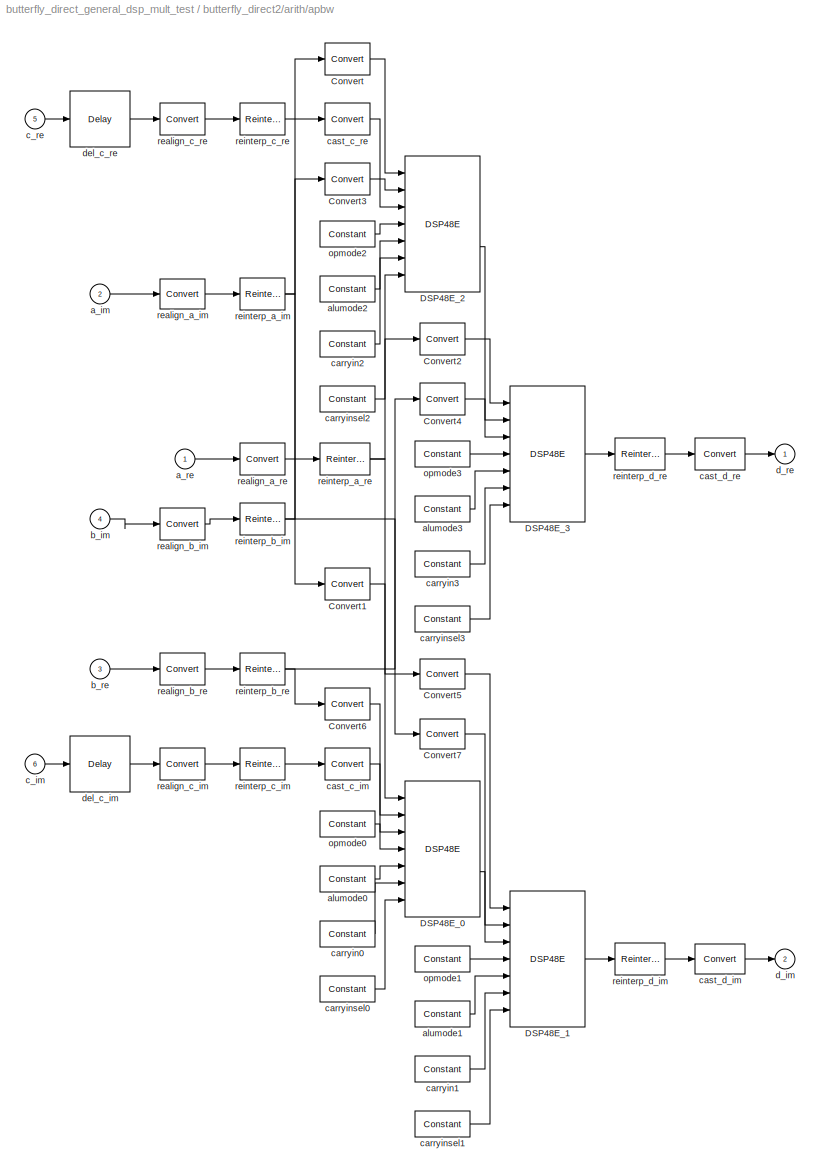
BLOCK [SubSystem] butterfly_direct2/arith/apbw
  FunctionWithSeparateData = off
  MaskHideContents = off
  MinAlgLoopOccurrences = off
  Opaque = off
  Ports = [6, 2]
  PropExecContextOutsideSubsystem = off
  RTWSystemCode = Auto
  RequestExecContextInheritance = off
  SID = 36727
BLOCK [Reference] butterfly_direct2/arith/apbw/Convert  REF=xbsIndex_r4/Convert
  Ports = [1, 1]
  SID = 36744
  SourceBlock = xbsIndex_r4/Convert
  SourceType = Xilinx Type Converter Block
  arith_type = Signed  (2's comp)
  bin_pt = 0
  block_type = convert
  dbl_ovrd = off
  en = off
  has_advanced_control = 0
  infoedit = Hardware notes: rounding and saturating require hardware resources; truncating and wrapping do not.
  latency = 0
  n_bits = 30
  overflow = Wrap
  pipeline = on
  quantization = Truncate
  sg_icon_stat = 45,32,1,1,white,blue,0,edca21da,right,,[ ],[ ]
  sg_mask_display = fprintf('','COMMENT: begin icon graphics');\npatch([0 45 45 0 0 ],[0 0 32 32 0 ],[0.77 0.82 0.91 ]);\nplot([0 45 45 0 0 ],[0 0 32 32 0 ]);\npatch([13.1 18.88 22.88 26.88 30.88 22.88 17.1 13.1 ],[20.44 20.44 24.44 20.44 24.44 24.44 24.44 20.44 ],[1 1 1 ]);\npatch([17.1 22.88 18.88 13.1 17.1 ],[16.44 16.44 20.44 20.44 16.44 ],[0.931 0.946 0.973 ]);\npatch([13.1 18.88 22.88 17.1 13.1 ],[12.44 12.44 1...<+314ch>  <repeated x17 — deduplicated; at blocks: Convert, Convert1, Convert2, Convert3, Convert4, Convert6, cast_c_im, cast_c_re, realign_a_re, realign_b_im, realign_b_re, realign_c_im, realign_c_re, realign_a_im>
  sggui_pos = -1,-1,-1,-1
  xl_area = [0,0,0,0,0,0,0]
  xl_use_area = off
BLOCK [Reference] butterfly_direct2/arith/apbw/Convert1  REF=xbsIndex_r4/Convert
  Ports = [1, 1]
  SID = 36745
  SourceBlock = xbsIndex_r4/Convert
  SourceType = Xilinx Type Converter Block
  arith_type = Signed  (2's comp)
  bin_pt = 0
  block_type = convert
  dbl_ovrd = off
  en = off
  has_advanced_control = 0
  infoedit = Hardware notes: rounding and saturating require hardware resources; truncating and wrapping do not.
  latency = 0
  n_bits = 30
  overflow = Wrap
  pipeline = on
  quantization = Truncate
  sg_icon_stat = 45,32,1,1,white,blue,0,edca21da,right,,[ ],[ ]
  sggui_pos = -1,-1,-1,-1
  xl_area = [0,0,0,0,0,0,0]
  xl_use_area = off
BLOCK [Reference] butterfly_direct2/arith/apbw/Convert2  REF=xbsIndex_r4/Convert
  Ports = [1, 1]
  SID = 36746
  SourceBlock = xbsIndex_r4/Convert
  SourceType = Xilinx Type Converter Block
  arith_type = Signed  (2's comp)
  bin_pt = 0
  block_type = convert
  dbl_ovrd = off
  en = off
  has_advanced_control = 0
  infoedit = Hardware notes: rounding and saturating require hardware resources; truncating and wrapping do not.
  latency = 0
  n_bits = 30
  overflow = Wrap
  pipeline = on
  quantization = Truncate
  sg_icon_stat = 45,32,1,1,white,blue,0,edca21da,right,,[ ],[ ]
  sggui_pos = -1,-1,-1,-1
  xl_area = [0,0,0,0,0,0,0]
  xl_use_area = off
BLOCK [Reference] butterfly_direct2/arith/apbw/Convert3  REF=xbsIndex_r4/Convert
  Ports = [1, 1]
  SID = 36747
  SourceBlock = xbsIndex_r4/Convert
  SourceType = Xilinx Type Converter Block
  arith_type = Signed  (2's comp)
  bin_pt = 0
  block_type = convert
  dbl_ovrd = off
  en = off
  has_advanced_control = 0
  infoedit = Hardware notes: rounding and saturating require hardware resources; truncating and wrapping do not.
  latency = 0
  n_bits = 18
  overflow = Wrap
  pipeline = on
  quantization = Truncate
  sg_icon_stat = 45,32,1,1,white,blue,0,edca21da,right,,[ ],[ ]
  sggui_pos = -1,-1,-1,-1
  xl_area = [0,0,0,0,0,0,0]
  xl_use_area = off
BLOCK [Reference] butterfly_direct2/arith/apbw/Convert4  REF=xbsIndex_r4/Convert
  Ports = [1, 1]
  SID = 36748
  SourceBlock = xbsIndex_r4/Convert
  SourceType = Xilinx Type Converter Block
  arith_type = Signed  (2's comp)
  bin_pt = 0
  block_type = convert
  dbl_ovrd = off
  en = off
  has_advanced_control = 0
  infoedit = Hardware notes: rounding and saturating require hardware resources; truncating and wrapping do not.
  latency = 0
  n_bits = 18
  overflow = Wrap
  pipeline = on
  quantization = Truncate
  sg_icon_stat = 45,32,1,1,white,blue,0,edca21da,right,,[ ],[ ]
  sggui_pos = -1,-1,-1,-1
  xl_area = [0,0,0,0,0,0,0]
  xl_use_area = off
BLOCK [Reference] butterfly_direct2/arith/apbw/Convert5  REF=xbsIndex_r4/Convert
  Ports = [1, 1]
  SID = 36749
  SourceBlock = xbsIndex_r4/Convert
  SourceType = Xilinx Type Converter Block
  arith_type = Signed  (2's comp)
  bin_pt = 0
  block_type = convert
  dbl_ovrd = off
  en = off
  has_advanced_control = 0
  infoedit = Hardware notes: rounding and saturating require hardware resources; truncating and wrapping do not.
  latency = 0
  n_bits = 30
  overflow = Wrap
  pipeline = on
  quantization = Truncate
  sg_icon_stat = 45,30,1,1,white,blue,0,edca21da,right,,[ ],[ ]
  sg_mask_display = fprintf('','COMMENT: begin icon graphics');\npatch([0 45 45 0 0 ],[0 0 30 30 0 ],[0.77 0.82 0.91 ]);\nplot([0 45 45 0 0 ],[0 0 30 30 0 ]);\npatch([13.1 18.88 22.88 26.88 30.88 22.88 17.1 13.1 ],[19.44 19.44 23.44 19.44 23.44 23.44 23.44 19.44 ],[1 1 1 ]);\npatch([17.1 22.88 18.88 13.1 17.1 ],[15.44 15.44 19.44 19.44 15.44 ],[0.931 0.946 0.973 ]);\npatch([13.1 18.88 22.88 17.1 13.1 ],[11.44 11.44 1...<+314ch>  <repeated x5 — deduplicated; at blocks: Convert5, Convert7, realign_a_im, realign_a_re, realign_b_im>
  sggui_pos = -1,-1,-1,-1
  xl_area = [0,0,0,0,0,0,0]
  xl_use_area = off
BLOCK [Reference] butterfly_direct2/arith/apbw/Convert6  REF=xbsIndex_r4/Convert
  Ports = [1, 1]
  SID = 36750
  SourceBlock = xbsIndex_r4/Convert
  SourceType = Xilinx Type Converter Block
  arith_type = Signed  (2's comp)
  bin_pt = 0
  block_type = convert
  dbl_ovrd = off
  en = off
  has_advanced_control = 0
  infoedit = Hardware notes: rounding and saturating require hardware resources; truncating and wrapping do not.
  latency = 0
  n_bits = 18
  overflow = Wrap
  pipeline = on
  quantization = Truncate
  sg_icon_stat = 45,32,1,1,white,blue,0,edca21da,right,,[ ],[ ]
  sggui_pos = -1,-1,-1,-1
  xl_area = [0,0,0,0,0,0,0]
  xl_use_area = off
BLOCK [Reference] butterfly_direct2/arith/apbw/Convert7  REF=xbsIndex_r4/Convert
  Ports = [1, 1]
  SID = 36751
  SourceBlock = xbsIndex_r4/Convert
  SourceType = Xilinx Type Converter Block
  arith_type = Signed  (2's comp)
  bin_pt = 0
  block_type = convert
  dbl_ovrd = off
  en = off
  has_advanced_control = 0
  infoedit = Hardware notes: rounding and saturating require hardware resources; truncating and wrapping do not.
  latency = 0
  n_bits = 18
  overflow = Wrap
  pipeline = on
  quantization = Truncate
  sg_icon_stat = 45,30,1,1,white,blue,0,edca21da,right,,[ ],[ ]
  sggui_pos = -1,-1,-1,-1
  xl_area = [0,0,0,0,0,0,0]
  xl_use_area = off
BLOCK [Reference] butterfly_direct2/arith/apbw/DSP48E_0  REF=xbsIndex_r4/DSP48E
  Ports = [7, 2]
  SID = 36752
  SourceBlock = xbsIndex_r4/DSP48E
  SourceType = Xilinx DSP48E Block
  addsub_mode = ONE48
  block_type = dsp48e
  en_a1 = off
  en_a2 = off
  en_all = off
  en_alumode = off
  en_b1 = off
  en_b2 = off
  en_c = off
  en_carry_in = off
  en_ctrl = off
  en_mult = off
  en_multcarryin = off
  en_p = off
  has_advanced_control = 0
  mask_from_creg = on
  pattern = '000000000000'
  pattern_from_creg = on
  pattern_mask = '000000000000'
  pipeline_a = 1
  pipeline_acout = 1
  pipeline_alumode = on
  pipeline_b = 1
  pipeline_bcout = 1
  pipeline_c = on
  pipeline_carryin = on
  pipeline_carryinsel = on
  pipeline_mult = on
  pipeline_opmode = on
  pipeline_p = on
  reset_preg = off
  rst_a = off
  rst_all = off
  rst_alumode = off
  rst_b = off
  rst_c = off
  rst_carry_in = off
  rst_ctrl = off
  rst_mult = off
  rst_p = off
  sel_rounding_mask = Select mask
  sg_icon_stat = 75,136,7,2,white,blue,0,9e3e5abd,right,,[ ],[ ]
  sg_mask_display = fprintf('','COMMENT: begin icon graphics');\npatch([0 75 75 0 0 ],[0 0 136 136 0 ],[0.77 0.82 0.91 ]);\nplot([0 75 75 0 0 ],[0 0 136 136 0 ]);\npatch([14.75 29.2 39.2 49.2 59.2 39.2 24.75 14.75 ],[79.1 79.1 89.1 79.1 89.1 89.1 89.1 79.1 ],[1 1 1 ]);\npatch([24.75 39.2 29.2 14.75 24.75 ],[69.1 69.1 79.1 79.1 69.1 ],[0.931 0.946 0.973 ]);\npatch([14.75 29.2 39.2 24.75 14.75 ],[59.1 59.1 69.1 69.1 59...<+666ch>
  sggui_pos = -1,-1,-1,-1
  use_a = Direct from A Port
  use_acout = off
  use_b = Direct from B Port
  use_bcout = off
  use_carrycascin = off
  use_carrycascout = off
  use_carryout = off
  use_creg = on
  use_multsignin = off
  use_multsignout = off
  use_op = off
  use_overflow = off
  use_patternbdetect = off
  use_patterndetect = off
  use_pcin = off
  use_pcout = on
  use_synth_model = off
  use_underflow = off
  xl_area = [0,0,0,0,0,0,0]
  xl_use_area = off
  xl_useadderonly = off
BLOCK [Reference] butterfly_direct2/arith/apbw/DSP48E_1  REF=xbsIndex_r4/DSP48E
  Ports = [7, 1]
  SID = 36753
  SourceBlock = xbsIndex_r4/DSP48E
  SourceType = Xilinx DSP48E Block
  addsub_mode = ONE48
  block_type = dsp48e
  en_a1 = off
  en_a2 = off
  en_all = off
  en_alumode = off
  en_b1 = off
  en_b2 = off
  en_c = off
  en_carry_in = off
  en_ctrl = off
  en_mult = off
  en_multcarryin = off
  en_p = off
  has_advanced_control = 0
  mask_from_creg = on
  pattern = '000000000000'
  pattern_from_creg = on
  pattern_mask = '000000000000'
  pipeline_a = 2
  pipeline_acout = 1
  pipeline_alumode = on
  pipeline_b = 2
  pipeline_bcout = 1
  pipeline_c = on
  pipeline_carryin = on
  pipeline_carryinsel = on
  pipeline_mult = on
  pipeline_opmode = on
  pipeline_p = on
  reset_preg = off
  rst_a = off
  rst_all = off
  rst_alumode = off
  rst_b = off
  rst_c = off
  rst_carry_in = off
  rst_ctrl = off
  rst_mult = off
  rst_p = off
  sel_rounding_mask = Select mask
  sg_icon_stat = 75,136,7,1,white,blue,0,b41431cb,right,,[ ],[ ]
  sg_mask_display = fprintf('','COMMENT: begin icon graphics');\npatch([0 75 75 0 0 ],[0 0 136 136 0 ],[0.77 0.82 0.91 ]);\nplot([0 75 75 0 0 ],[0 0 136 136 0 ]);\npatch([14.75 29.2 39.2 49.2 59.2 39.2 24.75 14.75 ],[79.1 79.1 89.1 79.1 89.1 89.1 89.1 79.1 ],[1 1 1 ]);\npatch([24.75 39.2 29.2 14.75 24.75 ],[69.1 69.1 79.1 79.1 69.1 ],[0.931 0.946 0.973 ]);\npatch([14.75 29.2 39.2 24.75 14.75 ],[59.1 59.1 69.1 69.1 59...<+621ch>
  sggui_pos = -1,-1,-1,-1
  use_a = Direct from A Port
  use_acout = off
  use_b = Direct from B Port
  use_bcout = off
  use_carrycascin = off
  use_carrycascout = off
  use_carryout = off
  use_creg = off
  use_multsignin = off
  use_multsignout = off
  use_op = off
  use_overflow = off
  use_patternbdetect = off
  use_patterndetect = off
  use_pcin = on
  use_pcout = off
  use_synth_model = off
  use_underflow = off
  xl_area = [0,0,0,0,0,0,0]
  xl_use_area = off
  xl_useadderonly = off
BLOCK [Reference] butterfly_direct2/arith/apbw/DSP48E_2  REF=xbsIndex_r4/DSP48E
  Ports = [7, 2]
  SID = 36754
  SourceBlock = xbsIndex_r4/DSP48E
  SourceType = Xilinx DSP48E Block
  addsub_mode = ONE48
  block_type = dsp48e
  en_a1 = off
  en_a2 = off
  en_all = off
  en_alumode = off
  en_b1 = off
  en_b2 = off
  en_c = off
  en_carry_in = off
  en_ctrl = off
  en_mult = off
  en_multcarryin = off
  en_p = off
  has_advanced_control = 0
  mask_from_creg = on
  pattern = '000000000000'
  pattern_from_creg = on
  pattern_mask = '000000000000'
  pipeline_a = 1
  pipeline_acout = 1
  pipeline_alumode = on
  pipeline_b = 1
  pipeline_bcout = 1
  pipeline_c = on
  pipeline_carryin = on
  pipeline_carryinsel = on
  pipeline_mult = on
  pipeline_opmode = on
  pipeline_p = on
  reset_preg = off
  rst_a = off
  rst_all = off
  rst_alumode = off
  rst_b = off
  rst_c = off
  rst_carry_in = off
  rst_ctrl = off
  rst_mult = off
  rst_p = off
  sel_rounding_mask = Select mask
  sg_icon_stat = 75,136,7,2,white,blue,0,9e3e5abd,right,,[ ],[ ]
  sg_mask_display = fprintf('','COMMENT: begin icon graphics');\npatch([0 75 75 0 0 ],[0 0 136 136 0 ],[0.77 0.82 0.91 ]);\nplot([0 75 75 0 0 ],[0 0 136 136 0 ]);\npatch([14.75 29.2 39.2 49.2 59.2 39.2 24.75 14.75 ],[79.1 79.1 89.1 79.1 89.1 89.1 89.1 79.1 ],[1 1 1 ]);\npatch([24.75 39.2 29.2 14.75 24.75 ],[69.1 69.1 79.1 79.1 69.1 ],[0.931 0.946 0.973 ]);\npatch([14.75 29.2 39.2 24.75 14.75 ],[59.1 59.1 69.1 69.1 59...<+666ch>
  sggui_pos = -1,-1,-1,-1
  use_a = Direct from A Port
  use_acout = off
  use_b = Direct from B Port
  use_bcout = off
  use_carrycascin = off
  use_carrycascout = off
  use_carryout = off
  use_creg = on
  use_multsignin = off
  use_multsignout = off
  use_op = off
  use_overflow = off
  use_patternbdetect = off
  use_patterndetect = off
  use_pcin = off
  use_pcout = on
  use_synth_model = off
  use_underflow = off
  xl_area = [0,0,0,0,0,0,0]
  xl_use_area = off
  xl_useadderonly = off
BLOCK [Reference] butterfly_direct2/arith/apbw/DSP48E_3  REF=xbsIndex_r4/DSP48E
  Ports = [7, 1]
  SID = 36755
  SourceBlock = xbsIndex_r4/DSP48E
  SourceType = Xilinx DSP48E Block
  addsub_mode = ONE48
  block_type = dsp48e
  en_a1 = off
  en_a2 = off
  en_all = off
  en_alumode = off
  en_b1 = off
  en_b2 = off
  en_c = off
  en_carry_in = off
  en_ctrl = off
  en_mult = off
  en_multcarryin = off
  en_p = off
  has_advanced_control = 0
  mask_from_creg = on
  pattern = '000000000000'
  pattern_from_creg = on
  pattern_mask = '000000000000'
  pipeline_a = 2
  pipeline_acout = 1
  pipeline_alumode = on
  pipeline_b = 2
  pipeline_bcout = 1
  pipeline_c = on
  pipeline_carryin = on
  pipeline_carryinsel = on
  pipeline_mult = on
  pipeline_opmode = on
  pipeline_p = on
  reset_preg = off
  rst_a = off
  rst_all = off
  rst_alumode = off
  rst_b = off
  rst_c = off
  rst_carry_in = off
  rst_ctrl = off
  rst_mult = off
  rst_p = off
  sel_rounding_mask = Select mask
  sg_icon_stat = 75,136,7,1,white,blue,0,b41431cb,right,,[ ],[ ]
  sg_mask_display = fprintf('','COMMENT: begin icon graphics');\npatch([0 75 75 0 0 ],[0 0 136 136 0 ],[0.77 0.82 0.91 ]);\nplot([0 75 75 0 0 ],[0 0 136 136 0 ]);\npatch([14.75 29.2 39.2 49.2 59.2 39.2 24.75 14.75 ],[79.1 79.1 89.1 79.1 89.1 89.1 89.1 79.1 ],[1 1 1 ]);\npatch([24.75 39.2 29.2 14.75 24.75 ],[69.1 69.1 79.1 79.1 69.1 ],[0.931 0.946 0.973 ]);\npatch([14.75 29.2 39.2 24.75 14.75 ],[59.1 59.1 69.1 69.1 59...<+621ch>
  sggui_pos = -1,-1,-1,-1
  use_a = Direct from A Port
  use_acout = off
  use_b = Direct from B Port
  use_bcout = off
  use_carrycascin = off
  use_carrycascout = off
  use_carryout = off
  use_creg = off
  use_multsignin = off
  use_multsignout = off
  use_op = off
  use_overflow = off
  use_patternbdetect = off
  use_patterndetect = off
  use_pcin = on
  use_pcout = off
  use_synth_model = off
  use_underflow = off
  xl_area = [0,0,0,0,0,0,0]
  xl_use_area = off
  xl_useadderonly = off
BLOCK [Inport] butterfly_direct2/arith/apbw/a_im
  IconDisplay = Port number
  Port = 2
  SID = 36729
BLOCK [Inport] butterfly_direct2/arith/apbw/a_re
  IconDisplay = Port number
  SID = 36728
BLOCK [Reference] butterfly_direct2/arith/apbw/alumode0  REF=xbsIndex_r4/Constant
  Ports = [0, 1]
  SID = 36756
  SourceBlock = xbsIndex_r4/Constant
  SourceType = Xilinx Constant Block Block
  arith_type = Unsigned
  bin_pt = 0
  block_type = constant
  carry = CIN
  const = 0
  dbl_ovrd = off
  dsp48_infoedit = The use of this block for DSP48 instructions is deprecated.  Please use the Opmode block.
  equ = P=C
  explicit_period = off
  has_advanced_control = 0
  inp1 = P
  inp2 = PCIN>>17
  n_bits = 4
  opr = +
  opselect = C
  period = 1
  sg_icon_stat = 55,26,0,1,white,blue,0,bf4ddd8b,right,,[ ],[ ]
  sg_mask_display = fprintf('','COMMENT: begin icon graphics');\npatch([0 55 55 0 0 ],[0 0 26 26 0 ],[0.77 0.82 0.91 ]);\nplot([0 55 55 0 0 ],[0 0 26 26 0 ]);\npatch([20.325 24.66 27.66 30.66 33.66 27.66 23.325 20.325 ],[16.33 16.33 19.33 16.33 19.33 19.33 19.33 16.33 ],[1 1 1 ]);\npatch([23.325 27.66 24.66 20.325 23.325 ],[13.33 13.33 16.33 16.33 13.33 ],[0.931 0.946 0.973 ]);\npatch([20.325 24.66 27.66 23.325 20.32...<+333ch>  <repeated x15 — deduplicated; at blocks: alumode0, alumode1, alumode2, alumode3, carryin0, carryin1, carryin2, carryin3, carryinsel0, carryinsel1, carryinsel2, carryinsel3, alumode, carryin, carryinsel>
  sggui_pos = -1,-1,-1,-1
BLOCK [Reference] butterfly_direct2/arith/apbw/alumode1  REF=xbsIndex_r4/Constant
  Ports = [0, 1]
  SID = 36757
  SourceBlock = xbsIndex_r4/Constant
  SourceType = Xilinx Constant Block Block
  arith_type = Unsigned
  bin_pt = 0
  block_type = constant
  carry = CIN
  const = 0
  dbl_ovrd = off
  dsp48_infoedit = The use of this block for DSP48 instructions is deprecated.  Please use the Opmode block.
  equ = P=C
  explicit_period = off
  has_advanced_control = 0
  inp1 = P
  inp2 = PCIN>>17
  n_bits = 4
  opr = +
  opselect = C
  period = 1
  sg_icon_stat = 55,26,0,1,white,blue,0,bf4ddd8b,right,,[ ],[ ]
  sggui_pos = -1,-1,-1,-1
BLOCK [Reference] butterfly_direct2/arith/apbw/alumode2  REF=xbsIndex_r4/Constant
  Ports = [0, 1]
  SID = 36758
  SourceBlock = xbsIndex_r4/Constant
  SourceType = Xilinx Constant Block Block
  arith_type = Unsigned
  bin_pt = 0
  block_type = constant
  carry = CIN
  const = 3
  dbl_ovrd = off
  dsp48_infoedit = The use of this block for DSP48 instructions is deprecated.  Please use the Opmode block.
  equ = P=C
  explicit_period = off
  has_advanced_control = 0
  inp1 = P
  inp2 = PCIN>>17
  n_bits = 4
  opr = +
  opselect = C
  period = 1
  sg_icon_stat = 55,26,0,1,white,blue,0,279a71c8,right,,[ ],[ ]
  sggui_pos = -1,-1,-1,-1
BLOCK [Reference] butterfly_direct2/arith/apbw/alumode3  REF=xbsIndex_r4/Constant
  Ports = [0, 1]
  SID = 36759
  SourceBlock = xbsIndex_r4/Constant
  SourceType = Xilinx Constant Block Block
  arith_type = Unsigned
  bin_pt = 0
  block_type = constant
  carry = CIN
  const = 0
  dbl_ovrd = off
  dsp48_infoedit = The use of this block for DSP48 instructions is deprecated.  Please use the Opmode block.
  equ = P=C
  explicit_period = off
  has_advanced_control = 0
  inp1 = P
  inp2 = PCIN>>17
  n_bits = 4
  opr = +
  opselect = C
  period = 1
  sg_icon_stat = 55,26,0,1,white,blue,0,bf4ddd8b,right,,[ ],[ ]
  sggui_pos = -1,-1,-1,-1
BLOCK [Inport] butterfly_direct2/arith/apbw/b_im
  IconDisplay = Port number
  Port = 4
  SID = 36731
BLOCK [Inport] butterfly_direct2/arith/apbw/b_re
  IconDisplay = Port number
  Port = 3
  SID = 36730
BLOCK [Inport] butterfly_direct2/arith/apbw/c_im
  IconDisplay = Port number
  Port = 6
  SID = 36733
BLOCK [Inport] butterfly_direct2/arith/apbw/c_re
  IconDisplay = Port number
  Port = 5
  SID = 36732
BLOCK [Reference] butterfly_direct2/arith/apbw/carryin0  REF=xbsIndex_r4/Constant
  Ports = [0, 1]
  SID = 36760
  SourceBlock = xbsIndex_r4/Constant
  SourceType = Xilinx Constant Block Block
  arith_type = Unsigned
  bin_pt = 0
  block_type = constant
  carry = CIN
  const = 0
  dbl_ovrd = off
  dsp48_infoedit = The use of this block for DSP48 instructions is deprecated.  Please use the Opmode block.
  equ = P=C
  explicit_period = off
  has_advanced_control = 0
  inp1 = P
  inp2 = PCIN>>17
  n_bits = 1
  opr = +
  opselect = C
  period = 1
  sg_icon_stat = 55,26,0,1,white,blue,0,bf4ddd8b,right,,[ ],[ ]
  sggui_pos = -1,-1,-1,-1
BLOCK [Reference] butterfly_direct2/arith/apbw/carryin1  REF=xbsIndex_r4/Constant
  Ports = [0, 1]
  SID = 36761
  SourceBlock = xbsIndex_r4/Constant
  SourceType = Xilinx Constant Block Block
  arith_type = Unsigned
  bin_pt = 0
  block_type = constant
  carry = CIN
  const = 0
  dbl_ovrd = off
  dsp48_infoedit = The use of this block for DSP48 instructions is deprecated.  Please use the Opmode block.
  equ = P=C
  explicit_period = off
  has_advanced_control = 0
  inp1 = P
  inp2 = PCIN>>17
  n_bits = 1
  opr = +
  opselect = C
  period = 1
  sg_icon_stat = 55,26,0,1,white,blue,0,bf4ddd8b,right,,[ ],[ ]
  sggui_pos = -1,-1,-1,-1
BLOCK [Reference] butterfly_direct2/arith/apbw/carryin2  REF=xbsIndex_r4/Constant
  Ports = [0, 1]
  SID = 36762
  SourceBlock = xbsIndex_r4/Constant
  SourceType = Xilinx Constant Block Block
  arith_type = Unsigned
  bin_pt = 0
  block_type = constant
  carry = CIN
  const = 0
  dbl_ovrd = off
  dsp48_infoedit = The use of this block for DSP48 instructions is deprecated.  Please use the Opmode block.
  equ = P=C
  explicit_period = off
  has_advanced_control = 0
  inp1 = P
  inp2 = PCIN>>17
  n_bits = 1
  opr = +
  opselect = C
  period = 1
  sg_icon_stat = 55,26,0,1,white,blue,0,bf4ddd8b,right,,[ ],[ ]
  sggui_pos = -1,-1,-1,-1
BLOCK [Reference] butterfly_direct2/arith/apbw/carryin3  REF=xbsIndex_r4/Constant
  Ports = [0, 1]
  SID = 36763
  SourceBlock = xbsIndex_r4/Constant
  SourceType = Xilinx Constant Block Block
  arith_type = Unsigned
  bin_pt = 0
  block_type = constant
  carry = CIN
  const = 0
  dbl_ovrd = off
  dsp48_infoedit = The use of this block for DSP48 instructions is deprecated.  Please use the Opmode block.
  equ = P=C
  explicit_period = off
  has_advanced_control = 0
  inp1 = P
  inp2 = PCIN>>17
  n_bits = 1
  opr = +
  opselect = C
  period = 1
  sg_icon_stat = 55,26,0,1,white,blue,0,bf4ddd8b,right,,[ ],[ ]
  sggui_pos = -1,-1,-1,-1
BLOCK [Reference] butterfly_direct2/arith/apbw/carryinsel0  REF=xbsIndex_r4/Constant
  Ports = [0, 1]
  SID = 36764
  SourceBlock = xbsIndex_r4/Constant
  SourceType = Xilinx Constant Block Block
  arith_type = Unsigned
  bin_pt = 0
  block_type = constant
  carry = CIN
  const = 0
  dbl_ovrd = off
  dsp48_infoedit = The use of this block for DSP48 instructions is deprecated.  Please use the Opmode block.
  equ = P=C
  explicit_period = off
  has_advanced_control = 0
  inp1 = P
  inp2 = PCIN>>17
  n_bits = 3
  opr = +
  opselect = C
  period = 1
  sg_icon_stat = 55,26,0,1,white,blue,0,bf4ddd8b,right,,[ ],[ ]
  sggui_pos = -1,-1,-1,-1
BLOCK [Reference] butterfly_direct2/arith/apbw/carryinsel1  REF=xbsIndex_r4/Constant
  Ports = [0, 1]
  SID = 36765
  SourceBlock = xbsIndex_r4/Constant
  SourceType = Xilinx Constant Block Block
  arith_type = Unsigned
  bin_pt = 0
  block_type = constant
  carry = CIN
  const = 0
  dbl_ovrd = off
  dsp48_infoedit = The use of this block for DSP48 instructions is deprecated.  Please use the Opmode block.
  equ = P=C
  explicit_period = off
  has_advanced_control = 0
  inp1 = P
  inp2 = PCIN>>17
  n_bits = 3
  opr = +
  opselect = C
  period = 1
  sg_icon_stat = 55,26,0,1,white,blue,0,bf4ddd8b,right,,[ ],[ ]
  sggui_pos = -1,-1,-1,-1
BLOCK [Reference] butterfly_direct2/arith/apbw/carryinsel2  REF=xbsIndex_r4/Constant
  Ports = [0, 1]
  SID = 36766
  SourceBlock = xbsIndex_r4/Constant
  SourceType = Xilinx Constant Block Block
  arith_type = Unsigned
  bin_pt = 0
  block_type = constant
  carry = CIN
  const = 0
  dbl_ovrd = off
  dsp48_infoedit = The use of this block for DSP48 instructions is deprecated.  Please use the Opmode block.
  equ = P=C
  explicit_period = off
  has_advanced_control = 0
  inp1 = P
  inp2 = PCIN>>17
  n_bits = 3
  opr = +
  opselect = C
  period = 1
  sg_icon_stat = 55,26,0,1,white,blue,0,bf4ddd8b,right,,[ ],[ ]
  sggui_pos = -1,-1,-1,-1
BLOCK [Reference] butterfly_direct2/arith/apbw/carryinsel3  REF=xbsIndex_r4/Constant
  Ports = [0, 1]
  SID = 36767
  SourceBlock = xbsIndex_r4/Constant
  SourceType = Xilinx Constant Block Block
  arith_type = Unsigned
  bin_pt = 0
  block_type = constant
  carry = CIN
  const = 0
  dbl_ovrd = off
  dsp48_infoedit = The use of this block for DSP48 instructions is deprecated.  Please use the Opmode block.
  equ = P=C
  explicit_period = off
  has_advanced_control = 0
  inp1 = P
  inp2 = PCIN>>17
  n_bits = 3
  opr = +
  opselect = C
  period = 1
  sg_icon_stat = 55,26,0,1,white,blue,0,bf4ddd8b,right,,[ ],[ ]
  sggui_pos = -1,-1,-1,-1
BLOCK [Reference] butterfly_direct2/arith/apbw/cast_c_im  REF=xbsIndex_r4/Convert
  Ports = [1, 1]
  SID = 36743
  SourceBlock = xbsIndex_r4/Convert
  SourceType = Xilinx Type Converter Block
  arith_type = Signed  (2's comp)
  bin_pt = 0
  block_type = convert
  dbl_ovrd = off
  en = off
  has_advanced_control = 0
  infoedit = Hardware notes: rounding and saturating require hardware resources; truncating and wrapping do not.
  latency = 0
  n_bits = 48
  overflow = Wrap
  pipeline = on
  quantization = Truncate
  sg_icon_stat = 45,32,1,1,white,blue,0,edca21da,right,,[ ],[ ]
  sggui_pos = -1,-1,-1,-1
  xl_area = [0,0,0,0,0,0,0]
  xl_use_area = off
BLOCK [Reference] butterfly_direct2/arith/apbw/cast_c_re  REF=xbsIndex_r4/Convert
  Ports = [1, 1]
  SID = 36739
  SourceBlock = xbsIndex_r4/Convert
  SourceType = Xilinx Type Converter Block
  arith_type = Signed  (2's comp)
  bin_pt = 0
  block_type = convert
  dbl_ovrd = off
  en = off
  has_advanced_control = 0
  infoedit = Hardware notes: rounding and saturating require hardware resources; truncating and wrapping do not.
  latency = 0
  n_bits = 48
  overflow = Wrap
  pipeline = on
  quantization = Truncate
  sg_icon_stat = 45,32,1,1,white,blue,0,edca21da,right,,[ ],[ ]
  sggui_pos = -1,-1,-1,-1
  xl_area = [0,0,0,0,0,0,0]
  xl_use_area = off
BLOCK [Reference] butterfly_direct2/arith/apbw/cast_d_im  REF=xbsIndex_r4/Convert
  Ports = [1, 1]
  SID = 36768
  SourceBlock = xbsIndex_r4/Convert
  SourceType = Xilinx Type Converter Block
  arith_type = Signed  (2's comp)
  bin_pt = 6
  block_type = convert
  dbl_ovrd = off
  en = off
  has_advanced_control = 0
  infoedit = Hardware notes: rounding and saturating require hardware resources; truncating and wrapping do not.
  latency = 1
  n_bits = 10
  overflow = Saturate
  pipeline = on
  quantization = Round  (unbiased: +/- Inf)
  sg_icon_stat = 50,30,1,1,white,blue,0,0c6bad53,right,,[ ],[ ]
  sg_mask_display = fprintf('','COMMENT: begin icon graphics');\npatch([0 50 50 0 0 ],[0 0 30 30 0 ],[0.77 0.82 0.91 ]);\nplot([0 50 50 0 0 ],[0 0 30 30 0 ]);\npatch([16.1 21.88 25.88 29.88 33.88 25.88 20.1 16.1 ],[19.44 19.44 23.44 19.44 23.44 23.44 23.44 19.44 ],[1 1 1 ]);\npatch([20.1 25.88 21.88 16.1 20.1 ],[15.44 15.44 19.44 19.44 15.44 ],[0.931 0.946 0.973 ]);\npatch([16.1 21.88 25.88 20.1 16.1 ],[11.44 11.44 1...<+402ch>
  sggui_pos = -1,-1,-1,-1
  xl_area = [0,0,0,0,0,0,0]
  xl_use_area = off
BLOCK [Reference] butterfly_direct2/arith/apbw/cast_d_re  REF=xbsIndex_r4/Convert
  Ports = [1, 1]
  SID = 36769
  SourceBlock = xbsIndex_r4/Convert
  SourceType = Xilinx Type Converter Block
  arith_type = Signed  (2's comp)
  bin_pt = 6
  block_type = convert
  dbl_ovrd = off
  en = off
  has_advanced_control = 0
  infoedit = Hardware notes: rounding and saturating require hardware resources; truncating and wrapping do not.
  latency = 1
  n_bits = 10
  overflow = Saturate
  pipeline = on
  quantization = Round  (unbiased: +/- Inf)
  sg_icon_stat = 50,32,1,1,white,blue,0,0c6bad53,right,,[ ],[ ]
  sg_mask_display = fprintf('','COMMENT: begin icon graphics');\npatch([0 50 50 0 0 ],[0 0 32 32 0 ],[0.77 0.82 0.91 ]);\nplot([0 50 50 0 0 ],[0 0 32 32 0 ]);\npatch([16.1 21.88 25.88 29.88 33.88 25.88 20.1 16.1 ],[20.44 20.44 24.44 20.44 24.44 24.44 24.44 20.44 ],[1 1 1 ]);\npatch([20.1 25.88 21.88 16.1 20.1 ],[16.44 16.44 20.44 20.44 16.44 ],[0.931 0.946 0.973 ]);\npatch([16.1 21.88 25.88 20.1 16.1 ],[12.44 12.44 1...<+402ch>
  sggui_pos = -1,-1,-1,-1
  xl_area = [0,0,0,0,0,0,0]
  xl_use_area = off
BLOCK [Outport] butterfly_direct2/arith/apbw/d_im
  IconDisplay = Port number
  Port = 2
  SID = 36735
BLOCK [Outport] butterfly_direct2/arith/apbw/d_re
  IconDisplay = Port number
  SID = 36734
BLOCK [Reference] butterfly_direct2/arith/apbw/del_c_im  REF=xbsIndex_r4/Delay
  Ports = [1, 1]
  SID = 36740
  SourceBlock = xbsIndex_r4/Delay
  SourceType = Xilinx Delay Block
  block_type = delay
  dbl_ovrd = off
  en = off
  has_advanced_control = 0
  infoedit = Hardware notes: A delay line is a chain, each link of which is an SRL16 followed by a flip-flop.
  latency = 1
  reg_retiming = off
  sg_icon_stat = 60,56,1,1,white,blue,0,07b98262,right,,[ ],[ ]
  sggui_pos = -1,-1,-1,-1
  xl_area = [0,0,0,0,0,0,0]
  xl_use_area = off
BLOCK [Reference] butterfly_direct2/arith/apbw/del_c_re  REF=xbsIndex_r4/Delay
  Ports = [1, 1]
  SID = 36736
  SourceBlock = xbsIndex_r4/Delay
  SourceType = Xilinx Delay Block
  block_type = delay
  dbl_ovrd = off
  en = off
  has_advanced_control = 0
  infoedit = Hardware notes: A delay line is a chain, each link of which is an SRL16 followed by a flip-flop.
  latency = 1
  reg_retiming = off
  sg_icon_stat = 60,56,1,1,white,blue,0,07b98262,right,,[ ],[ ]
  sggui_pos = -1,-1,-1,-1
  xl_area = [0,0,0,0,0,0,0]
  xl_use_area = off
BLOCK [Reference] butterfly_direct2/arith/apbw/opmode0  REF=xbsIndex_r4/Constant
  Ports = [0, 1]
  SID = 36770
  SourceBlock = xbsIndex_r4/Constant
  SourceType = Xilinx Constant Block Block
  arith_type = Unsigned
  bin_pt = 0
  block_type = constant
  carry = CIN
  const = 53
  dbl_ovrd = off
  dsp48_infoedit = The use of this block for DSP48 instructions is deprecated.  Please use the Opmode block.
  equ = P=C
  explicit_period = off
  has_advanced_control = 0
  inp1 = P
  inp2 = PCIN>>17
  n_bits = 7
  opr = +
  opselect = C
  period = 1
  sg_icon_stat = 55,26,0,1,white,blue,0,2cdbf06a,right,,[ ],[ ]
  sg_mask_display = fprintf('','COMMENT: begin icon graphics');\npatch([0 55 55 0 0 ],[0 0 26 26 0 ],[0.77 0.82 0.91 ]);\nplot([0 55 55 0 0 ],[0 0 26 26 0 ]);\npatch([20.325 24.66 27.66 30.66 33.66 27.66 23.325 20.325 ],[16.33 16.33 19.33 16.33 19.33 19.33 19.33 16.33 ],[1 1 1 ]);\npatch([23.325 27.66 24.66 20.325 23.325 ],[13.33 13.33 16.33 16.33 13.33 ],[0.931 0.946 0.973 ]);\npatch([20.325 24.66 27.66 23.325 20.32...<+334ch>  <repeated x5 — deduplicated; at blocks: opmode0, opmode1, opmode2, opmode3, opmode>
  sggui_pos = -1,-1,-1,-1
BLOCK [Reference] butterfly_direct2/arith/apbw/opmode1  REF=xbsIndex_r4/Constant
  Ports = [0, 1]
  SID = 36771
  SourceBlock = xbsIndex_r4/Constant
  SourceType = Xilinx Constant Block Block
  arith_type = Unsigned
  bin_pt = 0
  block_type = constant
  carry = CIN
  const = 21
  dbl_ovrd = off
  dsp48_infoedit = The use of this block for DSP48 instructions is deprecated.  Please use the Opmode block.
  equ = P=C
  explicit_period = off
  has_advanced_control = 0
  inp1 = P
  inp2 = PCIN>>17
  n_bits = 7
  opr = +
  opselect = C
  period = 1
  sg_icon_stat = 55,26,0,1,white,blue,0,b02509bd,right,,[ ],[ ]
  sggui_pos = -1,-1,-1,-1
BLOCK [Reference] butterfly_direct2/arith/apbw/opmode2  REF=xbsIndex_r4/Constant
  Ports = [0, 1]
  SID = 36772
  SourceBlock = xbsIndex_r4/Constant
  SourceType = Xilinx Constant Block Block
  arith_type = Unsigned
  bin_pt = 0
  block_type = constant
  carry = CIN
  const = 53
  dbl_ovrd = off
  dsp48_infoedit = The use of this block for DSP48 instructions is deprecated.  Please use the Opmode block.
  equ = P=C
  explicit_period = off
  has_advanced_control = 0
  inp1 = P
  inp2 = PCIN>>17
  n_bits = 7
  opr = +
  opselect = C
  period = 1
  sg_icon_stat = 55,26,0,1,white,blue,0,2cdbf06a,right,,[ ],[ ]
  sggui_pos = -1,-1,-1,-1
BLOCK [Reference] butterfly_direct2/arith/apbw/opmode3  REF=xbsIndex_r4/Constant
  Ports = [0, 1]
  SID = 36773
  SourceBlock = xbsIndex_r4/Constant
  SourceType = Xilinx Constant Block Block
  arith_type = Unsigned
  bin_pt = 0
  block_type = constant
  carry = CIN
  const = 21
  dbl_ovrd = off
  dsp48_infoedit = The use of this block for DSP48 instructions is deprecated.  Please use the Opmode block.
  equ = P=C
  explicit_period = off
  has_advanced_control = 0
  inp1 = P
  inp2 = PCIN>>17
  n_bits = 7
  opr = +
  opselect = C
  period = 1
  sg_icon_stat = 55,26,0,1,white,blue,0,b02509bd,right,,[ ],[ ]
  sggui_pos = -1,-1,-1,-1
BLOCK [Reference] butterfly_direct2/arith/apbw/realign_a_im  REF=xbsIndex_r4/Convert
  Ports = [1, 1]
  SID = 36774
  SourceBlock = xbsIndex_r4/Convert
  SourceType = Xilinx Type Converter Block
  arith_type = Signed  (2's comp)
  bin_pt = 4
  block_type = convert
  dbl_ovrd = off
  en = off
  has_advanced_control = 0
  infoedit = Hardware notes: rounding and saturating require hardware resources; truncating and wrapping do not.
  latency = 0
  n_bits = 5
  overflow = Wrap
  pipeline = on
  quantization = Truncate
  sg_icon_stat = 45,30,1,1,white,blue,0,edca21da,right,,[ ],[ ]
  sggui_pos = -1,-1,-1,-1
  xl_area = [0,0,0,0,0,0,0]
  xl_use_area = off
BLOCK [Reference] butterfly_direct2/arith/apbw/realign_a_re  REF=xbsIndex_r4/Convert
  Ports = [1, 1]
  SID = 36775
  SourceBlock = xbsIndex_r4/Convert
  SourceType = Xilinx Type Converter Block
  arith_type = Signed  (2's comp)
  bin_pt = 4
  block_type = convert
  dbl_ovrd = off
  en = off
  has_advanced_control = 0
  infoedit = Hardware notes: rounding and saturating require hardware resources; truncating and wrapping do not.
  latency = 0
  n_bits = 5
  overflow = Wrap
  pipeline = on
  quantization = Truncate
  sg_icon_stat = 45,32,1,1,white,blue,0,edca21da,right,,[ ],[ ]
  sggui_pos = -1,-1,-1,-1
  xl_area = [0,0,0,0,0,0,0]
  xl_use_area = off
BLOCK [Reference] butterfly_direct2/arith/apbw/realign_b_im  REF=xbsIndex_r4/Convert
  Ports = [1, 1]
  SID = 36776
  SourceBlock = xbsIndex_r4/Convert
  SourceType = Xilinx Type Converter Block
  arith_type = Signed  (2's comp)
  bin_pt = 3
  block_type = convert
  dbl_ovrd = off
  en = off
  has_advanced_control = 0
  infoedit = Hardware notes: rounding and saturating require hardware resources; truncating and wrapping do not.
  latency = 0
  n_bits = 5
  overflow = Wrap
  pipeline = on
  quantization = Truncate
  sg_icon_stat = 45,32,1,1,white,blue,0,edca21da,right,,[ ],[ ]
  sggui_pos = -1,-1,-1,-1
  xl_area = [0,0,0,0,0,0,0]
  xl_use_area = off
BLOCK [Reference] butterfly_direct2/arith/apbw/realign_b_re  REF=xbsIndex_r4/Convert
  Ports = [1, 1]
  SID = 36777
  SourceBlock = xbsIndex_r4/Convert
  SourceType = Xilinx Type Converter Block
  arith_type = Signed  (2's comp)
  bin_pt = 3
  block_type = convert
  dbl_ovrd = off
  en = off
  has_advanced_control = 0
  infoedit = Hardware notes: rounding and saturating require hardware resources; truncating and wrapping do not.
  latency = 0
  n_bits = 5
  overflow = Wrap
  pipeline = on
  quantization = Truncate
  sg_icon_stat = 45,32,1,1,white,blue,0,edca21da,right,,[ ],[ ]
  sggui_pos = -1,-1,-1,-1
  xl_area = [0,0,0,0,0,0,0]
  xl_use_area = off
BLOCK [Reference] butterfly_direct2/arith/apbw/realign_c_im  REF=xbsIndex_r4/Convert
  Ports = [1, 1]
  SID = 36741
  SourceBlock = xbsIndex_r4/Convert
  SourceType = Xilinx Type Converter Block
  arith_type = Signed  (2's comp)
  bin_pt = 7
  block_type = convert
  dbl_ovrd = off
  en = off
  has_advanced_control = 0
  infoedit = Hardware notes: rounding and saturating require hardware resources; truncating and wrapping do not.
  latency = 0
  n_bits = 8
  overflow = Wrap
  pipeline = on
  quantization = Truncate
  sg_icon_stat = 45,32,1,1,white,blue,0,edca21da,right,,[ ],[ ]
  sggui_pos = -1,-1,-1,-1
  xl_area = [0,0,0,0,0,0,0]
  xl_use_area = off
BLOCK [Reference] butterfly_direct2/arith/apbw/realign_c_re  REF=xbsIndex_r4/Convert
  Ports = [1, 1]
  SID = 36737
  SourceBlock = xbsIndex_r4/Convert
  SourceType = Xilinx Type Converter Block
  arith_type = Signed  (2's comp)
  bin_pt = 7
  block_type = convert
  dbl_ovrd = off
  en = off
  has_advanced_control = 0
  infoedit = Hardware notes: rounding and saturating require hardware resources; truncating and wrapping do not.
  latency = 0
  n_bits = 8
  overflow = Wrap
  pipeline = on
  quantization = Truncate
  sg_icon_stat = 45,32,1,1,white,blue,0,edca21da,right,,[ ],[ ]
  sggui_pos = -1,-1,-1,-1
  xl_area = [0,0,0,0,0,0,0]
  xl_use_area = off
BLOCK [Reference] butterfly_direct2/arith/apbw/reinterp_a_im  REF=xbsIndex_r4/Reinterpret
  Ports = [1, 1]
  SID = 36778
  SourceBlock = xbsIndex_r4/Reinterpret
  SourceType = Xilinx Type Reinterpreter Block
  arith_type = Signed  (2's comp)
  bin_pt = 0
  block_type = reinterpret
  force_arith_type = on
  force_bin_pt = on
  has_advanced_control = 0
  sg_icon_stat = 45,32,1,1,white,blue,0,6b04d0b0,right,,[ ],[ ]
  sg_mask_display = fprintf('','COMMENT: begin icon graphics');\npatch([0 45 45 0 0 ],[0 0 32 32 0 ],[0.77 0.82 0.91 ]);\nplot([0 45 45 0 0 ],[0 0 32 32 0 ]);\npatch([13.1 18.88 22.88 26.88 30.88 22.88 17.1 13.1 ],[20.44 20.44 24.44 20.44 24.44 24.44 24.44 20.44 ],[1 1 1 ]);\npatch([17.1 22.88 18.88 13.1 17.1 ],[16.44 16.44 20.44 20.44 16.44 ],[0.931 0.946 0.973 ]);\npatch([13.1 18.88 22.88 17.1 13.1 ],[12.44 12.44 1...<+306ch>  <repeated x7 — deduplicated; at blocks: reinterp_a_im, reinterp_b_im, reinterp_b_re, reinterp_c_im, reinterp_c_re>
  sggui_pos = -1,-1,-1,-1
BLOCK [Reference] butterfly_direct2/arith/apbw/reinterp_a_re  REF=xbsIndex_r4/Reinterpret
  Ports = [1, 1]
  SID = 36779
  SourceBlock = xbsIndex_r4/Reinterpret
  SourceType = Xilinx Type Reinterpreter Block
  arith_type = Signed  (2's comp)
  bin_pt = 0
  block_type = reinterpret
  force_arith_type = on
  force_bin_pt = on
  has_advanced_control = 0
  sg_icon_stat = 50,32,1,1,white,blue,0,6b04d0b0,right,,[ ],[ ]
  sg_mask_display = fprintf('','COMMENT: begin icon graphics');\npatch([0 50 50 0 0 ],[0 0 32 32 0 ],[0.77 0.82 0.91 ]);\nplot([0 50 50 0 0 ],[0 0 32 32 0 ]);\npatch([16.1 21.88 25.88 29.88 33.88 25.88 20.1 16.1 ],[20.44 20.44 24.44 20.44 24.44 24.44 24.44 20.44 ],[1 1 1 ]);\npatch([20.1 25.88 21.88 16.1 20.1 ],[16.44 16.44 20.44 20.44 16.44 ],[0.931 0.946 0.973 ]);\npatch([16.1 21.88 25.88 20.1 16.1 ],[12.44 12.44 1...<+306ch>  <repeated x16 — deduplicated; at blocks: reinterp_a_re, reinterp_d_im, reinterp_d_re, force_im, force_re, Reinterpret_A, Reinterpret_B, Reinterpret_C, reinterp_a_im, reinterp_b_im, reinterp_b_re>
  sggui_pos = -1,-1,-1,-1
BLOCK [Reference] butterfly_direct2/arith/apbw/reinterp_b_im  REF=xbsIndex_r4/Reinterpret
  Ports = [1, 1]
  SID = 36780
  SourceBlock = xbsIndex_r4/Reinterpret
  SourceType = Xilinx Type Reinterpreter Block
  arith_type = Signed  (2's comp)
  bin_pt = 0
  block_type = reinterpret
  force_arith_type = on
  force_bin_pt = on
  has_advanced_control = 0
  sg_icon_stat = 45,32,1,1,white,blue,0,6b04d0b0,right,,[ ],[ ]
  sggui_pos = -1,-1,-1,-1
BLOCK [Reference] butterfly_direct2/arith/apbw/reinterp_b_re  REF=xbsIndex_r4/Reinterpret
  Ports = [1, 1]
  SID = 36781
  SourceBlock = xbsIndex_r4/Reinterpret
  SourceType = Xilinx Type Reinterpreter Block
  arith_type = Signed  (2's comp)
  bin_pt = 0
  block_type = reinterpret
  force_arith_type = on
  force_bin_pt = on
  has_advanced_control = 0
  sg_icon_stat = 45,32,1,1,white,blue,0,6b04d0b0,right,,[ ],[ ]
  sggui_pos = -1,-1,-1,-1
BLOCK [Reference] butterfly_direct2/arith/apbw/reinterp_c_im  REF=xbsIndex_r4/Reinterpret
  Ports = [1, 1]
  SID = 36742
  SourceBlock = xbsIndex_r4/Reinterpret
  SourceType = Xilinx Type Reinterpreter Block
  arith_type = Signed  (2's comp)
  bin_pt = 0
  block_type = reinterpret
  force_arith_type = on
  force_bin_pt = on
  has_advanced_control = 0
  sg_icon_stat = 45,32,1,1,white,blue,0,6b04d0b0,right,,[ ],[ ]
  sggui_pos = -1,-1,-1,-1
BLOCK [Reference] butterfly_direct2/arith/apbw/reinterp_c_re  REF=xbsIndex_r4/Reinterpret
  Ports = [1, 1]
  SID = 36738
  SourceBlock = xbsIndex_r4/Reinterpret
  SourceType = Xilinx Type Reinterpreter Block
  arith_type = Signed  (2's comp)
  bin_pt = 0
  block_type = reinterpret
  force_arith_type = on
  force_bin_pt = on
  has_advanced_control = 0
  sg_icon_stat = 45,32,1,1,white,blue,0,6b04d0b0,right,,[ ],[ ]
  sggui_pos = -1,-1,-1,-1
BLOCK [Reference] butterfly_direct2/arith/apbw/reinterp_d_im  REF=xbsIndex_r4/Reinterpret
  Ports = [1, 1]
  SID = 36782
  SourceBlock = xbsIndex_r4/Reinterpret
  SourceType = Xilinx Type Reinterpreter Block
  arith_type = Signed  (2's comp)
  bin_pt = 7
  block_type = reinterpret
  force_arith_type = on
  force_bin_pt = on
  has_advanced_control = 0
  sg_icon_stat = 50,32,1,1,white,blue,0,6b04d0b0,right,,[ ],[ ]
  sggui_pos = -1,-1,-1,-1
BLOCK [Reference] butterfly_direct2/arith/apbw/reinterp_d_re  REF=xbsIndex_r4/Reinterpret
  Ports = [1, 1]
  SID = 36783
  SourceBlock = xbsIndex_r4/Reinterpret
  SourceType = Xilinx Type Reinterpreter Block
  arith_type = Signed  (2's comp)
  bin_pt = 7
  block_type = reinterpret
  force_arith_type = on
  force_bin_pt = on
  has_advanced_control = 0
  sg_icon_stat = 50,32,1,1,white,blue,0,6b04d0b0,right,,[ ],[ ]
  sggui_pos = -1,-1,-1,-1
BLOCK [Inport] butterfly_direct2/arith/b
  IconDisplay = Port number
  Port = 2
  SID = 36687
BLOCK [Reference] butterfly_direct2/arith/b_im_delay  REF=xbsIndex_r4/Delay
  Ports = [1, 1]
  SID = 36718
  SourceBlock = xbsIndex_r4/Delay
  SourceType = Xilinx Delay Block
  block_type = delay
  dbl_ovrd = off
  en = off
  has_advanced_control = 0
  infoedit = Hardware notes: A delay line is a chain, each link of which is an SRL16 followed by a flip-flop.
  latency = 2
  reg_retiming = on
  sg_icon_stat = 60,56,1,1,white,blue,0,85ce9542,right,,[ ],[ ]
  sggui_pos = -1,-1,-1,-1
  xl_area = [0,0,0,0,0,0,0]
  xl_use_area = off
BLOCK [Reference] butterfly_direct2/arith/b_re_delay  REF=xbsIndex_r4/Delay
  Ports = [1, 1]
  SID = 36717
  SourceBlock = xbsIndex_r4/Delay
  SourceType = Xilinx Delay Block
  block_type = delay
  dbl_ovrd = off
  en = off
  has_advanced_control = 0
  infoedit = Hardware notes: A delay line is a chain, each link of which is an SRL16 followed by a flip-flop.
  latency = 2
  reg_retiming = on
  sg_icon_stat = 60,56,1,1,white,blue,0,85ce9542,right,,[ ],[ ]
  sggui_pos = -1,-1,-1,-1
  xl_area = [0,0,0,0,0,0,0]
  xl_use_area = off
BLOCK [SubSystem] butterfly_direct2/arith/c_to_ri_a
  FunctionWithSeparateData = off
  MaskHideContents = off
  MinAlgLoopOccurrences = off
  Opaque = off
  Ports = [1, 2]
  PropExecContextOutsideSubsystem = off
  RTWSystemCode = Auto
  RequestExecContextInheritance = off
  SID = 36694
BLOCK [Inport] butterfly_direct2/arith/c_to_ri_a/c
  IconDisplay = Port number
  SID = 36695
BLOCK [Reference] butterfly_direct2/arith/c_to_ri_a/force_im  REF=xbsIndex_r4/Reinterpret
  Ports = [1, 1]
  SID = 36698
  SourceBlock = xbsIndex_r4/Reinterpret
  SourceType = Xilinx Type Reinterpreter Block
  arith_type = Signed  (2's comp)
  bin_pt = 4
  block_type = reinterpret
  force_arith_type = on
  force_bin_pt = on
  has_advanced_control = 0
  sg_icon_stat = 50,32,1,1,white,blue,0,6b04d0b0,right,,[ ],[ ]
  sggui_pos = -1,-1,-1,-1
BLOCK [Reference] butterfly_direct2/arith/c_to_ri_a/force_re  REF=xbsIndex_r4/Reinterpret
  Ports = [1, 1]
  SID = 36699
  SourceBlock = xbsIndex_r4/Reinterpret
  SourceType = Xilinx Type Reinterpreter Block
  arith_type = Signed  (2's comp)
  bin_pt = 4
  block_type = reinterpret
  force_arith_type = on
  force_bin_pt = on
  has_advanced_control = 0
  sg_icon_stat = 50,32,1,1,white,blue,0,6b04d0b0,right,,[ ],[ ]
  sggui_pos = -1,-1,-1,-1
BLOCK [Outport] butterfly_direct2/arith/c_to_ri_a/im
  IconDisplay = Port number
  Port = 2
  SID = 36697
BLOCK [Outport] butterfly_direct2/arith/c_to_ri_a/re
  IconDisplay = Port number
  SID = 36696
BLOCK [Reference] butterfly_direct2/arith/c_to_ri_a/slice_im  REF=xbsIndex_r4/Slice
  Ports = [1, 1]
  SID = 36700
  SourceBlock = xbsIndex_r4/Slice
  SourceType = Xilinx Bit Slice Extractor Block
  base0 = LSB of Input
  base1 = MSB of Input
  bit0 = 0
  bit1 = 0
  block_type = slice
  boolean_output = off
  dbl_ovrd = off
  has_advanced_control = 0
  mode = Lower Bit Location + Width
  nbits = 5
  sg_icon_stat = 60,32,1,1,white,blue,0,1fd851a7,right,,[ ],[ ]
  sg_mask_display = fprintf('','COMMENT: begin icon graphics');\npatch([0 60 60 0 0 ],[0 0 32 32 0 ],[0.77 0.82 0.91 ]);\nplot([0 60 60 0 0 ],[0 0 32 32 0 ]);\npatch([21.1 26.88 30.88 34.88 38.88 30.88 25.1 21.1 ],[20.44 20.44 24.44 20.44 24.44 24.44 24.44 20.44 ],[1 1 1 ]);\npatch([25.1 30.88 26.88 21.1 25.1 ],[16.44 16.44 20.44 20.44 16.44 ],[0.931 0.946 0.973 ]);\npatch([21.1 26.88 30.88 25.1 21.1 ],[12.44 12.44 1...<+315ch>  <repeated x9 — deduplicated; at blocks: slice_im, slice_re, Slice_A, Slice_B, slice_c_re>
  sggui_pos = -1,-1,-1,-1
BLOCK [Reference] butterfly_direct2/arith/c_to_ri_a/slice_re  REF=xbsIndex_r4/Slice
  Ports = [1, 1]
  SID = 36701
  SourceBlock = xbsIndex_r4/Slice
  SourceType = Xilinx Bit Slice Extractor Block
  base0 = LSB of Input
  base1 = MSB of Input
  bit0 = 0
  bit1 = 0
  block_type = slice
  boolean_output = off
  dbl_ovrd = off
  has_advanced_control = 0
  mode = Upper Bit Location + Width
  nbits = 5
  sg_icon_stat = 60,32,1,1,white,blue,0,1fd851a7,right,,[ ],[ ]
  sggui_pos = -1,-1,-1,-1
BLOCK [SubSystem] butterfly_direct2/arith/c_to_ri_b
  FunctionWithSeparateData = off
  MaskHideContents = off
  MinAlgLoopOccurrences = off
  Opaque = off
  Ports = [1, 2]
  PropExecContextOutsideSubsystem = off
  RTWSystemCode = Auto
  RequestExecContextInheritance = off
  SID = 36702
BLOCK [Inport] butterfly_direct2/arith/c_to_ri_b/c
  IconDisplay = Port number
  SID = 36703
BLOCK [Reference] butterfly_direct2/arith/c_to_ri_b/force_im  REF=xbsIndex_r4/Reinterpret
  Ports = [1, 1]
  SID = 36706
  SourceBlock = xbsIndex_r4/Reinterpret
  SourceType = Xilinx Type Reinterpreter Block
  arith_type = Signed  (2's comp)
  bin_pt = 4
  block_type = reinterpret
  force_arith_type = on
  force_bin_pt = on
  has_advanced_control = 0
  sg_icon_stat = 50,32,1,1,white,blue,0,6b04d0b0,right,,[ ],[ ]
  sggui_pos = -1,-1,-1,-1
BLOCK [Reference] butterfly_direct2/arith/c_to_ri_b/force_re  REF=xbsIndex_r4/Reinterpret
  Ports = [1, 1]
  SID = 36707
  SourceBlock = xbsIndex_r4/Reinterpret
  SourceType = Xilinx Type Reinterpreter Block
  arith_type = Signed  (2's comp)
  bin_pt = 4
  block_type = reinterpret
  force_arith_type = on
  force_bin_pt = on
  has_advanced_control = 0
  sg_icon_stat = 50,32,1,1,white,blue,0,6b04d0b0,right,,[ ],[ ]
  sggui_pos = -1,-1,-1,-1
BLOCK [Outport] butterfly_direct2/arith/c_to_ri_b/im
  IconDisplay = Port number
  Port = 2
  SID = 36705
BLOCK [Outport] butterfly_direct2/arith/c_to_ri_b/re
  IconDisplay = Port number
  SID = 36704
BLOCK [Reference] butterfly_direct2/arith/c_to_ri_b/slice_im  REF=xbsIndex_r4/Slice
  Ports = [1, 1]
  SID = 36708
  SourceBlock = xbsIndex_r4/Slice
  SourceType = Xilinx Bit Slice Extractor Block
  base0 = LSB of Input
  base1 = MSB of Input
  bit0 = 0
  bit1 = 0
  block_type = slice
  boolean_output = off
  dbl_ovrd = off
  has_advanced_control = 0
  mode = Lower Bit Location + Width
  nbits = 5
  sg_icon_stat = 60,32,1,1,white,blue,0,1fd851a7,right,,[ ],[ ]
  sggui_pos = -1,-1,-1,-1
BLOCK [Reference] butterfly_direct2/arith/c_to_ri_b/slice_re  REF=xbsIndex_r4/Slice
  Ports = [1, 1]
  SID = 36709
  SourceBlock = xbsIndex_r4/Slice
  SourceType = Xilinx Bit Slice Extractor Block
  base0 = LSB of Input
  base1 = MSB of Input
  bit0 = 0
  bit1 = 0
  block_type = slice
  boolean_output = off
  dbl_ovrd = off
  has_advanced_control = 0
  mode = Upper Bit Location + Width
  nbits = 5
  sg_icon_stat = 60,32,1,1,white,blue,0,1fd851a7,right,,[ ],[ ]
  sggui_pos = -1,-1,-1,-1
BLOCK [SubSystem] butterfly_direct2/arith/c_to_ri_w
  FunctionWithSeparateData = off
  MaskHideContents = off
  MinAlgLoopOccurrences = off
  Opaque = off
  Ports = [1, 2]
  PropExecContextOutsideSubsystem = off
  RTWSystemCode = Auto
  RequestExecContextInheritance = off
  SID = 36719
BLOCK [Inport] butterfly_direct2/arith/c_to_ri_w/c
  IconDisplay = Port number
  SID = 36720
BLOCK [Reference] butterfly_direct2/arith/c_to_ri_w/force_im  REF=xbsIndex_r4/Reinterpret
  Ports = [1, 1]
  SID = 36723
  SourceBlock = xbsIndex_r4/Reinterpret
  SourceType = Xilinx Type Reinterpreter Block
  arith_type = Signed  (2's comp)
  bin_pt = 4
  block_type = reinterpret
  force_arith_type = on
  force_bin_pt = on
  has_advanced_control = 0
  sg_icon_stat = 50,32,1,1,white,blue,0,6b04d0b0,right,,[ ],[ ]
  sggui_pos = -1,-1,-1,-1
BLOCK [Reference] butterfly_direct2/arith/c_to_ri_w/force_re  REF=xbsIndex_r4/Reinterpret
  Ports = [1, 1]
  SID = 36724
  SourceBlock = xbsIndex_r4/Reinterpret
  SourceType = Xilinx Type Reinterpreter Block
  arith_type = Signed  (2's comp)
  bin_pt = 4
  block_type = reinterpret
  force_arith_type = on
  force_bin_pt = on
  has_advanced_control = 0
  sg_icon_stat = 50,32,1,1,white,blue,0,6b04d0b0,right,,[ ],[ ]
  sggui_pos = -1,-1,-1,-1
BLOCK [Outport] butterfly_direct2/arith/c_to_ri_w/im
  IconDisplay = Port number
  Port = 2
  SID = 36722
BLOCK [Outport] butterfly_direct2/arith/c_to_ri_w/re
  IconDisplay = Port number
  SID = 36721
BLOCK [Reference] butterfly_direct2/arith/c_to_ri_w/slice_im  REF=xbsIndex_r4/Slice
  Ports = [1, 1]
  SID = 36725
  SourceBlock = xbsIndex_r4/Slice
  SourceType = Xilinx Bit Slice Extractor Block
  base0 = LSB of Input
  base1 = MSB of Input
  bit0 = 0
  bit1 = 0
  block_type = slice
  boolean_output = off
  dbl_ovrd = off
  has_advanced_control = 0
  mode = Lower Bit Location + Width
  nbits = 5
  sg_icon_stat = 60,32,1,1,white,blue,0,1fd851a7,right,,[ ],[ ]
  sggui_pos = -1,-1,-1,-1
BLOCK [Reference] butterfly_direct2/arith/c_to_ri_w/slice_re  REF=xbsIndex_r4/Slice
  Ports = [1, 1]
  SID = 36726
  SourceBlock = xbsIndex_r4/Slice
  SourceType = Xilinx Bit Slice Extractor Block
  base0 = LSB of Input
  base1 = MSB of Input
  bit0 = 0
  bit1 = 0
  block_type = slice
  boolean_output = off
  dbl_ovrd = off
  has_advanced_control = 0
  mode = Upper Bit Location + Width
  nbits = 5
  sg_icon_stat = 60,32,1,1,white,blue,0,1fd851a7,right,,[ ],[ ]
  sggui_pos = -1,-1,-1,-1
BLOCK [SubSystem] butterfly_direct2/arith/csub
  FunctionWithSeparateData = off
  MaskHideContents = off
  MinAlgLoopOccurrences = off
  Opaque = off
  Ports = [4, 2]
  PropExecContextOutsideSubsystem = off
  RTWSystemCode = Auto
  RequestExecContextInheritance = off
  SID = 36784
BLOCK [Reference] butterfly_direct2/arith/csub/DSP48E  REF=xbsIndex_r4/DSP48E
  Ports = [7, 1]
  SID = 36791
  SourceBlock = xbsIndex_r4/DSP48E
  SourceType = Xilinx DSP48E Block
  addsub_mode = TWO24
  block_type = dsp48e
  en_a1 = off
  en_a2 = off
  en_all = off
  en_alumode = off
  en_b1 = off
  en_b2 = off
  en_c = off
  en_carry_in = off
  en_ctrl = off
  en_mult = off
  en_multcarryin = off
  en_p = off
  has_advanced_control = 0
  mask_from_creg = on
  pattern = '000000000000'
  pattern_from_creg = on
  pattern_mask = '000000000000'
  pipeline_a = 1
  pipeline_acout = 1
  pipeline_alumode = on
  pipeline_b = 1
  pipeline_bcout = 1
  pipeline_c = on
  pipeline_carryin = on
  pipeline_carryinsel = on
  pipeline_mult = on
  pipeline_opmode = on
  pipeline_p = on
  reset_preg = off
  rst_a = off
  rst_all = off
  rst_alumode = off
  rst_b = off
  rst_c = off
  rst_carry_in = off
  rst_ctrl = off
  rst_mult = off
  rst_p = off
  sel_rounding_mask = Select mask
  sg_icon_stat = 75,136,7,1,white,blue,0,51584ea8,right,,[ ],[ ]
  sg_mask_display = fprintf('','COMMENT: begin icon graphics');\npatch([0 75 75 0 0 ],[0 0 136 136 0 ],[0.77 0.82 0.91 ]);\nplot([0 75 75 0 0 ],[0 0 136 136 0 ]);\npatch([14.75 29.2 39.2 49.2 59.2 39.2 24.75 14.75 ],[79.1 79.1 89.1 79.1 89.1 89.1 89.1 79.1 ],[1 1 1 ]);\npatch([24.75 39.2 29.2 14.75 24.75 ],[69.1 69.1 79.1 79.1 69.1 ],[0.931 0.946 0.973 ]);\npatch([14.75 29.2 39.2 24.75 14.75 ],[59.1 59.1 69.1 69.1 59...<+618ch>
  sggui_pos = -1,-1,-1,-1
  use_a = Direct from A Port
  use_acout = off
  use_b = Direct from B Port
  use_bcout = off
  use_carrycascin = off
  use_carrycascout = off
  use_carryout = off
  use_creg = on
  use_multsignin = off
  use_multsignout = off
  use_op = off
  use_overflow = off
  use_patternbdetect = off
  use_patterndetect = off
  use_pcin = off
  use_pcout = off
  use_synth_model = off
  use_underflow = off
  xl_area = [0,0,0,0,0,0,0]
  xl_use_area = off
  xl_useadderonly = off
BLOCK [Reference] butterfly_direct2/arith/csub/Reinterpret_A  REF=xbsIndex_r4/Reinterpret
  Ports = [1, 1]
  SID = 36792
  SourceBlock = xbsIndex_r4/Reinterpret
  SourceType = Xilinx Type Reinterpreter Block
  arith_type = Signed  (2's comp)
  bin_pt = 0
  block_type = reinterpret
  force_arith_type = on
  force_bin_pt = on
  has_advanced_control = 0
  sg_icon_stat = 50,32,1,1,white,blue,0,6b04d0b0,right,,[ ],[ ]
  sggui_pos = -1,-1,-1,-1
BLOCK [Reference] butterfly_direct2/arith/csub/Reinterpret_B  REF=xbsIndex_r4/Reinterpret
  Ports = [1, 1]
  SID = 36793
  SourceBlock = xbsIndex_r4/Reinterpret
  SourceType = Xilinx Type Reinterpreter Block
  arith_type = Signed  (2's comp)
  bin_pt = 0
  block_type = reinterpret
  force_arith_type = on
  force_bin_pt = on
  has_advanced_control = 0
  sg_icon_stat = 50,32,1,1,white,blue,0,6b04d0b0,right,,[ ],[ ]
  sggui_pos = -1,-1,-1,-1
BLOCK [Reference] butterfly_direct2/arith/csub/Reinterpret_C  REF=xbsIndex_r4/Reinterpret
  Ports = [1, 1]
  SID = 36794
  SourceBlock = xbsIndex_r4/Reinterpret
  SourceType = Xilinx Type Reinterpreter Block
  arith_type = Signed  (2's comp)
  bin_pt = 0
  block_type = reinterpret
  force_arith_type = on
  force_bin_pt = on
  has_advanced_control = 0
  sg_icon_stat = 50,32,1,1,white,blue,0,6b04d0b0,right,,[ ],[ ]
  sggui_pos = -1,-1,-1,-1
BLOCK [Reference] butterfly_direct2/arith/csub/Slice_A  REF=xbsIndex_r4/Slice
  Ports = [1, 1]
  SID = 36795
  SourceBlock = xbsIndex_r4/Slice
  SourceType = Xilinx Bit Slice Extractor Block
  base0 = LSB of Input
  base1 = MSB of Input
  bit0 = 0
  bit1 = 0
  block_type = slice
  boolean_output = off
  dbl_ovrd = off
  has_advanced_control = 0
  mode = Upper Bit Location + Width
  nbits = 30
  sg_icon_stat = 60,32,1,1,white,blue,0,1fd851a7,right,,[ ],[ ]
  sggui_pos = -1,-1,-1,-1
BLOCK [Reference] butterfly_direct2/arith/csub/Slice_B  REF=xbsIndex_r4/Slice
  Ports = [1, 1]
  SID = 36796
  SourceBlock = xbsIndex_r4/Slice
  SourceType = Xilinx Bit Slice Extractor Block
  base0 = LSB of Input
  base1 = MSB of Input
  bit0 = 0
  bit1 = 0
  block_type = slice
  boolean_output = off
  dbl_ovrd = off
  has_advanced_control = 0
  mode = Lower Bit Location + Width
  nbits = 18
  sg_icon_stat = 60,32,1,1,white,blue,0,1fd851a7,right,,[ ],[ ]
  sggui_pos = -1,-1,-1,-1
BLOCK [Inport] butterfly_direct2/arith/csub/a_im
  IconDisplay = Port number
  Port = 2
  SID = 36786
BLOCK [Inport] butterfly_direct2/arith/csub/a_re
  IconDisplay = Port number
  SID = 36785
BLOCK [Reference] butterfly_direct2/arith/csub/alumode  REF=xbsIndex_r4/Constant
  Ports = [0, 1]
  SID = 36797
  SourceBlock = xbsIndex_r4/Constant
  SourceType = Xilinx Constant Block Block
  arith_type = Unsigned
  bin_pt = 0
  block_type = constant
  carry = CIN
  const = 3
  dbl_ovrd = off
  dsp48_infoedit = The use of this block for DSP48 instructions is deprecated.  Please use the Opmode block.
  equ = P=C
  explicit_period = off
  has_advanced_control = 0
  inp1 = P
  inp2 = PCIN>>17
  n_bits = 4
  opr = +
  opselect = C
  period = 1
  sg_icon_stat = 55,26,0,1,white,blue,0,279a71c8,right,,[ ],[ ]
  sggui_pos = -1,-1,-1,-1
BLOCK [Inport] butterfly_direct2/arith/csub/b_im
  IconDisplay = Port number
  Port = 4
  SID = 36788
BLOCK [Inport] butterfly_direct2/arith/csub/b_re
  IconDisplay = Port number
  Port = 3
  SID = 36787
BLOCK [Outport] butterfly_direct2/arith/csub/c_im
  IconDisplay = Port number
  Port = 2
  SID = 36790
BLOCK [Outport] butterfly_direct2/arith/csub/c_re
  IconDisplay = Port number
  SID = 36789
BLOCK [Reference] butterfly_direct2/arith/csub/carryin  REF=xbsIndex_r4/Constant
  Ports = [0, 1]
  SID = 36798
  SourceBlock = xbsIndex_r4/Constant
  SourceType = Xilinx Constant Block Block
  arith_type = Unsigned
  bin_pt = 0
  block_type = constant
  carry = CIN
  const = 0
  dbl_ovrd = off
  dsp48_infoedit = The use of this block for DSP48 instructions is deprecated.  Please use the Opmode block.
  equ = P=C
  explicit_period = off
  has_advanced_control = 0
  inp1 = P
  inp2 = PCIN>>17
  n_bits = 1
  opr = +
  opselect = C
  period = 1
  sg_icon_stat = 55,26,0,1,white,blue,0,bf4ddd8b,right,,[ ],[ ]
  sggui_pos = -1,-1,-1,-1
BLOCK [Reference] butterfly_direct2/arith/csub/carryinsel  REF=xbsIndex_r4/Constant
  Ports = [0, 1]
  SID = 36799
  SourceBlock = xbsIndex_r4/Constant
  SourceType = Xilinx Constant Block Block
  arith_type = Unsigned
  bin_pt = 0
  block_type = constant
  carry = CIN
  const = 0
  dbl_ovrd = off
  dsp48_infoedit = The use of this block for DSP48 instructions is deprecated.  Please use the Opmode block.
  equ = P=C
  explicit_period = off
  has_advanced_control = 0
  inp1 = P
  inp2 = PCIN>>17
  n_bits = 3
  opr = +
  opselect = C
  period = 1
  sg_icon_stat = 55,26,0,1,white,blue,0,bf4ddd8b,right,,[ ],[ ]
  sggui_pos = -1,-1,-1,-1
BLOCK [Reference] butterfly_direct2/arith/csub/cast_c_im  REF=xbsIndex_r4/Convert
  Ports = [1, 1]
  SID = 36800
  SourceBlock = xbsIndex_r4/Convert
  SourceType = Xilinx Type Converter Block
  arith_type = Signed  (2's comp)
  bin_pt = 6
  block_type = convert
  dbl_ovrd = off
  en = off
  has_advanced_control = 0
  infoedit = Hardware notes: rounding and saturating require hardware resources; truncating and wrapping do not.
  latency = 0
  n_bits = 10
  overflow = Wrap
  pipeline = on
  quantization = Truncate
  sg_icon_stat = 45,32,1,1,white,blue,0,edca21da,right,,[ ],[ ]
  sggui_pos = -1,-1,-1,-1
  xl_area = [0,0,0,0,0,0,0]
  xl_use_area = off
BLOCK [Reference] butterfly_direct2/arith/csub/cast_c_re  REF=xbsIndex_r4/Convert
  Ports = [1, 1]
  SID = 36801
  SourceBlock = xbsIndex_r4/Convert
  SourceType = Xilinx Type Converter Block
  arith_type = Signed  (2's comp)
  bin_pt = 6
  block_type = convert
  dbl_ovrd = off
  en = off
  has_advanced_control = 0
  infoedit = Hardware notes: rounding and saturating require hardware resources; truncating and wrapping do not.
  latency = 0
  n_bits = 10
  overflow = Wrap
  pipeline = on
  quantization = Truncate
  sg_icon_stat = 45,32,1,1,white,blue,0,edca21da,right,,[ ],[ ]
  sggui_pos = -1,-1,-1,-1
  xl_area = [0,0,0,0,0,0,0]
  xl_use_area = off
BLOCK [Reference] butterfly_direct2/arith/csub/concat_a  REF=xbsIndex_r4/Concat
  Ports = [2, 1]
  SID = 36802
  SourceBlock = xbsIndex_r4/Concat
  SourceType = Xilinx Bus Concatenator Block
  block_type = concat
  dbl_ovrd = off
  has_advanced_control = 0
  infoedit = Concatenates two or more inputs.  Output will be cast to an unsigned value with the binary point at zero.
  num_inputs = 2
  sg_icon_stat = 60,60,2,1,white,blue,0,16398980,right,,[ ],[ ]
  sg_mask_display = fprintf('','COMMENT: begin icon graphics');\npatch([0 60 60 0 0 ],[0 0 60 60 0 ],[0.77 0.82 0.91 ]);\nplot([0 60 60 0 0 ],[0 0 60 60 0 ]);\npatch([12.2 23.76 31.76 39.76 47.76 31.76 20.2 12.2 ],[38.88 38.88 46.88 38.88 46.88 46.88 46.88 38.88 ],[1 1 1 ]);\npatch([20.2 31.76 23.76 12.2 20.2 ],[30.88 30.88 38.88 38.88 30.88 ],[0.931 0.946 0.973 ]);\npatch([12.2 23.76 31.76 20.2 12.2 ],[22.88 22.88 3...<+417ch>
  sggui_pos = -1,-1,-1,-1
BLOCK [Reference] butterfly_direct2/arith/csub/concat_b  REF=xbsIndex_r4/Concat
  Ports = [2, 1]
  SID = 36803
  SourceBlock = xbsIndex_r4/Concat
  SourceType = Xilinx Bus Concatenator Block
  block_type = concat
  dbl_ovrd = off
  has_advanced_control = 0
  infoedit = Concatenates two or more inputs.  Output will be cast to an unsigned value with the binary point at zero.
  num_inputs = 2
  sg_icon_stat = 60,60,2,1,white,blue,0,16398980,right,,[ ],[ ]
  sg_mask_display = fprintf('','COMMENT: begin icon graphics');\npatch([0 60 60 0 0 ],[0 0 60 60 0 ],[0.77 0.82 0.91 ]);\nplot([0 60 60 0 0 ],[0 0 60 60 0 ]);\npatch([12.2 23.76 31.76 39.76 47.76 31.76 20.2 12.2 ],[38.88 38.88 46.88 38.88 46.88 46.88 46.88 38.88 ],[1 1 1 ]);\npatch([20.2 31.76 23.76 12.2 20.2 ],[30.88 30.88 38.88 38.88 30.88 ],[0.931 0.946 0.973 ]);\npatch([12.2 23.76 31.76 20.2 12.2 ],[22.88 22.88 3...<+417ch>
  sggui_pos = -1,-1,-1,-1
BLOCK [Reference] butterfly_direct2/arith/csub/opmode  REF=xbsIndex_r4/Constant
  Ports = [0, 1]
  SID = 36804
  SourceBlock = xbsIndex_r4/Constant
  SourceType = Xilinx Constant Block Block
  arith_type = Unsigned
  bin_pt = 0
  block_type = constant
  carry = CIN
  const = 51
  dbl_ovrd = off
  dsp48_infoedit = The use of this block for DSP48 instructions is deprecated.  Please use the Opmode block.
  equ = P=C
  explicit_period = off
  has_advanced_control = 0
  inp1 = P
  inp2 = PCIN>>17
  n_bits = 7
  opr = +
  opselect = C
  period = 1
  sg_icon_stat = 55,26,0,1,white,blue,0,b654bd3a,right,,[ ],[ ]
  sggui_pos = -1,-1,-1,-1
BLOCK [Reference] butterfly_direct2/arith/csub/realign_a_im  REF=xbsIndex_r4/Convert
  Ports = [1, 1]
  SID = 36805
  SourceBlock = xbsIndex_r4/Convert
  SourceType = Xilinx Type Converter Block
  arith_type = Signed  (2's comp)
  bin_pt = 19
  block_type = convert
  dbl_ovrd = off
  en = off
  has_advanced_control = 0
  infoedit = Hardware notes: rounding and saturating require hardware resources; truncating and wrapping do not.
  latency = 0
  n_bits = 24
  overflow = Wrap
  pipeline = on
  quantization = Truncate
  sg_icon_stat = 45,32,1,1,white,blue,0,edca21da,right,,[ ],[ ]
  sggui_pos = -1,-1,-1,-1
  xl_area = [0,0,0,0,0,0,0]
  xl_use_area = off
BLOCK [Reference] butterfly_direct2/arith/csub/realign_a_re  REF=xbsIndex_r4/Convert
  Ports = [1, 1]
  SID = 36806
  SourceBlock = xbsIndex_r4/Convert
  SourceType = Xilinx Type Converter Block
  arith_type = Signed  (2's comp)
  bin_pt = 19
  block_type = convert
  dbl_ovrd = off
  en = off
  has_advanced_control = 0
  infoedit = Hardware notes: rounding and saturating require hardware resources; truncating and wrapping do not.
  latency = 0
  n_bits = 24
  overflow = Wrap
  pipeline = on
  quantization = Truncate
  sg_icon_stat = 45,30,1,1,white,blue,0,edca21da,right,,[ ],[ ]
  sggui_pos = -1,-1,-1,-1
  xl_area = [0,0,0,0,0,0,0]
  xl_use_area = off
BLOCK [Reference] butterfly_direct2/arith/csub/realign_b_im  REF=xbsIndex_r4/Convert
  Ports = [1, 1]
  SID = 36807
  SourceBlock = xbsIndex_r4/Convert
  SourceType = Xilinx Type Converter Block
  arith_type = Signed  (2's comp)
  bin_pt = 19
  block_type = convert
  dbl_ovrd = off
  en = off
  has_advanced_control = 0
  infoedit = Hardware notes: rounding and saturating require hardware resources; truncating and wrapping do not.
  latency = 0
  n_bits = 24
  overflow = Wrap
  pipeline = on
  quantization = Truncate
  sg_icon_stat = 45,30,1,1,white,blue,0,edca21da,right,,[ ],[ ]
  sggui_pos = -1,-1,-1,-1
  xl_area = [0,0,0,0,0,0,0]
  xl_use_area = off
BLOCK [Reference] butterfly_direct2/arith/csub/realign_b_re  REF=xbsIndex_r4/Convert
  Ports = [1, 1]
  SID = 36808
  SourceBlock = xbsIndex_r4/Convert
  SourceType = Xilinx Type Converter Block
  arith_type = Signed  (2's comp)
  bin_pt = 19
  block_type = convert
  dbl_ovrd = off
  en = off
  has_advanced_control = 0
  infoedit = Hardware notes: rounding and saturating require hardware resources; truncating and wrapping do not.
  latency = 0
  n_bits = 24
  overflow = Wrap
  pipeline = on
  quantization = Truncate
  sg_icon_stat = 45,32,1,1,white,blue,0,edca21da,right,,[ ],[ ]
  sggui_pos = -1,-1,-1,-1
  xl_area = [0,0,0,0,0,0,0]
  xl_use_area = off
BLOCK [Reference] butterfly_direct2/arith/csub/reinterp_a_im  REF=xbsIndex_r4/Reinterpret
  Ports = [1, 1]
  SID = 36809
  SourceBlock = xbsIndex_r4/Reinterpret
  SourceType = Xilinx Type Reinterpreter Block
  arith_type = Unsigned
  bin_pt = 0
  block_type = reinterpret
  force_arith_type = on
  force_bin_pt = on
  has_advanced_control = 0
  sg_icon_stat = 50,32,1,1,white,blue,0,6b04d0b0,right,,[ ],[ ]
  sggui_pos = -1,-1,-1,-1
BLOCK [Reference] butterfly_direct2/arith/csub/reinterp_a_re  REF=xbsIndex_r4/Reinterpret
  Ports = [1, 1]
  SID = 36810
  SourceBlock = xbsIndex_r4/Reinterpret
  SourceType = Xilinx Type Reinterpreter Block
  arith_type = Unsigned
  bin_pt = 0
  block_type = reinterpret
  force_arith_type = on
  force_bin_pt = on
  has_advanced_control = 0
  sg_icon_stat = 50,32,1,1,white,blue,0,6b04d0b0,right,,[ ],[ ]
  sggui_pos = -1,-1,-1,-1
BLOCK [Reference] butterfly_direct2/arith/csub/reinterp_b_im  REF=xbsIndex_r4/Reinterpret
  Ports = [1, 1]
  SID = 36811
  SourceBlock = xbsIndex_r4/Reinterpret
  SourceType = Xilinx Type Reinterpreter Block
  arith_type = Unsigned
  bin_pt = 0
  block_type = reinterpret
  force_arith_type = on
  force_bin_pt = on
  has_advanced_control = 0
  sg_icon_stat = 50,32,1,1,white,blue,0,6b04d0b0,right,,[ ],[ ]
  sggui_pos = -1,-1,-1,-1
BLOCK [Reference] butterfly_direct2/arith/csub/reinterp_b_re  REF=xbsIndex_r4/Reinterpret
  Ports = [1, 1]
  SID = 36812
  SourceBlock = xbsIndex_r4/Reinterpret
  SourceType = Xilinx Type Reinterpreter Block
  arith_type = Unsigned
  bin_pt = 0
  block_type = reinterpret
  force_arith_type = on
  force_bin_pt = on
  has_advanced_control = 0
  sg_icon_stat = 50,32,1,1,white,blue,0,6b04d0b0,right,,[ ],[ ]
  sggui_pos = -1,-1,-1,-1
BLOCK [Reference] butterfly_direct2/arith/csub/reinterp_c_im  REF=xbsIndex_r4/Reinterpret
  Ports = [1, 1]
  SID = 36813
  SourceBlock = xbsIndex_r4/Reinterpret
  SourceType = Xilinx Type Reinterpreter Block
  arith_type = Signed  (2's comp)
  bin_pt = 19
  block_type = reinterpret
  force_arith_type = on
  force_bin_pt = on
  has_advanced_control = 0
  sg_icon_stat = 45,32,1,1,white,blue,0,6b04d0b0,right,,[ ],[ ]
  sggui_pos = -1,-1,-1,-1
BLOCK [Reference] butterfly_direct2/arith/csub/reinterp_c_re  REF=xbsIndex_r4/Reinterpret
  Ports = [1, 1]
  SID = 36814
  SourceBlock = xbsIndex_r4/Reinterpret
  SourceType = Xilinx Type Reinterpreter Block
  arith_type = Signed  (2's comp)
  bin_pt = 19
  block_type = reinterpret
  force_arith_type = on
  force_bin_pt = on
  has_advanced_control = 0
  sg_icon_stat = 45,32,1,1,white,blue,0,6b04d0b0,right,,[ ],[ ]
  sggui_pos = -1,-1,-1,-1
BLOCK [Reference] butterfly_direct2/arith/csub/slice_c_im  REF=xbsIndex_r4/Slice
  Ports = [1, 1]
  SID = 36815
  SourceBlock = xbsIndex_r4/Slice
  SourceType = Xilinx Bit Slice Extractor Block
  base0 = LSB of Input
  base1 = MSB of Input
  bit0 = 0
  bit1 = 0
  block_type = slice
  boolean_output = off
  dbl_ovrd = off
  has_advanced_control = 0
  mode = Lower Bit Location + Width
  nbits = 24
  sg_icon_stat = 60,30,1,1,white,blue,0,1fd851a7,right,,[ ],[ ]
  sg_mask_display = fprintf('','COMMENT: begin icon graphics');\npatch([0 60 60 0 0 ],[0 0 30 30 0 ],[0.77 0.82 0.91 ]);\nplot([0 60 60 0 0 ],[0 0 30 30 0 ]);\npatch([21.1 26.88 30.88 34.88 38.88 30.88 25.1 21.1 ],[19.44 19.44 23.44 19.44 23.44 23.44 23.44 19.44 ],[1 1 1 ]);\npatch([25.1 30.88 26.88 21.1 25.1 ],[15.44 15.44 19.44 19.44 15.44 ],[0.931 0.946 0.973 ]);\npatch([21.1 26.88 30.88 25.1 21.1 ],[11.44 11.44 1...<+315ch>
  sggui_pos = -1,-1,-1,-1
BLOCK [Reference] butterfly_direct2/arith/csub/slice_c_re  REF=xbsIndex_r4/Slice
  Ports = [1, 1]
  SID = 36816
  SourceBlock = xbsIndex_r4/Slice
  SourceType = Xilinx Bit Slice Extractor Block
  base0 = LSB of Input
  base1 = MSB of Input
  bit0 = 24
  bit1 = 0
  block_type = slice
  boolean_output = off
  dbl_ovrd = off
  has_advanced_control = 0
  mode = Lower Bit Location + Width
  nbits = 24
  sg_icon_stat = 60,32,1,1,white,blue,0,1fd851a7,right,,[ ],[ ]
  sggui_pos = -1,-1,-1,-1
BLOCK [Inport] butterfly_direct2/arith/sync
  IconDisplay = Port number
  Port = 3
  SID = 36688
BLOCK [Reference] butterfly_direct2/arith/sync_delay  REF=xbsIndex_r4/Delay
  Ports = [1, 1]
  SID = 36710
  SourceBlock = xbsIndex_r4/Delay
  SourceType = Xilinx Delay Block
  block_type = delay
  dbl_ovrd = off
  en = off
  has_advanced_control = 0
  infoedit = Hardware notes: A delay line is a chain, each link of which is an SRL16 followed by a flip-flop.
  latency = 9
  reg_retiming = off
  sg_icon_stat = 60,56,1,1,white,blue,0,c2fef566,right,,[ ],[ ]
  sggui_pos = -1,-1,-1,-1
  xl_area = [0,0,0,0,0,0,0]
  xl_use_area = off
BLOCK [Outport] butterfly_direct2/arith/sync_out
  IconDisplay = Port number
  Port = 5
  SID = 36693
BLOCK [Inport] butterfly_direct2/b
  IconDisplay = Port number
  OutDataType = sfix(16)
  OutScaling = 2^0
  Port = 2
  SID = 29
BLOCK [Outport] butterfly_direct2/of
  IconDisplay = Port number
  OutDataType = sfix(16)
  OutScaling = 2^0
  Port = 3
  SID = 56
BLOCK [Inport] butterfly_direct2/shift
  IconDisplay = Port number
  OutDataType = sfix(16)
  OutScaling = 2^0
  Port = 4
  SID = 31
BLOCK [Inport] butterfly_direct2/sync
  IconDisplay = Port number
  OutDataType = sfix(16)
  OutScaling = 2^0
  Port = 3
  SID = 30
BLOCK [Outport] butterfly_direct2/sync_out
  IconDisplay = Port number
  Port = 4
  SID = 57
BLOCK [Reference] ri_to_c1  REF=casper_library_misc/ri_to_c  (lib defined in mdl_357510c33b49, mdl_57b5f564ae26, +4 more)
  FunctionWithSeparateData = off
  Ports = [2, 1]
  RTWMemSecDataConstants = Inherit from model
  RTWMemSecDataInternal = Inherit from model
  RTWMemSecDataParameters = Inherit from model
  RTWMemSecFuncExecute = Inherit from model
  RTWMemSecFuncInitTerm = Inherit from model
  SID = 35
  ShowPortLabels = FromPortIcon
  SourceBlock = casper_library_misc/ri_to_c
  SourceType = ri_to_c
  SystemSampleTime = -1
  UserData = DataTag21
  UserDataPersistent = on
BLOCK [Reference] ri_to_c2  REF=casper_library_misc/ri_to_c  (lib defined in mdl_357510c33b49, mdl_57b5f564ae26, +4 more)
  FunctionWithSeparateData = off
  Ports = [2, 1]
  RTWMemSecDataConstants = Inherit from model
  RTWMemSecDataInternal = Inherit from model
  RTWMemSecDataParameters = Inherit from model
  RTWMemSecFuncExecute = Inherit from model
  RTWMemSecFuncInitTerm = Inherit from model
  SID = 36
  ShowPortLabels = FromPortIcon
  SourceBlock = casper_library_misc/ri_to_c
  SourceType = ri_to_c
  SystemSampleTime = -1
  UserData = DataTag22
  UserDataPersistent = on
NET Gateway In1:1 -> butterfly1_0:4, butterfly_direct2:4
NET Gateway In2:1 -> butterfly1_0:3, butterfly_direct2:3
LINE Gateway In3:1 -> ri_to_c1:1
LINE Gateway In4:1 -> ri_to_c1:2
LINE Gateway In5:1 -> ri_to_c2:1
LINE Gateway In6:1 -> ri_to_c2:2
LINE Gateway Out16:1 -> Subtract:1
NET Gateway Out1:1 -> Scope1:1, Subtract:2
NET Gateway Out2:1 -> Scope1:2, Subtract3:2
NET Gateway Out3:1 -> Scope1:3, Subtract1:2
NET Gateway Out4:1 -> Scope1:4, Subtract2:2
LINE Gateway Out5:1 -> Subtract3:1
LINE Gateway Out7:1 -> Subtract1:1
LINE Gateway Out8:1 -> Subtract2:1
LINE Pulse\nGenerator1:1 -> Gateway In1:1
LINE Pulse\nGenerator:1 -> Gateway In2:1
LINE Subtract1:1 -> Scope2:3
LINE Subtract2:1 -> Scope2:4
LINE Subtract3:1 -> Scope2:2
LINE Subtract:1 -> Scope2:1
LINE Uniform Random\nNumber1:1 -> Gateway In4:1
LINE Uniform Random\nNumber2:1 -> Gateway In5:1
LINE Uniform Random\nNumber3:1 -> Gateway In6:1
LINE Uniform Random\nNumber:1 -> Gateway In3:1
LINE butterfly1_0/Gateway Out2:1 -> butterfly1_0/Subtract2:1
LINE butterfly1_0/Gateway Out3:1 -> butterfly1_0/Subtract1:1
LINE butterfly1_0/Gateway Out4:1 -> butterfly1_0/Subtract3:1
LINE butterfly1_0/Gateway Out5:1 -> butterfly1_0/Subtract3:2
LINE butterfly1_0/Gateway Out6:1 -> butterfly1_0/Subtract1:2
LINE butterfly1_0/Gateway Out7:1 -> butterfly1_0/Subtract2:2
LINE butterfly1_0/Gateway Out8:1 -> butterfly1_0/Subtract4:1
LINE butterfly1_0/Gateway Out9:1 -> butterfly1_0/Subtract4:2
LINE butterfly1_0/Logical:1 -> butterfly1_0/of:1
LINE butterfly1_0/Mux0:1 -> butterfly1_0/convert_of0:1
LINE butterfly1_0/Mux1:1 -> butterfly1_0/convert_of1:1
LINE butterfly1_0/Mux2:1 -> butterfly1_0/convert_of2:1
LINE butterfly1_0/Mux3:1 -> butterfly1_0/convert_of3:1
LINE butterfly1_0/Scale0:1 -> butterfly1_0/Mux0:3
LINE butterfly1_0/Scale1:1 -> butterfly1_0/Mux1:3
LINE butterfly1_0/Scale2:1 -> butterfly1_0/Mux2:3
LINE butterfly1_0/Scale3:1 -> butterfly1_0/Mux3:3
LINE butterfly1_0/Subtract1:1 -> butterfly1_0/Scope2:1
LINE butterfly1_0/Subtract2:1 -> butterfly1_0/Scope2:3
LINE butterfly1_0/Subtract3:1 -> butterfly1_0/Scope2:6
LINE butterfly1_0/Subtract4:1 -> butterfly1_0/Scope2:5
NET butterfly1_0/a:1 -> butterfly1_0/arith:1, butterfly1_0/twiddle_general_dsp48e:1
LINE butterfly1_0/arith/a:1 -> butterfly1_0/arith/c_to_ri_a:1
NET butterfly1_0/arith/a_im_delay1:1 -> butterfly1_0/arith/a_im_delay2:1, butterfly1_0/arith/apbw:6
LINE butterfly1_0/arith/a_im_delay2:1 -> butterfly1_0/arith/a_im_scale:1
LINE butterfly1_0/arith/a_im_scale:1 -> butterfly1_0/arith/csub:2
NET butterfly1_0/arith/a_re_delay1:1 -> butterfly1_0/arith/a_re_delay2:1, butterfly1_0/arith/apbw:5
LINE butterfly1_0/arith/a_re_delay2:1 -> butterfly1_0/arith/a_re_scale:1
LINE butterfly1_0/arith/a_re_scale:1 -> butterfly1_0/arith/csub:1
LINE butterfly1_0/arith/apbw/Convert1:1 -> butterfly1_0/arith/apbw/DSP48E_0:1
LINE butterfly1_0/arith/apbw/Convert2:1 -> butterfly1_0/arith/apbw/DSP48E_3:1
LINE butterfly1_0/arith/apbw/Convert3:1 -> butterfly1_0/arith/apbw/DSP48E_2:2
LINE butterfly1_0/arith/apbw/Convert4:1 -> butterfly1_0/arith/apbw/DSP48E_3:2
LINE butterfly1_0/arith/apbw/Convert5:1 -> butterfly1_0/arith/apbw/DSP48E_1:1
LINE butterfly1_0/arith/apbw/Convert6:1 -> butterfly1_0/arith/apbw/DSP48E_0:2
LINE butterfly1_0/arith/apbw/Convert7:1 -> butterfly1_0/arith/apbw/DSP48E_1:2
LINE butterfly1_0/arith/apbw/Convert:1 -> butterfly1_0/arith/apbw/DSP48E_2:1
LINE butterfly1_0/arith/apbw/DSP48E_0:2 -> butterfly1_0/arith/apbw/DSP48E_1:3
LINE butterfly1_0/arith/apbw/DSP48E_1:1 -> butterfly1_0/arith/apbw/reinterp_d_im:1
LINE butterfly1_0/arith/apbw/DSP48E_2:2 -> butterfly1_0/arith/apbw/DSP48E_3:3
LINE butterfly1_0/arith/apbw/DSP48E_3:1 -> butterfly1_0/arith/apbw/reinterp_d_re:1
LINE butterfly1_0/arith/apbw/a_im:1 -> butterfly1_0/arith/apbw/realign_a_im:1
LINE butterfly1_0/arith/apbw/a_re:1 -> butterfly1_0/arith/apbw/realign_a_re:1
LINE butterfly1_0/arith/apbw/alumode0:1 -> butterfly1_0/arith/apbw/DSP48E_0:5
LINE butterfly1_0/arith/apbw/alumode1:1 -> butterfly1_0/arith/apbw/DSP48E_1:5
LINE butterfly1_0/arith/apbw/alumode2:1 -> butterfly1_0/arith/apbw/DSP48E_2:5
LINE butterfly1_0/arith/apbw/alumode3:1 -> butterfly1_0/arith/apbw/DSP48E_3:5
LINE butterfly1_0/arith/apbw/b_im:1 -> butterfly1_0/arith/apbw/realign_b_im:1
LINE butterfly1_0/arith/apbw/b_re:1 -> butterfly1_0/arith/apbw/realign_b_re:1
LINE butterfly1_0/arith/apbw/c_im:1 -> butterfly1_0/arith/apbw/del_c_im:1
LINE butterfly1_0/arith/apbw/c_re:1 -> butterfly1_0/arith/apbw/del_c_re:1
LINE butterfly1_0/arith/apbw/carryin0:1 -> butterfly1_0/arith/apbw/DSP48E_0:6
LINE butterfly1_0/arith/apbw/carryin1:1 -> butterfly1_0/arith/apbw/DSP48E_1:6
LINE butterfly1_0/arith/apbw/carryin2:1 -> butterfly1_0/arith/apbw/DSP48E_2:6
LINE butterfly1_0/arith/apbw/carryin3:1 -> butterfly1_0/arith/apbw/DSP48E_3:6
LINE butterfly1_0/arith/apbw/carryinsel0:1 -> butterfly1_0/arith/apbw/DSP48E_0:7
LINE butterfly1_0/arith/apbw/carryinsel1:1 -> butterfly1_0/arith/apbw/DSP48E_1:7
LINE butterfly1_0/arith/apbw/carryinsel2:1 -> butterfly1_0/arith/apbw/DSP48E_2:7
LINE butterfly1_0/arith/apbw/carryinsel3:1 -> butterfly1_0/arith/apbw/DSP48E_3:7
LINE butterfly1_0/arith/apbw/cast_c_im:1 -> butterfly1_0/arith/apbw/DSP48E_0:3
LINE butterfly1_0/arith/apbw/cast_c_re:1 -> butterfly1_0/arith/apbw/DSP48E_2:3
LINE butterfly1_0/arith/apbw/cast_d_im:1 -> butterfly1_0/arith/apbw/d_im:1
LINE butterfly1_0/arith/apbw/cast_d_re:1 -> butterfly1_0/arith/apbw/d_re:1
LINE butterfly1_0/arith/apbw/del_c_im:1 -> butterfly1_0/arith/apbw/realign_c_im:1
LINE butterfly1_0/arith/apbw/del_c_re:1 -> butterfly1_0/arith/apbw/realign_c_re:1
LINE butterfly1_0/arith/apbw/opmode0:1 -> butterfly1_0/arith/apbw/DSP48E_0:4
LINE butterfly1_0/arith/apbw/opmode1:1 -> butterfly1_0/arith/apbw/DSP48E_1:4
LINE butterfly1_0/arith/apbw/opmode2:1 -> butterfly1_0/arith/apbw/DSP48E_2:4
LINE butterfly1_0/arith/apbw/opmode3:1 -> butterfly1_0/arith/apbw/DSP48E_3:4
LINE butterfly1_0/arith/apbw/realign_a_im:1 -> butterfly1_0/arith/apbw/reinterp_a_im:1
LINE butterfly1_0/arith/apbw/realign_a_re:1 -> butterfly1_0/arith/apbw/reinterp_a_re:1
LINE butterfly1_0/arith/apbw/realign_b_im:1 -> butterfly1_0/arith/apbw/reinterp_b_im:1
LINE butterfly1_0/arith/apbw/realign_b_re:1 -> butterfly1_0/arith/apbw/reinterp_b_re:1
LINE butterfly1_0/arith/apbw/realign_c_im:1 -> butterfly1_0/arith/apbw/reinterp_c_im:1
LINE butterfly1_0/arith/apbw/realign_c_re:1 -> butterfly1_0/arith/apbw/reinterp_c_re:1
NET butterfly1_0/arith/apbw/reinterp_a_im:1 -> butterfly1_0/arith/apbw/Convert1:1, butterfly1_0/arith/apbw/Convert:1
NET butterfly1_0/arith/apbw/reinterp_a_re:1 -> butterfly1_0/arith/apbw/Convert2:1, butterfly1_0/arith/apbw/Convert5:1
NET butterfly1_0/arith/apbw/reinterp_b_im:1 -> butterfly1_0/arith/apbw/Convert3:1, butterfly1_0/arith/apbw/Convert7:1
NET butterfly1_0/arith/apbw/reinterp_b_re:1 -> butterfly1_0/arith/apbw/Convert4:1, butterfly1_0/arith/apbw/Convert6:1
LINE butterfly1_0/arith/apbw/reinterp_c_im:1 -> butterfly1_0/arith/apbw/cast_c_im:1
LINE butterfly1_0/arith/apbw/reinterp_c_re:1 -> butterfly1_0/arith/apbw/cast_c_re:1
LINE butterfly1_0/arith/apbw/reinterp_d_im:1 -> butterfly1_0/arith/apbw/cast_d_im:1
LINE butterfly1_0/arith/apbw/reinterp_d_re:1 -> butterfly1_0/arith/apbw/cast_d_re:1
NET butterfly1_0/arith/apbw:1 -> butterfly1_0/arith/a+bw_re:1, butterfly1_0/arith/csub:3
NET butterfly1_0/arith/apbw:2 -> butterfly1_0/arith/a+bw_im:1, butterfly1_0/arith/csub:4
LINE butterfly1_0/arith/b:1 -> butterfly1_0/arith/c_to_ri_b:1
LINE butterfly1_0/arith/b_im_delay:1 -> butterfly1_0/arith/apbw:2
LINE butterfly1_0/arith/b_re_delay:1 -> butterfly1_0/arith/apbw:1
NET butterfly1_0/arith/c_to_ri_a/c:1 -> butterfly1_0/arith/c_to_ri_a/slice_im:1, butterfly1_0/arith/c_to_ri_a/slice_re:1
LINE butterfly1_0/arith/c_to_ri_a/force_im:1 -> butterfly1_0/arith/c_to_ri_a/im:1
LINE butterfly1_0/arith/c_to_ri_a/force_re:1 -> butterfly1_0/arith/c_to_ri_a/re:1
LINE butterfly1_0/arith/c_to_ri_a/slice_im:1 -> butterfly1_0/arith/c_to_ri_a/force_im:1
LINE butterfly1_0/arith/c_to_ri_a/slice_re:1 -> butterfly1_0/arith/c_to_ri_a/force_re:1
LINE butterfly1_0/arith/c_to_ri_a:1 -> butterfly1_0/arith/a_re_delay1:1
LINE butterfly1_0/arith/c_to_ri_a:2 -> butterfly1_0/arith/a_im_delay1:1
NET butterfly1_0/arith/c_to_ri_b/c:1 -> butterfly1_0/arith/c_to_ri_b/slice_im:1, butterfly1_0/arith/c_to_ri_b/slice_re:1
LINE butterfly1_0/arith/c_to_ri_b/force_im:1 -> butterfly1_0/arith/c_to_ri_b/im:1
LINE butterfly1_0/arith/c_to_ri_b/force_re:1 -> butterfly1_0/arith/c_to_ri_b/re:1
LINE butterfly1_0/arith/c_to_ri_b/slice_im:1 -> butterfly1_0/arith/c_to_ri_b/force_im:1
LINE butterfly1_0/arith/c_to_ri_b/slice_re:1 -> butterfly1_0/arith/c_to_ri_b/force_re:1
LINE butterfly1_0/arith/c_to_ri_b:1 -> butterfly1_0/arith/b_re_delay:1
LINE butterfly1_0/arith/c_to_ri_b:2 -> butterfly1_0/arith/b_im_delay:1
NET butterfly1_0/arith/c_to_ri_w/c:1 -> butterfly1_0/arith/c_to_ri_w/slice_im:1, butterfly1_0/arith/c_to_ri_w/slice_re:1
LINE butterfly1_0/arith/c_to_ri_w/force_im:1 -> butterfly1_0/arith/c_to_ri_w/im:1
LINE butterfly1_0/arith/c_to_ri_w/force_re:1 -> butterfly1_0/arith/c_to_ri_w/re:1
LINE butterfly1_0/arith/c_to_ri_w/slice_im:1 -> butterfly1_0/arith/c_to_ri_w/force_im:1
LINE butterfly1_0/arith/c_to_ri_w/slice_re:1 -> butterfly1_0/arith/c_to_ri_w/force_re:1
LINE butterfly1_0/arith/c_to_ri_w:1 -> butterfly1_0/arith/apbw:3
LINE butterfly1_0/arith/c_to_ri_w:2 -> butterfly1_0/arith/apbw:4
LINE butterfly1_0/arith/coeff_gen/Counter:1 -> butterfly1_0/arith/coeff_gen/Slice:1
LINE butterfly1_0/arith/coeff_gen/ROM1:1 -> butterfly1_0/arith/coeff_gen/ri_to_c:2
LINE butterfly1_0/arith/coeff_gen/ROM:1 -> butterfly1_0/arith/coeff_gen/ri_to_c:1
NET butterfly1_0/arith/coeff_gen/Slice:1 -> butterfly1_0/arith/coeff_gen/ROM1:1, butterfly1_0/arith/coeff_gen/ROM:1
LINE butterfly1_0/arith/coeff_gen/ri_to_c:1 -> butterfly1_0/arith/coeff_gen/w:1
LINE butterfly1_0/arith/coeff_gen/rst:1 -> butterfly1_0/arith/coeff_gen/Counter:1
LINE butterfly1_0/arith/coeff_gen:1 -> butterfly1_0/arith/c_to_ri_w:1
NET butterfly1_0/arith/csub/DSP48E:1 -> butterfly1_0/arith/csub/slice_c_im:1, butterfly1_0/arith/csub/slice_c_re:1
LINE butterfly1_0/arith/csub/Reinterpret_A:1 -> butterfly1_0/arith/csub/DSP48E:1
LINE butterfly1_0/arith/csub/Reinterpret_B:1 -> butterfly1_0/arith/csub/DSP48E:2
LINE butterfly1_0/arith/csub/Reinterpret_C:1 -> butterfly1_0/arith/csub/DSP48E:3
LINE butterfly1_0/arith/csub/Slice_A:1 -> butterfly1_0/arith/csub/Reinterpret_A:1
LINE butterfly1_0/arith/csub/Slice_B:1 -> butterfly1_0/arith/csub/Reinterpret_B:1
LINE butterfly1_0/arith/csub/a_im:1 -> butterfly1_0/arith/csub/realign_a_im:1
LINE butterfly1_0/arith/csub/a_re:1 -> butterfly1_0/arith/csub/realign_a_re:1
LINE butterfly1_0/arith/csub/alumode:1 -> butterfly1_0/arith/csub/DSP48E:5
LINE butterfly1_0/arith/csub/b_im:1 -> butterfly1_0/arith/csub/realign_b_im:1
LINE butterfly1_0/arith/csub/b_re:1 -> butterfly1_0/arith/csub/realign_b_re:1
LINE butterfly1_0/arith/csub/carryin:1 -> butterfly1_0/arith/csub/DSP48E:6
LINE butterfly1_0/arith/csub/carryinsel:1 -> butterfly1_0/arith/csub/DSP48E:7
LINE butterfly1_0/arith/csub/cast_c_im:1 -> butterfly1_0/arith/csub/c_im:1
LINE butterfly1_0/arith/csub/cast_c_re:1 -> butterfly1_0/arith/csub/c_re:1
LINE butterfly1_0/arith/csub/concat_a:1 -> butterfly1_0/arith/csub/Reinterpret_C:1
NET butterfly1_0/arith/csub/concat_b:1 -> butterfly1_0/arith/csub/Slice_A:1, butterfly1_0/arith/csub/Slice_B:1
LINE butterfly1_0/arith/csub/opmode:1 -> butterfly1_0/arith/csub/DSP48E:4
LINE butterfly1_0/arith/csub/realign_a_im:1 -> butterfly1_0/arith/csub/reinterp_a_im:1
LINE butterfly1_0/arith/csub/realign_a_re:1 -> butterfly1_0/arith/csub/reinterp_a_re:1
LINE butterfly1_0/arith/csub/realign_b_im:1 -> butterfly1_0/arith/csub/reinterp_b_im:1
LINE butterfly1_0/arith/csub/realign_b_re:1 -> butterfly1_0/arith/csub/reinterp_b_re:1
LINE butterfly1_0/arith/csub/reinterp_a_im:1 -> butterfly1_0/arith/csub/concat_a:2
LINE butterfly1_0/arith/csub/reinterp_a_re:1 -> butterfly1_0/arith/csub/concat_a:1
LINE butterfly1_0/arith/csub/reinterp_b_im:1 -> butterfly1_0/arith/csub/concat_b:2
LINE butterfly1_0/arith/csub/reinterp_b_re:1 -> butterfly1_0/arith/csub/concat_b:1
LINE butterfly1_0/arith/csub/reinterp_c_im:1 -> butterfly1_0/arith/csub/cast_c_im:1
LINE butterfly1_0/arith/csub/reinterp_c_re:1 -> butterfly1_0/arith/csub/cast_c_re:1
LINE butterfly1_0/arith/csub/slice_c_im:1 -> butterfly1_0/arith/csub/reinterp_c_im:1
LINE butterfly1_0/arith/csub/slice_c_re:1 -> butterfly1_0/arith/csub/reinterp_c_re:1
LINE butterfly1_0/arith/csub:1 -> butterfly1_0/arith/a-bw_re:1
LINE butterfly1_0/arith/csub:2 -> butterfly1_0/arith/a-bw_im:1
NET butterfly1_0/arith/sync:1 -> butterfly1_0/arith/coeff_gen:1, butterfly1_0/arith/sync_delay:1
LINE butterfly1_0/arith/sync_delay:1 -> butterfly1_0/arith/sync_out:1
LINE butterfly1_0/arith:1 -> butterfly1_0/sync_delay2:1
LINE butterfly1_0/arith:2 -> butterfly1_0/sync_delay1:1
LINE butterfly1_0/arith:3 -> butterfly1_0/Gateway Out7:1
LINE butterfly1_0/arith:4 -> butterfly1_0/Gateway Out9:1
NET butterfly1_0/b:1 -> butterfly1_0/arith:2, butterfly1_0/twiddle_general_dsp48e:2
NET butterfly1_0/cadd/DSP48E:1 -> butterfly1_0/cadd/slice_c_im:1, butterfly1_0/cadd/slice_c_re:1
LINE butterfly1_0/cadd/Reinterpret_A:1 -> butterfly1_0/cadd/DSP48E:1
LINE butterfly1_0/cadd/Reinterpret_B:1 -> butterfly1_0/cadd/DSP48E:2
LINE butterfly1_0/cadd/Reinterpret_C:1 -> butterfly1_0/cadd/DSP48E:3
LINE butterfly1_0/cadd/Slice_A:1 -> butterfly1_0/cadd/Reinterpret_A:1
LINE butterfly1_0/cadd/Slice_B:1 -> butterfly1_0/cadd/Reinterpret_B:1
LINE butterfly1_0/cadd/a_im:1 -> butterfly1_0/cadd/realign_a_im:1
LINE butterfly1_0/cadd/a_re:1 -> butterfly1_0/cadd/realign_a_re:1
LINE butterfly1_0/cadd/alumode:1 -> butterfly1_0/cadd/DSP48E:5
LINE butterfly1_0/cadd/b_im:1 -> butterfly1_0/cadd/realign_b_im:1
LINE butterfly1_0/cadd/b_re:1 -> butterfly1_0/cadd/realign_b_re:1
LINE butterfly1_0/cadd/carryin:1 -> butterfly1_0/cadd/DSP48E:6
LINE butterfly1_0/cadd/carryinsel:1 -> butterfly1_0/cadd/DSP48E:7
LINE butterfly1_0/cadd/cast_c_im:1 -> butterfly1_0/cadd/c_im:1
LINE butterfly1_0/cadd/cast_c_re:1 -> butterfly1_0/cadd/c_re:1
LINE butterfly1_0/cadd/concat_a:1 -> butterfly1_0/cadd/Reinterpret_C:1
NET butterfly1_0/cadd/concat_b:1 -> butterfly1_0/cadd/Slice_A:1, butterfly1_0/cadd/Slice_B:1
LINE butterfly1_0/cadd/opmode:1 -> butterfly1_0/cadd/DSP48E:4
LINE butterfly1_0/cadd/realign_a_im:1 -> butterfly1_0/cadd/reinterp_a_im:1
LINE butterfly1_0/cadd/realign_a_re:1 -> butterfly1_0/cadd/reinterp_a_re:1
LINE butterfly1_0/cadd/realign_b_im:1 -> butterfly1_0/cadd/reinterp_b_im:1
LINE butterfly1_0/cadd/realign_b_re:1 -> butterfly1_0/cadd/reinterp_b_re:1
LINE butterfly1_0/cadd/reinterp_a_im:1 -> butterfly1_0/cadd/concat_a:2
LINE butterfly1_0/cadd/reinterp_a_re:1 -> butterfly1_0/cadd/concat_a:1
LINE butterfly1_0/cadd/reinterp_b_im:1 -> butterfly1_0/cadd/concat_b:2
LINE butterfly1_0/cadd/reinterp_b_re:1 -> butterfly1_0/cadd/concat_b:1
LINE butterfly1_0/cadd/reinterp_c_im:1 -> butterfly1_0/cadd/cast_c_im:1
LINE butterfly1_0/cadd/reinterp_c_re:1 -> butterfly1_0/cadd/cast_c_re:1
LINE butterfly1_0/cadd/slice_c_im:1 -> butterfly1_0/cadd/reinterp_c_im:1
LINE butterfly1_0/cadd/slice_c_re:1 -> butterfly1_0/cadd/reinterp_c_re:1
NET butterfly1_0/cadd:1 -> butterfly1_0/Gateway Out3:1, butterfly1_0/Mux0:2, butterfly1_0/Scale0:1
NET butterfly1_0/cadd:2 -> butterfly1_0/Gateway Out4:1, butterfly1_0/Mux1:2, butterfly1_0/Scale1:1
LINE butterfly1_0/convert_of0/all_0s:1 -> butterfly1_0/convert_of0/and:1
LINE butterfly1_0/convert_of0/all_1s:1 -> butterfly1_0/convert_of0/and:2
LINE butterfly1_0/convert_of0/and:1 -> butterfly1_0/convert_of0/of:1
LINE butterfly1_0/convert_of0/convert:1 -> butterfly1_0/convert_of0/dout:1
NET butterfly1_0/convert_of0/din:1 -> butterfly1_0/convert_of0/convert:1, butterfly1_0/convert_of0/slice1:1, butterfly1_0/convert_of0/slice2:1, butterfly1_0/convert_of0/slice3:1, butterfly1_0/convert_of0/slice4:1
LINE butterfly1_0/convert_of0/invert1:1 -> butterfly1_0/convert_of0/all_0s:1
LINE butterfly1_0/convert_of0/invert2:1 -> butterfly1_0/convert_of0/all_0s:2
LINE butterfly1_0/convert_of0/invert3:1 -> butterfly1_0/convert_of0/all_0s:3
LINE butterfly1_0/convert_of0/invert4:1 -> butterfly1_0/convert_of0/all_0s:4
NET butterfly1_0/convert_of0/slice1:1 -> butterfly1_0/convert_of0/all_1s:1, butterfly1_0/convert_of0/invert1:1
NET butterfly1_0/convert_of0/slice2:1 -> butterfly1_0/convert_of0/all_1s:2, butterfly1_0/convert_of0/invert2:1
NET butterfly1_0/convert_of0/slice3:1 -> butterfly1_0/convert_of0/all_1s:3, butterfly1_0/convert_of0/invert3:1
NET butterfly1_0/convert_of0/slice4:1 -> butterfly1_0/convert_of0/all_1s:4, butterfly1_0/convert_of0/invert4:1
LINE butterfly1_0/convert_of0:1 -> butterfly1_0/ri_to_c01:1
LINE butterfly1_0/convert_of0:2 -> butterfly1_0/Logical:1
LINE butterfly1_0/convert_of1/all_0s:1 -> butterfly1_0/convert_of1/and:1
LINE butterfly1_0/convert_of1/all_1s:1 -> butterfly1_0/convert_of1/and:2
LINE butterfly1_0/convert_of1/and:1 -> butterfly1_0/convert_of1/of:1
LINE butterfly1_0/convert_of1/convert:1 -> butterfly1_0/convert_of1/dout:1
NET butterfly1_0/convert_of1/din:1 -> butterfly1_0/convert_of1/convert:1, butterfly1_0/convert_of1/slice1:1, butterfly1_0/convert_of1/slice2:1, butterfly1_0/convert_of1/slice3:1, butterfly1_0/convert_of1/slice4:1
LINE butterfly1_0/convert_of1/invert1:1 -> butterfly1_0/convert_of1/all_0s:1
LINE butterfly1_0/convert_of1/invert2:1 -> butterfly1_0/convert_of1/all_0s:2
LINE butterfly1_0/convert_of1/invert3:1 -> butterfly1_0/convert_of1/all_0s:3
LINE butterfly1_0/convert_of1/invert4:1 -> butterfly1_0/convert_of1/all_0s:4
NET butterfly1_0/convert_of1/slice1:1 -> butterfly1_0/convert_of1/all_1s:1, butterfly1_0/convert_of1/invert1:1
NET butterfly1_0/convert_of1/slice2:1 -> butterfly1_0/convert_of1/all_1s:2, butterfly1_0/convert_of1/invert2:1
NET butterfly1_0/convert_of1/slice3:1 -> butterfly1_0/convert_of1/all_1s:3, butterfly1_0/convert_of1/invert3:1
NET butterfly1_0/convert_of1/slice4:1 -> butterfly1_0/convert_of1/all_1s:4, butterfly1_0/convert_of1/invert4:1
LINE butterfly1_0/convert_of1:1 -> butterfly1_0/ri_to_c01:2
LINE butterfly1_0/convert_of1:2 -> butterfly1_0/Logical:2
LINE butterfly1_0/convert_of2/all_0s:1 -> butterfly1_0/convert_of2/and:1
LINE butterfly1_0/convert_of2/all_1s:1 -> butterfly1_0/convert_of2/and:2
LINE butterfly1_0/convert_of2/and:1 -> butterfly1_0/convert_of2/of:1
LINE butterfly1_0/convert_of2/convert:1 -> butterfly1_0/convert_of2/dout:1
NET butterfly1_0/convert_of2/din:1 -> butterfly1_0/convert_of2/convert:1, butterfly1_0/convert_of2/slice1:1, butterfly1_0/convert_of2/slice2:1, butterfly1_0/convert_of2/slice3:1, butterfly1_0/convert_of2/slice4:1
LINE butterfly1_0/convert_of2/invert1:1 -> butterfly1_0/convert_of2/all_0s:1
LINE butterfly1_0/convert_of2/invert2:1 -> butterfly1_0/convert_of2/all_0s:2
LINE butterfly1_0/convert_of2/invert3:1 -> butterfly1_0/convert_of2/all_0s:3
LINE butterfly1_0/convert_of2/invert4:1 -> butterfly1_0/convert_of2/all_0s:4
NET butterfly1_0/convert_of2/slice1:1 -> butterfly1_0/convert_of2/all_1s:1, butterfly1_0/convert_of2/invert1:1
NET butterfly1_0/convert_of2/slice2:1 -> butterfly1_0/convert_of2/all_1s:2, butterfly1_0/convert_of2/invert2:1
NET butterfly1_0/convert_of2/slice3:1 -> butterfly1_0/convert_of2/all_1s:3, butterfly1_0/convert_of2/invert3:1
NET butterfly1_0/convert_of2/slice4:1 -> butterfly1_0/convert_of2/all_1s:4, butterfly1_0/convert_of2/invert4:1
LINE butterfly1_0/convert_of2:1 -> butterfly1_0/ri_to_c23:1
LINE butterfly1_0/convert_of2:2 -> butterfly1_0/Logical:3
LINE butterfly1_0/convert_of3/all_0s:1 -> butterfly1_0/convert_of3/and:1
LINE butterfly1_0/convert_of3/all_1s:1 -> butterfly1_0/convert_of3/and:2
LINE butterfly1_0/convert_of3/and:1 -> butterfly1_0/convert_of3/of:1
LINE butterfly1_0/convert_of3/convert:1 -> butterfly1_0/convert_of3/dout:1
NET butterfly1_0/convert_of3/din:1 -> butterfly1_0/convert_of3/convert:1, butterfly1_0/convert_of3/slice1:1, butterfly1_0/convert_of3/slice2:1, butterfly1_0/convert_of3/slice3:1, butterfly1_0/convert_of3/slice4:1
LINE butterfly1_0/convert_of3/invert1:1 -> butterfly1_0/convert_of3/all_0s:1
LINE butterfly1_0/convert_of3/invert2:1 -> butterfly1_0/convert_of3/all_0s:2
LINE butterfly1_0/convert_of3/invert3:1 -> butterfly1_0/convert_of3/all_0s:3
LINE butterfly1_0/convert_of3/invert4:1 -> butterfly1_0/convert_of3/all_0s:4
NET butterfly1_0/convert_of3/slice1:1 -> butterfly1_0/convert_of3/all_1s:1, butterfly1_0/convert_of3/invert1:1
NET butterfly1_0/convert_of3/slice2:1 -> butterfly1_0/convert_of3/all_1s:2, butterfly1_0/convert_of3/invert2:1
NET butterfly1_0/convert_of3/slice3:1 -> butterfly1_0/convert_of3/all_1s:3, butterfly1_0/convert_of3/invert3:1
NET butterfly1_0/convert_of3/slice4:1 -> butterfly1_0/convert_of3/all_1s:4, butterfly1_0/convert_of3/invert4:1
LINE butterfly1_0/convert_of3:1 -> butterfly1_0/ri_to_c23:2
LINE butterfly1_0/convert_of3:2 -> butterfly1_0/Logical:4
NET butterfly1_0/csub/DSP48E:1 -> butterfly1_0/csub/slice_c_im:1, butterfly1_0/csub/slice_c_re:1
LINE butterfly1_0/csub/Reinterpret_A:1 -> butterfly1_0/csub/DSP48E:1
LINE butterfly1_0/csub/Reinterpret_B:1 -> butterfly1_0/csub/DSP48E:2
LINE butterfly1_0/csub/Reinterpret_C:1 -> butterfly1_0/csub/DSP48E:3
LINE butterfly1_0/csub/Slice_A:1 -> butterfly1_0/csub/Reinterpret_A:1
LINE butterfly1_0/csub/Slice_B:1 -> butterfly1_0/csub/Reinterpret_B:1
LINE butterfly1_0/csub/a_im:1 -> butterfly1_0/csub/realign_a_im:1
LINE butterfly1_0/csub/a_re:1 -> butterfly1_0/csub/realign_a_re:1
LINE butterfly1_0/csub/alumode:1 -> butterfly1_0/csub/DSP48E:5
LINE butterfly1_0/csub/b_im:1 -> butterfly1_0/csub/realign_b_im:1
LINE butterfly1_0/csub/b_re:1 -> butterfly1_0/csub/realign_b_re:1
LINE butterfly1_0/csub/carryin:1 -> butterfly1_0/csub/DSP48E:6
LINE butterfly1_0/csub/carryinsel:1 -> butterfly1_0/csub/DSP48E:7
LINE butterfly1_0/csub/cast_c_im:1 -> butterfly1_0/csub/c_im:1
LINE butterfly1_0/csub/cast_c_re:1 -> butterfly1_0/csub/c_re:1
LINE butterfly1_0/csub/concat_a:1 -> butterfly1_0/csub/Reinterpret_C:1
NET butterfly1_0/csub/concat_b:1 -> butterfly1_0/csub/Slice_A:1, butterfly1_0/csub/Slice_B:1
LINE butterfly1_0/csub/opmode:1 -> butterfly1_0/csub/DSP48E:4
LINE butterfly1_0/csub/realign_a_im:1 -> butterfly1_0/csub/reinterp_a_im:1
LINE butterfly1_0/csub/realign_a_re:1 -> butterfly1_0/csub/reinterp_a_re:1
LINE butterfly1_0/csub/realign_b_im:1 -> butterfly1_0/csub/reinterp_b_im:1
LINE butterfly1_0/csub/realign_b_re:1 -> butterfly1_0/csub/reinterp_b_re:1
LINE butterfly1_0/csub/reinterp_a_im:1 -> butterfly1_0/csub/concat_a:2
LINE butterfly1_0/csub/reinterp_a_re:1 -> butterfly1_0/csub/concat_a:1
LINE butterfly1_0/csub/reinterp_b_im:1 -> butterfly1_0/csub/concat_b:2
LINE butterfly1_0/csub/reinterp_b_re:1 -> butterfly1_0/csub/concat_b:1
LINE butterfly1_0/csub/reinterp_c_im:1 -> butterfly1_0/csub/cast_c_im:1
LINE butterfly1_0/csub/reinterp_c_re:1 -> butterfly1_0/csub/cast_c_re:1
LINE butterfly1_0/csub/slice_c_im:1 -> butterfly1_0/csub/reinterp_c_im:1
LINE butterfly1_0/csub/slice_c_re:1 -> butterfly1_0/csub/reinterp_c_re:1
NET butterfly1_0/csub:1 -> butterfly1_0/Gateway Out2:1, butterfly1_0/Mux2:2, butterfly1_0/Scale2:1
NET butterfly1_0/csub:2 -> butterfly1_0/Gateway Out8:1, butterfly1_0/Mux3:2, butterfly1_0/Scale3:1
LINE butterfly1_0/ri_to_c01:1 -> butterfly1_0/a+bw:1
LINE butterfly1_0/ri_to_c23:1 -> butterfly1_0/a-bw:1
LINE butterfly1_0/shift:1 -> butterfly1_0/shift_delay:1
NET butterfly1_0/shift_delay:1 -> butterfly1_0/Mux0:1, butterfly1_0/Mux1:1, butterfly1_0/Mux2:1, butterfly1_0/Mux3:1
NET butterfly1_0/sync:1 -> butterfly1_0/arith:3, butterfly1_0/twiddle_general_dsp48e:3
LINE butterfly1_0/sync_delay1:1 -> butterfly1_0/Gateway Out5:1
LINE butterfly1_0/sync_delay2:1 -> butterfly1_0/Gateway Out6:1
LINE butterfly1_0/sync_delay:1 -> butterfly1_0/sync_out:1
LINE butterfly1_0/twiddle_general_dsp48e/Scale1:1 -> butterfly1_0/twiddle_general_dsp48e/csub:2
LINE butterfly1_0/twiddle_general_dsp48e/Scale:1 -> butterfly1_0/twiddle_general_dsp48e/csub:1
LINE butterfly1_0/twiddle_general_dsp48e/Subsystem/Convert1:1 -> butterfly1_0/twiddle_general_dsp48e/Subsystem/DSP48E_0:1
LINE butterfly1_0/twiddle_general_dsp48e/Subsystem/Convert2:1 -> butterfly1_0/twiddle_general_dsp48e/Subsystem/DSP48E_3:1
LINE butterfly1_0/twiddle_general_dsp48e/Subsystem/Convert3:1 -> butterfly1_0/twiddle_general_dsp48e/Subsystem/DSP48E_2:2
LINE butterfly1_0/twiddle_general_dsp48e/Subsystem/Convert4:1 -> butterfly1_0/twiddle_general_dsp48e/Subsystem/DSP48E_3:2
LINE butterfly1_0/twiddle_general_dsp48e/Subsystem/Convert5:1 -> butterfly1_0/twiddle_general_dsp48e/Subsystem/DSP48E_1:1
LINE butterfly1_0/twiddle_general_dsp48e/Subsystem/Convert6:1 -> butterfly1_0/twiddle_general_dsp48e/Subsystem/DSP48E_0:2
LINE butterfly1_0/twiddle_general_dsp48e/Subsystem/Convert7:1 -> butterfly1_0/twiddle_general_dsp48e/Subsystem/DSP48E_1:2
LINE butterfly1_0/twiddle_general_dsp48e/Subsystem/Convert:1 -> butterfly1_0/twiddle_general_dsp48e/Subsystem/DSP48E_2:1
LINE butterfly1_0/twiddle_general_dsp48e/Subsystem/DSP48E_0:2 -> butterfly1_0/twiddle_general_dsp48e/Subsystem/DSP48E_1:3
LINE butterfly1_0/twiddle_general_dsp48e/Subsystem/DSP48E_1:1 -> butterfly1_0/twiddle_general_dsp48e/Subsystem/reinterp_d_im:1
LINE butterfly1_0/twiddle_general_dsp48e/Subsystem/DSP48E_2:2 -> butterfly1_0/twiddle_general_dsp48e/Subsystem/DSP48E_3:3
LINE butterfly1_0/twiddle_general_dsp48e/Subsystem/DSP48E_3:1 -> butterfly1_0/twiddle_general_dsp48e/Subsystem/reinterp_d_re:1
LINE butterfly1_0/twiddle_general_dsp48e/Subsystem/a_im:1 -> butterfly1_0/twiddle_general_dsp48e/Subsystem/realign_a_im:1
LINE butterfly1_0/twiddle_general_dsp48e/Subsystem/a_re:1 -> butterfly1_0/twiddle_general_dsp48e/Subsystem/realign_a_re:1
LINE butterfly1_0/twiddle_general_dsp48e/Subsystem/alumode0:1 -> butterfly1_0/twiddle_general_dsp48e/Subsystem/DSP48E_0:5
LINE butterfly1_0/twiddle_general_dsp48e/Subsystem/alumode1:1 -> butterfly1_0/twiddle_general_dsp48e/Subsystem/DSP48E_1:5
LINE butterfly1_0/twiddle_general_dsp48e/Subsystem/alumode2:1 -> butterfly1_0/twiddle_general_dsp48e/Subsystem/DSP48E_2:5
LINE butterfly1_0/twiddle_general_dsp48e/Subsystem/alumode3:1 -> butterfly1_0/twiddle_general_dsp48e/Subsystem/DSP48E_3:5
LINE butterfly1_0/twiddle_general_dsp48e/Subsystem/b_im:1 -> butterfly1_0/twiddle_general_dsp48e/Subsystem/realign_b_im:1
LINE butterfly1_0/twiddle_general_dsp48e/Subsystem/b_re:1 -> butterfly1_0/twiddle_general_dsp48e/Subsystem/realign_b_re:1
LINE butterfly1_0/twiddle_general_dsp48e/Subsystem/c_im:1 -> butterfly1_0/twiddle_general_dsp48e/Subsystem/realign_c_im:1
LINE butterfly1_0/twiddle_general_dsp48e/Subsystem/c_re:1 -> butterfly1_0/twiddle_general_dsp48e/Subsystem/realign_c_re:1
LINE butterfly1_0/twiddle_general_dsp48e/Subsystem/carryin0:1 -> butterfly1_0/twiddle_general_dsp48e/Subsystem/DSP48E_0:6
LINE butterfly1_0/twiddle_general_dsp48e/Subsystem/carryin1:1 -> butterfly1_0/twiddle_general_dsp48e/Subsystem/DSP48E_1:6
LINE butterfly1_0/twiddle_general_dsp48e/Subsystem/carryin2:1 -> butterfly1_0/twiddle_general_dsp48e/Subsystem/DSP48E_2:6
LINE butterfly1_0/twiddle_general_dsp48e/Subsystem/carryin3:1 -> butterfly1_0/twiddle_general_dsp48e/Subsystem/DSP48E_3:6
LINE butterfly1_0/twiddle_general_dsp48e/Subsystem/carryinsel0:1 -> butterfly1_0/twiddle_general_dsp48e/Subsystem/DSP48E_0:7
LINE butterfly1_0/twiddle_general_dsp48e/Subsystem/carryinsel1:1 -> butterfly1_0/twiddle_general_dsp48e/Subsystem/DSP48E_1:7
LINE butterfly1_0/twiddle_general_dsp48e/Subsystem/carryinsel2:1 -> butterfly1_0/twiddle_general_dsp48e/Subsystem/DSP48E_2:7
LINE butterfly1_0/twiddle_general_dsp48e/Subsystem/carryinsel3:1 -> butterfly1_0/twiddle_general_dsp48e/Subsystem/DSP48E_3:7
LINE butterfly1_0/twiddle_general_dsp48e/Subsystem/cast_c_im:1 -> butterfly1_0/twiddle_general_dsp48e/Subsystem/DSP48E_0:3
LINE butterfly1_0/twiddle_general_dsp48e/Subsystem/cast_c_re:1 -> butterfly1_0/twiddle_general_dsp48e/Subsystem/DSP48E_2:3
LINE butterfly1_0/twiddle_general_dsp48e/Subsystem/cast_d_im:1 -> butterfly1_0/twiddle_general_dsp48e/Subsystem/d_im:1
LINE butterfly1_0/twiddle_general_dsp48e/Subsystem/cast_d_re:1 -> butterfly1_0/twiddle_general_dsp48e/Subsystem/d_re:1
LINE butterfly1_0/twiddle_general_dsp48e/Subsystem/opmode0:1 -> butterfly1_0/twiddle_general_dsp48e/Subsystem/DSP48E_0:4
LINE butterfly1_0/twiddle_general_dsp48e/Subsystem/opmode1:1 -> butterfly1_0/twiddle_general_dsp48e/Subsystem/DSP48E_1:4
LINE butterfly1_0/twiddle_general_dsp48e/Subsystem/opmode2:1 -> butterfly1_0/twiddle_general_dsp48e/Subsystem/DSP48E_2:4
LINE butterfly1_0/twiddle_general_dsp48e/Subsystem/opmode3:1 -> butterfly1_0/twiddle_general_dsp48e/Subsystem/DSP48E_3:4
LINE butterfly1_0/twiddle_general_dsp48e/Subsystem/realign_a_im:1 -> butterfly1_0/twiddle_general_dsp48e/Subsystem/reinterp_a_im:1
LINE butterfly1_0/twiddle_general_dsp48e/Subsystem/realign_a_re:1 -> butterfly1_0/twiddle_general_dsp48e/Subsystem/reinterp_a_re:1
LINE butterfly1_0/twiddle_general_dsp48e/Subsystem/realign_b_im:1 -> butterfly1_0/twiddle_general_dsp48e/Subsystem/reinterp_b_im:1
LINE butterfly1_0/twiddle_general_dsp48e/Subsystem/realign_b_re:1 -> butterfly1_0/twiddle_general_dsp48e/Subsystem/reinterp_b_re:1
LINE butterfly1_0/twiddle_general_dsp48e/Subsystem/realign_c_im:1 -> butterfly1_0/twiddle_general_dsp48e/Subsystem/reinterp_c_im:1
LINE butterfly1_0/twiddle_general_dsp48e/Subsystem/realign_c_re:1 -> butterfly1_0/twiddle_general_dsp48e/Subsystem/reinterp_c_re:1
NET butterfly1_0/twiddle_general_dsp48e/Subsystem/reinterp_a_im:1 -> butterfly1_0/twiddle_general_dsp48e/Subsystem/Convert1:1, butterfly1_0/twiddle_general_dsp48e/Subsystem/Convert:1
NET butterfly1_0/twiddle_general_dsp48e/Subsystem/reinterp_a_re:1 -> butterfly1_0/twiddle_general_dsp48e/Subsystem/Convert2:1, butterfly1_0/twiddle_general_dsp48e/Subsystem/Convert5:1
NET butterfly1_0/twiddle_general_dsp48e/Subsystem/reinterp_b_im:1 -> butterfly1_0/twiddle_general_dsp48e/Subsystem/Convert3:1, butterfly1_0/twiddle_general_dsp48e/Subsystem/Convert7:1
NET butterfly1_0/twiddle_general_dsp48e/Subsystem/reinterp_b_re:1 -> butterfly1_0/twiddle_general_dsp48e/Subsystem/Convert4:1, butterfly1_0/twiddle_general_dsp48e/Subsystem/Convert6:1
LINE butterfly1_0/twiddle_general_dsp48e/Subsystem/reinterp_c_im:1 -> butterfly1_0/twiddle_general_dsp48e/Subsystem/cast_c_im:1
LINE butterfly1_0/twiddle_general_dsp48e/Subsystem/reinterp_c_re:1 -> butterfly1_0/twiddle_general_dsp48e/Subsystem/cast_c_re:1
LINE butterfly1_0/twiddle_general_dsp48e/Subsystem/reinterp_d_im:1 -> butterfly1_0/twiddle_general_dsp48e/Subsystem/cast_d_im:1
LINE butterfly1_0/twiddle_general_dsp48e/Subsystem/reinterp_d_re:1 -> butterfly1_0/twiddle_general_dsp48e/Subsystem/cast_d_re:1
NET butterfly1_0/twiddle_general_dsp48e/Subsystem:1 -> butterfly1_0/twiddle_general_dsp48e/a+bw_re:1, butterfly1_0/twiddle_general_dsp48e/csub:3
NET butterfly1_0/twiddle_general_dsp48e/Subsystem:2 -> butterfly1_0/twiddle_general_dsp48e/a+bw_im:1, butterfly1_0/twiddle_general_dsp48e/csub:4
NET butterfly1_0/twiddle_general_dsp48e/a:1 -> butterfly1_0/twiddle_general_dsp48e/delay0:1, butterfly1_0/twiddle_general_dsp48e/delay3:1
LINE butterfly1_0/twiddle_general_dsp48e/b:1 -> butterfly1_0/twiddle_general_dsp48e/delay1:1
NET butterfly1_0/twiddle_general_dsp48e/c_to_ri0/c:1 -> butterfly1_0/twiddle_general_dsp48e/c_to_ri0/slice_im:1, butterfly1_0/twiddle_general_dsp48e/c_to_ri0/slice_re:1
LINE butterfly1_0/twiddle_general_dsp48e/c_to_ri0/force_im:1 -> butterfly1_0/twiddle_general_dsp48e/c_to_ri0/im:1
LINE butterfly1_0/twiddle_general_dsp48e/c_to_ri0/force_re:1 -> butterfly1_0/twiddle_general_dsp48e/c_to_ri0/re:1
LINE butterfly1_0/twiddle_general_dsp48e/c_to_ri0/slice_im:1 -> butterfly1_0/twiddle_general_dsp48e/c_to_ri0/force_im:1
LINE butterfly1_0/twiddle_general_dsp48e/c_to_ri0/slice_re:1 -> butterfly1_0/twiddle_general_dsp48e/c_to_ri0/force_re:1
LINE butterfly1_0/twiddle_general_dsp48e/c_to_ri0:1 -> butterfly1_0/twiddle_general_dsp48e/Scale:1
LINE butterfly1_0/twiddle_general_dsp48e/c_to_ri0:2 -> butterfly1_0/twiddle_general_dsp48e/Scale1:1
NET butterfly1_0/twiddle_general_dsp48e/c_to_ri1/c:1 -> butterfly1_0/twiddle_general_dsp48e/c_to_ri1/slice_im:1, butterfly1_0/twiddle_general_dsp48e/c_to_ri1/slice_re:1
LINE butterfly1_0/twiddle_general_dsp48e/c_to_ri1/force_im:1 -> butterfly1_0/twiddle_general_dsp48e/c_to_ri1/im:1
LINE butterfly1_0/twiddle_general_dsp48e/c_to_ri1/force_re:1 -> butterfly1_0/twiddle_general_dsp48e/c_to_ri1/re:1
LINE butterfly1_0/twiddle_general_dsp48e/c_to_ri1/slice_im:1 -> butterfly1_0/twiddle_general_dsp48e/c_to_ri1/force_im:1
LINE butterfly1_0/twiddle_general_dsp48e/c_to_ri1/slice_re:1 -> butterfly1_0/twiddle_general_dsp48e/c_to_ri1/force_re:1
NET butterfly1_0/twiddle_general_dsp48e/c_to_ri1:1 -> butterfly1_0/twiddle_general_dsp48e/Subsystem:1, butterfly1_0/twiddle_general_dsp48e/cmult:1
NET butterfly1_0/twiddle_general_dsp48e/c_to_ri1:2 -> butterfly1_0/twiddle_general_dsp48e/Subsystem:2, butterfly1_0/twiddle_general_dsp48e/cmult:2
NET butterfly1_0/twiddle_general_dsp48e/c_to_ri2/c:1 -> butterfly1_0/twiddle_general_dsp48e/c_to_ri2/slice_im:1, butterfly1_0/twiddle_general_dsp48e/c_to_ri2/slice_re:1
LINE butterfly1_0/twiddle_general_dsp48e/c_to_ri2/force_im:1 -> butterfly1_0/twiddle_general_dsp48e/c_to_ri2/im:1
LINE butterfly1_0/twiddle_general_dsp48e/c_to_ri2/force_re:1 -> butterfly1_0/twiddle_general_dsp48e/c_to_ri2/re:1
LINE butterfly1_0/twiddle_general_dsp48e/c_to_ri2/slice_im:1 -> butterfly1_0/twiddle_general_dsp48e/c_to_ri2/force_im:1
LINE butterfly1_0/twiddle_general_dsp48e/c_to_ri2/slice_re:1 -> butterfly1_0/twiddle_general_dsp48e/c_to_ri2/force_re:1
NET butterfly1_0/twiddle_general_dsp48e/c_to_ri2:1 -> butterfly1_0/twiddle_general_dsp48e/Subsystem:3, butterfly1_0/twiddle_general_dsp48e/cmult:3
NET butterfly1_0/twiddle_general_dsp48e/c_to_ri2:2 -> butterfly1_0/twiddle_general_dsp48e/Subsystem:4, butterfly1_0/twiddle_general_dsp48e/cmult:4
NET butterfly1_0/twiddle_general_dsp48e/c_to_ri3/c:1 -> butterfly1_0/twiddle_general_dsp48e/c_to_ri3/slice_im:1, butterfly1_0/twiddle_general_dsp48e/c_to_ri3/slice_re:1
LINE butterfly1_0/twiddle_general_dsp48e/c_to_ri3/force_im:1 -> butterfly1_0/twiddle_general_dsp48e/c_to_ri3/im:1
LINE butterfly1_0/twiddle_general_dsp48e/c_to_ri3/force_re:1 -> butterfly1_0/twiddle_general_dsp48e/c_to_ri3/re:1
LINE butterfly1_0/twiddle_general_dsp48e/c_to_ri3/slice_im:1 -> butterfly1_0/twiddle_general_dsp48e/c_to_ri3/force_im:1
LINE butterfly1_0/twiddle_general_dsp48e/c_to_ri3/slice_re:1 -> butterfly1_0/twiddle_general_dsp48e/c_to_ri3/force_re:1
LINE butterfly1_0/twiddle_general_dsp48e/c_to_ri3:1 -> butterfly1_0/twiddle_general_dsp48e/Subsystem:6
LINE butterfly1_0/twiddle_general_dsp48e/c_to_ri3:2 -> butterfly1_0/twiddle_general_dsp48e/Subsystem:5
LINE butterfly1_0/twiddle_general_dsp48e/cmult/Convert1:1 -> butterfly1_0/twiddle_general_dsp48e/cmult/DSP48E_1:1
LINE butterfly1_0/twiddle_general_dsp48e/cmult/Convert2:1 -> butterfly1_0/twiddle_general_dsp48e/cmult/DSP48E_2:1
LINE butterfly1_0/twiddle_general_dsp48e/cmult/Convert3:1 -> butterfly1_0/twiddle_general_dsp48e/cmult/DSP48E_3:2
LINE butterfly1_0/twiddle_general_dsp48e/cmult/Convert4:1 -> butterfly1_0/twiddle_general_dsp48e/cmult/DSP48E_2:2
LINE butterfly1_0/twiddle_general_dsp48e/cmult/Convert5:1 -> butterfly1_0/twiddle_general_dsp48e/cmult/DSP48E_0:1
LINE butterfly1_0/twiddle_general_dsp48e/cmult/Convert6:1 -> butterfly1_0/twiddle_general_dsp48e/cmult/DSP48E_1:2
LINE butterfly1_0/twiddle_general_dsp48e/cmult/Convert7:1 -> butterfly1_0/twiddle_general_dsp48e/cmult/DSP48E_0:2
LINE butterfly1_0/twiddle_general_dsp48e/cmult/Convert:1 -> butterfly1_0/twiddle_general_dsp48e/cmult/DSP48E_3:1
LINE butterfly1_0/twiddle_general_dsp48e/cmult/DSP48E_0:1 -> butterfly1_0/twiddle_general_dsp48e/cmult/Terminator1:1
LINE butterfly1_0/twiddle_general_dsp48e/cmult/DSP48E_0:2 -> butterfly1_0/twiddle_general_dsp48e/cmult/DSP48E_1:3
LINE butterfly1_0/twiddle_general_dsp48e/cmult/DSP48E_1:1 -> butterfly1_0/twiddle_general_dsp48e/cmult/reinterp_c_im:1
LINE butterfly1_0/twiddle_general_dsp48e/cmult/DSP48E_2:1 -> butterfly1_0/twiddle_general_dsp48e/cmult/Terminator:1
LINE butterfly1_0/twiddle_general_dsp48e/cmult/DSP48E_2:2 -> butterfly1_0/twiddle_general_dsp48e/cmult/DSP48E_3:3
LINE butterfly1_0/twiddle_general_dsp48e/cmult/DSP48E_3:1 -> butterfly1_0/twiddle_general_dsp48e/cmult/reinterp_c_re:1
LINE butterfly1_0/twiddle_general_dsp48e/cmult/a_im:1 -> butterfly1_0/twiddle_general_dsp48e/cmult/realign_a_im:1
LINE butterfly1_0/twiddle_general_dsp48e/cmult/a_re:1 -> butterfly1_0/twiddle_general_dsp48e/cmult/realign_a_re:1
LINE butterfly1_0/twiddle_general_dsp48e/cmult/alumode0:1 -> butterfly1_0/twiddle_general_dsp48e/cmult/DSP48E_0:4
LINE butterfly1_0/twiddle_general_dsp48e/cmult/alumode1:1 -> butterfly1_0/twiddle_general_dsp48e/cmult/DSP48E_1:5
LINE butterfly1_0/twiddle_general_dsp48e/cmult/alumode2:1 -> butterfly1_0/twiddle_general_dsp48e/cmult/DSP48E_2:4
LINE butterfly1_0/twiddle_general_dsp48e/cmult/alumode3:1 -> butterfly1_0/twiddle_general_dsp48e/cmult/DSP48E_3:5
LINE butterfly1_0/twiddle_general_dsp48e/cmult/b_im:1 -> butterfly1_0/twiddle_general_dsp48e/cmult/realign_b_im:1
LINE butterfly1_0/twiddle_general_dsp48e/cmult/b_re:1 -> butterfly1_0/twiddle_general_dsp48e/cmult/realign_b_re:1
LINE butterfly1_0/twiddle_general_dsp48e/cmult/carryin0:1 -> butterfly1_0/twiddle_general_dsp48e/cmult/DSP48E_0:5
LINE butterfly1_0/twiddle_general_dsp48e/cmult/carryin1:1 -> butterfly1_0/twiddle_general_dsp48e/cmult/DSP48E_1:6
LINE butterfly1_0/twiddle_general_dsp48e/cmult/carryin2:1 -> butterfly1_0/twiddle_general_dsp48e/cmult/DSP48E_2:5
LINE butterfly1_0/twiddle_general_dsp48e/cmult/carryin3:1 -> butterfly1_0/twiddle_general_dsp48e/cmult/DSP48E_3:6
LINE butterfly1_0/twiddle_general_dsp48e/cmult/carryinsel0:1 -> butterfly1_0/twiddle_general_dsp48e/cmult/DSP48E_0:6
LINE butterfly1_0/twiddle_general_dsp48e/cmult/carryinsel1:1 -> butterfly1_0/twiddle_general_dsp48e/cmult/DSP48E_1:7
LINE butterfly1_0/twiddle_general_dsp48e/cmult/carryinsel2:1 -> butterfly1_0/twiddle_general_dsp48e/cmult/DSP48E_2:6
LINE butterfly1_0/twiddle_general_dsp48e/cmult/carryinsel3:1 -> butterfly1_0/twiddle_general_dsp48e/cmult/DSP48E_3:7
LINE butterfly1_0/twiddle_general_dsp48e/cmult/cast_c_im:1 -> butterfly1_0/twiddle_general_dsp48e/cmult/c_im:1
LINE butterfly1_0/twiddle_general_dsp48e/cmult/cast_c_re:1 -> butterfly1_0/twiddle_general_dsp48e/cmult/c_re:1
LINE butterfly1_0/twiddle_general_dsp48e/cmult/opmode0:1 -> butterfly1_0/twiddle_general_dsp48e/cmult/DSP48E_0:3
LINE butterfly1_0/twiddle_general_dsp48e/cmult/opmode1:1 -> butterfly1_0/twiddle_general_dsp48e/cmult/DSP48E_1:4
LINE butterfly1_0/twiddle_general_dsp48e/cmult/opmode2:1 -> butterfly1_0/twiddle_general_dsp48e/cmult/DSP48E_2:3
LINE butterfly1_0/twiddle_general_dsp48e/cmult/opmode3:1 -> butterfly1_0/twiddle_general_dsp48e/cmult/DSP48E_3:4
LINE butterfly1_0/twiddle_general_dsp48e/cmult/realign_a_im:1 -> butterfly1_0/twiddle_general_dsp48e/cmult/reinterp_a_im:1
LINE butterfly1_0/twiddle_general_dsp48e/cmult/realign_a_re:1 -> butterfly1_0/twiddle_general_dsp48e/cmult/reinterp_a_re:1
LINE butterfly1_0/twiddle_general_dsp48e/cmult/realign_b_im:1 -> butterfly1_0/twiddle_general_dsp48e/cmult/reinterp_b_im:1
LINE butterfly1_0/twiddle_general_dsp48e/cmult/realign_b_re:1 -> butterfly1_0/twiddle_general_dsp48e/cmult/reinterp_b_re:1
NET butterfly1_0/twiddle_general_dsp48e/cmult/reinterp_a_im:1 -> butterfly1_0/twiddle_general_dsp48e/cmult/Convert1:1, butterfly1_0/twiddle_general_dsp48e/cmult/Convert:1
NET butterfly1_0/twiddle_general_dsp48e/cmult/reinterp_a_re:1 -> butterfly1_0/twiddle_general_dsp48e/cmult/Convert2:1, butterfly1_0/twiddle_general_dsp48e/cmult/Convert5:1
NET butterfly1_0/twiddle_general_dsp48e/cmult/reinterp_b_im:1 -> butterfly1_0/twiddle_general_dsp48e/cmult/Convert3:1, butterfly1_0/twiddle_general_dsp48e/cmult/Convert7:1
NET butterfly1_0/twiddle_general_dsp48e/cmult/reinterp_b_re:1 -> butterfly1_0/twiddle_general_dsp48e/cmult/Convert4:1, butterfly1_0/twiddle_general_dsp48e/cmult/Convert6:1
LINE butterfly1_0/twiddle_general_dsp48e/cmult/reinterp_c_im:1 -> butterfly1_0/twiddle_general_dsp48e/cmult/cast_c_im:1
LINE butterfly1_0/twiddle_general_dsp48e/cmult/reinterp_c_re:1 -> butterfly1_0/twiddle_general_dsp48e/cmult/cast_c_re:1
LINE butterfly1_0/twiddle_general_dsp48e/cmult:1 -> butterfly1_0/twiddle_general_dsp48e/bw_re:1
LINE butterfly1_0/twiddle_general_dsp48e/cmult:2 -> butterfly1_0/twiddle_general_dsp48e/bw_im:1
LINE butterfly1_0/twiddle_general_dsp48e/coeff_gen/Counter:1 -> butterfly1_0/twiddle_general_dsp48e/coeff_gen/Slice:1
LINE butterfly1_0/twiddle_general_dsp48e/coeff_gen/ROM1:1 -> butterfly1_0/twiddle_general_dsp48e/coeff_gen/ri_to_c:2
LINE butterfly1_0/twiddle_general_dsp48e/coeff_gen/ROM:1 -> butterfly1_0/twiddle_general_dsp48e/coeff_gen/ri_to_c:1
NET butterfly1_0/twiddle_general_dsp48e/coeff_gen/Slice:1 -> butterfly1_0/twiddle_general_dsp48e/coeff_gen/ROM1:1, butterfly1_0/twiddle_general_dsp48e/coeff_gen/ROM:1
LINE butterfly1_0/twiddle_general_dsp48e/coeff_gen/ri_to_c:1 -> butterfly1_0/twiddle_general_dsp48e/coeff_gen/w:1
LINE butterfly1_0/twiddle_general_dsp48e/coeff_gen/rst:1 -> butterfly1_0/twiddle_general_dsp48e/coeff_gen/Counter:1
LINE butterfly1_0/twiddle_general_dsp48e/coeff_gen:1 -> butterfly1_0/twiddle_general_dsp48e/c_to_ri2:1
NET butterfly1_0/twiddle_general_dsp48e/csub/DSP48E:1 -> butterfly1_0/twiddle_general_dsp48e/csub/slice_c_im:1, butterfly1_0/twiddle_general_dsp48e/csub/slice_c_re:1
LINE butterfly1_0/twiddle_general_dsp48e/csub/Reinterpret_A:1 -> butterfly1_0/twiddle_general_dsp48e/csub/DSP48E:1
LINE butterfly1_0/twiddle_general_dsp48e/csub/Reinterpret_B:1 -> butterfly1_0/twiddle_general_dsp48e/csub/DSP48E:2
LINE butterfly1_0/twiddle_general_dsp48e/csub/Reinterpret_C:1 -> butterfly1_0/twiddle_general_dsp48e/csub/DSP48E:3
LINE butterfly1_0/twiddle_general_dsp48e/csub/Slice_A:1 -> butterfly1_0/twiddle_general_dsp48e/csub/Reinterpret_A:1
LINE butterfly1_0/twiddle_general_dsp48e/csub/Slice_B:1 -> butterfly1_0/twiddle_general_dsp48e/csub/Reinterpret_B:1
LINE butterfly1_0/twiddle_general_dsp48e/csub/a_im:1 -> butterfly1_0/twiddle_general_dsp48e/csub/realign_a_im:1
LINE butterfly1_0/twiddle_general_dsp48e/csub/a_re:1 -> butterfly1_0/twiddle_general_dsp48e/csub/realign_a_re:1
LINE butterfly1_0/twiddle_general_dsp48e/csub/alumode:1 -> butterfly1_0/twiddle_general_dsp48e/csub/DSP48E:5
LINE butterfly1_0/twiddle_general_dsp48e/csub/b_im:1 -> butterfly1_0/twiddle_general_dsp48e/csub/realign_b_im:1
LINE butterfly1_0/twiddle_general_dsp48e/csub/b_re:1 -> butterfly1_0/twiddle_general_dsp48e/csub/realign_b_re:1
LINE butterfly1_0/twiddle_general_dsp48e/csub/carryin:1 -> butterfly1_0/twiddle_general_dsp48e/csub/DSP48E:6
LINE butterfly1_0/twiddle_general_dsp48e/csub/carryinsel:1 -> butterfly1_0/twiddle_general_dsp48e/csub/DSP48E:7
LINE butterfly1_0/twiddle_general_dsp48e/csub/cast_c_im:1 -> butterfly1_0/twiddle_general_dsp48e/csub/c_im:1
LINE butterfly1_0/twiddle_general_dsp48e/csub/cast_c_re:1 -> butterfly1_0/twiddle_general_dsp48e/csub/c_re:1
LINE butterfly1_0/twiddle_general_dsp48e/csub/concat_a:1 -> butterfly1_0/twiddle_general_dsp48e/csub/Reinterpret_C:1
NET butterfly1_0/twiddle_general_dsp48e/csub/concat_b:1 -> butterfly1_0/twiddle_general_dsp48e/csub/Slice_A:1, butterfly1_0/twiddle_general_dsp48e/csub/Slice_B:1
LINE butterfly1_0/twiddle_general_dsp48e/csub/opmode:1 -> butterfly1_0/twiddle_general_dsp48e/csub/DSP48E:4
LINE butterfly1_0/twiddle_general_dsp48e/csub/realign_a_im:1 -> butterfly1_0/twiddle_general_dsp48e/csub/reinterp_a_im:1
LINE butterfly1_0/twiddle_general_dsp48e/csub/realign_a_re:1 -> butterfly1_0/twiddle_general_dsp48e/csub/reinterp_a_re:1
LINE butterfly1_0/twiddle_general_dsp48e/csub/realign_b_im:1 -> butterfly1_0/twiddle_general_dsp48e/csub/reinterp_b_im:1
LINE butterfly1_0/twiddle_general_dsp48e/csub/realign_b_re:1 -> butterfly1_0/twiddle_general_dsp48e/csub/reinterp_b_re:1
LINE butterfly1_0/twiddle_general_dsp48e/csub/reinterp_a_im:1 -> butterfly1_0/twiddle_general_dsp48e/csub/concat_a:2
LINE butterfly1_0/twiddle_general_dsp48e/csub/reinterp_a_re:1 -> butterfly1_0/twiddle_general_dsp48e/csub/concat_a:1
LINE butterfly1_0/twiddle_general_dsp48e/csub/reinterp_b_im:1 -> butterfly1_0/twiddle_general_dsp48e/csub/concat_b:2
LINE butterfly1_0/twiddle_general_dsp48e/csub/reinterp_b_re:1 -> butterfly1_0/twiddle_general_dsp48e/csub/concat_b:1
LINE butterfly1_0/twiddle_general_dsp48e/csub/reinterp_c_im:1 -> butterfly1_0/twiddle_general_dsp48e/csub/cast_c_im:1
LINE butterfly1_0/twiddle_general_dsp48e/csub/reinterp_c_re:1 -> butterfly1_0/twiddle_general_dsp48e/csub/cast_c_re:1
LINE butterfly1_0/twiddle_general_dsp48e/csub/slice_c_im:1 -> butterfly1_0/twiddle_general_dsp48e/csub/reinterp_c_im:1
LINE butterfly1_0/twiddle_general_dsp48e/csub/slice_c_re:1 -> butterfly1_0/twiddle_general_dsp48e/csub/reinterp_c_re:1
LINE butterfly1_0/twiddle_general_dsp48e/csub:1 -> butterfly1_0/twiddle_general_dsp48e/a-bw_re:1
LINE butterfly1_0/twiddle_general_dsp48e/csub:2 -> butterfly1_0/twiddle_general_dsp48e/a-bw_im:1
LINE butterfly1_0/twiddle_general_dsp48e/delay0:1 -> butterfly1_0/twiddle_general_dsp48e/c_to_ri0:1
LINE butterfly1_0/twiddle_general_dsp48e/delay1:1 -> butterfly1_0/twiddle_general_dsp48e/c_to_ri1:1
LINE butterfly1_0/twiddle_general_dsp48e/delay2:1 -> butterfly1_0/twiddle_general_dsp48e/sync_out:1
LINE butterfly1_0/twiddle_general_dsp48e/delay3:1 -> butterfly1_0/twiddle_general_dsp48e/c_to_ri3:1
NET butterfly1_0/twiddle_general_dsp48e/sync:1 -> butterfly1_0/twiddle_general_dsp48e/coeff_gen:1, butterfly1_0/twiddle_general_dsp48e/delay2:1
NET butterfly1_0/twiddle_general_dsp48e:1 -> butterfly1_0/cadd:3, butterfly1_0/csub:3
NET butterfly1_0/twiddle_general_dsp48e:2 -> butterfly1_0/cadd:4, butterfly1_0/csub:4
LINE butterfly1_0/twiddle_general_dsp48e:3 -> butterfly1_0/sync_delay:1
LINE butterfly1_0:1 -> Gateway Out16:1
LINE butterfly1_0:2 -> Gateway Out5:1
LINE butterfly1_0:3 -> Gateway Out7:1
LINE butterfly1_0:4 -> Gateway Out8:1
LINE butterfly_direct2/arith/a:1 -> butterfly_direct2/arith/c_to_ri_a:1
NET butterfly_direct2/arith/a_im_delay1:1 -> butterfly_direct2/arith/a_im_delay2:1, butterfly_direct2/arith/apbw:6
LINE butterfly_direct2/arith/a_im_delay2:1 -> butterfly_direct2/arith/a_im_scale:1
LINE butterfly_direct2/arith/a_im_scale:1 -> butterfly_direct2/arith/csub:2
NET butterfly_direct2/arith/a_re_delay1:1 -> butterfly_direct2/arith/a_re_delay2:1, butterfly_direct2/arith/apbw:5
LINE butterfly_direct2/arith/a_re_delay2:1 -> butterfly_direct2/arith/a_re_scale:1
LINE butterfly_direct2/arith/a_re_scale:1 -> butterfly_direct2/arith/csub:1
LINE butterfly_direct2/arith/apbw/Convert1:1 -> butterfly_direct2/arith/apbw/DSP48E_0:1
LINE butterfly_direct2/arith/apbw/Convert2:1 -> butterfly_direct2/arith/apbw/DSP48E_3:1
LINE butterfly_direct2/arith/apbw/Convert3:1 -> butterfly_direct2/arith/apbw/DSP48E_2:2
LINE butterfly_direct2/arith/apbw/Convert4:1 -> butterfly_direct2/arith/apbw/DSP48E_3:2
LINE butterfly_direct2/arith/apbw/Convert5:1 -> butterfly_direct2/arith/apbw/DSP48E_1:1
LINE butterfly_direct2/arith/apbw/Convert6:1 -> butterfly_direct2/arith/apbw/DSP48E_0:2
LINE butterfly_direct2/arith/apbw/Convert7:1 -> butterfly_direct2/arith/apbw/DSP48E_1:2
LINE butterfly_direct2/arith/apbw/Convert:1 -> butterfly_direct2/arith/apbw/DSP48E_2:1
LINE butterfly_direct2/arith/apbw/DSP48E_0:2 -> butterfly_direct2/arith/apbw/DSP48E_1:3
LINE butterfly_direct2/arith/apbw/DSP48E_1:1 -> butterfly_direct2/arith/apbw/reinterp_d_im:1
LINE butterfly_direct2/arith/apbw/DSP48E_2:2 -> butterfly_direct2/arith/apbw/DSP48E_3:3
LINE butterfly_direct2/arith/apbw/DSP48E_3:1 -> butterfly_direct2/arith/apbw/reinterp_d_re:1
LINE butterfly_direct2/arith/apbw/a_im:1 -> butterfly_direct2/arith/apbw/realign_a_im:1
LINE butterfly_direct2/arith/apbw/a_re:1 -> butterfly_direct2/arith/apbw/realign_a_re:1
LINE butterfly_direct2/arith/apbw/alumode0:1 -> butterfly_direct2/arith/apbw/DSP48E_0:5
LINE butterfly_direct2/arith/apbw/alumode1:1 -> butterfly_direct2/arith/apbw/DSP48E_1:5
LINE butterfly_direct2/arith/apbw/alumode2:1 -> butterfly_direct2/arith/apbw/DSP48E_2:5
LINE butterfly_direct2/arith/apbw/alumode3:1 -> butterfly_direct2/arith/apbw/DSP48E_3:5
LINE butterfly_direct2/arith/apbw/b_im:1 -> butterfly_direct2/arith/apbw/realign_b_im:1
LINE butterfly_direct2/arith/apbw/b_re:1 -> butterfly_direct2/arith/apbw/realign_b_re:1
LINE butterfly_direct2/arith/apbw/c_im:1 -> butterfly_direct2/arith/apbw/del_c_im:1
LINE butterfly_direct2/arith/apbw/c_re:1 -> butterfly_direct2/arith/apbw/del_c_re:1
LINE butterfly_direct2/arith/apbw/carryin0:1 -> butterfly_direct2/arith/apbw/DSP48E_0:6
LINE butterfly_direct2/arith/apbw/carryin1:1 -> butterfly_direct2/arith/apbw/DSP48E_1:6
LINE butterfly_direct2/arith/apbw/carryin2:1 -> butterfly_direct2/arith/apbw/DSP48E_2:6
LINE butterfly_direct2/arith/apbw/carryin3:1 -> butterfly_direct2/arith/apbw/DSP48E_3:6
LINE butterfly_direct2/arith/apbw/carryinsel0:1 -> butterfly_direct2/arith/apbw/DSP48E_0:7
LINE butterfly_direct2/arith/apbw/carryinsel1:1 -> butterfly_direct2/arith/apbw/DSP48E_1:7
LINE butterfly_direct2/arith/apbw/carryinsel2:1 -> butterfly_direct2/arith/apbw/DSP48E_2:7
LINE butterfly_direct2/arith/apbw/carryinsel3:1 -> butterfly_direct2/arith/apbw/DSP48E_3:7
LINE butterfly_direct2/arith/apbw/cast_c_im:1 -> butterfly_direct2/arith/apbw/DSP48E_0:3
LINE butterfly_direct2/arith/apbw/cast_c_re:1 -> butterfly_direct2/arith/apbw/DSP48E_2:3
LINE butterfly_direct2/arith/apbw/cast_d_im:1 -> butterfly_direct2/arith/apbw/d_im:1
LINE butterfly_direct2/arith/apbw/cast_d_re:1 -> butterfly_direct2/arith/apbw/d_re:1
LINE butterfly_direct2/arith/apbw/del_c_im:1 -> butterfly_direct2/arith/apbw/realign_c_im:1
LINE butterfly_direct2/arith/apbw/del_c_re:1 -> butterfly_direct2/arith/apbw/realign_c_re:1
LINE butterfly_direct2/arith/apbw/opmode0:1 -> butterfly_direct2/arith/apbw/DSP48E_0:4
LINE butterfly_direct2/arith/apbw/opmode1:1 -> butterfly_direct2/arith/apbw/DSP48E_1:4
LINE butterfly_direct2/arith/apbw/opmode2:1 -> butterfly_direct2/arith/apbw/DSP48E_2:4
LINE butterfly_direct2/arith/apbw/opmode3:1 -> butterfly_direct2/arith/apbw/DSP48E_3:4
LINE butterfly_direct2/arith/apbw/realign_a_im:1 -> butterfly_direct2/arith/apbw/reinterp_a_im:1
LINE butterfly_direct2/arith/apbw/realign_a_re:1 -> butterfly_direct2/arith/apbw/reinterp_a_re:1
LINE butterfly_direct2/arith/apbw/realign_b_im:1 -> butterfly_direct2/arith/apbw/reinterp_b_im:1
LINE butterfly_direct2/arith/apbw/realign_b_re:1 -> butterfly_direct2/arith/apbw/reinterp_b_re:1
LINE butterfly_direct2/arith/apbw/realign_c_im:1 -> butterfly_direct2/arith/apbw/reinterp_c_im:1
LINE butterfly_direct2/arith/apbw/realign_c_re:1 -> butterfly_direct2/arith/apbw/reinterp_c_re:1
NET butterfly_direct2/arith/apbw/reinterp_a_im:1 -> butterfly_direct2/arith/apbw/Convert1:1, butterfly_direct2/arith/apbw/Convert:1
NET butterfly_direct2/arith/apbw/reinterp_a_re:1 -> butterfly_direct2/arith/apbw/Convert2:1, butterfly_direct2/arith/apbw/Convert5:1
NET butterfly_direct2/arith/apbw/reinterp_b_im:1 -> butterfly_direct2/arith/apbw/Convert3:1, butterfly_direct2/arith/apbw/Convert7:1
NET butterfly_direct2/arith/apbw/reinterp_b_re:1 -> butterfly_direct2/arith/apbw/Convert4:1, butterfly_direct2/arith/apbw/Convert6:1
LINE butterfly_direct2/arith/apbw/reinterp_c_im:1 -> butterfly_direct2/arith/apbw/cast_c_im:1
LINE butterfly_direct2/arith/apbw/reinterp_c_re:1 -> butterfly_direct2/arith/apbw/cast_c_re:1
LINE butterfly_direct2/arith/apbw/reinterp_d_im:1 -> butterfly_direct2/arith/apbw/cast_d_im:1
LINE butterfly_direct2/arith/apbw/reinterp_d_re:1 -> butterfly_direct2/arith/apbw/cast_d_re:1
NET butterfly_direct2/arith/apbw:1 -> butterfly_direct2/arith/a+bw_re:1, butterfly_direct2/arith/csub:3
NET butterfly_direct2/arith/apbw:2 -> butterfly_direct2/arith/a+bw_im:1, butterfly_direct2/arith/csub:4
LINE butterfly_direct2/arith/b:1 -> butterfly_direct2/arith/c_to_ri_b:1
LINE butterfly_direct2/arith/b_im_delay:1 -> butterfly_direct2/arith/apbw:2
LINE butterfly_direct2/arith/b_re_delay:1 -> butterfly_direct2/arith/apbw:1
NET butterfly_direct2/arith/c_to_ri_a/c:1 -> butterfly_direct2/arith/c_to_ri_a/slice_im:1, butterfly_direct2/arith/c_to_ri_a/slice_re:1
LINE butterfly_direct2/arith/c_to_ri_a/force_im:1 -> butterfly_direct2/arith/c_to_ri_a/im:1
LINE butterfly_direct2/arith/c_to_ri_a/force_re:1 -> butterfly_direct2/arith/c_to_ri_a/re:1
LINE butterfly_direct2/arith/c_to_ri_a/slice_im:1 -> butterfly_direct2/arith/c_to_ri_a/force_im:1
LINE butterfly_direct2/arith/c_to_ri_a/slice_re:1 -> butterfly_direct2/arith/c_to_ri_a/force_re:1
LINE butterfly_direct2/arith/c_to_ri_a:1 -> butterfly_direct2/arith/a_re_delay1:1
LINE butterfly_direct2/arith/c_to_ri_a:2 -> butterfly_direct2/arith/a_im_delay1:1
NET butterfly_direct2/arith/c_to_ri_b/c:1 -> butterfly_direct2/arith/c_to_ri_b/slice_im:1, butterfly_direct2/arith/c_to_ri_b/slice_re:1
LINE butterfly_direct2/arith/c_to_ri_b/force_im:1 -> butterfly_direct2/arith/c_to_ri_b/im:1
LINE butterfly_direct2/arith/c_to_ri_b/force_re:1 -> butterfly_direct2/arith/c_to_ri_b/re:1
LINE butterfly_direct2/arith/c_to_ri_b/slice_im:1 -> butterfly_direct2/arith/c_to_ri_b/force_im:1
LINE butterfly_direct2/arith/c_to_ri_b/slice_re:1 -> butterfly_direct2/arith/c_to_ri_b/force_re:1
LINE butterfly_direct2/arith/c_to_ri_b:1 -> butterfly_direct2/arith/b_re_delay:1
LINE butterfly_direct2/arith/c_to_ri_b:2 -> butterfly_direct2/arith/b_im_delay:1
NET butterfly_direct2/arith/c_to_ri_w/c:1 -> butterfly_direct2/arith/c_to_ri_w/slice_im:1, butterfly_direct2/arith/c_to_ri_w/slice_re:1
LINE butterfly_direct2/arith/c_to_ri_w/force_im:1 -> butterfly_direct2/arith/c_to_ri_w/im:1
LINE butterfly_direct2/arith/c_to_ri_w/force_re:1 -> butterfly_direct2/arith/c_to_ri_w/re:1
LINE butterfly_direct2/arith/c_to_ri_w/slice_im:1 -> butterfly_direct2/arith/c_to_ri_w/force_im:1
LINE butterfly_direct2/arith/c_to_ri_w/slice_re:1 -> butterfly_direct2/arith/c_to_ri_w/force_re:1
LINE butterfly_direct2/arith/c_to_ri_w:1 -> butterfly_direct2/arith/apbw:3
LINE butterfly_direct2/arith/c_to_ri_w:2 -> butterfly_direct2/arith/apbw:4
NET butterfly_direct2/arith/csub/DSP48E:1 -> butterfly_direct2/arith/csub/slice_c_im:1, butterfly_direct2/arith/csub/slice_c_re:1
LINE butterfly_direct2/arith/csub/Reinterpret_A:1 -> butterfly_direct2/arith/csub/DSP48E:1
LINE butterfly_direct2/arith/csub/Reinterpret_B:1 -> butterfly_direct2/arith/csub/DSP48E:2
LINE butterfly_direct2/arith/csub/Reinterpret_C:1 -> butterfly_direct2/arith/csub/DSP48E:3
LINE butterfly_direct2/arith/csub/Slice_A:1 -> butterfly_direct2/arith/csub/Reinterpret_A:1
LINE butterfly_direct2/arith/csub/Slice_B:1 -> butterfly_direct2/arith/csub/Reinterpret_B:1
LINE butterfly_direct2/arith/csub/a_im:1 -> butterfly_direct2/arith/csub/realign_a_im:1
LINE butterfly_direct2/arith/csub/a_re:1 -> butterfly_direct2/arith/csub/realign_a_re:1
LINE butterfly_direct2/arith/csub/alumode:1 -> butterfly_direct2/arith/csub/DSP48E:5
LINE butterfly_direct2/arith/csub/b_im:1 -> butterfly_direct2/arith/csub/realign_b_im:1
LINE butterfly_direct2/arith/csub/b_re:1 -> butterfly_direct2/arith/csub/realign_b_re:1
LINE butterfly_direct2/arith/csub/carryin:1 -> butterfly_direct2/arith/csub/DSP48E:6
LINE butterfly_direct2/arith/csub/carryinsel:1 -> butterfly_direct2/arith/csub/DSP48E:7
LINE butterfly_direct2/arith/csub/cast_c_im:1 -> butterfly_direct2/arith/csub/c_im:1
LINE butterfly_direct2/arith/csub/cast_c_re:1 -> butterfly_direct2/arith/csub/c_re:1
LINE butterfly_direct2/arith/csub/concat_a:1 -> butterfly_direct2/arith/csub/Reinterpret_C:1
NET butterfly_direct2/arith/csub/concat_b:1 -> butterfly_direct2/arith/csub/Slice_A:1, butterfly_direct2/arith/csub/Slice_B:1
LINE butterfly_direct2/arith/csub/opmode:1 -> butterfly_direct2/arith/csub/DSP48E:4
LINE butterfly_direct2/arith/csub/realign_a_im:1 -> butterfly_direct2/arith/csub/reinterp_a_im:1
LINE butterfly_direct2/arith/csub/realign_a_re:1 -> butterfly_direct2/arith/csub/reinterp_a_re:1
LINE butterfly_direct2/arith/csub/realign_b_im:1 -> butterfly_direct2/arith/csub/reinterp_b_im:1
LINE butterfly_direct2/arith/csub/realign_b_re:1 -> butterfly_direct2/arith/csub/reinterp_b_re:1
LINE butterfly_direct2/arith/csub/reinterp_a_im:1 -> butterfly_direct2/arith/csub/concat_a:2
LINE butterfly_direct2/arith/csub/reinterp_a_re:1 -> butterfly_direct2/arith/csub/concat_a:1
LINE butterfly_direct2/arith/csub/reinterp_b_im:1 -> butterfly_direct2/arith/csub/concat_b:2
LINE butterfly_direct2/arith/csub/reinterp_b_re:1 -> butterfly_direct2/arith/csub/concat_b:1
LINE butterfly_direct2/arith/csub/reinterp_c_im:1 -> butterfly_direct2/arith/csub/cast_c_im:1
LINE butterfly_direct2/arith/csub/reinterp_c_re:1 -> butterfly_direct2/arith/csub/cast_c_re:1
LINE butterfly_direct2/arith/csub/slice_c_im:1 -> butterfly_direct2/arith/csub/reinterp_c_im:1
LINE butterfly_direct2/arith/csub/slice_c_re:1 -> butterfly_direct2/arith/csub/reinterp_c_re:1
LINE butterfly_direct2/arith/csub:1 -> butterfly_direct2/arith/a-bw_re:1
LINE butterfly_direct2/arith/csub:2 -> butterfly_direct2/arith/a-bw_im:1
LINE butterfly_direct2/arith/sync:1 -> butterfly_direct2/arith/sync_delay:1
LINE butterfly_direct2/arith/sync_delay:1 -> butterfly_direct2/arith/sync_out:1
LINE butterfly_direct2:1 -> Gateway Out1:1
LINE butterfly_direct2:2 -> Gateway Out2:1
LINE butterfly_direct2:3 -> Gateway Out3:1
LINE butterfly_direct2:4 -> Gateway Out4:1
NET ri_to_c1:1 -> butterfly1_0:1, butterfly_direct2:1
NET ri_to_c2:1 -> butterfly1_0:2, butterfly_direct2:2
note: NET lines group one-source signal fan-out (src -> all destinations, sorted); 1:1 wires keep LINE
